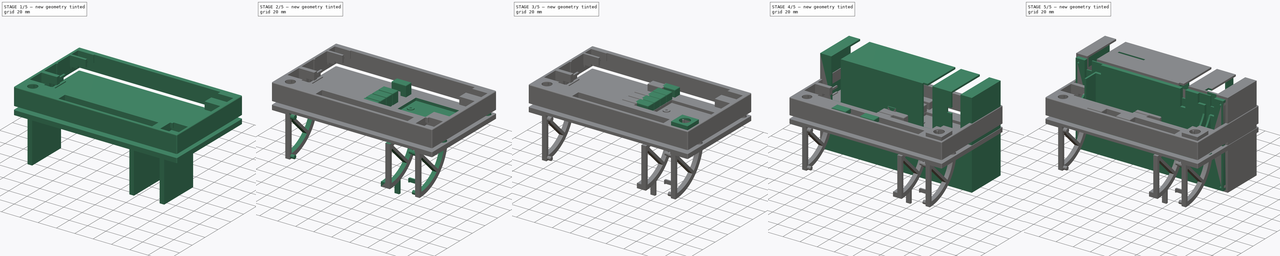
[diagram: build sequence overview — one tinted view per stage of 5, left to right]
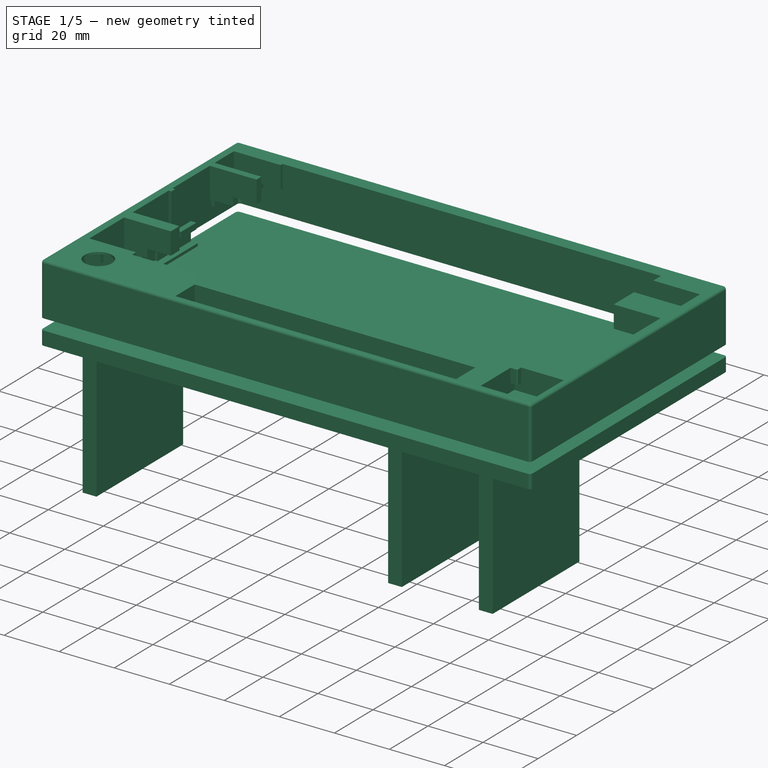
[diagram: stage 1 of 5 — iso view after this stage's code; geometry added in this stage tinted green]
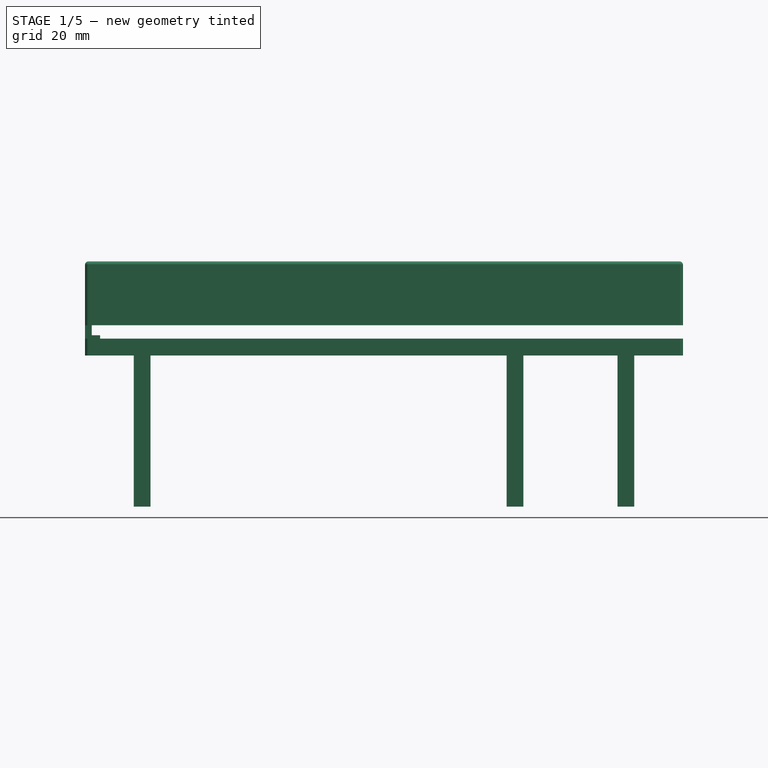
[diagram: stage 1 of 5 — front view after this stage's code; geometry added in this stage tinted green]
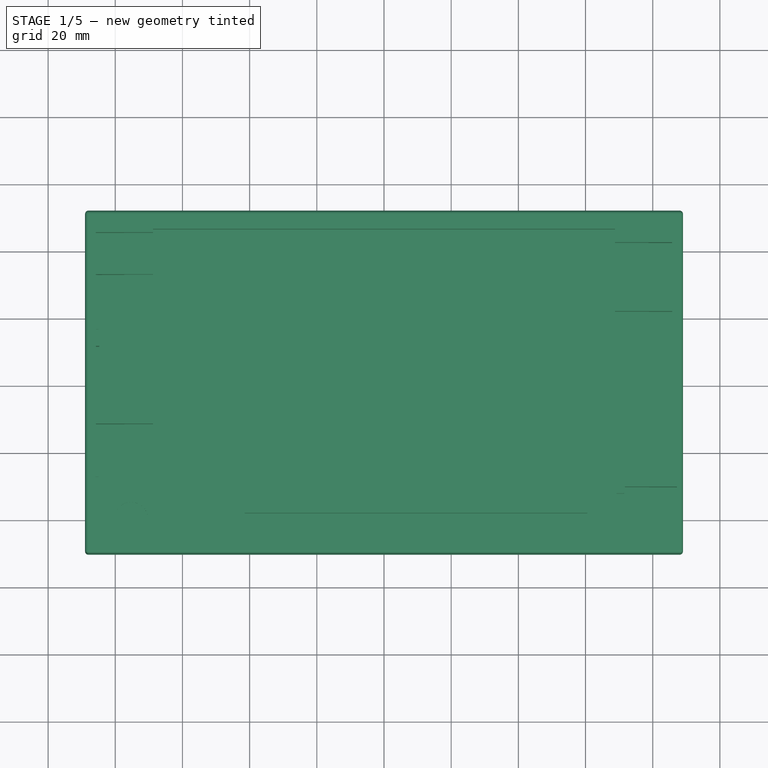
[diagram: stage 1 of 5 — top view after this stage's code; geometry added in this stage tinted green]
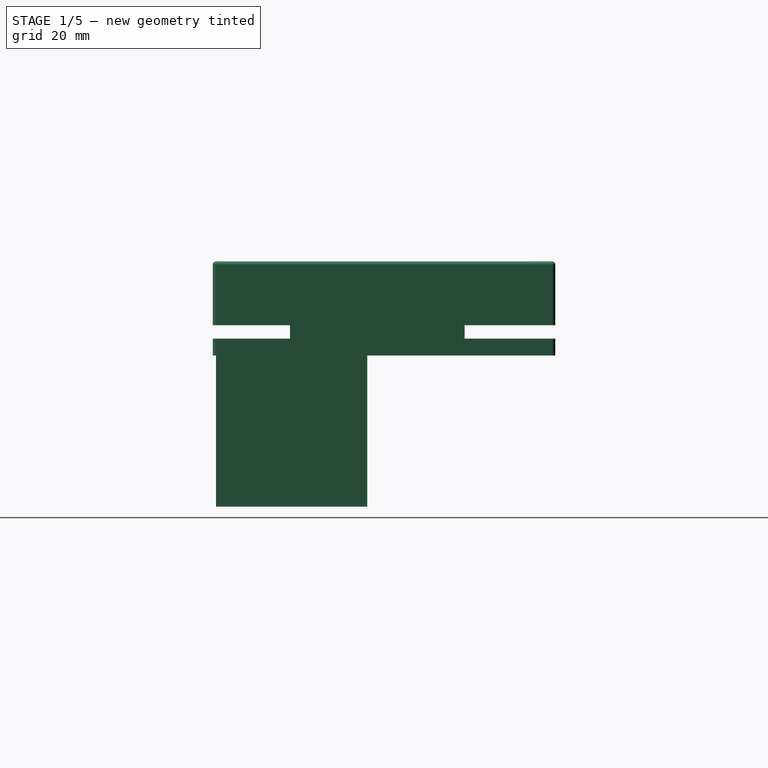
[diagram: stage 1 of 5 — right view after this stage's code; geometry added in this stage tinted green]
FCSTD DOCUMENT  (FreeCAD 1.0R39109 (Git))
Label: Double DIN Screen Motorized 6 Inch
License: All rights reserved
LicenseURL: https://en.wikipedia.org/wiki/All_rights_reserved
objects: Sketcher::SketchObject×127, PartDesign::Pad×68, PartDesign::Pocket×58, PartDesign::Body×20, PartDesign::Fillet×11, Part::Feature×5, PartDesign::FeatureBase×5, Part::Part2DObjectPython×3, TechDraw::DrawSVGTemplate×3, TechDraw::DrawProjGroupItem×3, TechDraw::DrawPage×3, PartDesign::Chamfer×1, App::Part×1
note: 706 computed .brp shape members not serialized (recipe doc carries the construction recipe); baked Part::Feature solids carry a one-line shape summary decoded from their .brp

FEATURE [Sketcher::SketchObject] Sketch002  label="Screen Panel Base Sketch"
  ArcFitTolerance = 0
  FullyConstrained = true
  MakeInternals = false
  MapMode = 5
  sketch-geometry (14):
    g0: LineSegment [constr] StartX=-89 StartY=51 StartZ=0 EndX=89 EndY=51 EndZ=0
    g1: LineSegment [constr] StartX=89 StartY=51 StartZ=0 EndX=89 EndY=-51 EndZ=0
    g2: LineSegment [constr] StartX=89 StartY=-51 StartZ=0 EndX=-89 EndY=-51 EndZ=0
    g3: LineSegment [constr] StartX=-89 StartY=-51 StartZ=0 EndX=-89 EndY=51 EndZ=0
    g4: LineSegment StartX=-89 StartY=50 StartZ=0 EndX=-89 EndY=-50 EndZ=0
    g5: LineSegment StartX=89 StartY=50 StartZ=0 EndX=89 EndY=-50 EndZ=0
    g6: LineSegment StartX=-88 StartY=51 StartZ=0 EndX=88 EndY=51 EndZ=0
    g7: LineSegment StartX=-88 StartY=-51 StartZ=0 EndX=88 EndY=-51 EndZ=0
    g8: ArcOfCircle CenterX=-88 CenterY=50 CenterZ=0 NormalX=0 NormalY=0 NormalZ=1 AngleXU=0 Radius=1 StartAngle=1.5708 EndAngle=3.14159
    g9: ArcOfCircle CenterX=88 CenterY=50 CenterZ=0 NormalX=0 NormalY=0 NormalZ=1 AngleXU=0 Radius=1 StartAngle=-2.7e-15 EndAngle=1.5708
    g10: ArcOfCircle CenterX=-88 CenterY=-50 CenterZ=0 NormalX=0 NormalY=0 NormalZ=1 AngleXU=0 Radius=1 StartAngle=3.14159 EndAngle=4.71239
    g11: ArcOfCircle CenterX=88 CenterY=-50 CenterZ=0 NormalX=0 NormalY=0 NormalZ=1 AngleXU=0 Radius=1 StartAngle=4.71239 EndAngle=6.28319
    g12: LineSegment [constr] StartX=88 StartY=-50 StartZ=0 EndX=89 EndY=-50 EndZ=0
    g13: LineSegment [constr] StartX=88 StartY=-50 StartZ=0 EndX=88 EndY=-51 EndZ=0
  constraints (38):
    c: Coincident(g0,g1)
    c: Coincident(g1,g2)
    c: Coincident(g2,g3)
    c: Coincident(g3,g0)
    c: Horizontal(g2)
    c: Vertical(g1)
    c: Symmetric(g0,g0,g-2)
    c: Symmetric(g0,g2,g-1)
    c: DistanceY(g3,g3) = 102
    c: DistanceX(g0,g0) = 178
    c: PointOnObject(g4,g3)
    c: PointOnObject(g5,g1)
    c: PointOnObject(g6,g0)
    c: PointOnObject(g7,g2)
    c: Symmetric(g7,g7,g-2)
    c: Equal(g7,g6)
    c: Symmetric(g6,g6,g-2)
    c: Symmetric(g4,g4,g-1)
    c: Symmetric(g5,g5,g-1)
    c: Equal(g4,g5)
    c: Coincident(g8,g4)
    c: Coincident(g8,g6)
    c: Angle(g8) = 1.5708
    c: Coincident(g9,g6)
    c: Coincident(g9,g5)
    c: Angle(g9) = 1.5708
    c: Coincident(g10,g4)
    c: Coincident(g10,g7)
    c: Equal(g10,g8)
    c: Coincident(g11,g7)
    c: Coincident(g11,g5)
    c: Equal(g11,g8)
    c: Coincident(g12,g11)
    c: Coincident(g12,g5)
    c: Horizontal(g12)
    c: Coincident(g13,g11)
    c: Coincident(g13,g7)
    c: Radius(g9) = 1
FEATURE [PartDesign::Pad] Pad001  label="Screen Panel Base"
  Direction = (0,0,1)
  Length = 23
  Length2 = 10
  Profile = -> Sketch002
  ReferenceAxis = -> Sketch002 [N_Axis]
  Suppressed = false
  Type = 0
FEATURE [PartDesign::Fillet] Fillet  label="Screen Panel Base Fillet"
  Base = -> Pad001 [Edge7]
  BaseFeature = -> Pad001
  Radius = 1
  SupportTransform = false
  Suppressed = false
  UseAllEdges = false
FEATURE [Sketcher::SketchObject] Sketch003  label="Screen Panel Shell Sketch"
  ArcFitTolerance = 0
  ExternalGeometry = -> [Fillet]
  FullyConstrained = true
  MakeInternals = false
  MapMode = 5
  Placement = pos=(0,0,0) rot=(1,0,0;3.14159rad)
  sketch-geometry (18):
    g0: LineSegment StartX=-87 StartY=-48 StartZ=0 EndX=-87 EndY=48 EndZ=0
    g1: LineSegment StartX=-86 StartY=49 StartZ=0 EndX=86 EndY=49 EndZ=0
    g2: LineSegment StartX=87 StartY=48 StartZ=0 EndX=87 EndY=-48 EndZ=0
    g3: LineSegment StartX=86 StartY=-49 StartZ=0 EndX=-86 EndY=-49 EndZ=0
    g4: ArcOfCircle CenterX=-86 CenterY=48 CenterZ=0 NormalX=0 NormalY=0 NormalZ=1 AngleXU=0 Radius=1 StartAngle=1.5708 EndAngle=3.14159
    g5: LineSegment [constr] StartX=-86 StartY=49 StartZ=0 EndX=-86 EndY=48 EndZ=0
    g6: LineSegment [constr] StartX=-86 StartY=48 StartZ=0 EndX=-87 EndY=48 EndZ=0
    g7: ArcOfCircle CenterX=86 CenterY=-48 CenterZ=0 NormalX=0 NormalY=0 NormalZ=1 AngleXU=0 Radius=1 StartAngle=4.71239 EndAngle=6.28319
    g8: LineSegment [constr] StartX=86 StartY=-49 StartZ=0 EndX=86 EndY=-48 EndZ=0
    g9: LineSegment [constr] StartX=86 StartY=-48 StartZ=0 EndX=87 EndY=-48 EndZ=0
    g10: ArcOfCircle CenterX=86 CenterY=48 CenterZ=0 NormalX=0 NormalY=0 NormalZ=1 AngleXU=0 Radius=1 StartAngle=-2.7e-15 EndAngle=1.5708
    g11: LineSegment [constr] StartX=86 StartY=49 StartZ=0 EndX=86 EndY=48 EndZ=0
    g12: LineSegment [constr] StartX=86 StartY=48 StartZ=0 EndX=87 EndY=48 EndZ=0
    g13: ArcOfCircle CenterX=-86 CenterY=-48 CenterZ=0 NormalX=0 NormalY=0 NormalZ=1 AngleXU=0 Radius=1 StartAngle=3.14159 EndAngle=4.71239
    g14: LineSegment [constr] StartX=-87 StartY=-48 StartZ=0 EndX=-86 EndY=-48 EndZ=0
    g15: LineSegment [constr] StartX=-86 StartY=-48 StartZ=0 EndX=-86 EndY=-49 EndZ=0
    g16: LineSegment [constr] StartX=-87 StartY=48 StartZ=0 EndX=-89 EndY=48 EndZ=0
    g17: LineSegment [constr] StartX=-86 StartY=49 StartZ=0 EndX=-86 EndY=51 EndZ=0
  constraints (45):
    c: Equal(g3,g1)
    c: Symmetric(g1,g1,g-2)
    c: Symmetric(g3,g3,g-2)
    c: Symmetric(g0,g0,g-1)
    c: Symmetric(g2,g2,g-1)
    c: Coincident(g4,g0)
    c: Coincident(g4,g1)
    c: Coincident(g5,g1)
    c: Coincident(g5,g4)
    c: Coincident(g6,g4)
    c: Coincident(g6,g0)
    c: Horizontal(g6)
    c: Vertical(g5)
    c: Symmetric(g2,g0,g-2)
    c: Coincident(g7,g3)
    c: Coincident(g7,g2)
    c: Equal(g7,g4)
    c: Coincident(g8,g3)
    c: Coincident(g8,g7)
    c: Coincident(g9,g7)
    c: Coincident(g9,g2)
    c: Horizontal(g9)
    c: Coincident(g10,g1)
    c: Coincident(g10,g2)
    c: Equal(g4,g10)
    c: Coincident(g11,g1)
    c: Coincident(g11,g10)
    c: Coincident(g12,g10)
    c: Coincident(g12,g2)
    c: Coincident(g13,g0)
    c: Coincident(g13,g3)
    c: Coincident(g14,g0)
    c: Coincident(g14,g13)
    c: Horizontal(g14)
    c: Coincident(g15,g13)
    c: Coincident(g15,g3)
    c: Coincident(g16,g0)
    c: PointOnObject(g16,g-3)
    c: Horizontal(g16)
    c: DistanceX(g16,g16) = 2
    c: Coincident(g17,g1)
    c: PointOnObject(g17,g-5)
    c: Vertical(g17)
    c: Equal(g17,g16)
    c: Equal(g4,g-4)
FEATURE [PartDesign::Pocket] Pocket001  label="Screen Panel Shell"
  BaseFeature = -> Fillet
  Direction = (0,1e-16,1)
  Length = 15
  Length2 = 5
  Profile = -> Sketch003
  ReferenceAxis = -> Sketch003 [N_Axis]
  Suppressed = false
  Type = 0
FEATURE [Sketcher::SketchObject] Sketch004  label="Screen Display Cut Sketch"
  ArcFitTolerance = 0
  AttachmentSupport = -> [Pocket001]
  ExternalGeometry = -> [Pocket001]
  FullyConstrained = true
  MakeInternals = false
  MapMode = 5
  Placement = pos=(0,0,23) rot=(0,0,1;0rad)
  sketch-geometry (10):
    g0: LineSegment [constr] StartX=-76.4 StartY=48.5 StartZ=0 EndX=78.8 EndY=48.5 EndZ=0
    g1: LineSegment [constr] StartX=78.8 StartY=48.5 StartZ=0 EndX=78.8 EndY=-39.7 EndZ=0
    g2: LineSegment [constr] StartX=78.8 StartY=-39.7 StartZ=0 EndX=-76.4 EndY=-39.7 EndZ=0
    g3: LineSegment [constr] StartX=-76.4 StartY=-39.7 StartZ=0 EndX=-76.4 EndY=48.5 EndZ=0
    g4: LineSegment [constr] StartX=-76.4 StartY=-39.7 StartZ=0 EndX=-76.4 EndY=-51 EndZ=0
    g5: LineSegment StartX=-68.76 StartY=45.556 StartZ=0 EndX=68.76 EndY=45.556 EndZ=0
    g6: LineSegment StartX=68.76 StartY=45.556 StartZ=0 EndX=68.76 EndY=-31.676 EndZ=0
    g7: LineSegment StartX=68.76 StartY=-31.676 StartZ=0 EndX=-68.76 EndY=-31.676 EndZ=0
    g8: LineSegment StartX=-68.76 StartY=-31.676 StartZ=0 EndX=-68.76 EndY=45.556 EndZ=0
    g9: LineSegment [constr] StartX=-68.76 StartY=45.556 StartZ=0 EndX=-76.4 EndY=45.556 EndZ=0
  constraints (29):
    c: Coincident(g0,g1)
    c: Coincident(g1,g2)
    c: Coincident(g2,g3)
    c: Coincident(g3,g0)
    c: Horizontal(g0)
    c: Vertical(g1)
    c: Vertical(g3)
    c: DistanceY(g3,g3) = 88.2
    c: DistanceX(g0,g0) = 155.2
    c: Coincident(g4,g2)
    c: PointOnObject(g4,g-3)
    c: Vertical(g4)
    c: DistanceY(g4,g4) = 11.3
    c: Coincident(g5,g6)
    c: Coincident(g6,g7)
    c: Coincident(g7,g8)
    c: Coincident(g8,g5)
    c: Horizontal(g5)
    c: Vertical(g6)
    c: Vertical(g8)
    c: DistanceX(g5,g5) = 137.52
    c: DistanceY(g8,g8) = 77.232
    c: Coincident(g9,g5)
    c: PointOnObject(g9,g3)
    c: Horizontal(g9)
    c: DistanceX(g9,g9) = 7.64
    c: DistanceY(g5,g0) = 2.944
    c: Symmetric(g7,g6,g-2)
    c: Horizontal(g2)
FEATURE [PartDesign::Pocket] Pocket002  label="Screen Display Cut"
  BaseFeature = -> Pocket001
  Direction = (0,0,-1)
  Length = 10
  Length2 = 5
  Profile = -> Sketch004
  ReferenceAxis = -> Sketch004 [N_Axis]
  Suppressed = false
  Type = 0
FEATURE [Sketcher::SketchObject] Sketch018  label="TFT Sketch"
  ArcFitTolerance = 1e-06
  AttachmentSupport = -> [Pad009]
  ExternalGeometry = -> [Pad009]
  FullyConstrained = true
  MakeInternals = false
  MapMode = 5
  Placement = pos=(0,0,5) rot=(0,0,1;0rad)
  sketch-geometry (4):
    g0: LineSegment StartX=-68.75 StartY=42.24 StartZ=0 EndX=-68.75 EndY=-35.96 EndZ=0
    g1: LineSegment StartX=-68.75 StartY=-35.96 StartZ=0 EndX=70.75 EndY=-35.96 EndZ=0
    g2: LineSegment StartX=70.75 StartY=-35.96 StartZ=0 EndX=70.75 EndY=42.24 EndZ=0
    g3: LineSegment StartX=70.75 StartY=42.24 StartZ=0 EndX=-68.75 EndY=42.24 EndZ=0
  constraints (12):
    c: Coincident(g0,g1)
    c: Coincident(g1,g2)
    c: Coincident(g2,g3)
    c: Coincident(g3,g0)
    c: Vertical(g0)
    c: Vertical(g2)
    c: Horizontal(g1)
    c: Horizontal(g3)
    c: DistanceX(g3,g3) = 139.5
    c: DistanceY(g0,g0) = 78.2
    c: DistanceY(g2,g-6) = 1.86
    c: DistanceX(g-4,g0) = 8.85
FEATURE [PartDesign::Body] Body004  label="Screen Model"
  AllowCompound = false
  Group = -> [Sketch017,Pad009,Sketch018]
  Origin = -> Origin004
  Placement = pos=(0.5,3.2,6) rot=(0,0,1;0rad)
  Tip = -> Pad009
FEATURE [Sketcher::SketchObject] Sketch019  label="Screen Cradle Sketch"
  ArcFitTolerance = 1e-06
  AttachmentSupport = -> [Pocket002]
  ExternalGeometry = -> [Pocket002]
  FullyConstrained = true
  MakeInternals = false
  MapMode = 5
  Placement = pos=(0,0,15) rot=(1,0,0;3.14159rad)
  sketch-geometry (12):
    g0: LineSegment StartX=-87 StartY=48 StartZ=0 EndX=-87 EndY=-48 EndZ=0
    g1: LineSegment StartX=-86 StartY=-49 StartZ=0 EndX=86 EndY=-49 EndZ=0
    g2: LineSegment StartX=87 StartY=-48 StartZ=0 EndX=87 EndY=48 EndZ=0
    g3: LineSegment StartX=86 StartY=49 StartZ=0 EndX=-86 EndY=49 EndZ=0
    g4: ArcOfCircle CenterX=-86 CenterY=48 CenterZ=0 NormalX=0 NormalY=0 NormalZ=1 AngleXU=0 Radius=1.00001 StartAngle=1.5708 EndAngle=3.14159
    g5: ArcOfCircle CenterX=86 CenterY=48 CenterZ=0 NormalX=0 NormalY=0 NormalZ=1 AngleXU=0 Radius=0.999999 StartAngle=6.28318 EndAngle=7.85398
    g6: ArcOfCircle CenterX=86 CenterY=-48 CenterZ=0 NormalX=0 NormalY=0 NormalZ=1 AngleXU=0 Radius=0.999997 StartAngle=4.71239 EndAngle=6.28319
    g7: ArcOfCircle CenterX=-86 CenterY=-48 CenterZ=0 NormalX=0 NormalY=0 NormalZ=1 AngleXU=0 Radius=1.00001 StartAngle=3.1416 EndAngle=4.71238
    g8: LineSegment StartX=-77.3 StartY=40.3 StartZ=0 EndX=-77.3 EndY=-48.7 EndZ=0
    g9: LineSegment StartX=-77.3 StartY=-48.7 StartZ=0 EndX=78.8 EndY=-48.7 EndZ=0
    g10: LineSegment StartX=78.8 StartY=-48.7 StartZ=0 EndX=78.8 EndY=40.3 EndZ=0
    g11: LineSegment StartX=78.8 StartY=40.3 StartZ=0 EndX=-77.3 EndY=40.3 EndZ=0
  constraints (32):
    c: Coincident(g0,g-5)
    c: Coincident(g0,g-10)
    c: Coincident(g1,g-10)
    c: Coincident(g1,g-9)
    c: Coincident(g2,g-8)
    c: Coincident(g2,g-7)
    c: Coincident(g3,g-6)
    c: Coincident(g3,g-5)
    c: Coincident(g4,g3)
    c: Coincident(g4,g0)
    c: Tangent(g4,g-5)
    c: Coincident(g5,g3)
    c: Coincident(g5,g2)
    c: Tangent(g5,g-6)
    c: Coincident(g6,g2)
    c: Coincident(g6,g1)
    c: Tangent(g6,g-8)
    c: Coincident(g7,g0)
    c: Coincident(g7,g1)
    c: Tangent(g7,g-10)
    c: Coincident(g8,g9)
    c: Coincident(g9,g10)
    c: Coincident(g10,g11)
    c: Coincident(g11,g8)
    c: Vertical(g8)
    c: Vertical(g10)
    c: Horizontal(g9)
    c: Horizontal(g11)
    c: DistanceX(g9,g2) = 8.2
    c: DistanceY(g1,g9) = 0.3
    c: DistanceY(g10,g3) = 8.7
    c: DistanceX(g0,g8) = 9.7
FEATURE [PartDesign::Pad] Pad010  label="Screen Cradle"
  BaseFeature = -> Pocket002
  Direction = (0,0,-1)
  Length = 3
  Length2 = 10
  Offset = 2
  Profile = -> Sketch019
  ReferenceAxis = -> Sketch019 [N_Axis]
  Refine = true
  Suppressed = false
  Type = 0
FEATURE [Sketcher::SketchObject] Sketch020  label="Screen Button Cut Sketch"
  ArcFitTolerance = 1e-06
  AttachmentSupport = -> [Pad010]
  ExternalGeometry = -> [Pad010]
  FullyConstrained = true
  MakeInternals = false
  MapMode = 5
  Placement = pos=(0,0,23) rot=(0,0,1;0rad)
  sketch-geometry (40):
    g0: LineSegment StartX=-68.76 StartY=44.556 StartZ=0 EndX=-85.76 EndY=44.556 EndZ=0
    g1: LineSegment StartX=-85.76 StartY=44.556 StartZ=0 EndX=-85.76 EndY=34.556 EndZ=0
    g2: LineSegment StartX=-85.76 StartY=34.556 StartZ=0 EndX=-68.76 EndY=34.556 EndZ=0
    g3: LineSegment StartX=-68.76 StartY=34.556 StartZ=0 EndX=-68.76 EndY=44.556 EndZ=0
    g4: LineSegment StartX=-85.76 StartY=32.056 StartZ=0 EndX=-85.76 EndY=-7.944 EndZ=0
    g5: LineSegment StartX=-85.76 StartY=-7.944 StartZ=0 EndX=-68.76 EndY=-7.944 EndZ=0
    g6: LineSegment StartX=-68.76 StartY=-7.944 StartZ=0 EndX=-68.76 EndY=32.056 EndZ=0
    g7: LineSegment StartX=-68.76 StartY=32.056 StartZ=0 EndX=-85.76 EndY=32.056 EndZ=0
    g8: LineSegment StartX=68.76 StartY=41.556 StartZ=0 EndX=68.76 EndY=31.556 EndZ=0
    g9: LineSegment StartX=68.76 StartY=31.556 StartZ=0 EndX=85.76 EndY=31.556 EndZ=0
    g10: LineSegment StartX=85.76 StartY=31.556 StartZ=0 EndX=85.76 EndY=41.556 EndZ=0
    g11: LineSegment StartX=85.76 StartY=41.556 StartZ=0 EndX=68.76 EndY=41.556 EndZ=0
    g12: LineSegment StartX=68.76 StartY=21.056 StartZ=0 EndX=68.76 EndY=-18.944 EndZ=0
    g13: LineSegment StartX=68.76 StartY=-18.944 StartZ=0 EndX=85.76 EndY=-18.944 EndZ=0
    g14: LineSegment StartX=85.76 StartY=-18.944 StartZ=0 EndX=85.76 EndY=21.056 EndZ=0
    g15: LineSegment StartX=85.76 StartY=21.056 StartZ=0 EndX=68.76 EndY=21.056 EndZ=0
    g16: LineSegment StartX=-41.5 StartY=-49 StartZ=0 EndX=60.5 EndY=-49 EndZ=0
    g17: LineSegment StartX=60.5 StartY=-49 StartZ=0 EndX=60.5 EndY=-39 EndZ=0
    g18: LineSegment StartX=60.5 StartY=-39 StartZ=0 EndX=-41.5 EndY=-39 EndZ=0
    g19: LineSegment StartX=-41.5 StartY=-39 StartZ=0 EndX=-41.5 EndY=-49 EndZ=0
    g20: LineSegment StartX=-85.76 StartY=-12.44 StartZ=0 EndX=-85.76 EndY=-30.44 EndZ=0
    g21: LineSegment StartX=-85.76 StartY=-30.44 StartZ=0 EndX=-68.76 EndY=-30.44 EndZ=0
    g22: LineSegment StartX=-68.76 StartY=-30.44 StartZ=0 EndX=-68.76 EndY=-12.44 EndZ=0
    g23: LineSegment StartX=-68.76 StartY=-12.44 StartZ=0 EndX=-85.76 EndY=-12.44 EndZ=0
    g24: LineSegment StartX=-85.5 StartY=-32.8 StartZ=0 EndX=-85.5 EndY=-48.8 EndZ=0
    g25: LineSegment StartX=-85.5 StartY=-48.8 StartZ=0 EndX=-65 EndY=-48.8 EndZ=0
    g26: LineSegment StartX=-65 StartY=-48.8 StartZ=0 EndX=-65 EndY=-32.8 EndZ=0
    g27: LineSegment StartX=-65 StartY=-32.8 StartZ=0 EndX=-85.5 EndY=-32.8 EndZ=0
    g28: LineSegment [constr] StartX=-85.5 StartY=-48.8 StartZ=0 EndX=-88 EndY=-48.8 EndZ=0
    g29: LineSegment [constr] StartX=-88 StartY=-48.8 StartZ=0 EndX=-88 EndY=-50 EndZ=0
    g30: LineSegment [constr] StartX=-88 StartY=-50 StartZ=0 EndX=-85.5 EndY=-50 EndZ=0
    g31: LineSegment [constr] StartX=-85.5 StartY=-50 StartZ=0 EndX=-85.5 EndY=-48.8 EndZ=0
    g32: LineSegment StartX=69.2 StartY=-31.2 StartZ=0 EndX=69.2 EndY=-48.7 EndZ=0
    g33: LineSegment StartX=69.2 StartY=-48.7 StartZ=0 EndX=87.2 EndY=-48.7 EndZ=0
    g34: LineSegment StartX=87.2 StartY=-48.7 StartZ=0 EndX=87.2 EndY=-31.2 EndZ=0
    g35: LineSegment StartX=87.2 StartY=-31.2 StartZ=0 EndX=69.2 EndY=-31.2 EndZ=0
    g36: LineSegment [constr] StartX=87.2 StartY=-48.7 StartZ=0 EndX=87.2 EndY=-50 EndZ=0
    g37: LineSegment [constr] StartX=87.2 StartY=-50 StartZ=0 EndX=88 EndY=-50 EndZ=0
    g38: LineSegment [constr] StartX=88 StartY=-50 StartZ=0 EndX=88 EndY=-48.7 EndZ=0
    g39: LineSegment [constr] StartX=88 StartY=-48.7 StartZ=0 EndX=87.2 EndY=-48.7 EndZ=0
  constraints (115):
    c: Coincident(g0,g1)
    c: Coincident(g1,g2)
    c: Coincident(g2,g3)
    c: Coincident(g3,g0)
    c: Horizontal(g0)
    c: Horizontal(g2)
    c: Vertical(g1)
    c: Vertical(g3)
    c: PointOnObject(g0,g-5)
    c: DistanceY(g1,g1) = 10
    c: DistanceX(g0,g0) = 17
    c: Coincident(g4,g5)
    c: Coincident(g5,g6)
    c: Coincident(g6,g7)
    c: Coincident(g7,g4)
    c: Vertical(g4)
    c: Vertical(g6)
    c: Horizontal(g5)
    c: Horizontal(g7)
    c: PointOnObject(g5,g-5)
    c: Equal(g7,g0)
    c: DistanceY(g4,g4) = 40
    c: DistanceY(g4,g1) = 2.5
    c: DistanceY(g0,g-6) = 1
    c: Coincident(g8,g9)
    c: Coincident(g9,g10)
    c: Coincident(g10,g11)
    c: Coincident(g11,g8)
    c: Vertical(g8)
    c: Vertical(g10)
    c: Horizontal(g9)
    c: Horizontal(g11)
    c: PointOnObject(g8,g-7)
    c: Equal(g11,g0)
    c: Equal(g10,g1)
    c: Coincident(g12,g13)
    c: Coincident(g13,g14)
    c: Coincident(g14,g15)
    c: Coincident(g15,g12)
    c: Vertical(g12)
    c: Vertical(g14)
    c: Horizontal(g13)
    c: Horizontal(g15)
    c: PointOnObject(g12,g-7)
    c: Equal(g15,g11)
    c: DistanceY(g14,g9) = 10.5
    c: DistanceY(g14,g14) = 40
    c: Coincident(g16,g17)
    c: Coincident(g17,g18)
    c: Coincident(g18,g19)
    c: Coincident(g19,g16)
    c: Horizontal(g16)
    c: Vertical(g17)
    c: Vertical(g19)
    c: Equal(g17,g1)
    c: DistanceX(g18,g18) = 102
    c: PointOnObject(g16,g-11)
    c: Coincident(g20,g21)
    c: Coincident(g21,g22)
    c: Coincident(g22,g23)
    c: Coincident(g23,g20)
    c: Vertical(g20)
    c: Horizontal(g21)
    c: Horizontal(g23)
    c: DistanceY(g20,g20) = 18
    c: Equal(g23,g0)
    c: Coincident(g24,g25)
    c: Coincident(g25,g26)
    c: Coincident(g26,g27)
    c: Coincident(g27,g24)
    c: Vertical(g24)
    c: Vertical(g26)
    c: Horizontal(g25)
    c: Horizontal(g27)
    c: DistanceX(g27,g27) = 20.5
    c: DistanceY(g24,g24) = 16
    c: Coincident(g28,g29)
    c: Coincident(g29,g30)
    c: Coincident(g30,g31)
    c: Coincident(g31,g28)
    c: Horizontal(g28)
    c: Horizontal(g30)
    c: Vertical(g29)
    c: Vertical(g31)
    c: Coincident(g28,g24)
    c: Coincident(g29,g-10)
    c: DistanceX(g28,g28) = 2.5
    c: DistanceY(g31,g31) = 1.2
    c: Coincident(g32,g33)
    c: Coincident(g33,g34)
    c: Coincident(g34,g35)
    c: Coincident(g35,g32)
    c: Vertical(g32)
    c: Vertical(g34)
    c: Horizontal(g33)
    c: Horizontal(g35)
    c: DistanceX(g35,g35) = 18
    c: DistanceY(g32,g32) = 17.5
    c: Coincident(g36,g37)
    c: Coincident(g37,g38)
    c: Coincident(g38,g39)
    c: Coincident(g39,g36)
    c: Vertical(g36)
    c: Vertical(g38)
    c: Horizontal(g37)
    c: Horizontal(g39)
    c: Coincident(g36,g33)
    c: Coincident(g37,g-10)
    c: DistanceX(g39,g39) = 0.8
    c: DistanceY(g36,g36) = 1.3
    c: Tangent(g22,g-5) = -1.5708
    c: Horizontal(g18)
    c: DistanceY(g8,g-7) = 4
    c: DistanceX(g17,g32) = 8.7
    c: DistanceY(g24,g20) = 2.36
FEATURE [PartDesign::Pocket] Pocket008  label="Screen Button Cut"
  BaseFeature = -> Pad010
  Direction = (0,0,-1)
  Length = 13
  Length2 = 5
  Profile = -> Sketch020
  ReferenceAxis = -> Sketch020 [N_Axis]
  Refine = true
  Suppressed = false
  Type = 0
FEATURE [PartDesign::Body] Body  label="Knob PCB"
  AllowCompound = false
  Group = -> [Sketch,Pad]
  Origin = -> Origin
  Placement = pos=(0,-45,13.5) rot=(0,0,1;0rad)
  Tip = -> Pad
FEATURE [Sketcher::SketchObject] Sketch021  label="PCB Dip Sketch"
  ArcFitTolerance = 1e-06
  AttachmentSupport = -> [Pocket008]
  ExternalGeometry = -> [Pocket008]
  FullyConstrained = true
  MakeInternals = false
  MapMode = 5
  Placement = pos=(0,0,12) rot=(1,0,0;3.14159rad)
  sketch-geometry (10):
    g0: LineSegment StartX=-65 StartY=48.8 StartZ=0 EndX=-65 EndY=42 EndZ=0
    g1: LineSegment StartX=-65 StartY=42 StartZ=0 EndX=-41.5 EndY=42 EndZ=0
    g2: LineSegment StartX=-41.5 StartY=42 StartZ=0 EndX=-41.5 EndY=48.8 EndZ=0
    g3: LineSegment StartX=-41.5 StartY=48.8 StartZ=0 EndX=-65 EndY=48.8 EndZ=0
    g4: LineSegment [constr] StartX=-41.5 StartY=48.8 StartZ=0 EndX=60.5 EndY=48.8 EndZ=0
    g5: LineSegment [constr] StartX=-41.5 StartY=42 StartZ=0 EndX=60.5 EndY=42 EndZ=0
    g6: LineSegment StartX=60.5 StartY=48.8 StartZ=0 EndX=60.5 EndY=42 EndZ=0
    g7: LineSegment StartX=60.5 StartY=42 StartZ=0 EndX=69.5 EndY=42 EndZ=0
    g8: LineSegment StartX=69.5 StartY=42 StartZ=0 EndX=69.5 EndY=48.8 EndZ=0
    g9: LineSegment StartX=69.5 StartY=48.8 StartZ=0 EndX=60.5 EndY=48.8 EndZ=0
  constraints (27):
    c: Coincident(g0,g1)
    c: Coincident(g1,g2)
    c: Coincident(g2,g3)
    c: Coincident(g3,g0)
    c: Vertical(g0)
    c: Vertical(g2)
    c: Horizontal(g1)
    c: Horizontal(g3)
    c: Coincident(g0,g-3)
    c: PointOnObject(g1,g-4)
    c: DistanceY(g2,g2) = 6.8
    c: Coincident(g4,g2)
    c: PointOnObject(g4,g-6)
    c: Horizontal(g4)
    c: Coincident(g5,g1)
    c: PointOnObject(g5,g-6)
    c: Horizontal(g5)
    c: Coincident(g6,g7)
    c: Coincident(g7,g8)
    c: Coincident(g8,g9)
    c: Coincident(g9,g6)
    c: Vertical(g8)
    c: Horizontal(g7)
    c: Horizontal(g9)
    c: Coincident(g6,g4)
    c: PointOnObject(g7,g-7)
    c: Coincident(g6,g5)
FEATURE [PartDesign::Pocket] Pocket  label="PCB Dip"
  BaseFeature = -> Pocket008
  Direction = (0,0,1)
  Length = 6
  Length2 = 5
  Profile = -> Sketch021
  ReferenceAxis = -> Sketch021 [N_Axis]
  Refine = true
  Suppressed = false
  Type = 0
FEATURE [Sketcher::SketchObject] Sketch022  label="PCB and Button Peg Sketch"
  ArcFitTolerance = 1e-06
  AttachmentSupport = -> [Pocket]
  ExternalGeometry = -> [Pocket]
  FullyConstrained = true
  MakeInternals = false
  MapMode = 5
  Placement = pos=(0,0,12) rot=(1,0,0;3.14159rad)
  sketch-geometry (13):
    g0: Circle CenterX=82.9 CenterY=-45.128 CenterZ=0 NormalX=0 NormalY=0 NormalZ=1 AngleXU=0 Radius=2.75
    g1: LineSegment [constr] StartX=78.8 StartY=-45.128 StartZ=0 EndX=87 EndY=-45.128 EndZ=0
    g2: LineSegment [constr] StartX=82.9 StartY=-41.556 StartZ=0 EndX=82.9 EndY=-49 EndZ=0
    g3: Circle CenterX=82.9 CenterY=25.072 CenterZ=0 NormalX=0 NormalY=0 NormalZ=1 AngleXU=0 Radius=2.75
    g4: LineSegment [constr] StartX=82.9 StartY=25.072 StartZ=0 EndX=82.9 EndY=-41.556 EndZ=0
    g5: LineSegment [constr] StartX=82.9 StartY=25.072 StartZ=0 EndX=78.8 EndY=25.072 EndZ=0
    g6: LineSegment StartX=81.4 StartY=-27.306 StartZ=0 EndX=84.4 EndY=-27.306 EndZ=0
    g7: LineSegment StartX=84.4 StartY=-25.306 StartZ=0 EndX=81.4 EndY=-25.306 EndZ=0
    g8: ArcOfCircle CenterX=81.4 CenterY=-26.306 CenterZ=0 NormalX=0 NormalY=0 NormalZ=1 AngleXU=0 Radius=1 StartAngle=1.5708 EndAngle=4.71239
    g9: ArcOfCircle CenterX=84.4 CenterY=-26.306 CenterZ=0 NormalX=0 NormalY=0 NormalZ=1 AngleXU=0 Radius=1 StartAngle=4.71239 EndAngle=7.85398
    g10: LineSegment [constr] StartX=81.4 StartY=-25.306 StartZ=0 EndX=81.4 EndY=-27.306 EndZ=0
    g11: LineSegment [constr] StartX=84.4 StartY=-25.306 StartZ=0 EndX=84.4 EndY=-27.306 EndZ=0
    g12: LineSegment [constr] StartX=78.8 StartY=-26.306 StartZ=0 EndX=87 EndY=-26.306 EndZ=0
  constraints (35):
    c: Diameter(g0) = 5.5
    c: Symmetric(g-7,g-7,g1)
    c: PointOnObject(g1,g-10)
    c: Horizontal(g1)
    c: PointOnObject(g0,g1)
    c: PointOnObject(g2,g-6)
    c: PointOnObject(g2,g-8)
    c: Symmetric(g1,g1,g2)
    c: PointOnObject(g0,g2)
    c: Equal(g3,g0)
    c: Coincident(g4,g3)
    c: Coincident(g4,g2)
    c: Vertical(g4)
    c: Coincident(g5,g3)
    c: PointOnObject(g5,g-12)
    c: Symmetric(g-12,g-13,g5)
    c: Horizontal(g6)
    c: Coincident(g8,g7)
    c: Coincident(g8,g6)
    c: Coincident(g9,g7)
    c: Coincident(g9,g6)
    c: Angle(g8) = 3.14159
    c: Angle(g9) = 3.14159
    c: Coincident(g10,g7)
    c: Coincident(g10,g6)
    c: Vertical(g10)
    c: Coincident(g11,g7)
    c: Coincident(g11,g6)
    c: Vertical(g11)
    c: Symmetric(g7,g7,g4)
    c: Symmetric(g-4,g-4,g12)
    c: PointOnObject(g12,g-10)
    c: Symmetric(g7,g6,g12)
    c: DistanceY(g10,g10) = 2
    c: DistanceX(g7,g7) = 3
FEATURE [PartDesign::Pad] Pad011  label="PCB and Button Peg"
  BaseFeature = -> Pocket
  Direction = (0,0,-1)
  Length = 2
  Length2 = 10
  Profile = -> Sketch022
  ReferenceAxis = -> Sketch022 [N_Axis]
  Suppressed = false
  Type = 0
FEATURE [Sketcher::SketchObject] Sketch028  label="Long Peg Sketch"
  ArcFitTolerance = 1e-06
  AttachmentSupport = -> [Pad011]
  ExternalGeometry = -> [Pad011]
  FullyConstrained = true
  MakeInternals = false
  MapMode = 5
  Placement = pos=(0,0,12) rot=(1,0,0;3.14159rad)
  sketch-geometry (19):
    g0: LineSegment [constr] StartX=-84.5 StartY=-45.7 StartZ=0 EndX=-84.5 EndY=-47.5 EndZ=0
    g1: LineSegment StartX=-84.5 StartY=-47.5 StartZ=0 EndX=-81.2 EndY=-47.5 EndZ=0
    g2: LineSegment [constr] StartX=-81.2 StartY=-47.5 StartZ=0 EndX=-81.2 EndY=-45.7 EndZ=0
    g3: LineSegment StartX=-81.2 StartY=-45.7 StartZ=0 EndX=-84.5 EndY=-45.7 EndZ=0
    g4: ArcOfCircle CenterX=-84.5 CenterY=-46.6 CenterZ=0 NormalX=0 NormalY=0 NormalZ=1 AngleXU=0 Radius=0.9 StartAngle=1.5708 EndAngle=4.71239
    g5: ArcOfCircle CenterX=-81.2 CenterY=-46.6 CenterZ=0 NormalX=0 NormalY=0 NormalZ=1 AngleXU=0 Radius=0.9 StartAngle=4.71239 EndAngle=7.85398
    g6: LineSegment [constr] StartX=-84.5 StartY=-47.5 StartZ=0 EndX=-86 EndY=-47.5 EndZ=0
    g7: LineSegment [constr] StartX=-86 StartY=-47.5 StartZ=0 EndX=-86 EndY=-48 EndZ=0
    g8: LineSegment [constr] StartX=-86 StartY=-48 StartZ=0 EndX=-84.5 EndY=-48 EndZ=0
    g9: LineSegment [constr] StartX=-84.5 StartY=-48 StartZ=0 EndX=-84.5 EndY=-47.5 EndZ=0
    g10: LineSegment [constr] StartX=-84.5 StartY=10.692 StartZ=0 EndX=-84.5 EndY=9.692 EndZ=0
    g11: LineSegment StartX=-84.5 StartY=9.692 StartZ=0 EndX=-81.2 EndY=9.692 EndZ=0
    g12: LineSegment [constr] StartX=-81.2 StartY=9.692 StartZ=0 EndX=-81.2 EndY=10.692 EndZ=0
    g13: LineSegment StartX=-81.2 StartY=10.692 StartZ=0 EndX=-84.5 EndY=10.692 EndZ=0
    g14: LineSegment [constr] StartX=-84.5 StartY=9.692 StartZ=0 EndX=-84.5 EndY=-45.7 EndZ=0
    g15: LineSegment [constr] StartX=-77.3 StartY=10.192 StartZ=0 EndX=-81.2 EndY=10.192 EndZ=0
    g16: LineSegment [constr] StartX=-81.2 StartY=9.692 StartZ=0 EndX=-81.2 EndY=-45.7 EndZ=0
    g17: ArcOfCircle CenterX=-84.5 CenterY=10.192 CenterZ=0 NormalX=0 NormalY=0 NormalZ=1 AngleXU=0 Radius=0.5 StartAngle=1.5708 EndAngle=4.71239
    g18: ArcOfCircle CenterX=-81.2 CenterY=10.192 CenterZ=0 NormalX=0 NormalY=0 NormalZ=1 AngleXU=0 Radius=0.5 StartAngle=4.71239 EndAngle=7.85398
  constraints (52):
    c: Coincident(g0,g1)
    c: Coincident(g1,g2)
    c: Coincident(g2,g3)
    c: Coincident(g3,g0)
    c: Vertical(g0)
    c: Vertical(g2)
    c: Horizontal(g1)
    c: Horizontal(g3)
    c: DistanceY(g0,g0) = 1.8
    c: DistanceX(g3,g3) = 3.3
    c: Coincident(g4,g0)
    c: Coincident(g4,g0)
    c: PointOnObject(g4,g0)
    c: Coincident(g5,g2)
    c: Coincident(g5,g1)
    c: PointOnObject(g5,g2)
    c: Coincident(g6,g7)
    c: Coincident(g7,g8)
    c: Coincident(g8,g9)
    c: Coincident(g9,g6)
    c: Horizontal(g6)
    c: Horizontal(g8)
    c: Vertical(g7)
    c: Vertical(g9)
    c: Coincident(g6,g0)
    c: Coincident(g7,g-15)
    c: DistanceX(g8,g8) = 1.5
    c: DistanceY(g7,g7) = 0.5
    c: Coincident(g10,g11)
    c: Coincident(g11,g12)
    c: Coincident(g12,g13)
    c: Coincident(g13,g10)
    c: Vertical(g10)
    c: Vertical(g12)
    c: Horizontal(g11)
    c: Horizontal(g13)
    c: DistanceY(g10,g10) = 1
    c: Coincident(g14,g10)
    c: Coincident(g14,g0)
    c: Vertical(g14)
    c: Symmetric(g-9,g-9,g15)
    c: PointOnObject(g15,g12)
    c: Symmetric(g11,g12,g15)
    c: Coincident(g16,g11)
    c: Coincident(g16,g2)
    c: Vertical(g16)
    c: Coincident(g17,g10)
    c: Coincident(g17,g10)
    c: PointOnObject(g17,g10)
    c: Coincident(g18,g12)
    c: Coincident(g18,g11)
    c: PointOnObject(g18,g12)
FEATURE [PartDesign::Pad] Pad015  label="Long Peg"
  BaseFeature = -> Pad011
  Direction = (0,0,-1)
  Length = 4
  Length2 = 10
  Profile = -> Sketch028
  ReferenceAxis = -> Sketch028 [N_Axis]
  Suppressed = false
  Type = 0
FEATURE [Sketcher::SketchObject] Sketch044  label="Volume Knob Solid Sketch"
  ArcFitTolerance = 1e-06
  AttachmentSupport = -> [Pocket008]
  ExternalGeometry = -> [Pocket008]
  FullyConstrained = true
  MakeInternals = false
  MapMode = 5
  Placement = pos=(0,0,23) rot=(0,0,1;0rad)
  sketch-geometry (7):
    g0: LineSegment StartX=-85.5 StartY=-32.8 StartZ=0 EndX=-85.5 EndY=-48.8 EndZ=0
    g1: LineSegment StartX=-85.5 StartY=-48.8 StartZ=0 EndX=-65 EndY=-48.8 EndZ=0
    g2: LineSegment StartX=-65 StartY=-48.8 StartZ=0 EndX=-65 EndY=-32.8 EndZ=0
    g3: LineSegment StartX=-65 StartY=-32.8 StartZ=0 EndX=-85.5 EndY=-32.8 EndZ=0
    g4: Circle CenterX=-75.25 CenterY=-40.8 CenterZ=0 NormalX=0 NormalY=0 NormalZ=1 AngleXU=0 Radius=5
    g5: LineSegment [constr] StartX=-85.5 StartY=-40.8 StartZ=0 EndX=-65 EndY=-40.8 EndZ=0
    g6: LineSegment [constr] StartX=-75.25 StartY=-32.8 StartZ=0 EndX=-75.25 EndY=-48.8 EndZ=0
  constraints (17):
    c: Coincident(g0,g1)
    c: Coincident(g1,g2)
    c: Coincident(g2,g3)
    c: Coincident(g3,g0)
    c: Vertical(g0)
    c: Vertical(g2)
    c: Horizontal(g1)
    c: Horizontal(g3)
    c: Coincident(g0,g-4)
    c: Coincident(g1,g-6)
    c: Symmetric(g0,g0,g5)
    c: Symmetric(g2,g2,g5)
    c: Symmetric(g3,g3,g6)
    c: Symmetric(g1,g1,g6)
    c: PointOnObject(g4,g6)
    c: PointOnObject(g4,g5)
    c: Diameter(g4) = 10
FEATURE [PartDesign::Pad] Pad028  label="Volume Knob Solid"
  BaseFeature = -> Pad015
  Direction = (0,0,1)
  Length = 0.8
  Length2 = 10
  Profile = -> Sketch044
  ReferenceAxis = -> Sketch044 [N_Axis]
  Reversed = true
  Suppressed = false
  Type = 0
FEATURE [Sketcher::SketchObject] Sketch052  label="Screwhole Sketch"
  ArcFitTolerance = 1e-06
  AttachmentSupport = -> [Pad028]
  ExternalGeometry = -> [Pad028]
  FullyConstrained = true
  MakeInternals = false
  MapMode = 5
  Placement = pos=(0,0,10) rot=(1,0,0;3.14159rad)
  sketch-geometry (2):
    g0: Circle CenterX=82.9 CenterY=25.072 CenterZ=0 NormalX=0 NormalY=0 NormalZ=1 AngleXU=0 Radius=1.143
    g1: Circle CenterX=82.9 CenterY=-45.128 CenterZ=0 NormalX=0 NormalY=0 NormalZ=1 AngleXU=0 Radius=1.143
  constraints (4):
    c: Coincident(g0,g-3)
    c: Diameter(g0) = 2.286
    c: Coincident(g1,g-4)
    c: Equal(g1,g0)
FEATURE [PartDesign::Pocket] Pocket018  label="Screwholes"
  BaseFeature = -> Pad028
  Direction = (0,0,1)
  Length = 9.53
  Length2 = 5
  Profile = -> Sketch052
  ReferenceAxis = -> Sketch052 [N_Axis]
  Refine = true
  Suppressed = false
  Type = 0
FEATURE [PartDesign::Fillet] Fillet006  label="Peg Fillets"
  Base = -> Pocket018 [Edge111,Edge110,Edge105,Edge112,Edge113,Edge114,Edge107,Edge108,Edge106,Edge109,Edge103,Edge104,Edge102,Edge101]
  BaseFeature = -> Pocket018
  Radius = 0.6
  Refine = true
  SupportTransform = false
  Suppressed = false
  UseAllEdges = false
FEATURE [Sketcher::SketchObject] Sketch053  label="Screen Back Base Sketch"
  ArcFitTolerance = 1e-06
  AttachmentSupport = -> [XY_Plane017]
  FullyConstrained = true
  MakeInternals = false
  MapMode = 5
  sketch-geometry (24):
    g0: LineSegment StartX=88 StartY=51 StartZ=0 EndX=-88 EndY=51 EndZ=0
    g1: LineSegment StartX=-89 StartY=50 StartZ=0 EndX=-89 EndY=-50 EndZ=0
    g2: LineSegment StartX=-88 StartY=-51 StartZ=0 EndX=88 EndY=-51 EndZ=0
    g3: LineSegment StartX=89 StartY=-50 StartZ=0 EndX=89 EndY=50 EndZ=0
    g4: LineSegment [constr] StartX=88 StartY=51 StartZ=0 EndX=88 EndY=50 EndZ=0
    g5: LineSegment [constr] StartX=88 StartY=50 StartZ=0 EndX=89 EndY=50 EndZ=0
    g6: LineSegment [constr] StartX=89 StartY=50 StartZ=0 EndX=89 EndY=51 EndZ=0
    g7: LineSegment [constr] StartX=89 StartY=51 StartZ=0 EndX=88 EndY=51 EndZ=0
    g8: LineSegment [constr] StartX=-88 StartY=51 StartZ=0 EndX=-89 EndY=51 EndZ=0
    g9: LineSegment [constr] StartX=-89 StartY=51 StartZ=0 EndX=-89 EndY=50 EndZ=0
    g10: LineSegment [constr] StartX=-89 StartY=50 StartZ=0 EndX=-88 EndY=50 EndZ=0
    g11: LineSegment [constr] StartX=-88 StartY=50 StartZ=0 EndX=-88 EndY=51 EndZ=0
    g12: LineSegment [constr] StartX=-88 StartY=-51 StartZ=0 EndX=-88 EndY=-50 EndZ=0
    g13: LineSegment [constr] StartX=-88 StartY=-50 StartZ=0 EndX=-89 EndY=-50 EndZ=0
    g14: LineSegment [constr] StartX=-89 StartY=-50 StartZ=0 EndX=-89 EndY=-51 EndZ=0
    g15: LineSegment [constr] StartX=-89 StartY=-51 StartZ=0 EndX=-88 EndY=-51 EndZ=0
    g16: LineSegment [constr] StartX=89 StartY=-50 StartZ=0 EndX=88 EndY=-50 EndZ=0
    g17: LineSegment [constr] StartX=88 StartY=-50 StartZ=0 EndX=88 EndY=-51 EndZ=0
    g18: LineSegment [constr] StartX=88 StartY=-51 StartZ=0 EndX=89 EndY=-51 EndZ=0
    g19: LineSegment [constr] StartX=89 StartY=-51 StartZ=0 EndX=89 EndY=-50 EndZ=0
    g20: ArcOfCircle CenterX=88 CenterY=50 CenterZ=0 NormalX=0 NormalY=0 NormalZ=1 AngleXU=0 Radius=1 StartAngle=3e-15 EndAngle=1.5708
    g21: ArcOfCircle CenterX=88 CenterY=-50 CenterZ=0 NormalX=0 NormalY=0 NormalZ=1 AngleXU=0 Radius=1 StartAngle=4.71239 EndAngle=6.28319
    g22: ArcOfCircle CenterX=-88 CenterY=-50 CenterZ=0 NormalX=0 NormalY=0 NormalZ=1 AngleXU=0 Radius=1 StartAngle=3.14159 EndAngle=4.71239
    g23: ArcOfCircle CenterX=-88 CenterY=50 CenterZ=0 NormalX=0 NormalY=0 NormalZ=1 AngleXU=0 Radius=1 StartAngle=1.5708 EndAngle=3.14159
  constraints (62):
    c: Horizontal(g0)
    c: Horizontal(g2)
    c: Vertical(g1)
    c: Vertical(g3)
    c: Coincident(g4,g5)
    c: Coincident(g5,g6)
    c: Coincident(g6,g7)
    c: Coincident(g7,g4)
    c: Vertical(g4)
    c: Vertical(g6)
    c: Horizontal(g5)
    c: Horizontal(g7)
    c: Coincident(g4,g0)
    c: Coincident(g5,g3)
    c: Coincident(g8,g9)
    c: Coincident(g9,g10)
    c: Coincident(g10,g11)
    c: Coincident(g11,g8)
    c: Horizontal(g10)
    c: Vertical(g9)
    c: Vertical(g11)
    c: Coincident(g8,g0)
    c: Coincident(g9,g1)
    c: Coincident(g12,g13)
    c: Coincident(g13,g14)
    c: Coincident(g14,g15)
    c: Coincident(g15,g12)
    c: Vertical(g12)
    c: Vertical(g14)
    c: Horizontal(g13)
    c: Horizontal(g15)
    c: Coincident(g12,g2)
    c: Coincident(g13,g1)
    c: Coincident(g16,g17)
    c: Coincident(g17,g18)
    c: Coincident(g18,g19)
    c: Coincident(g19,g16)
    c: Horizontal(g16)
    c: Horizontal(g18)
    c: Vertical(g17)
    c: Coincident(g16,g3)
    c: Coincident(g17,g2)
    c: Equal(g18,g6)
    c: Equal(g7,g8)
    c: Equal(g9,g14)
    c: Symmetric(g6,g8,g-2)
    c: Symmetric(g18,g6,g-1)
    c: DistanceX(g14,g18) = 178
    c: DistanceY(g18,g6) = 102
    c: DistanceY(g6,g6) = 1
    c: Coincident(g20,g0)
    c: Coincident(g20,g3)
    c: Coincident(g20,g4)
    c: Coincident(g21,g3)
    c: Coincident(g21,g2)
    c: Coincident(g21,g16)
    c: Coincident(g22,g2)
    c: Coincident(g22,g1)
    c: Coincident(g22,g12)
    c: Coincident(g23,g0)
    c: Coincident(g23,g1)
    c: Coincident(g23,g10)
FEATURE [PartDesign::Pad] Pad032  label="Screen Back Base"
  Direction = (0,0,1)
  Length = 5
  Length2 = 10
  Profile = -> Sketch053
  ReferenceAxis = -> Sketch053 [N_Axis]
  Refine = true
  Reversed = true
  Suppressed = false
  Type = 0
FEATURE [Sketcher::SketchObject] Sketch057  label="Panel Side Latch Sketch"
  ArcFitTolerance = 1e-06
  AttachmentSupport = -> [Fillet006]
  ExternalGeometry = -> [Fillet006]
  FullyConstrained = true
  MakeInternals = false
  MapMode = 5
  Placement = pos=(-87,0,0) rot=(0.57735,0.57735,0.57735;2.0944rad)
  sketch-geometry (28):
    g0: LineSegment [constr] StartX=-48 StartY=0 StartZ=0 EndX=48 EndY=0 EndZ=0
    g1: LineSegment [constr] StartX=48 StartY=0 StartZ=0 EndX=48 EndY=0.4 EndZ=0
    g2: LineSegment [constr] StartX=48 StartY=0.4 StartZ=0 EndX=-48 EndY=0.4 EndZ=0
    g3: LineSegment [constr] StartX=-48 StartY=0.4 StartZ=0 EndX=-48 EndY=0 EndZ=0
    g4: LineSegment [constr] StartX=-28 StartY=0.4 StartZ=0 EndX=-20 EndY=0.4 EndZ=0
    g5: LineSegment [constr] StartX=-20 StartY=0.4 StartZ=0 EndX=-20 EndY=2.4 EndZ=0
    g6: LineSegment [constr] StartX=-20 StartY=2.4 StartZ=0 EndX=-28 EndY=2.4 EndZ=0
    g7: LineSegment [constr] StartX=-28 StartY=2.4 StartZ=0 EndX=-28 EndY=0.4 EndZ=0
    g8: LineSegment [constr] StartX=16 StartY=0.4 StartZ=0 EndX=24 EndY=0.4 EndZ=0
    g9: LineSegment [constr] StartX=24 StartY=0.4 StartZ=0 EndX=24 EndY=2.4 EndZ=0
    g10: LineSegment [constr] StartX=24 StartY=2.4 StartZ=0 EndX=16 EndY=2.4 EndZ=0
    g11: LineSegment [constr] StartX=16 StartY=2.4 StartZ=0 EndX=16 EndY=0.4 EndZ=0
    g12: LineSegment [constr] StartX=-20 StartY=2.4 StartZ=0 EndX=16 EndY=2.4 EndZ=0
    g13: LineSegment [constr] StartX=-28 StartY=2.4 StartZ=0 EndX=-28 EndY=5.4 EndZ=0
    g14: LineSegment [constr] StartX=-20 StartY=2.4 StartZ=0 EndX=-20 EndY=5.4 EndZ=0
    g15: LineSegment StartX=-28 StartY=5.4 StartZ=0 EndX=-20 EndY=5.4 EndZ=0
    g16: LineSegment StartX=-20 StartY=5.4 StartZ=0 EndX=-20 EndY=7.6 EndZ=0
    g17: LineSegment StartX=-20 StartY=7.6 StartZ=0 EndX=-28 EndY=7.6 EndZ=0
    g18: LineSegment StartX=-28 StartY=7.6 StartZ=0 EndX=-28 EndY=5.4 EndZ=0
    g19: LineSegment [constr] StartX=-28 StartY=7.6 StartZ=0 EndX=-28 EndY=12 EndZ=0
    g20: LineSegment StartX=16 StartY=5.4 StartZ=0 EndX=24 EndY=5.4 EndZ=0
    g21: LineSegment StartX=24 StartY=5.4 StartZ=0 EndX=24 EndY=7.6 EndZ=0
    g22: LineSegment StartX=24 StartY=7.6 StartZ=0 EndX=16 EndY=7.6 EndZ=0
    g23: LineSegment StartX=16 StartY=7.6 StartZ=0 EndX=16 EndY=5.4 EndZ=0
    g24: LineSegment [constr] StartX=16 StartY=5.4 StartZ=0 EndX=16 EndY=2.4 EndZ=0
    g25: LineSegment [constr] StartX=24 StartY=5.4 StartZ=0 EndX=24 EndY=2.4 EndZ=0
    g26: LineSegment [constr] StartX=16 StartY=5.4 StartZ=0 EndX=-20 EndY=5.4 EndZ=0
    g27: LineSegment [constr] StartX=16 StartY=7.6 StartZ=0 EndX=-20 EndY=7.6 EndZ=0
  constraints (75):
    c: Coincident(g0,g1)
    c: Coincident(g1,g2)
    c: Coincident(g2,g3)
    c: Coincident(g3,g0)
    c: Horizontal(g2)
    c: Vertical(g1)
    c: Vertical(g3)
    c: Coincident(g0,g-3)
    c: Coincident(g0,g-3)
    c: DistanceY(g1,g1) = 0.4
    c: Coincident(g4,g5)
    c: Coincident(g5,g6)
    c: Coincident(g6,g7)
    c: Coincident(g7,g4)
    c: Horizontal(g4)
    c: Horizontal(g6)
    c: Vertical(g5)
    c: Vertical(g7)
    c: PointOnObject(g4,g2)
    c: DistanceX(g2,g4) = 20
    c: DistanceX(g6,g6) = 8
    c: DistanceY(g5,g5) = 2
    c: Coincident(g8,g9)
    c: Coincident(g9,g10)
    c: Coincident(g10,g11)
    c: Coincident(g11,g8)
    c: Horizontal(g8)
    c: Horizontal(g10)
    c: Vertical(g9)
    c: Vertical(g11)
    c: Equal(g10,g6)
    c: Coincident(g12,g5)
    c: Horizontal(g12)
    c: Coincident(g12,g10)
    c: DistanceX(g12,g12) = 36
    c: PointOnObject(g8,g2)
    c: Coincident(g13,g6)
    c: Vertical(g13)
    c: Coincident(g14,g5)
    c: Vertical(g14)
    c: Coincident(g15,g16)
    c: Coincident(g16,g17)
    c: Coincident(g17,g18)
    c: Coincident(g18,g15)
    c: Horizontal(g15)
    c: Horizontal(g17)
    c: Vertical(g16)
    c: Vertical(g18)
    c: Coincident(g15,g13)
    c: Coincident(g15,g14)
    c: DistanceY(g13,g13) = 3
    c: Coincident(g19,g17)
    c: PointOnObject(g19,g-4)
    c: Vertical(g19)
    c: DistanceY(g19,g19) = 4.4
    c: Coincident(g20,g21)
    c: Coincident(g21,g22)
    c: Coincident(g22,g23)
    c: Coincident(g23,g20)
    c: Horizontal(g20)
    c: Horizontal(g22)
    c: Vertical(g21)
    c: Vertical(g23)
    c: Coincident(g24,g20)
    c: Coincident(g24,g10)
    c: Vertical(g24)
    c: Coincident(g25,g20)
    c: Coincident(g25,g9)
    c: Vertical(g25)
    c: Coincident(g26,g20)
    c: Coincident(g26,g14)
    c: Horizontal(g26)
    c: Coincident(g27,g22)
    c: Coincident(g27,g16)
    c: Horizontal(g27)
FEATURE [PartDesign::Pad] Pad034  label="Panel Side Latch"
  BaseFeature = -> Fillet006
  Direction = (1,0,0)
  Length = 2
  Length2 = 10
  Profile = -> Sketch057
  ReferenceAxis = -> Sketch057 [N_Axis]
  Refine = true
  Suppressed = false
  Type = 0
FEATURE [Part::Part2DObjectPython] ShapeString  label="Volume_Test"  # Draft 2D object (typed FeaturePython)
  FontFile = <userpath>/Local Disc B/FreeCAD/Projects/AidF Double DIN Radio/AidF Font.ttf
  Fuse = false
  Justification = 6
  JustificationReference = 0
  KeepLeftMargin = false
  MakeFace = true
  ObliqueAngle = 0
  Placement = pos=(-63,-35,23.1) rot=(0,0,1;0rad)
  ScaleToSize = true
  Size = 2
  String = Volume
  Tracking = 0
FEATURE [Part::Part2DObjectPython] ShapeString001  label="Power_Test"  # Draft 2D object (typed FeaturePython)
  FontFile = <userpath>/Local Disc B/FreeCAD/Projects/AidF Double DIN Radio/AidF Font.ttf
  Fuse = false
  Justification = 6
  JustificationReference = 0
  KeepLeftMargin = false
  MakeFace = true
  ObliqueAngle = 0
  Placement = pos=(-63,-38,23.1) rot=(0,0,1;0rad)
  ScaleToSize = true
  Size = 2
  String = Power
  Tracking = 0
FEATURE [Part::Part2DObjectPython] ShapeString002  label="AidF_Test"  # Draft 2D object (typed FeaturePython)
  FontFile = <userpath>/Local Disc B/FreeCAD/Projects/AidF Double DIN Radio/AidF Font.ttf
  Fuse = false
  Justification = 6
  JustificationReference = 0
  KeepLeftMargin = false
  MakeFace = true
  ObliqueAngle = 0
  Placement = pos=(-63,-46,23.1) rot=(0,0,1;0rad)
  ScaleToSize = true
  Size = 4
  String = AidF
  Tracking = 0
FEATURE [Sketcher::SketchObject] Sketch060  label="Screen Back Arm Base Sketch"
  ArcFitTolerance = 1e-06
  AttachmentSupport = -> [Pad032]
  ExternalGeometry = -> [Pad032]
  FullyConstrained = true
  MakeInternals = false
  MapMode = 5
  Placement = pos=(0,0,-5) rot=(1,0,0;3.14159rad)
  sketch-geometry (15):
    g0: LineSegment StartX=74.5 StartY=5 StartZ=0 EndX=74.5 EndY=50 EndZ=0
    g1: LineSegment StartX=74.5 StartY=50 StartZ=0 EndX=69.5 EndY=50 EndZ=0
    g2: LineSegment StartX=69.5 StartY=50 StartZ=0 EndX=69.5 EndY=5 EndZ=0
    g3: LineSegment StartX=69.5 StartY=5 StartZ=0 EndX=74.5 EndY=5 EndZ=0
    g4: LineSegment [constr] StartX=74.5 StartY=50 StartZ=0 EndX=74.5 EndY=51 EndZ=0
    g5: LineSegment StartX=-69.5 StartY=5 StartZ=0 EndX=-69.5 EndY=50 EndZ=0
    g6: LineSegment StartX=-69.5 StartY=50 StartZ=0 EndX=-74.5 EndY=50 EndZ=0
    g7: LineSegment StartX=-74.5 StartY=50 StartZ=0 EndX=-74.5 EndY=5 EndZ=0
    g8: LineSegment StartX=-74.5 StartY=5 StartZ=0 EndX=-69.5 EndY=5 EndZ=0
    g9: LineSegment StartX=36.5 StartY=50 StartZ=0 EndX=36.5 EndY=5 EndZ=0
    g10: LineSegment StartX=36.5 StartY=5 StartZ=0 EndX=41.5 EndY=5 EndZ=0
    g11: LineSegment StartX=41.5 StartY=5 StartZ=0 EndX=41.5 EndY=50 EndZ=0
    g12: LineSegment StartX=41.5 StartY=50 StartZ=0 EndX=36.5 EndY=50 EndZ=0
    g13: LineSegment [constr] StartX=41.5 StartY=50 StartZ=0 EndX=69.5 EndY=50 EndZ=0
    g14: LineSegment [constr] StartX=41.5 StartY=5 StartZ=0 EndX=69.5 EndY=5 EndZ=0
  constraints (42):
    c: Coincident(g0,g1)
    c: Coincident(g1,g2)
    c: Coincident(g2,g3)
    c: Coincident(g3,g0)
    c: Vertical(g0)
    c: Vertical(g2)
    c: Horizontal(g1)
    c: Horizontal(g3)
    c: DistanceX(g3,g3) = 5
    c: DistanceY(g0,g0) = 45
    c: Coincident(g4,g0)
    c: Vertical(g4)
    c: Coincident(g5,g6)
    c: Coincident(g6,g7)
    c: Coincident(g7,g8)
    c: Coincident(g8,g5)
    c: Vertical(g5)
    c: Vertical(g7)
    c: Horizontal(g6)
    c: Horizontal(g8)
    c: Equal(g6,g1)
    c: Equal(g5,g0)
    c: Symmetric(g5,g2,g-2)
    c: DistanceY(g4,g4) = 1
    c: DistanceX(g5,g1) = 139
    c: Coincident(g9,g10)
    c: Coincident(g10,g11)
    c: Coincident(g11,g12)
    c: Coincident(g12,g9)
    c: Vertical(g9)
    c: Vertical(g11)
    c: Horizontal(g10)
    c: Horizontal(g12)
    c: Coincident(g13,g11)
    c: Coincident(g13,g1)
    c: Horizontal(g13)
    c: Coincident(g14,g10)
    c: Coincident(g14,g2)
    c: Horizontal(g14)
    c: Equal(g10,g3)
    c: DistanceX(g13,g13) = 28
    c: PointOnObject(g4,g-3)
FEATURE [PartDesign::Pad] Pad036  label="Screen Back Arm Base"
  BaseFeature = -> Pad032
  Direction = (0,0,-1)
  Length = 45
  Length2 = 10
  Profile = -> Sketch060
  ReferenceAxis = -> Sketch060 [N_Axis]
  Suppressed = false
  Type = 0
FEATURE [PartDesign::Body] Body021  label="DIN Top Cover"
  AllowCompound = false
  Group = -> [Sketch097,Pad059,Sketch098,Pocket036,Sketch099,Pocket037,Sketch100,Pad060,Sketch101,Pocket038,Sketch102,Pocket039,Sketch103,Pocket040,Sketch104,Pocket041]
  Origin = -> Origin022
  Placement = pos=(0,-4,-56) rot=(0,0,1;0rad)
  Tip = -> Pocket041
FEATURE [Sketcher::SketchObject] Sketch105  label="AidF Cutout Sketch"
  ArcFitTolerance = 1e-06
  AttachmentSupport = -> [Pad034]
  ExternalGeometry = -> [Pad034]
  FullyConstrained = true
  MakeInternals = false
  MapMode = 5
  Placement = pos=(0,0,18) rot=(1,0,0;3.14159rad)
  sketch-geometry (7):
    g0: LineSegment StartX=-63.4 StartY=42 StartZ=0 EndX=-44.1 EndY=42 EndZ=0
    g1: LineSegment StartX=-44.1 StartY=42 StartZ=0 EndX=-44.1 EndY=46.8 EndZ=0
    g2: LineSegment StartX=-44.1 StartY=46.8 StartZ=0 EndX=-63.4 EndY=46.8 EndZ=0
    g3: LineSegment StartX=-63.4 StartY=46.8 StartZ=0 EndX=-63.4 EndY=42 EndZ=0
    g4: LineSegment [constr] StartX=-63.4 StartY=46.8 StartZ=0 EndX=-65 EndY=46.8 EndZ=0
    g5: LineSegment [constr] StartX=-44.1 StartY=46.8 StartZ=0 EndX=-41.5 EndY=46.8 EndZ=0
    g6: LineSegment [constr] StartX=-44.1 StartY=46.8 StartZ=0 EndX=-44.1 EndY=48.8 EndZ=0
  constraints (21):
    c: Coincident(g0,g1)
    c: Coincident(g1,g2)
    c: Coincident(g2,g3)
    c: Coincident(g3,g0)
    c: Horizontal(g0)
    c: Horizontal(g2)
    c: Vertical(g1)
    c: Vertical(g3)
    c: PointOnObject(g0,g-3)
    c: Coincident(g4,g2)
    c: PointOnObject(g4,g-6)
    c: Horizontal(g4)
    c: Coincident(g5,g1)
    c: PointOnObject(g5,g-5)
    c: Horizontal(g5)
    c: Coincident(g6,g1)
    c: PointOnObject(g6,g-4)
    c: Vertical(g6)
    c: DistanceY(g6,g6) = 2
    c: DistanceX(g5,g5) = 2.6
    c: DistanceX(g4,g4) = 1.6
FEATURE [PartDesign::Pocket] Pocket042  label="AidF Cutout"
  BaseFeature = -> Pad034
  Direction = (0,0,1)
  Length = 3.5
  Length2 = 5
  Profile = -> Sketch105
  ReferenceAxis = -> Sketch105 [N_Axis]
  Suppressed = false
  Type = 0
FEATURE [Sketcher::SketchObject] Sketch121  label="Panel Thinning Sketch"
  ArcFitTolerance = 1e-06
  AttachmentSupport = -> [XY_Plane001]
  ExternalGeometry = -> [Pocket042]
  FullyConstrained = true
  MakeInternals = false
  MapMode = 5
  sketch-geometry (16):
    g0: LineSegment StartX=-89 StartY=-50 StartZ=0 EndX=-89 EndY=50 EndZ=0
    g1: LineSegment StartX=-87 StartY=-48 StartZ=0 EndX=-87 EndY=48 EndZ=0
    g2: LineSegment StartX=86 StartY=-49 StartZ=0 EndX=-86 EndY=-49 EndZ=0
    g3: LineSegment StartX=-88 StartY=-51 StartZ=0 EndX=88 EndY=-51 EndZ=0
    g4: LineSegment StartX=89 StartY=-50 StartZ=0 EndX=89 EndY=50 EndZ=0
    g5: LineSegment StartX=87 StartY=48 StartZ=0 EndX=87 EndY=-48 EndZ=0
    g6: LineSegment StartX=88 StartY=51 StartZ=0 EndX=-88 EndY=51 EndZ=0
    g7: LineSegment StartX=-86 StartY=49 StartZ=0 EndX=86 EndY=49 EndZ=0
    g8: ArcOfCircle CenterX=88 CenterY=50 CenterZ=0 NormalX=0 NormalY=0 NormalZ=1 AngleXU=0 Radius=1.00001 StartAngle=9.63244e-06 EndAngle=1.57079
    g9: ArcOfCircle CenterX=86 CenterY=48 CenterZ=0 NormalX=0 NormalY=0 NormalZ=1 AngleXU=0 Radius=0.999992 StartAngle=6.28318 EndAngle=7.85399
    g10: ArcOfCircle CenterX=-88 CenterY=50 CenterZ=0 NormalX=0 NormalY=0 NormalZ=1 AngleXU=0 Radius=0.999995 StartAngle=1.57079 EndAngle=3.1416
    g11: ArcOfCircle CenterX=-86 CenterY=48 CenterZ=0 NormalX=0 NormalY=0 NormalZ=1 AngleXU=0 Radius=0.999993 StartAngle=1.57079 EndAngle=3.1416
    g12: ArcOfCircle CenterX=-86 CenterY=-48 CenterZ=0 NormalX=0 NormalY=0 NormalZ=1 AngleXU=0 Radius=0.999993 StartAngle=3.14159 EndAngle=4.7124
    g13: ArcOfCircle CenterX=-88 CenterY=-50 CenterZ=0 NormalX=0 NormalY=0 NormalZ=1 AngleXU=0 Radius=0.999991 StartAngle=3.14158 EndAngle=4.7124
    g14: ArcOfCircle CenterX=88 CenterY=-50 CenterZ=0 NormalX=0 NormalY=0 NormalZ=1 AngleXU=0 Radius=0.999992 StartAngle=4.71238 EndAngle=6.28319
    g15: ArcOfCircle CenterX=86 CenterY=-48 CenterZ=0 NormalX=0 NormalY=0 NormalZ=1 AngleXU=0 Radius=0.999995 StartAngle=4.71238 EndAngle=6.28319
  constraints (40):
    c: Coincident(g0,g-15)
    c: Coincident(g0,g-18)
    c: Coincident(g1,g-17)
    c: Coincident(g1,g-16)
    c: Coincident(g2,g-9)
    c: Coincident(g2,g-17)
    c: Coincident(g3,g-18)
    c: Coincident(g3,g-7)
    c: Coincident(g4,g-7)
    c: Coincident(g4,g-5)
    c: Coincident(g5,g-11)
    c: Coincident(g5,g-10)
    c: Coincident(g6,g-4)
    c: Coincident(g6,g-14)
    c: Coincident(g7,g-13)
    c: Coincident(g7,g-12)
    c: Coincident(g8,g6)
    c: Coincident(g8,g4)
    c: Tangent(g8,g-4)
    c: Coincident(g9,g5)
    c: Coincident(g9,g7)
    c: Tangent(g9,g-11)
    c: Coincident(g10,g6)
    c: Coincident(g10,g0)
    c: Tangent(g10,g-14)
    c: Coincident(g11,g7)
    c: Coincident(g11,g1)
    c: Tangent(g11,g-13)
    c: Coincident(g12,g1)
    c: Coincident(g12,g2)
    c: Tangent(g12,g-17)
    c: Coincident(g13,g0)
    c: Coincident(g13,g3)
    c: Tangent(g13,g-18)
    c: Coincident(g14,g4)
    c: Coincident(g14,g3)
    c: Tangent(g14,g-7)
    c: Coincident(g15,g5)
    c: Coincident(g15,g2)
    c: Tangent(g15,g-8)
FEATURE [PartDesign::Pocket] Pocket054  label="Panel Thinning"
  BaseFeature = -> Pocket042
  Direction = (0,0,-1)
  Length = 4
  Length2 = 5
  Profile = -> Sketch121
  ReferenceAxis = -> Sketch121 [N_Axis]
  Refine = true
  Reversed = true
  Suppressed = false
  Type = 0
FEATURE [Sketcher::SketchObject] Sketch108  label="Panel Side Back Latch Sketch"
  ArcFitTolerance = 1e-06
  AttachmentSupport = -> [Pocket054]
  ExternalGeometry = -> [Pocket042]
  FullyConstrained = true
  MakeInternals = false
  MapMode = 5
  Placement = pos=(0,0,4) rot=(1,0,0;3.14159rad)
  sketch-geometry (5):
    g0: LineSegment StartX=-87 StartY=28 StartZ=0 EndX=-89 EndY=28 EndZ=0
    g1: LineSegment StartX=-89 StartY=28 StartZ=0 EndX=-89 EndY=-24 EndZ=0
    g2: LineSegment StartX=-89 StartY=-24 StartZ=0 EndX=-87 EndY=-24 EndZ=0
    g3: LineSegment StartX=-87 StartY=-24 StartZ=0 EndX=-87 EndY=28 EndZ=0
    g4: LineSegment [constr] StartX=-89 StartY=-24 StartZ=0 EndX=-89 EndY=-50 EndZ=0
  constraints (14):
    c: Coincident(g0,g1)
    c: Coincident(g1,g2)
    c: Coincident(g2,g3)
    c: Coincident(g3,g0)
    c: Horizontal(g0)
    c: Horizontal(g2)
    c: Vertical(g1)
    c: Vertical(g3)
    c: PointOnObject(g0,g-4)
    c: PointOnObject(g1,g-3)
    c: DistanceY(g1,g1) = 52
    c: Coincident(g4,g1)
    c: Coincident(g4,g-3)
    c: DistanceY(g4,g4) = 26
FEATURE [PartDesign::Pad] Pad061  label="Panel Side Back Latch"
  BaseFeature = -> Pocket054
  Direction = (0,0,-1)
  Length = 5
  Length2 = 10
  Profile = -> Sketch108
  ReferenceAxis = -> Sketch108 [N_Axis]
  Refine = true
  Suppressed = false
  Type = 0
FEATURE [Sketcher::SketchObject] Sketch109  label="Panel Latch Extrusion Sketch"
  ArcFitTolerance = 1e-06
  AttachmentSupport = -> [Pad061]
  ExternalGeometry = -> [Pad061]
  FullyConstrained = true
  MakeInternals = false
  MapMode = 5
  Placement = pos=(-87,2.42547e-11,1.13124e-10) rot=(0.57735,0.57735,0.57735;2.0944rad)
  sketch-geometry (4):
    g0: LineSegment StartX=-28 StartY=-1 StartZ=0 EndX=24 EndY=-1 EndZ=0
    g1: LineSegment StartX=24 StartY=-1 StartZ=0 EndX=24 EndY=1 EndZ=0
    g2: LineSegment StartX=24 StartY=1 StartZ=0 EndX=-28 EndY=1 EndZ=0
    g3: LineSegment StartX=-28 StartY=1 StartZ=0 EndX=-28 EndY=-1 EndZ=0
  constraints (10):
    c: Coincident(g0,g1)
    c: Coincident(g1,g2)
    c: Coincident(g2,g3)
    c: Coincident(g3,g0)
    c: Vertical(g1)
    c: Vertical(g3)
    c: DistanceY(g1,g1) = 2
    c: Horizontal(g2)
    c: Coincident(g0,g-4)
    c: Coincident(g0,g-4)
FEATURE [PartDesign::Pad] Pad062  label="Panel Latch Extrusion"
  BaseFeature = -> Pad061
  Direction = (1,-2.789e-13,-1.3003e-12)
  Length = 2.5
  Length2 = 10
  Profile = -> Sketch109
  ReferenceAxis = -> Sketch109 [N_Axis]
  Refine = true
  Suppressed = false
  Type = 0
FEATURE [Sketcher::SketchObject] Sketch115  label="Backlight Wire Notch Sketch"
  ArcFitTolerance = 1e-06
  AttachmentSupport = -> [Pad062]
  ExternalGeometry = -> [Pad062]
  FullyConstrained = true
  MakeInternals = false
  MapMode = 5
  Placement = pos=(-87,2.42547e-11,1.13124e-10) rot=(0.57735,0.57735,0.57735;2.0944rad)
  sketch-geometry (4):
    g0: LineSegment StartX=1.7 StartY=12 StartZ=0 EndX=1.7 EndY=1 EndZ=0
    g1: LineSegment StartX=1.7 StartY=1 StartZ=0 EndX=6.7 EndY=1 EndZ=0
    g2: LineSegment StartX=6.7 StartY=1 StartZ=0 EndX=6.7 EndY=12 EndZ=0
    g3: LineSegment StartX=6.7 StartY=12 StartZ=0 EndX=1.7 EndY=12 EndZ=0
  constraints (11):
    c: Coincident(g0,g1)
    c: Coincident(g1,g2)
    c: Coincident(g2,g3)
    c: Coincident(g3,g0)
    c: Vertical(g0)
    c: Vertical(g2)
    c: Horizontal(g3)
    c: PointOnObject(g0,g-4)
    c: DistanceX(g-5,g0) = 42
    c: DistanceX(g3,g3) = 5
    c: Tangent(g1,g-6)
FEATURE [PartDesign::Pocket] Pocket049  label="Backlight Wire Notch"
  BaseFeature = -> Pad062
  Direction = (-1,2.789e-13,1.3003e-12)
  Length = 1
  Length2 = 5
  Profile = -> Sketch115
  ReferenceAxis = -> Sketch115 [N_Axis]
  Refine = true
  Suppressed = false
  Type = 0
FEATURE [Sketcher::SketchObject] Sketch116  label="Secondary Backlight Wire Notch Sketch"
  ArcFitTolerance = 1e-06
  AttachmentSupport = -> [Pocket049]
  ExternalGeometry = -> [Pocket049]
  FullyConstrained = true
  MakeInternals = false
  MapMode = 5
  Placement = pos=(0,0,12) rot=(1,0,0;3.14159rad)
  sketch-geometry (4):
    g0: LineSegment StartX=-88 StartY=-6.7 StartZ=0 EndX=-85.76 EndY=-6.7 EndZ=0
    g1: LineSegment StartX=-85.76 StartY=-6.7 StartZ=0 EndX=-85.76 EndY=-1.7 EndZ=0
    g2: LineSegment StartX=-85.76 StartY=-1.7 StartZ=0 EndX=-88 EndY=-1.7 EndZ=0
    g3: LineSegment StartX=-88 StartY=-1.7 StartZ=0 EndX=-88 EndY=-6.7 EndZ=0
  constraints (10):
    c: Coincident(g0,g1)
    c: Coincident(g1,g2)
    c: Coincident(g2,g3)
    c: Coincident(g3,g0)
    c: Horizontal(g0)
    c: Horizontal(g2)
    c: Vertical(g1)
    c: Coincident(g0,g-5)
    c: PointOnObject(g1,g-6)
    c: Coincident(g2,g-3)
FEATURE [PartDesign::Pocket] Pocket050  label="Secondary Backlight Wire Notch"
  BaseFeature = -> Pocket049
  Direction = (0,0,1)
  Length = 3
  Length2 = 5
  Profile = -> Sketch116
  ReferenceAxis = -> Sketch116 [N_Axis]
  Refine = true
  Suppressed = false
  Type = 0
FEATURE [Sketcher::SketchObject] Sketch117  label="Screen Cradle Redraw Cut Sketch"
  ArcFitTolerance = 1e-06
  AttachmentSupport = -> [Pocket050]
  ExternalGeometry = -> [Pocket050]
  FullyConstrained = true
  MakeInternals = false
  MapMode = 5
  Placement = pos=(0,0,12) rot=(1,0,0;3.14159rad)
  sketch-geometry (9):
    g0: LineSegment StartX=69.2 StartY=41.1 StartZ=0 EndX=60.5 EndY=41.1 EndZ=0
    g1: LineSegment StartX=60.5 StartY=41.1 StartZ=0 EndX=60.5 EndY=40.3 EndZ=0
    g2: LineSegment StartX=60.5 StartY=40.3 StartZ=0 EndX=69.2 EndY=40.3 EndZ=0
    g3: LineSegment StartX=69.2 StartY=40.3 StartZ=0 EndX=69.2 EndY=41.1 EndZ=0
    g4: LineSegment StartX=-65 StartY=40.3 StartZ=0 EndX=-41.5 EndY=40.3 EndZ=0
    g5: LineSegment StartX=-41.5 StartY=40.3 StartZ=0 EndX=-41.5 EndY=41.1 EndZ=0
    g6: LineSegment StartX=-41.5 StartY=41.1 StartZ=0 EndX=-65 EndY=41.1 EndZ=0
    g7: LineSegment StartX=-65 StartY=41.1 StartZ=0 EndX=-65 EndY=40.3 EndZ=0
    g8: LineSegment [constr] StartX=-41.5 StartY=41.1 StartZ=0 EndX=60.5 EndY=41.1 EndZ=0
  constraints (23):
    c: Coincident(g0,g1)
    c: Coincident(g1,g2)
    c: Coincident(g2,g3)
    c: Coincident(g3,g0)
    c: Horizontal(g0)
    c: Vertical(g1)
    c: Vertical(g3)
    c: Coincident(g1,g-5)
    c: DistanceY(g1,g1) = 0.8
    c: Coincident(g2,g-6)
    c: Coincident(g4,g5)
    c: Coincident(g5,g6)
    c: Coincident(g6,g7)
    c: Coincident(g7,g4)
    c: Horizontal(g4)
    c: Horizontal(g6)
    c: Vertical(g5)
    c: Vertical(g7)
    c: Coincident(g4,g-10)
    c: PointOnObject(g5,g-9)
    c: Coincident(g8,g5)
    c: Horizontal(g8)
    c: Coincident(g8,g0)
FEATURE [PartDesign::Pocket] Pocket051  label="Screen Cradle Redraw Cut"
  BaseFeature = -> Pocket050
  Direction = (0,0,1)
  Length = 3
  Length2 = 5
  Profile = -> Sketch117
  ReferenceAxis = -> Sketch117 [N_Axis]
  Refine = true
  Suppressed = false
  Type = 0
FEATURE [Sketcher::SketchObject] Sketch118  label="Screen Cradle Redraw Enhancement Sketch"
  ArcFitTolerance = 1e-06
  AttachmentSupport = -> [Pocket051]
  ExternalGeometry = -> [Pocket051]
  FullyConstrained = true
  MakeInternals = false
  MapMode = 5
  Placement = pos=(0,0,15) rot=(1,0,0;3.14159rad)
  sketch-geometry (4):
    g0: LineSegment StartX=78.8 StartY=-48.7 StartZ=0 EndX=78.8 EndY=-47.7 EndZ=0
    g1: LineSegment StartX=78.8 StartY=-47.7 StartZ=0 EndX=-77.3 EndY=-47.7 EndZ=0
    g2: LineSegment StartX=-77.3 StartY=-47.7 StartZ=0 EndX=-77.3 EndY=-48.7 EndZ=0
    g3: LineSegment StartX=-77.3 StartY=-48.7 StartZ=0 EndX=78.8 EndY=-48.7 EndZ=0
  constraints (11):
    c: Coincident(g0,g1)
    c: Coincident(g1,g2)
    c: Coincident(g2,g3)
    c: Coincident(g3,g0)
    c: Vertical(g0)
    c: Vertical(g2)
    c: Horizontal(g1)
    c: Horizontal(g3)
    c: Coincident(g0,g-5)
    c: PointOnObject(g1,g-3)
    c: DistanceY(g2,g2) = 1
FEATURE [PartDesign::Pad] Pad065  label="Screen Cradle Redraw Enhancement"
  BaseFeature = -> Pocket051
  Direction = (0,0,-1)
  Length = 3
  Length2 = 10
  Profile = -> Sketch118
  ReferenceAxis = -> Sketch118 [N_Axis]
  Refine = true
  Suppressed = false
  Type = 0
FEATURE [Sketcher::SketchObject] Sketch119  label="Screen Cut Redraw Cut Sketch"
  ArcFitTolerance = 1e-06
  AttachmentSupport = -> [Pad065]
  ExternalGeometry = -> [Pad065]
  FullyConstrained = true
  MakeInternals = false
  MapMode = 5
  Placement = pos=(0,0,15) rot=(1,0,0;3.14159rad)
  sketch-geometry (4):
    g0: LineSegment StartX=68.76 StartY=31.676 StartZ=0 EndX=68.76 EndY=32.476 EndZ=0
    g1: LineSegment StartX=68.76 StartY=32.476 StartZ=0 EndX=-68.76 EndY=32.476 EndZ=0
    g2: LineSegment StartX=-68.76 StartY=32.476 StartZ=0 EndX=-68.76 EndY=31.676 EndZ=0
    g3: LineSegment StartX=-68.76 StartY=31.676 StartZ=0 EndX=68.76 EndY=31.676 EndZ=0
  constraints (10):
    c: Coincident(g0,g1)
    c: Coincident(g1,g2)
    c: Coincident(g2,g3)
    c: Coincident(g3,g0)
    c: Vertical(g0)
    c: Vertical(g2)
    c: Horizontal(g1)
    c: Coincident(g0,g-5)
    c: Coincident(g2,g-4)
    c: DistanceY(g2,g2) = 0.8
FEATURE [PartDesign::Pocket] Pocket052  label="Screen Cut Redraw Cut"
  BaseFeature = -> Pad065
  Direction = (0,0,1)
  Length = 8
  Length2 = 5
  Profile = -> Sketch119
  ReferenceAxis = -> Sketch119 [N_Axis]
  Refine = true
  Suppressed = false
  Type = 0
FEATURE [Sketcher::SketchObject] Sketch120  label="Knob Board Cut Sketch"
  ArcFitTolerance = 1e-06
  AttachmentSupport = -> [Pocket052]
  ExternalGeometry = -> [Pocket052]
  FullyConstrained = true
  MakeInternals = false
  MapMode = 5
  Placement = pos=(0,0,12) rot=(1,0,0;3.14159rad)
  sketch-geometry (3):
    g0: LineSegment StartX=69.2 StartY=41.1 StartZ=0 EndX=69.2 EndY=42 EndZ=0
    g1: LineSegment StartX=69.2 StartY=42 StartZ=0 EndX=68.3 EndY=42 EndZ=0
    g2: LineSegment StartX=68.3 StartY=42 StartZ=0 EndX=69.2 EndY=41.1 EndZ=0
  constraints (7):
    c: Coincident(g0,g-5)
    c: Coincident(g0,g-4)
    c: Coincident(g1,g0)
    c: PointOnObject(g1,g-3)
    c: Coincident(g2,g1)
    c: Coincident(g2,g0)
    c: Angle(g0,g2) = 0.785398
FEATURE [PartDesign::Pocket] Pocket053  label="Knob Board Cut"
  BaseFeature = -> Pocket052
  Direction = (0,0,1)
  Length = 6
  Length2 = 5
  Profile = -> Sketch120
  ReferenceAxis = -> Sketch120 [N_Axis]
  Refine = true
  Suppressed = false
  Type = 0
FEATURE [Sketcher::SketchObject] Sketch129  label="Knob Board Latch Sketch"
  ArcFitTolerance = 1e-06
  AttachmentSupport = -> [Pocket053]
  ExternalGeometry = -> [Pocket053]
  FullyConstrained = true
  MakeInternals = false
  MapMode = 5
  Placement = pos=(0,-48.7,0) rot=(0,0.707107,0.707107;3.14159rad)
  sketch-geometry (5):
    g0: LineSegment StartX=-86.2641 StartY=15.3 StartZ=0 EndX=-86.2641 EndY=13.3 EndZ=0
    g1: LineSegment StartX=-86.2641 StartY=13.3 StartZ=0 EndX=-82.2641 EndY=13.3 EndZ=0
    g2: LineSegment StartX=-82.2641 StartY=13.3 StartZ=0 EndX=-82.2641 EndY=15.3 EndZ=0
    g3: LineSegment StartX=-82.2641 StartY=15.3 StartZ=0 EndX=-86.2641 EndY=15.3 EndZ=0
    g4: LineSegment [constr] StartX=-86.2641 StartY=13.3 StartZ=0 EndX=-86.2641 EndY=12 EndZ=0
  constraints (15):
    c: Coincident(g0,g1)
    c: Coincident(g1,g2)
    c: Coincident(g2,g3)
    c: Coincident(g3,g0)
    c: Vertical(g0)
    c: Vertical(g2)
    c: Horizontal(g1)
    c: Horizontal(g3)
    c: DistanceY(g0,g0) = 2
    c: Coincident(g4,g0)
    c: PointOnObject(g4,g-3)
    c: Vertical(g4)
    c: DistanceY(g4,g4) = 1.3
    c: DistanceX(g1,g1) = 4
    c: Distance(g4,g-3) = 0.45
FEATURE [PartDesign::Pad] Pad069  label="Knob Back Latch"
  BaseFeature = -> Pocket053
  Direction = (0,1,-2e-16)
  Length = 2
  Length2 = 10
  Profile = -> Sketch129
  ReferenceAxis = -> Sketch129 [N_Axis]
  Refine = true
  Suppressed = false
  Type = 0
FEATURE [Sketcher::SketchObject] Sketch130  label="Knob Back Peg Sketch"
  ArcFitTolerance = 1e-06
  AttachmentSupport = -> [Pad069]
  ExternalGeometry = -> [Pad069]
  FullyConstrained = true
  MakeInternals = false
  MapMode = 5
  Placement = pos=(0,0,18) rot=(1,0,0;3.14159rad)
  sketch-geometry (25):
    g0: LineSegment StartX=71.7 StartY=31.2 StartZ=0 EndX=71.7 EndY=32.8 EndZ=0
    g1: LineSegment StartX=71.3 StartY=33.2 StartZ=0 EndX=69.2 EndY=33.2 EndZ=0
    g2: LineSegment StartX=69.2 StartY=33.2 StartZ=0 EndX=69.2 EndY=31.2 EndZ=0
    g3: LineSegment StartX=69.2 StartY=31.2 StartZ=0 EndX=71.7 EndY=31.2 EndZ=0
    g4: ArcOfCircle CenterX=71.3 CenterY=32.8 CenterZ=0 NormalX=0 NormalY=0 NormalZ=1 AngleXU=0 Radius=0.4 StartAngle=-7.1e-15 EndAngle=1.5708
    g5: LineSegment [constr] StartX=71.3 StartY=33.2 StartZ=0 EndX=71.3 EndY=32.8 EndZ=0
    g6: LineSegment [constr] StartX=71.3 StartY=32.8 StartZ=0 EndX=71.7 EndY=32.8 EndZ=0
    g7: LineSegment StartX=-65 StartY=32.8 StartZ=0 EndX=-65 EndY=34.2 EndZ=0
    g8: LineSegment StartX=-65 StartY=34.2 StartZ=0 EndX=-71.5 EndY=34.2 EndZ=0
    g9: LineSegment StartX=-71.5 StartY=34.2 StartZ=0 EndX=-71.5 EndY=32.8 EndZ=0
    g10: LineSegment StartX=-71.5 StartY=32.8 StartZ=0 EndX=-65 EndY=32.8 EndZ=0
    g11: LineSegment StartX=-85.5 StartY=32.8 StartZ=0 EndX=-79 EndY=32.8 EndZ=0
    g12: LineSegment StartX=-79 StartY=32.8 StartZ=0 EndX=-79 EndY=34.2 EndZ=0
    g13: LineSegment StartX=-79 StartY=34.2 StartZ=0 EndX=-85.5 EndY=34.2 EndZ=0
    g14: LineSegment StartX=-85.5 StartY=34.2 StartZ=0 EndX=-85.5 EndY=32.8 EndZ=0
    g15: LineSegment [constr] StartX=-79 StartY=34.2 StartZ=0 EndX=-71.5 EndY=34.2 EndZ=0
    g16: LineSegment StartX=-85.5 StartY=48.8 StartZ=0 EndX=-85.5 EndY=47.4 EndZ=0
    g17: LineSegment StartX=-85.5 StartY=47.4 StartZ=0 EndX=-79 EndY=47.4 EndZ=0
    g18: LineSegment StartX=-79 StartY=47.4 StartZ=0 EndX=-79 EndY=48.8 EndZ=0
    g19: LineSegment StartX=-79 StartY=48.8 StartZ=0 EndX=-85.5 EndY=48.8 EndZ=0
    g20: LineSegment StartX=-65 StartY=48.8 StartZ=0 EndX=-71.5 EndY=48.8 EndZ=0
    g21: LineSegment StartX=-71.5 StartY=48.8 StartZ=0 EndX=-71.5 EndY=47.4 EndZ=0
    g22: LineSegment StartX=-71.5 StartY=47.4 StartZ=0 EndX=-65 EndY=47.4 EndZ=0
    g23: LineSegment StartX=-65 StartY=47.4 StartZ=0 EndX=-65 EndY=48.8 EndZ=0
    g24: LineSegment [constr] StartX=-79 StartY=47.4 StartZ=0 EndX=-71.5 EndY=47.4 EndZ=0
  constraints (67):
    c: Coincident(g1,g2)
    c: Coincident(g2,g3)
    c: Coincident(g3,g0)
    c: Vertical(g0)
    c: Vertical(g2)
    c: Horizontal(g1)
    c: Horizontal(g3)
    c: DistanceY(g2,g2) = 2
    c: Coincident(g2,g-3)
    c: DistanceX(g3,g3) = 2.5
    c: Coincident(g4,g1)
    c: Coincident(g4,g0)
    c: Coincident(g5,g1)
    c: Coincident(g5,g4)
    c: Coincident(g6,g4)
    c: Coincident(g6,g0)
    c: Horizontal(g6)
    c: Vertical(g5)
    c: Distance(g6,g6) = 0.4
    c: Coincident(g7,g8)
    c: Coincident(g8,g9)
    c: Coincident(g9,g10)
    c: Coincident(g10,g7)
    c: Vertical(g7)
    c: Vertical(g9)
    c: Horizontal(g8)
    c: Horizontal(g10)
    c: Coincident(g7,g-5)
    c: DistanceY(g9,g9) = 1.4
    c: DistanceX(g8,g8) = 6.5
    c: Coincident(g11,g12)
    c: Coincident(g12,g13)
    c: Coincident(g13,g14)
    c: Coincident(g14,g11)
    c: Horizontal(g11)
    c: Horizontal(g13)
    c: Vertical(g12)
    c: Vertical(g14)
    c: Coincident(g11,g-7)
    c: Coincident(g15,g12)
    c: Coincident(g15,g8)
    c: Horizontal(g15)
    c: Equal(g13,g8)
    c: Coincident(g16,g17)
    c: Coincident(g17,g18)
    c: Coincident(g18,g19)
    c: Coincident(g19,g16)
    c: Vertical(g16)
    c: Vertical(g18)
    c: Horizontal(g17)
    c: Horizontal(g19)
    c: Coincident(g16,g-8)
    c: Coincident(g20,g21)
    c: Coincident(g21,g22)
    c: Coincident(g22,g23)
    c: Coincident(g23,g20)
    c: Horizontal(g20)
    c: Horizontal(g22)
    c: Vertical(g21)
    c: Vertical(g23)
    c: Coincident(g20,g-8)
    c: Coincident(g24,g17)
    c: Coincident(g24,g21)
    c: Horizontal(g24)
    c: Equal(g17,g22)
    c: Equal(g22,g8)
    c: Equal(g18,g9)
FEATURE [PartDesign::Pad] Pad070  label="Knob Back Peg"
  BaseFeature = -> Pad069
  Direction = (0,0,-1)
  Length = 5
  Length2 = 10
  Profile = -> Sketch130
  ReferenceAxis = -> Sketch130 [N_Axis]
  Refine = true
  Reversed = true
  Suppressed = false
  Type = 0
FEATURE [PartDesign::Body] Body016  label="Screen Back"
  AllowCompound = false
  Group = -> [Sketch053,Pad032,Sketch055,Sketch060,Pad036,Sketch061,Pocket022,Sketch062,Pad037,Sketch063,Pad038,Sketch064,Pad039,Sketch065,Pocket023,Sketch069,Pocket025,Sketch082,Pad048,Sketch087,Pad053,Pocket043,Sketch106,Pocket044,Sketch107,Pocket045,Sketch110,Pocket046,Sketch126,Pad067,Sketch140,Pocket064,Sketch141,Pad075,Sketch142,Pocket065,Sketch143,Pad076]
  Origin = -> Origin017
  Tip = -> Pad076
FEATURE [Sketcher::SketchObject] Sketch144  label="Left Button Locking Tab 1 Sketch"
  ArcFitTolerance = 1e-06
  AttachmentSupport = -> [Pad070]
  ExternalGeometry = -> [Pad070]
  FullyConstrained = true
  MakeInternals = false
  MapMode = 5
  Placement = pos=(0,0,12) rot=(1,0,0;3.14159rad)
  sketch-geometry (4):
    g0: LineSegment StartX=-85.3 StartY=-34.556 StartZ=0 EndX=-83.9 EndY=-34.556 EndZ=0
    g1: LineSegment StartX=-83.9 StartY=-34.556 StartZ=0 EndX=-83.9 EndY=-32.056 EndZ=0
    g2: LineSegment StartX=-83.9 StartY=-32.056 StartZ=0 EndX=-85.3 EndY=-32.056 EndZ=0
    g3: LineSegment StartX=-85.3 StartY=-32.056 StartZ=0 EndX=-85.3 EndY=-34.556 EndZ=0
  constraints (12):
    c: Coincident(g0,g1)
    c: Coincident(g1,g2)
    c: Coincident(g2,g3)
    c: Coincident(g3,g0)
    c: Horizontal(g0)
    c: Horizontal(g2)
    c: Vertical(g1)
    c: Vertical(g3)
    c: PointOnObject(g0,g-3)
    c: PointOnObject(g1,g-4)
    c: DistanceX(g2,g2) = 1.4
    c: Distance(g2,g-5) = 1.7
FEATURE [PartDesign::Pad] Pad077  label="Left Button Locking Tab 1"
  BaseFeature = -> Pad070
  Direction = (0,0,-1)
  Length = 2
  Length2 = 10
  Profile = -> Sketch144
  ReferenceAxis = -> Sketch144 [N_Axis]
  Refine = true
  Suppressed = false
  Type = 0
FEATURE [Sketcher::SketchObject] Sketch145  label="Left Button Locking Tab 2 Sketch"
  ArcFitTolerance = 1e-06
  AttachmentSupport = -> [Pad077]
  ExternalGeometry = -> [Pad077]
  FullyConstrained = true
  MakeInternals = false
  MapMode = 5
  Placement = pos=(0,0,12) rot=(1,0,0;3.14159rad)
  sketch-geometry (4):
    g0: LineSegment StartX=-85.76 StartY=-10.7 StartZ=0 EndX=-85.76 EndY=-12.7 EndZ=0
    g1: LineSegment StartX=-85.76 StartY=-12.7 StartZ=0 EndX=-84.76 EndY=-12.7 EndZ=0
    g2: LineSegment StartX=-84.76 StartY=-12.7 StartZ=0 EndX=-84.76 EndY=-10.7 EndZ=0
    g3: LineSegment StartX=-84.76 StartY=-10.7 StartZ=0 EndX=-85.76 EndY=-10.7 EndZ=0
  constraints (12):
    c: Coincident(g0,g1)
    c: Coincident(g1,g2)
    c: Coincident(g2,g3)
    c: Coincident(g3,g0)
    c: Vertical(g0)
    c: Vertical(g2)
    c: Horizontal(g1)
    c: Horizontal(g3)
    c: PointOnObject(g0,g-4)
    c: DistanceY(g2,g2) = 2
    c: DistanceX(g3,g3) = 1
    c: DistanceY(g0,g-4) = 4
FEATURE [PartDesign::Pad] Pad078
  BaseFeature = -> Pad077
  Direction = (0,0,-1)
  Length = 2
  Length2 = 11
  Profile = -> Sketch145
  ReferenceAxis = -> Sketch145 [N_Axis]
  Refine = true
  Suppressed = false
  Type = 4
FEATURE [PartDesign::Body] Body001  label="Screen Panel"
  AllowCompound = false
  Group = -> [Sketch002,Pad001,Fillet,Sketch003,Pocket001,Sketch004,Pocket002,Sketch019,Pad010,Sketch020,Pocket008,Sketch021,Pocket,Sketch022,Pad011,Sketch028,Pad015,Sketch044,Pad028,Sketch052,Pocket018,Fillet006,Sketch057,Pad034,Sketch105,Pocket042,Pocket054,Sketch108,Sketch121,Pad061,Sketch109,Pad062,Sketch115,Pocket049,Sketch116,Pocket050,Sketch117,Pocket051,Sketch118,Pad065,Sketch119,Pocket052,Sketch120,+9 more]
  Origin = -> Origin001
  Placement = pos=(0,0,-4) rot=(0,0,1;0rad)
  Tip = -> Pad078
FEATURE [TechDraw::DrawProjGroupItem] View
  CoarseView = false
  Direction = (2e-16,0,-1)
  Focus = 100
  HardHidden = false
  IsoCount = 0
  IsoHidden = false
  IsoVisible = false
  LockPosition = false
  Perspective = false
  Rotation = 0
  RotationVector = (1,0,0)
  ScaleType = 0
  ScrubCount = 1
  SeamHidden = false
  SeamVisible = false
  SmoothHidden = false
  SmoothVisible = true
  Source = -> [Body001,Body004,Body005,Body006]
  Type = 0
  X = 139.7
  XDirection = (-1,0,-2e-16)
  Y = 107.95
FEATURE [TechDraw::DrawPage] Page  label="Front Page"
  KeepUpdated = true
  NextBalloonIndex = 1
  ProjectionType = 0
  Template = -> Template
  Views = -> [View]
FEATURE [TechDraw::DrawProjGroupItem] View002
  CoarseView = false
  Direction = (2e-16,0,-1)
  Focus = 100
  HardHidden = false
  IsoCount = 0
  IsoHidden = false
  IsoVisible = false
  LockPosition = false
  Perspective = false
  Rotation = 0
  RotationVector = (1,0,0)
  ScaleType = 0
  ScrubCount = 1
  SeamHidden = false
  SeamVisible = false
  SmoothHidden = false
  SmoothVisible = true
  Source = -> [Body008,Body009,Body010,Body011,Body012,Body013,Body001,Body015]
  Type = 0
  X = 139.7
  XDirection = (-1,0,-2e-16)
  Y = 107.95
FEATURE [TechDraw::DrawPage] Page002  label="Knob Page"
  KeepUpdated = true
  NextBalloonIndex = 1
  ProjectionType = 0
  Template = -> Template002
  Views = -> [View002]
note: 4 file-system paths scrubbed to <path> (originals preserved in the JSON sidecar)
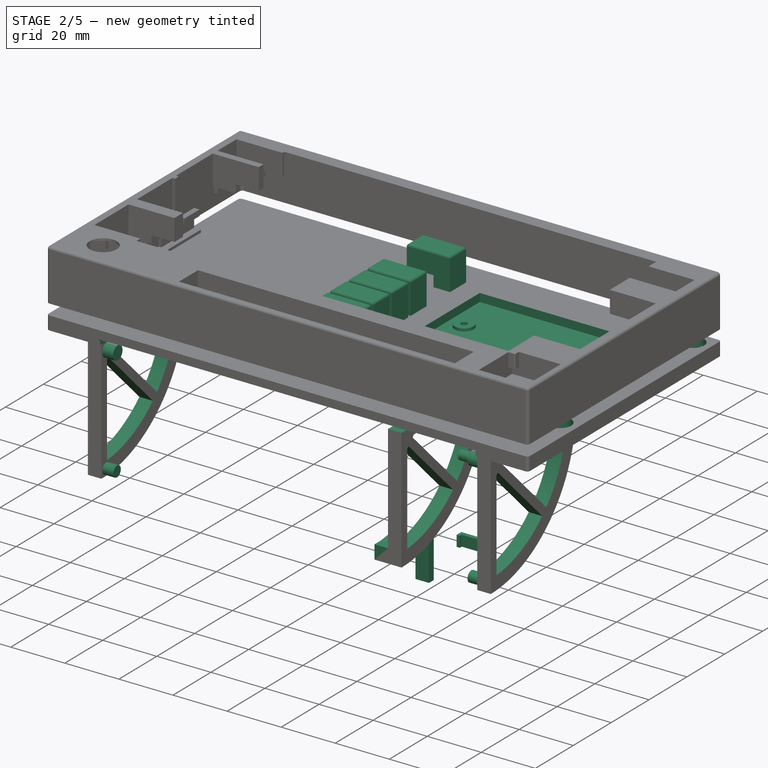
[diagram: stage 2 of 5 — iso view after this stage's code; geometry added in this stage tinted green]
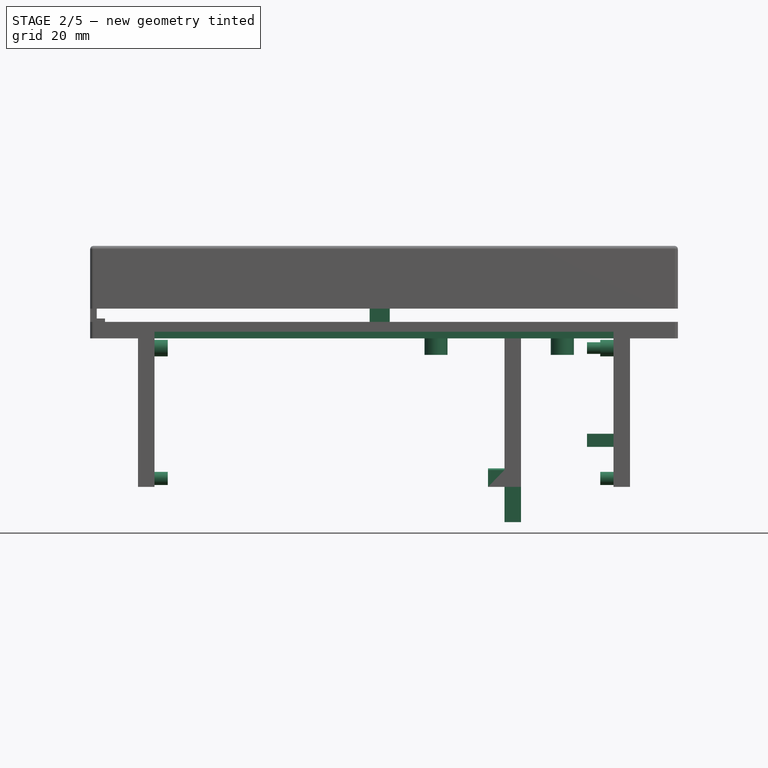
[diagram: stage 2 of 5 — front view after this stage's code; geometry added in this stage tinted green]
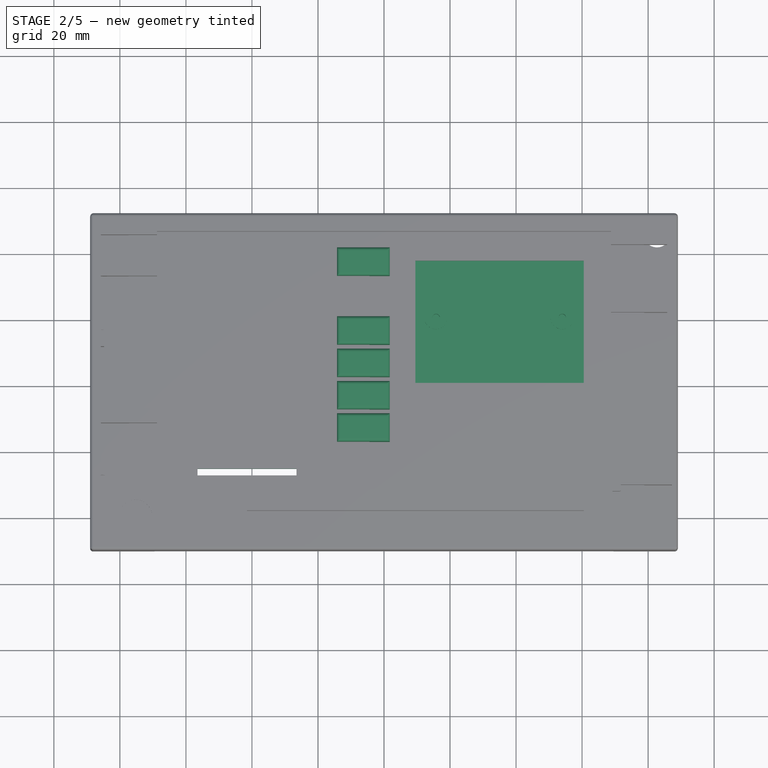
[diagram: stage 2 of 5 — top view after this stage's code; geometry added in this stage tinted green]
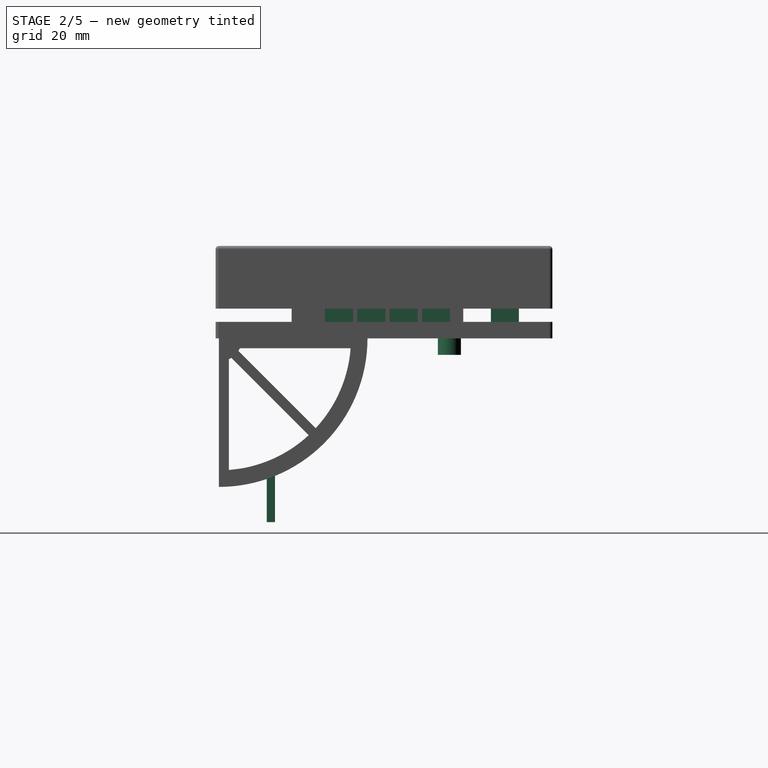
[diagram: stage 2 of 5 — right view after this stage's code; geometry added in this stage tinted green]
FEATURE [Sketcher::SketchObject] Sketch023  label="Right Button Base Sketch"
  ArcFitTolerance = 1e-06
  AttachmentSupport = -> [XY_Plane006]
  FullyConstrained = true
  MakeInternals = false
  MapMode = 5
  sketch-geometry (26):
    g0: LineSegment StartX=-4.34 StartY=41.56 StartZ=0 EndX=2.76 EndY=41.56 EndZ=0
    g1: LineSegment StartX=-4.34 StartY=48.7 StartZ=0 EndX=-4.34 EndY=41.56 EndZ=0
    g2: LineSegment StartX=-4.34 StartY=48.7 StartZ=0 EndX=3.21 EndY=48.7 EndZ=0
    g3: LineSegment StartX=3.96 StartY=47.95 StartZ=0 EndX=3.96 EndY=-31.05 EndZ=0
    g4: LineSegment [constr] StartX=2.76 StartY=41.56 StartZ=0 EndX=3.96 EndY=41.56 EndZ=0
    g5: ArcOfCircle CenterX=3.21 CenterY=47.95 CenterZ=0 NormalX=0 NormalY=0 NormalZ=1 AngleXU=0 Radius=0.75 StartAngle=3.4e-15 EndAngle=1.5708
    g6: LineSegment [constr] StartX=3.21 StartY=47.95 StartZ=0 EndX=3.21 EndY=48.7 EndZ=0
    g7: LineSegment StartX=3.96 StartY=-31.05 StartZ=0 EndX=-4.04 EndY=-31.05 EndZ=0
    g8: LineSegment StartX=-4.04 StartY=-31.05 StartZ=0 EndX=-4.04 EndY=-19.05 EndZ=0
    g9: LineSegment StartX=-4.04 StartY=-19.05 StartZ=0 EndX=2.76 EndY=-19.05 EndZ=0
    g10: LineSegment StartX=2.76 StartY=-19.05 StartZ=0 EndX=2.76 EndY=21.86 EndZ=0
    g11: LineSegment [constr] StartX=2.76 StartY=21.86 StartZ=0 EndX=2.76 EndY=31.36 EndZ=0
    g12: LineSegment StartX=2.76 StartY=31.36 StartZ=0 EndX=2.76 EndY=41.56 EndZ=0
    g13: LineSegment StartX=2.76 StartY=21.86 StartZ=0 EndX=-4.24 EndY=21.86 EndZ=0
    g14: LineSegment StartX=-4.24 StartY=21.86 StartZ=0 EndX=-4.24 EndY=31.36 EndZ=0
    g15: LineSegment StartX=-4.24 StartY=31.36 StartZ=0 EndX=2.76 EndY=31.36 EndZ=0
    g16: Circle CenterX=-0.09 CenterY=45.16 CenterZ=0 NormalX=0 NormalY=0 NormalZ=1 AngleXU=0 Radius=3
    g17: LineSegment [constr] StartX=-0.09 StartY=45.16 StartZ=0 EndX=-0.09 EndY=-25.14 EndZ=0
    g18: Circle CenterX=-0.09 CenterY=-25.14 CenterZ=0 NormalX=0 NormalY=0 NormalZ=1 AngleXU=0 Radius=3
    g19: LineSegment StartX=1.41 StartY=27.51 StartZ=0 EndX=-1.59 EndY=27.51 EndZ=0
    g20: LineSegment [constr] StartX=-1.59 StartY=27.51 StartZ=0 EndX=-1.59 EndY=25.11 EndZ=0
    g21: LineSegment StartX=-1.59 StartY=25.11 StartZ=0 EndX=1.41 EndY=25.11 EndZ=0
    g22: LineSegment [constr] StartX=1.41 StartY=25.11 StartZ=0 EndX=1.41 EndY=27.51 EndZ=0
    g23: LineSegment [constr] StartX=-4.24 StartY=26.31 StartZ=0 EndX=2.76 EndY=26.31 EndZ=0
    g24: ArcOfCircle CenterX=-1.59 CenterY=26.31 CenterZ=0 NormalX=0 NormalY=0 NormalZ=1 AngleXU=0 Radius=1.2 StartAngle=1.5708 EndAngle=4.71239
    g25: ArcOfCircle CenterX=1.41 CenterY=26.31 CenterZ=0 NormalX=0 NormalY=0 NormalZ=1 AngleXU=0 Radius=1.2 StartAngle=4.71239 EndAngle=7.85398
  constraints (75):
    c: Coincident(g1,g0)
    c: Horizontal(g0)
    c: Vertical(g1)
    c: DistanceY(g1,g1) = 7.14
    c: DistanceX(g0,g0) = 7.1
    c: DistanceX(g-1,g0) = 2.76
    c: DistanceY(g-1,g0) = 41.56
    c: Coincident(g2,g1)
    c: Horizontal(g2)
    c: Vertical(g3)
    c: Coincident(g4,g0)
    c: PointOnObject(g4,g3)
    c: Horizontal(g4)
    c: DistanceX(g4,g4) = 1.2
    c: Coincident(g5,g3)
    c: Coincident(g5,g2)
    c: Angle(g5) = 1.5708
    c: Coincident(g6,g5)
    c: Coincident(g6,g2)
    c: Vertical(g6)
    c: Radius(g5) = 0.75
    c: DistanceY(g3,g3) = 79
    c: Coincident(g7,g3)
    c: Horizontal(g7)
    c: DistanceX(g7,g7) = 8
    c: Coincident(g8,g7)
    c: Vertical(g8)
    c: DistanceY(g8,g8) = 12
    c: Coincident(g9,g8)
    c: Horizontal(g9)
    c: Coincident(g10,g9)
    c: Vertical(g10)
    c: Coincident(g11,g10)
    c: Vertical(g11)
    c: Coincident(g12,g11)
    c: Coincident(g12,g0)
    c: Vertical(g12)
    c: Coincident(g13,g10)
    c: Horizontal(g13)
    c: Coincident(g14,g13)
    c: Vertical(g14)
    c: Coincident(g15,g14)
    c: Coincident(g15,g11)
    c: Horizontal(g15)
    c: DistanceY(g14,g14) = 9.5
    c: DistanceX(g15,g15) = 7
    c: DistanceY(g12,g12) = 10.2
    c: Diameter(g16) = 6
    c: DistanceX(g0,g16) = 4.25
    c: DistanceY(g0,g16) = 3.6
    c: Coincident(g17,g16)
    c: Vertical(g17)
    c: Coincident(g18,g17)
    c: Equal(g18,g16)
    c: DistanceY(g17,g17) = 70.3
    c: Coincident(g19,g20)
    c: Coincident(g20,g21)
    c: Coincident(g21,g22)
    c: Coincident(g22,g19)
    c: Horizontal(g21)
    c: Vertical(g22)
    c: Symmetric(g19,g19,g17)
    c: Symmetric(g19,g20,g23)
    c: DistanceY(g20,g20) = 2.4
    c: Horizontal(g23)
    c: PointOnObject(g23,g11)
    c: PointOnObject(g23,g14)
    c: DistanceY(g23,g14) = 5.05
    c: Coincident(g24,g19)
    c: Coincident(g24,g20)
    c: PointOnObject(g24,g20)
    c: Coincident(g25,g19)
    c: Coincident(g25,g21)
    c: PointOnObject(g25,g22)
    c: DistanceX(g19,g19) = 3
FEATURE [PartDesign::Pad] Pad012  label="Right Button Base"
  Direction = (0,0,1)
  Length = 2
  Length2 = 10
  Profile = -> Sketch023
  ReferenceAxis = -> Sketch023 [N_Axis]
  Refine = true
  Reversed = true
  Suppressed = false
  Type = 0
FEATURE [Sketcher::SketchObject] Sketch024  label="Right Button Arm Sketch"
  ArcFitTolerance = 1e-06
  AttachmentSupport = -> [Pad012]
  ExternalGeometry = -> [Pad012]
  FullyConstrained = true
  MakeInternals = false
  MapMode = 5
  Placement = pos=(0,0,-2) rot=(1,0,0;3.14159rad)
  sketch-geometry (28):
    g0: LineSegment StartX=-3.24 StartY=-31.36 StartZ=0 EndX=-3.24 EndY=-32.36 EndZ=0
    g1: LineSegment StartX=-3.24 StartY=-32.36 StartZ=0 EndX=1.76 EndY=-32.36 EndZ=0
    g2: LineSegment StartX=1.76 StartY=-32.36 StartZ=0 EndX=1.76 EndY=-31.36 EndZ=0
    g3: LineSegment StartX=1.76 StartY=-31.36 StartZ=0 EndX=-3.24 EndY=-31.36 EndZ=0
    g4: LineSegment [constr] StartX=-3.24 StartY=-31.36 StartZ=0 EndX=-4.24 EndY=-31.36 EndZ=0
    g5: LineSegment [constr] StartX=1.76 StartY=-31.36 StartZ=0 EndX=2.76 EndY=-31.36 EndZ=0
    g6: LineSegment [constr] StartX=1.76 StartY=20.95 StartZ=0 EndX=2.76 EndY=20.95 EndZ=0
    g7: LineSegment StartX=2.76 StartY=16.15 StartZ=0 EndX=1.76 EndY=16.15 EndZ=0
    g8: LineSegment StartX=1.76 StartY=16.15 StartZ=0 EndX=1.76 EndY=11.15 EndZ=0
    g9: LineSegment StartX=1.76 StartY=11.15 StartZ=0 EndX=2.76 EndY=11.15 EndZ=0
    g10: LineSegment StartX=2.76 StartY=11.15 StartZ=0 EndX=2.76 EndY=16.15 EndZ=0
    g11: LineSegment [constr] StartX=1.76 StartY=20.95 StartZ=0 EndX=1.76 EndY=16.15 EndZ=0
    g12: LineSegment StartX=2.76 StartY=6.35 StartZ=0 EndX=1.76 EndY=6.35 EndZ=0
    g13: LineSegment StartX=1.76 StartY=6.35 StartZ=0 EndX=1.76 EndY=1.35 EndZ=0
    g14: LineSegment StartX=1.76 StartY=1.35 StartZ=0 EndX=2.76 EndY=1.35 EndZ=0
    g15: LineSegment StartX=2.76 StartY=1.35 StartZ=0 EndX=2.76 EndY=6.35 EndZ=0
    g16: LineSegment [constr] StartX=1.76 StartY=11.15 StartZ=0 EndX=1.76 EndY=6.35 EndZ=0
    g17: LineSegment StartX=2.76 StartY=-3.45 StartZ=0 EndX=1.76 EndY=-3.45 EndZ=0
    g18: LineSegment StartX=1.76 StartY=-3.45 StartZ=0 EndX=1.76 EndY=-8.45 EndZ=0
    g19: LineSegment StartX=1.76 StartY=-8.45 StartZ=0 EndX=2.76 EndY=-8.45 EndZ=0
    g20: LineSegment StartX=2.76 StartY=-8.45 StartZ=0 EndX=2.76 EndY=-3.45 EndZ=0
    g21: LineSegment StartX=2.76 StartY=-13.25 StartZ=0 EndX=1.76 EndY=-13.25 EndZ=0
    g22: LineSegment StartX=1.76 StartY=-13.25 StartZ=0 EndX=1.76 EndY=-18.25 EndZ=0
    g23: LineSegment StartX=1.76 StartY=-18.25 StartZ=0 EndX=2.76 EndY=-18.25 EndZ=0
    g24: LineSegment StartX=2.76 StartY=-18.25 StartZ=0 EndX=2.76 EndY=-13.25 EndZ=0
    g25: LineSegment [constr] StartX=1.76 StartY=1.35 StartZ=0 EndX=1.76 EndY=-3.45 EndZ=0
    g26: LineSegment [constr] StartX=1.76 StartY=-8.45 StartZ=0 EndX=1.76 EndY=-13.25 EndZ=0
    g27: LineSegment [constr] StartX=2.76 StartY=-18.25 StartZ=0 EndX=2.76 EndY=-21.86 EndZ=0
  constraints (78):
    c: Coincident(g0,g1)
    c: Coincident(g1,g2)
    c: Coincident(g2,g3)
    c: Coincident(g3,g0)
    c: Vertical(g0)
    c: Vertical(g2)
    c: Horizontal(g1)
    c: Horizontal(g3)
    c: PointOnObject(g0,g-3)
    c: DistanceY(g0,g0) = 1
    c: Coincident(g4,g0)
    c: Coincident(g4,g-6)
    c: Coincident(g5,g2)
    c: Coincident(g5,g-4)
    c: Equal(g5,g4)
    c: DistanceX(g5,g5) = 1
    c: Horizontal(g6)
    c: Coincident(g7,g8)
    c: Coincident(g8,g9)
    c: Coincident(g9,g10)
    c: Coincident(g10,g7)
    c: Horizontal(g7)
    c: Horizontal(g9)
    c: Vertical(g8)
    c: Vertical(g10)
    c: PointOnObject(g7,g-8)
    c: Coincident(g11,g7)
    c: Vertical(g11)
    c: Coincident(g12,g13)
    c: Coincident(g13,g14)
    c: Coincident(g14,g15)
    c: Coincident(g15,g12)
    c: Horizontal(g12)
    c: Horizontal(g14)
    c: Vertical(g13)
    c: Vertical(g15)
    c: PointOnObject(g12,g-8)
    c: Coincident(g16,g8)
    c: Coincident(g16,g12)
    c: Vertical(g16)
    c: Coincident(g17,g18)
    c: Coincident(g18,g19)
    c: Coincident(g19,g20)
    c: Coincident(g20,g17)
    c: Horizontal(g17)
    c: Horizontal(g19)
    c: Vertical(g18)
    c: Vertical(g20)
    c: PointOnObject(g17,g-8)
    c: Coincident(g21,g22)
    c: Coincident(g22,g23)
    c: Coincident(g23,g24)
    c: Coincident(g24,g21)
    c: Horizontal(g21)
    c: Horizontal(g23)
    c: Vertical(g22)
    c: Vertical(g24)
    c: PointOnObject(g21,g-8)
    c: Coincident(g25,g13)
    c: Coincident(g25,g17)
    c: Vertical(g25)
    c: Coincident(g26,g18)
    c: Coincident(g26,g21)
    c: Vertical(g26)
    c: Equal(g26,g25)
    c: Equal(g25,g16)
    c: Equal(g16,g11)
    c: Equal(g8,g13)
    c: Equal(g13,g18)
    c: Equal(g18,g22)
    c: Coincident(g27,g23)
    c: Coincident(g27,g-8)
    c: DistanceY(g18,g18) = 5
    c: DistanceY(g26,g26) = 4.8
    c: DistanceX(g6,g6) = 1
    c: Coincident(g6,g11)
    c: DistanceY(g7,g-9) = 2.9
    c: PointOnObject(g6,g-8)
FEATURE [PartDesign::Pad] Pad013  label="Right Button Arm"
  BaseFeature = -> Pad012
  Direction = (0,0,-1)
  Length = 1
  Length2 = 10
  Profile = -> Sketch024
  ReferenceAxis = -> Sketch024 [N_Axis]
  Refine = true
  Reversed = true
  Suppressed = false
  Type = 0
FEATURE [Sketcher::SketchObject] Sketch025  label="Right Button Extrusions Sketch"
  ArcFitTolerance = 1e-06
  AttachmentSupport = -> [Pad013]
  ExternalGeometry = -> [Pad013]
  FullyConstrained = true
  MakeInternals = false
  MapMode = 5
  Placement = pos=(0,0,-2) rot=(1,0,0;3.14159rad)
  sketch-geometry (32):
    g0: LineSegment StartX=1.76 StartY=17.9 StartZ=0 EndX=-14.24 EndY=17.9 EndZ=0
    g1: LineSegment StartX=-14.24 StartY=17.9 StartZ=0 EndX=-14.24 EndY=9.4 EndZ=0
    g2: LineSegment StartX=-14.24 StartY=9.4 StartZ=0 EndX=1.76 EndY=9.4 EndZ=0
    g3: LineSegment StartX=1.76 StartY=9.4 StartZ=0 EndX=1.76 EndY=17.9 EndZ=0
    g4: LineSegment [constr] StartX=1.76 StartY=17.9 StartZ=0 EndX=1.76 EndY=16.15 EndZ=0
    g5: LineSegment [constr] StartX=1.76 StartY=11.15 StartZ=0 EndX=1.76 EndY=9.4 EndZ=0
    g6: LineSegment StartX=-14.24 StartY=8.1 StartZ=0 EndX=-14.24 EndY=-0.4 EndZ=0
    g7: LineSegment StartX=-14.24 StartY=-0.4 StartZ=0 EndX=1.76 EndY=-0.4 EndZ=0
    g8: LineSegment StartX=1.76 StartY=-0.4 StartZ=0 EndX=1.76 EndY=8.1 EndZ=0
    g9: LineSegment StartX=1.76 StartY=8.1 StartZ=0 EndX=-14.24 EndY=8.1 EndZ=0
    g10: LineSegment [constr] StartX=-14.24 StartY=8.1 StartZ=0 EndX=-14.24 EndY=9.4 EndZ=0
    g11: LineSegment [constr] StartX=1.76 StartY=8.1 StartZ=0 EndX=1.76 EndY=6.35 EndZ=0
    g12: LineSegment [constr] StartX=1.76 StartY=1.35 StartZ=0 EndX=1.76 EndY=-0.4 EndZ=0
    g13: LineSegment StartX=1.76 StartY=-1.7 StartZ=0 EndX=-14.24 EndY=-1.7 EndZ=0
    g14: LineSegment StartX=-14.24 StartY=-1.7 StartZ=0 EndX=-14.24 EndY=-10.2 EndZ=0
    g15: LineSegment StartX=-14.24 StartY=-10.2 StartZ=0 EndX=1.76 EndY=-10.2 EndZ=0
    g16: LineSegment StartX=1.76 StartY=-10.2 StartZ=0 EndX=1.76 EndY=-1.7 EndZ=0
    g17: LineSegment [constr] StartX=-14.24 StartY=-1.7 StartZ=0 EndX=-14.24 EndY=-0.4 EndZ=0
    g18: LineSegment [constr] StartX=1.76 StartY=-1.7 StartZ=0 EndX=1.76 EndY=-3.45 EndZ=0
    g19: LineSegment [constr] StartX=1.76 StartY=-8.45 StartZ=0 EndX=1.76 EndY=-10.2 EndZ=0
    g20: LineSegment StartX=-14.24 StartY=-11.5 StartZ=0 EndX=-14.24 EndY=-20 EndZ=0
    g21: LineSegment StartX=-14.24 StartY=-20 StartZ=0 EndX=1.76 EndY=-20 EndZ=0
    g22: LineSegment StartX=1.76 StartY=-20 StartZ=0 EndX=1.76 EndY=-11.5 EndZ=0
    g23: LineSegment StartX=1.76 StartY=-11.5 StartZ=0 EndX=-14.24 EndY=-11.5 EndZ=0
    g24: LineSegment [constr] StartX=-14.24 StartY=-11.5 StartZ=0 EndX=-14.24 EndY=-10.2 EndZ=0
    g25: LineSegment [constr] StartX=1.76 StartY=-11.5 StartZ=0 EndX=1.76 EndY=-13.25 EndZ=0
    g26: LineSegment [constr] StartX=1.76 StartY=-18.25 StartZ=0 EndX=1.76 EndY=-20 EndZ=0
    g27: LineSegment StartX=-14.24 StartY=-32.36 StartZ=0 EndX=-14.24 EndY=-40.86 EndZ=0
    g28: LineSegment StartX=-14.24 StartY=-40.86 StartZ=0 EndX=1.76 EndY=-40.86 EndZ=0
    g29: LineSegment StartX=1.76 StartY=-40.86 StartZ=0 EndX=1.76 EndY=-32.36 EndZ=0
    g30: LineSegment StartX=1.76 StartY=-32.36 StartZ=0 EndX=-14.24 EndY=-32.36 EndZ=0
    g31: LineSegment [constr] StartX=-14.24 StartY=-32.36 StartZ=0 EndX=-14.24 EndY=-20 EndZ=0
  constraints (79):
    c: Coincident(g0,g1)
    c: Coincident(g1,g2)
    c: Coincident(g2,g3)
    c: Coincident(g3,g0)
    c: Horizontal(g0)
    c: Horizontal(g2)
    c: Vertical(g1)
    c: Coincident(g4,g0)
    c: Coincident(g4,g-17)
    c: Coincident(g5,g-17)
    c: Coincident(g5,g2)
    c: Equal(g5,g4)
    c: Tangent(g3,g-17)
    c: Coincident(g6,g7)
    c: Coincident(g7,g8)
    c: Coincident(g8,g9)
    c: Coincident(g9,g6)
    c: Vertical(g6)
    c: Horizontal(g7)
    c: Horizontal(g9)
    c: Coincident(g10,g6)
    c: Coincident(g10,g1)
    c: Vertical(g10)
    c: Coincident(g11,g8)
    c: Coincident(g11,g-16)
    c: Coincident(g12,g-16)
    c: Coincident(g12,g7)
    c: Equal(g6,g1)
    c: Equal(g11,g12)
    c: Tangent(g8,g-16)
    c: Coincident(g13,g14)
    c: Coincident(g14,g15)
    c: Coincident(g15,g16)
    c: Coincident(g16,g13)
    c: Horizontal(g13)
    c: Horizontal(g15)
    c: Vertical(g14)
    c: Coincident(g17,g13)
    c: Coincident(g17,g6)
    c: Vertical(g17)
    c: Coincident(g18,g13)
    c: Coincident(g18,g-8)
    c: Coincident(g19,g-9)
    c: Coincident(g19,g15)
    c: Equal(g19,g18)
    c: Equal(g14,g6)
    c: Tangent(g16,g-8)
    c: Coincident(g20,g21)
    c: Coincident(g21,g22)
    c: Coincident(g22,g23)
    c: Coincident(g23,g20)
    c: Vertical(g20)
    c: Horizontal(g21)
    c: Horizontal(g23)
    c: Coincident(g24,g20)
    c: Coincident(g24,g14)
    c: Vertical(g24)
    c: Equal(g14,g20)
    c: Coincident(g25,g22)
    c: Coincident(g25,g-7)
    c: Coincident(g26,g-6)
    c: Coincident(g26,g21)
    c: Equal(g26,g25)
    c: Tangent(g22,g-6)
    c: Coincident(g27,g28)
    c: Coincident(g28,g29)
    c: Coincident(g29,g30)
    c: Coincident(g30,g27)
    c: Vertical(g27)
    c: Vertical(g29)
    c: Horizontal(g28)
    c: Equal(g27,g20)
    c: Coincident(g31,g27)
    c: Coincident(g31,g20)
    c: Vertical(g31)
    c: Equal(g28,g21)
    c: Tangent(g30,g-13)
    c: DistanceX(g0,g0) = 16
    c: DistanceY(g1,g1) = 8.5
FEATURE [PartDesign::Pad] Pad014  label="Right Button Extrusions"
  BaseFeature = -> Pad013
  Direction = (0,0,-1)
  Length = 14
  Length2 = 10
  Profile = -> Sketch025
  ReferenceAxis = -> Sketch025 [N_Axis]
  Refine = true
  Reversed = true
  Suppressed = false
  Type = 0
FEATURE [Sketcher::SketchObject] Sketch026  label="Right Button Shell Sketch"
  ArcFitTolerance = 1e-06
  AttachmentSupport = -> [Pad014]
  ExternalGeometry = -> [Pad014]
  FullyConstrained = true
  MakeInternals = false
  MapMode = 5
  Placement = pos=(0,0,-2) rot=(1,0,0;3.14159rad)
  sketch-geometry (56):
    g0: LineSegment StartX=-13.24 StartY=16.9 StartZ=0 EndX=-13.24 EndY=10.4 EndZ=0
    g1: LineSegment StartX=-13.24 StartY=10.4 StartZ=0 EndX=0.76 EndY=10.4 EndZ=0
    g2: LineSegment StartX=0.76 StartY=10.4 StartZ=0 EndX=0.76 EndY=16.9 EndZ=0
    g3: LineSegment StartX=0.76 StartY=16.9 StartZ=0 EndX=-13.24 EndY=16.9 EndZ=0
    g4: LineSegment [constr] StartX=-13.24 StartY=16.9 StartZ=0 EndX=-13.24 EndY=17.9 EndZ=0
    g5: LineSegment [constr] StartX=-13.24 StartY=16.9 StartZ=0 EndX=-14.24 EndY=16.9 EndZ=0
    g6: LineSegment [constr] StartX=-13.24 StartY=10.4 StartZ=0 EndX=-13.24 EndY=9.4 EndZ=0
    g7: LineSegment [constr] StartX=0.76 StartY=10.4 StartZ=0 EndX=1.76 EndY=10.4 EndZ=0
    g8: LineSegment StartX=-13.24 StartY=7.1 StartZ=0 EndX=-13.24 EndY=0.6 EndZ=0
    g9: LineSegment StartX=-13.24 StartY=0.6 StartZ=0 EndX=0.76 EndY=0.6 EndZ=0
    g10: LineSegment StartX=0.76 StartY=0.6 StartZ=0 EndX=0.76 EndY=7.1 EndZ=0
    g11: LineSegment StartX=0.76 StartY=7.1 StartZ=0 EndX=-13.24 EndY=7.1 EndZ=0
    g12: LineSegment [constr] StartX=-14.24 StartY=8.1 StartZ=0 EndX=-14.24 EndY=7.1 EndZ=0
    g13: LineSegment [constr] StartX=-14.24 StartY=7.1 StartZ=0 EndX=-13.24 EndY=7.1 EndZ=0
    g14: LineSegment [constr] StartX=-13.24 StartY=7.1 StartZ=0 EndX=-13.24 EndY=8.1 EndZ=0
    g15: LineSegment [constr] StartX=-13.24 StartY=8.1 StartZ=0 EndX=-14.24 EndY=8.1 EndZ=0
    g16: LineSegment [constr] StartX=0.76 StartY=0.6 StartZ=0 EndX=0.76 EndY=-0.4 EndZ=0
    g17: LineSegment [constr] StartX=0.76 StartY=-0.4 StartZ=0 EndX=1.76 EndY=-0.4 EndZ=0
    g18: LineSegment [constr] StartX=1.76 StartY=-0.4 StartZ=0 EndX=1.76 EndY=0.6 EndZ=0
    g19: LineSegment [constr] StartX=1.76 StartY=0.6 StartZ=0 EndX=0.76 EndY=0.6 EndZ=0
    g20: LineSegment StartX=-13.24 StartY=-2.7 StartZ=0 EndX=-13.24 EndY=-9.2 EndZ=0
    g21: LineSegment StartX=-13.24 StartY=-9.2 StartZ=0 EndX=0.76 EndY=-9.2 EndZ=0
    g22: LineSegment StartX=0.76 StartY=-9.2 StartZ=0 EndX=0.76 EndY=-2.7 EndZ=0
    g23: LineSegment StartX=0.76 StartY=-2.7 StartZ=0 EndX=-13.24 EndY=-2.7 EndZ=0
    g24: LineSegment [constr] StartX=-14.24 StartY=-1.7 StartZ=0 EndX=-14.24 EndY=-2.7 EndZ=0
    g25: LineSegment [constr] StartX=-14.24 StartY=-2.7 StartZ=0 EndX=-13.24 EndY=-2.7 EndZ=0
    g26: LineSegment [constr] StartX=-13.24 StartY=-2.7 StartZ=0 EndX=-13.24 EndY=-1.7 EndZ=0
    g27: LineSegment [constr] StartX=-13.24 StartY=-1.7 StartZ=0 EndX=-14.24 EndY=-1.7 EndZ=0
    g28: LineSegment [constr] StartX=0.76 StartY=-9.2 StartZ=0 EndX=0.76 EndY=-10.2 EndZ=0
    g29: LineSegment [constr] StartX=0.76 StartY=-10.2 StartZ=0 EndX=1.76 EndY=-10.2 EndZ=0
    g30: LineSegment [constr] StartX=1.76 StartY=-10.2 StartZ=0 EndX=1.76 EndY=-9.2 EndZ=0
    g31: LineSegment [constr] StartX=1.76 StartY=-9.2 StartZ=0 EndX=0.76 EndY=-9.2 EndZ=0
    g32: LineSegment StartX=-13.24 StartY=-12.5 StartZ=0 EndX=-13.24 EndY=-19 EndZ=0
    g33: LineSegment StartX=-13.24 StartY=-19 StartZ=0 EndX=0.76 EndY=-19 EndZ=0
    g34: LineSegment StartX=0.76 StartY=-19 StartZ=0 EndX=0.76 EndY=-12.5 EndZ=0
    g35: LineSegment StartX=0.76 StartY=-12.5 StartZ=0 EndX=-13.24 EndY=-12.5 EndZ=0
    g36: LineSegment [constr] StartX=-14.24 StartY=-11.5 StartZ=0 EndX=-14.24 EndY=-12.5 EndZ=0
    g37: LineSegment [constr] StartX=-14.24 StartY=-12.5 StartZ=0 EndX=-13.24 EndY=-12.5 EndZ=0
    g38: LineSegment [constr] StartX=-13.24 StartY=-12.5 StartZ=0 EndX=-13.24 EndY=-11.5 EndZ=0
    g39: LineSegment [constr] StartX=-13.24 StartY=-11.5 StartZ=0 EndX=-14.24 EndY=-11.5 EndZ=0
    g40: LineSegment [constr] StartX=1.76 StartY=-20 StartZ=0 EndX=1.76 EndY=-19 EndZ=0
    g41: LineSegment [constr] StartX=1.76 StartY=-19 StartZ=0 EndX=0.76 EndY=-19 EndZ=0
    g42: LineSegment [constr] StartX=0.76 StartY=-19 StartZ=0 EndX=0.76 EndY=-20 EndZ=0
    g43: LineSegment [constr] StartX=0.76 StartY=-20 StartZ=0 EndX=1.76 EndY=-20 EndZ=0
    g44: LineSegment StartX=-13.24 StartY=-33.36 StartZ=0 EndX=-13.24 EndY=-39.86 EndZ=0
    g45: LineSegment StartX=-13.24 StartY=-39.86 StartZ=0 EndX=0.76 EndY=-39.86 EndZ=0
    g46: LineSegment StartX=0.76 StartY=-39.86 StartZ=0 EndX=0.76 EndY=-33.36 EndZ=0
    g47: LineSegment StartX=0.76 StartY=-33.36 StartZ=0 EndX=-13.24 EndY=-33.36 EndZ=0
    g48: LineSegment [constr] StartX=-13.24 StartY=-33.36 StartZ=0 EndX=-13.24 EndY=-32.36 EndZ=0
    g49: LineSegment [constr] StartX=-13.24 StartY=-32.36 StartZ=0 EndX=-14.24 EndY=-32.36 EndZ=0
    g50: LineSegment [constr] StartX=-14.24 StartY=-32.36 StartZ=0 EndX=-14.24 EndY=-33.36 EndZ=0
    g51: LineSegment [constr] StartX=-14.24 StartY=-33.36 StartZ=0 EndX=-13.24 EndY=-33.36 EndZ=0
    g52: LineSegment [constr] StartX=0.76 StartY=-39.86 StartZ=0 EndX=0.76 EndY=-40.86 EndZ=0
    g53: LineSegment [constr] StartX=0.76 StartY=-40.86 StartZ=0 EndX=1.76 EndY=-40.86 EndZ=0
    g54: LineSegment [constr] StartX=1.76 StartY=-40.86 StartZ=0 EndX=1.76 EndY=-39.86 EndZ=0
    g55: LineSegment [constr] StartX=1.76 StartY=-39.86 StartZ=0 EndX=0.76 EndY=-39.86 EndZ=0
  constraints (152):
    c: Coincident(g0,g1)
    c: Coincident(g1,g2)
    c: Coincident(g2,g3)
    c: Coincident(g3,g0)
    c: Vertical(g0)
    c: Vertical(g2)
    c: Horizontal(g1)
    c: Horizontal(g3)
    c: Coincident(g4,g0)
    c: PointOnObject(g4,g-3)
    c: Vertical(g4)
    c: Coincident(g5,g0)
    c: PointOnObject(g5,g-4)
    c: Horizontal(g5)
    c: Coincident(g6,g0)
    c: PointOnObject(g6,g-5)
    c: Vertical(g6)
    c: Coincident(g7,g1)
    c: PointOnObject(g7,g-7)
    c: Horizontal(g7)
    c: Equal(g7,g6)
    c: Equal(g6,g5)
    c: Equal(g5,g4)
    c: Coincident(g8,g9)
    c: Coincident(g9,g10)
    c: Coincident(g10,g11)
    c: Coincident(g11,g8)
    c: Vertical(g8)
    c: Vertical(g10)
    c: Horizontal(g9)
    c: Horizontal(g11)
    c: Coincident(g12,g13)
    c: Coincident(g13,g14)
    c: Coincident(g14,g15)
    c: Coincident(g15,g12)
    c: Vertical(g12)
    c: Vertical(g14)
    c: Horizontal(g13)
    c: Horizontal(g15)
    c: Coincident(g12,g-10)
    c: Coincident(g13,g8)
    c: Coincident(g16,g17)
    c: Coincident(g17,g18)
    c: Coincident(g18,g19)
    c: Coincident(g19,g16)
    c: Vertical(g16)
    c: Vertical(g18)
    c: Horizontal(g17)
    c: Horizontal(g19)
    c: Coincident(g16,g9)
    c: Coincident(g17,g-12)
    c: Equal(g14,g13)
    c: Equal(g13,g19)
    c: Equal(g19,g16)
    c: Equal(g16,g6)
    c: Coincident(g20,g21)
    c: Coincident(g21,g22)
    c: Coincident(g22,g23)
    c: Coincident(g23,g20)
    c: Vertical(g20)
    c: Vertical(g22)
    c: Horizontal(g21)
    c: Horizontal(g23)
    c: Coincident(g24,g25)
    c: Coincident(g25,g26)
    c: Coincident(g26,g27)
    c: Coincident(g27,g24)
    c: Vertical(g24)
    c: Vertical(g26)
    c: Horizontal(g25)
    c: Horizontal(g27)
    c: Coincident(g24,g-14)
    c: Coincident(g25,g20)
    c: Coincident(g28,g29)
    c: Coincident(g29,g30)
    c: Coincident(g30,g31)
    c: Coincident(g31,g28)
    c: Vertical(g28)
    c: Vertical(g30)
    c: Horizontal(g29)
    c: Horizontal(g31)
    c: Coincident(g28,g21)
    c: Coincident(g29,g-16)
    c: Equal(g31,g28)
    c: Equal(g28,g26)
    c: Equal(g26,g25)
    c: Equal(g25,g16)
    c: Coincident(g32,g33)
    c: Coincident(g33,g34)
    c: Coincident(g34,g35)
    c: Coincident(g35,g32)
    c: Vertical(g32)
    c: Vertical(g34)
    c: Horizontal(g33)
    c: Horizontal(g35)
    c: Coincident(g36,g37)
    c: Coincident(g37,g38)
    c: Coincident(g38,g39)
    c: Coincident(g39,g36)
    c: Vertical(g36)
    c: Vertical(g38)
    c: Horizontal(g37)
    c: Horizontal(g39)
    c: Coincident(g36,g-19)
    c: Coincident(g37,g32)
    c: Coincident(g40,g41)
    c: Coincident(g41,g42)
    c: Coincident(g42,g43)
    c: Coincident(g43,g40)
    c: Vertical(g40)
    c: Vertical(g42)
    c: Horizontal(g41)
    c: Horizontal(g43)
    c: Coincident(g40,g-21)
    c: Coincident(g41,g33)
    c: Equal(g37,g38)
    c: Equal(g38,g41)
    c: Equal(g41,g42)
    c: Equal(g42,g28)
    c: Coincident(g44,g45)
    c: Coincident(g45,g46)
    c: Coincident(g46,g47)
    c: Coincident(g47,g44)
    c: Vertical(g44)
    c: Vertical(g46)
    c: Horizontal(g45)
    c: Horizontal(g47)
    c: Coincident(g48,g49)
    c: Coincident(g49,g50)
    c: Coincident(g50,g51)
    c: Coincident(g51,g48)
    c: Vertical(g48)
    c: Vertical(g50)
    c: Horizontal(g49)
    c: Horizontal(g51)
    c: Coincident(g48,g44)
    c: Coincident(g49,g-24)
    c: Coincident(g52,g53)
    c: Coincident(g53,g54)
    c: Coincident(g54,g55)
    c: Coincident(g55,g52)
    c: Vertical(g52)
    c: Vertical(g54)
    c: Horizontal(g53)
    c: Horizontal(g55)
    c: Coincident(g52,g45)
    c: Coincident(g53,g-26)
    c: Equal(g55,g52)
    c: Equal(g52,g51)
    c: Equal(g51,g48)
    c: Equal(g48,g42)
    c: DistanceX(g5,g5) = 1
FEATURE [PartDesign::Pocket] Pocket009  label="Right Button Shell"
  BaseFeature = -> Pad014
  Direction = (0,0,1)
  Length = 13
  Length2 = 5
  Profile = -> Sketch026
  ReferenceAxis = -> Sketch026 [N_Axis]
  Refine = true
  Suppressed = false
  Type = 0
FEATURE [Sketcher::SketchObject] Sketch027  label="Right Button Screen Cut Sketch"
  ArcFitTolerance = 1e-06
  AttachmentSupport = -> [Pocket009]
  ExternalGeometry = -> [Pocket009]
  FullyConstrained = true
  MakeInternals = false
  MapMode = 5
  Placement = pos=(0,0,-2) rot=(1,0,0;3.14159rad)
  sketch-geometry (4):
    g0: LineSegment StartX=-14.24 StartY=17.9 StartZ=0 EndX=-14.24 EndY=-40.86 EndZ=0
    g1: LineSegment StartX=-14.24 StartY=-40.86 StartZ=0 EndX=-4.34 EndY=-40.86 EndZ=0
    g2: LineSegment StartX=-4.34 StartY=-40.86 StartZ=0 EndX=-4.34 EndY=17.9 EndZ=0
    g3: LineSegment StartX=-4.34 StartY=17.9 StartZ=0 EndX=-14.24 EndY=17.9 EndZ=0
  constraints (11):
    c: Coincident(g0,g1)
    c: Coincident(g1,g2)
    c: Coincident(g2,g3)
    c: Coincident(g3,g0)
    c: Vertical(g0)
    c: Vertical(g2)
    c: Horizontal(g1)
    c: Horizontal(g3)
    c: PointOnObject(g1,g-3)
    c: DistanceX(g1,g1) = 9.9
    c: Coincident(g0,g-6)
FEATURE [PartDesign::Pocket] Pocket010  label="Right Button Screen Cut"
  BaseFeature = -> Pocket009
  Direction = (0,0,1)
  Length = 6
  Length2 = 5
  Profile = -> Sketch027
  ReferenceAxis = -> Sketch027 [N_Axis]
  Refine = true
  Suppressed = false
  Type = 0
FEATURE [Sketcher::SketchObject] Sketch043  label="Right Button Toggle Sketch"
  ArcFitTolerance = 1e-06
  AttachmentSupport = -> [Pocket010]
  ExternalGeometry = -> [Pocket010]
  FullyConstrained = true
  MakeInternals = false
  MapMode = 5
  Placement = pos=(0,0,11) rot=(1,0,0;3.14159rad)
  sketch-geometry (25):
    g0: LineSegment [constr] StartX=0.76 StartY=10.4 StartZ=0 EndX=0.76 EndY=12.5 EndZ=0
    g1: LineSegment [constr] StartX=0.76 StartY=12.5 StartZ=0 EndX=-2 EndY=12.5 EndZ=0
    g2: LineSegment [constr] StartX=-2 StartY=12.5 StartZ=0 EndX=-2 EndY=10.4 EndZ=0
    g3: LineSegment [constr] StartX=-2 StartY=10.4 StartZ=0 EndX=0.76 EndY=10.4 EndZ=0
    g4: LineSegment [constr] StartX=0.76 StartY=0.6 StartZ=0 EndX=0.76 EndY=2.7 EndZ=0
    g5: LineSegment [constr] StartX=0.76 StartY=2.7 StartZ=0 EndX=-2 EndY=2.7 EndZ=0
    g6: LineSegment [constr] StartX=-2 StartY=2.7 StartZ=0 EndX=-2 EndY=0.6 EndZ=0
    g7: LineSegment [constr] StartX=-2 StartY=0.6 StartZ=0 EndX=0.76 EndY=0.6 EndZ=0
    g8: LineSegment [constr] StartX=0.76 StartY=-9.2 StartZ=0 EndX=0.76 EndY=-7.1 EndZ=0
    g9: LineSegment [constr] StartX=0.76 StartY=-7.1 StartZ=0 EndX=-2 EndY=-7.1 EndZ=0
    g10: LineSegment [constr] StartX=-2 StartY=-7.1 StartZ=0 EndX=-2 EndY=-9.2 EndZ=0
    g11: LineSegment [constr] StartX=-2 StartY=-9.2 StartZ=0 EndX=0.76 EndY=-9.2 EndZ=0
    g12: LineSegment [constr] StartX=0.76 StartY=-19 StartZ=0 EndX=0.76 EndY=-16.9 EndZ=0
    g13: LineSegment [constr] StartX=0.76 StartY=-16.9 StartZ=0 EndX=-2 EndY=-16.9 EndZ=0
    g14: LineSegment [constr] StartX=-2 StartY=-16.9 StartZ=0 EndX=-2 EndY=-19 EndZ=0
    g15: LineSegment [constr] StartX=-2 StartY=-19 StartZ=0 EndX=0.76 EndY=-19 EndZ=0
    g16: LineSegment [constr] StartX=0.76 StartY=-39.86 StartZ=0 EndX=0.76 EndY=-37.76 EndZ=0
    g17: LineSegment [constr] StartX=0.76 StartY=-37.76 StartZ=0 EndX=-2 EndY=-37.76 EndZ=0
    g18: LineSegment [constr] StartX=-2 StartY=-37.76 StartZ=0 EndX=-2 EndY=-39.86 EndZ=0
    g19: LineSegment [constr] StartX=-2 StartY=-39.86 StartZ=0 EndX=0.76 EndY=-39.86 EndZ=0
    g20: Circle CenterX=-2 CenterY=12.5 CenterZ=0 NormalX=0 NormalY=0 NormalZ=1 AngleXU=0 Radius=1.25
    g21: Circle CenterX=-2 CenterY=2.7 CenterZ=0 NormalX=0 NormalY=0 NormalZ=1 AngleXU=0 Radius=1.25
    g22: Circle CenterX=-2 CenterY=-7.1 CenterZ=0 NormalX=0 NormalY=0 NormalZ=1 AngleXU=0 Radius=1.25
    g23: Circle CenterX=-2 CenterY=-16.9 CenterZ=0 NormalX=0 NormalY=0 NormalZ=1 AngleXU=0 Radius=1.25
    g24: Circle CenterX=-2 CenterY=-37.76 CenterZ=0 NormalX=0 NormalY=0 NormalZ=1 AngleXU=0 Radius=1.25
  constraints (65):
    c: Coincident(g0,g1)
    c: Coincident(g1,g2)
    c: Coincident(g2,g3)
    c: Coincident(g3,g0)
    c: Vertical(g0)
    c: Vertical(g2)
    c: Horizontal(g1)
    c: Horizontal(g3)
    c: Coincident(g0,g-6)
    c: Coincident(g4,g5)
    c: Coincident(g5,g6)
    c: Coincident(g6,g7)
    c: Coincident(g7,g4)
    c: Vertical(g4)
    c: Vertical(g6)
    c: Horizontal(g5)
    c: Horizontal(g7)
    c: Coincident(g4,g-10)
    c: Coincident(g8,g9)
    c: Coincident(g9,g10)
    c: Coincident(g10,g11)
    c: Coincident(g11,g8)
    c: Vertical(g8)
    c: Vertical(g10)
    c: Horizontal(g9)
    c: Horizontal(g11)
    c: Coincident(g8,g-12)
    c: Coincident(g12,g13)
    c: Coincident(g13,g14)
    c: Coincident(g14,g15)
    c: Coincident(g15,g12)
    c: Vertical(g12)
    c: Vertical(g14)
    c: Horizontal(g13)
    c: Horizontal(g15)
    c: Coincident(g12,g-18)
    c: Coincident(g16,g17)
    c: Coincident(g17,g18)
    c: Coincident(g18,g19)
    c: Coincident(g19,g16)
    c: Vertical(g16)
    c: Vertical(g18)
    c: Horizontal(g17)
    c: Horizontal(g19)
    c: Coincident(g16,g-20)
    c: Equal(g18,g14)
    c: Equal(g14,g10)
    c: Equal(g10,g6)
    c: Equal(g6,g2)
    c: Equal(g5,g1)
    c: Equal(g1,g9)
    c: Equal(g9,g13)
    c: Equal(g13,g17)
    c: Coincident(g20,g1)
    c: Coincident(g21,g5)
    c: Coincident(g22,g9)
    c: Coincident(g23,g13)
    c: Coincident(g24,g17)
    c: Equal(g24,g23)
    c: Equal(g23,g22)
    c: Equal(g22,g21)
    c: Equal(g21,g20)
    c: Diameter(g20) = 2.5
    c: DistanceY(g2,g2) = 2.1
    c: DistanceX(g1,g1) = 2.76
FEATURE [PartDesign::Pad] Pad027  label="Right Button Toggle"
  BaseFeature = -> Pocket010
  Direction = (0,0,-1)
  Length = 10.9
  Length2 = 10
  Profile = -> Sketch043
  ReferenceAxis = -> Sketch043 [N_Axis]
  Refine = true
  Suppressed = false
  Type = 0
FEATURE [PartDesign::Fillet] Fillet004  label="Right Button Toggle Fillet"
  Base = -> Pad027 [Edge286,Edge109,Edge291,Edge296,Edge301]
  BaseFeature = -> Pad027
  Radius = 0.8
  Refine = true
  SupportTransform = false
  Suppressed = false
  UseAllEdges = false
FEATURE [PartDesign::Fillet] Fillet005  label="Right Button Fillet"
  Base = -> Fillet004 [Edge284,Edge151,Edge132,Edge127,Edge104,Edge107,Edge176,Edge108,Edge187,Edge289,Edge205,Edge183,Edge294,Edge216,Edge234,Edge212,Edge245,Edge241,Edge263,Edge299]
  BaseFeature = -> Fillet004
  Radius = 1
  Refine = true
  SupportTransform = false
  Suppressed = false
  UseAllEdges = false
FEATURE [Sketcher::SketchObject] Sketch061  label="Screen Back Right Arm Cut Sketch"
  ArcFitTolerance = 1e-06
  AttachmentSupport = -> [Pad036]
  ExternalGeometry = -> [Pad036]
  FullyConstrained = true
  MakeInternals = false
  MapMode = 5
  Placement = pos=(74.5,0,0) rot=(0.57735,0.57735,0.57735;2.0944rad)
  sketch-geometry (22):
    g0: ArcOfCircle CenterX=-50 CenterY=-5 CenterZ=0 NormalX=0 NormalY=0 NormalZ=1 AngleXU=0 Radius=45 StartAngle=4.71239 EndAngle=6.28319
    g1: LineSegment StartX=-5 StartY=-5 StartZ=0 EndX=-5 EndY=-50 EndZ=0
    g2: LineSegment StartX=-5 StartY=-50 StartZ=0 EndX=-50 EndY=-50 EndZ=0
    g3: LineSegment [constr] StartX=-50 StartY=-45 StartZ=0 EndX=-50 EndY=-50 EndZ=0
    g4: Circle [constr] CenterX=-50 CenterY=-5 CenterZ=0 NormalX=0 NormalY=0 NormalZ=1 AngleXU=0 Radius=7
    g5: LineSegment [constr] StartX=-5 StartY=-5 StartZ=0 EndX=-50 EndY=-5 EndZ=0
    g6: LineSegment StartX=-47 StartY=-11.3246 StartZ=0 EndX=-47 EndY=-44.8873 EndZ=0
    g7: ArcOfCircle [constr] CenterX=-50 CenterY=-5 CenterZ=0 NormalX=0 NormalY=0 NormalZ=1 AngleXU=0 Radius=40 StartAngle=4.71239 EndAngle=6.28319
    g8: LineSegment [constr] StartX=-47 StartY=-11.3246 StartZ=0 EndX=-50 EndY=-11.3246 EndZ=0
    g9: LineSegment StartX=-43.6754 StartY=-8 StartZ=0 EndX=-10.1127 EndY=-8 EndZ=0
    g10: LineSegment [constr] StartX=-43.6754 StartY=-8 StartZ=0 EndX=-43.6754 EndY=-5 EndZ=0
    g11: LineSegment StartX=-46.2259 StartY=-10.8954 StartZ=0 EndX=-22.7963 EndY=-34.325 EndZ=0
    g12: LineSegment StartX=-44.1046 StartY=-8.77411 StartZ=0 EndX=-20.675 EndY=-32.2037 EndZ=0
    g13: LineSegment [constr] StartX=-46.2259 StartY=-10.8954 StartZ=0 EndX=-44.1046 EndY=-8.77411 EndZ=0
    g14: ArcOfCircle CenterX=-50 CenterY=-5 CenterZ=0 NormalX=0 NormalY=0 NormalZ=1 AngleXU=0 Radius=40 StartAngle=5.5353 EndAngle=6.20811
    g15: ArcOfCircle CenterX=-50 CenterY=-5 CenterZ=0 NormalX=0 NormalY=0 NormalZ=1 AngleXU=0 Radius=40 StartAngle=4.78746 EndAngle=5.46028
    g16: ArcOfCircle CenterX=-50 CenterY=-5 CenterZ=0 NormalX=0 NormalY=0 NormalZ=1 AngleXU=0 Radius=7 StartAngle=5.71375 EndAngle=5.84027
    g17: ArcOfCircle CenterX=-50 CenterY=-5 CenterZ=0 NormalX=0 NormalY=0 NormalZ=1 AngleXU=0 Radius=7 StartAngle=5.1553 EndAngle=5.28183
    g18: LineSegment [constr] StartX=-46.2259 StartY=-10.8954 StartZ=0 EndX=-47 EndY=-11.3246 EndZ=0
    g19: LineSegment [constr] StartX=-44.1046 StartY=-8.77411 StartZ=0 EndX=-43.6754 EndY=-8 EndZ=0
    g20: LineSegment [constr] StartX=-47 StartY=-44.8873 StartZ=0 EndX=-22.7963 EndY=-34.325 EndZ=0
    g21: LineSegment [constr] StartX=-20.675 StartY=-32.2037 StartZ=0 EndX=-10.1127 EndY=-8 EndZ=0
  constraints (58):
    c: Coincident(g0,g-3)
    c: Coincident(g0,g-5)
    c: PointOnObject(g0,g-5)
    c: Coincident(g1,g0)
    c: Coincident(g1,g-4)
    c: Coincident(g2,g0)
    c: Coincident(g3,g0)
    c: Vertical(g3)
    c: DistanceY(g3,g3) = 5
    c: Coincident(g4,g0)
    c: Diameter(g4) = 14
    c: Coincident(g5,g0)
    c: Coincident(g5,g0)
    c: Coincident(g7,g3)
    c: Coincident(g7,g0)
    c: PointOnObject(g6,g4)
    c: Vertical(g6)
    c: PointOnObject(g8,g-5)
    c: Horizontal(g8)
    c: DistanceX(g8,g8) = 3
    c: PointOnObject(g9,g7)
    c: Horizontal(g9)
    c: Coincident(g2,g1)
    c: PointOnObject(g7,g5)
    c: PointOnObject(g10,g5)
    c: Vertical(g10)
    c: Equal(g8,g10)
    c: Coincident(g9,g10)
    c: PointOnObject(g9,g4)
    c: Coincident(g6,g8)
    c: PointOnObject(g6,g7)
    c: PointOnObject(g11,g4)
    c: Parallel(g12,g11)
    c: Coincident(g13,g11)
    c: Coincident(g13,g12)
    c: Equal(g13,g10)
    c: Coincident(g14,g9)
    c: Coincident(g14,g12)
    c: Coincident(g14,g0)
    c: Coincident(g15,g11)
    c: Coincident(g15,g6)
    c: Coincident(g15,g0)
    c: Coincident(g16,g9)
    c: Coincident(g16,g12)
    c: Coincident(g16,g0)
    c: Coincident(g17,g11)
    c: Coincident(g17,g0)
    c: Coincident(g18,g11)
    c: Coincident(g19,g12)
    c: Coincident(g19,g9)
    c: PointOnObject(g17,g8)
    c: Equal(g18,g19)
    c: Coincident(g20,g6)
    c: Coincident(g20,g11)
    c: Coincident(g21,g12)
    c: Coincident(g21,g9)
    c: Equal(g21,g20)
    c: Coincident(g18,g17)
FEATURE [PartDesign::Pocket] Pocket022  label="Screen Back Right Arm Cut"
  BaseFeature = -> Pad036
  Direction = (-1,0,0)
  Length = 149
  Length2 = 5
  Profile = -> Sketch061
  ReferenceAxis = -> Sketch061 [N_Axis]
  Suppressed = false
  Type = 0
FEATURE [Sketcher::SketchObject] Sketch062  label="Screen Back Right Arm Peg Sketch"
  ArcFitTolerance = 1e-06
  AttachmentSupport = -> [Pocket022]
  ExternalGeometry = -> [Pocket022]
  FullyConstrained = true
  MakeInternals = false
  MapMode = 5
  Placement = pos=(69.5,0,0) rot=(0.57735,-0.57735,-0.57735;2.0944rad)
  sketch-geometry (19):
    g0: LineSegment [constr] StartX=50 StartY=-50 StartZ=0 EndX=50 EndY=-44.8873 EndZ=0
    g1: LineSegment [constr] StartX=50 StartY=-44.8873 StartZ=0 EndX=44.8873 EndY=-44.8873 EndZ=0
    g2: LineSegment [constr] StartX=44.8873 StartY=-44.8873 StartZ=0 EndX=44.8873 EndY=-50 EndZ=0
    g3: LineSegment [constr] StartX=44.8873 StartY=-50 StartZ=0 EndX=50 EndY=-50 EndZ=0
    g4: LineSegment [constr] StartX=44.8873 StartY=-47.4437 StartZ=0 EndX=50 EndY=-47.4437 EndZ=0
    g5: LineSegment [constr] StartX=47.4437 StartY=-50 StartZ=0 EndX=47.4437 EndY=-44.8873 EndZ=0
    g6: Circle CenterX=47.4437 CenterY=-47.4437 CenterZ=0 NormalX=0 NormalY=0 NormalZ=1 AngleXU=0 Radius=2
    g7: LineSegment [constr] StartX=50 StartY=-5 StartZ=0 EndX=44.1046 EndY=-5 EndZ=0
    g8: LineSegment [constr] StartX=44.1046 StartY=-5 StartZ=0 EndX=44.1046 EndY=-10.8954 EndZ=0
    g9: LineSegment [constr] StartX=44.1046 StartY=-10.8954 StartZ=0 EndX=50 EndY=-10.8954 EndZ=0
    g10: LineSegment [constr] StartX=50 StartY=-10.8954 StartZ=0 EndX=50 EndY=-5 EndZ=0
    g11: LineSegment [constr] StartX=44.1046 StartY=-7.94772 StartZ=0 EndX=50 EndY=-7.94772 EndZ=0
    g12: LineSegment [constr] StartX=47.0523 StartY=-10.8954 StartZ=0 EndX=47.0523 EndY=-5 EndZ=0
    g13: Circle CenterX=47.0523 CenterY=-7.94772 CenterZ=0 NormalX=0 NormalY=0 NormalZ=1 AngleXU=0 Radius=2.5
    g14: LineSegment StartX=47 StartY=-37.8954 StartZ=0 EndX=48.5 EndY=-37.8954 EndZ=0
    g15: LineSegment StartX=48.5 StartY=-37.8954 StartZ=0 EndX=48.5 EndY=-33.8954 EndZ=0
    g16: LineSegment StartX=48.5 StartY=-33.8954 StartZ=0 EndX=47 EndY=-33.8954 EndZ=0
    g17: LineSegment StartX=47 StartY=-33.8954 StartZ=0 EndX=47 EndY=-37.8954 EndZ=0
    g18: LineSegment [constr] StartX=48.5 StartY=-33.8954 StartZ=0 EndX=48.5 EndY=-10.8954 EndZ=0
  constraints (49):
    c: Coincident(g0,g1)
    c: Coincident(g1,g2)
    c: Coincident(g2,g3)
    c: Coincident(g3,g0)
    c: Vertical(g0)
    c: Vertical(g2)
    c: Horizontal(g1)
    c: Horizontal(g3)
    c: Coincident(g0,g-9)
    c: PointOnObject(g-10,g1)
    c: Equal(g2,g3)
    c: Symmetric(g2,g2,g4)
    c: Symmetric(g0,g0,g4)
    c: Symmetric(g3,g3,g5)
    c: Symmetric(g1,g1,g5)
    c: Symmetric(g4,g4,g6)
    c: Diameter(g6) = 4
    c: Coincident(g7,g8)
    c: Coincident(g8,g9)
    c: Coincident(g9,g10)
    c: Coincident(g10,g7)
    c: Horizontal(g7)
    c: Horizontal(g9)
    c: Vertical(g8)
    c: Vertical(g10)
    c: Coincident(g7,g-10)
    c: Equal(g8,g9)
    c: PointOnObject(g-6,g9)
    c: Symmetric(g8,g8,g11)
    c: Symmetric(g10,g10,g11)
    c: Symmetric(g9,g9,g12)
    c: Symmetric(g7,g7,g12)
    c: Symmetric(g11,g11,g13)
    c: Diameter(g13) = 5
    c: Coincident(g14,g15)
    c: Coincident(g15,g16)
    c: Coincident(g16,g17)
    c: Coincident(g17,g14)
    c: Horizontal(g14)
    c: Horizontal(g16)
    c: Vertical(g15)
    c: Vertical(g17)
    c: DistanceX(g16,g16) = 1.5
    c: DistanceY(g15,g15) = 4
    c: Coincident(g18,g15)
    c: PointOnObject(g18,g9)
    c: Vertical(g18)
    c: DistanceY(g18,g18) = 23
    c: PointOnObject(g16,g-7)
FEATURE [PartDesign::Pad] Pad037  label="Screen Back Right Arm Peg"
  BaseFeature = -> Pocket022
  Direction = (-1,0,0)
  Length = 4
  Length2 = 10
  Profile = -> Sketch062
  ReferenceAxis = -> Sketch062 [N_Axis]
  Refine = true
  Suppressed = false
  Type = 0
FEATURE [Sketcher::SketchObject] Sketch063  label="Screen Back Right Arm Spring Peg Sketch"
  ArcFitTolerance = 1e-06
  AttachmentSupport = -> [Pad037]
  ExternalGeometry = -> [Pad037]
  FullyConstrained = true
  MakeInternals = false
  MapMode = 5
  Placement = pos=(65.5,0,0) rot=(0.57735,-0.57735,-0.57735;2.0944rad)
  sketch-geometry (5):
    g0: LineSegment StartX=47 StartY=-33.8954 StartZ=0 EndX=47 EndY=-37.8954 EndZ=0
    g1: LineSegment StartX=47 StartY=-37.8954 StartZ=0 EndX=48.5 EndY=-37.8954 EndZ=0
    g2: LineSegment StartX=48.5 StartY=-37.8954 StartZ=0 EndX=48.5 EndY=-33.8954 EndZ=0
    g3: LineSegment StartX=48.5 StartY=-33.8954 StartZ=0 EndX=47 EndY=-33.8954 EndZ=0
    g4: Circle CenterX=47.0523 CenterY=-7.94772 CenterZ=0 NormalX=0 NormalY=0 NormalZ=1 AngleXU=0 Radius=1.75
  constraints (12):
    c: Coincident(g0,g1)
    c: Coincident(g1,g2)
    c: Coincident(g2,g3)
    c: Coincident(g3,g0)
    c: Vertical(g0)
    c: Vertical(g2)
    c: Horizontal(g1)
    c: Horizontal(g3)
    c: Coincident(g0,g-7)
    c: Coincident(g1,g-6)
    c: Coincident(g4,g-3)
    c: Diameter(g4) = 3.5
FEATURE [PartDesign::Pad] Pad038  label="Screen Back Right Arm Spring Peg"
  BaseFeature = -> Pad037
  Direction = (-1,0,0)
  Length = 4
  Length2 = 10
  Profile = -> Sketch063
  ReferenceAxis = -> Sketch063 [N_Axis]
  Refine = true
  Suppressed = false
  Type = 0
FEATURE [Sketcher::SketchObject] Sketch064  label="Screen Back Left Arm Sketch"
  ArcFitTolerance = 1e-06
  AttachmentSupport = -> [Pad038]
  ExternalGeometry = -> [Pad038]
  FullyConstrained = true
  MakeInternals = false
  MapMode = 5
  Placement = pos=(-69.5,0,0) rot=(0.57735,0.57735,0.57735;2.0944rad)
  sketch-geometry (2):
    g0: Circle CenterX=-47.4437 CenterY=-47.4437 CenterZ=0 NormalX=0 NormalY=0 NormalZ=1 AngleXU=0 Radius=1.99999
    g1: Circle CenterX=-47.0523 CenterY=-7.94772 CenterZ=0 NormalX=0 NormalY=0 NormalZ=1 AngleXU=0 Radius=2.49999
  constraints (4):
    c: Coincident(g0,g-7)
    c: Tangent(g0,g-7)
    c: Coincident(g1,g-8)
    c: Tangent(g1,g-8)
FEATURE [PartDesign::Pad] Pad039  label="Screen Back Left Arm Peg"
  BaseFeature = -> Pad038
  Direction = (1,0,0)
  Length = 4
  Length2 = 10
  Profile = -> Sketch064
  ReferenceAxis = -> Sketch064 [N_Axis]
  Refine = true
  Suppressed = false
  Type = 0
FEATURE [Sketcher::SketchObject] Sketch065  label="Screen Back Hollow Sketch"
  ArcFitTolerance = 1e-06
  AttachmentSupport = -> [Pad039]
  ExternalGeometry = -> [Pad039]
  FullyConstrained = true
  MakeInternals = false
  MapMode = 5
  Placement = pos=(0,0,-5) rot=(1,0,0;3.14159rad)
  sketch-geometry (4):
    g0: LineSegment StartX=-69.5 StartY=41 StartZ=0 EndX=69.5 EndY=41 EndZ=0
    g1: LineSegment StartX=69.5 StartY=41 StartZ=0 EndX=69.5 EndY=51 EndZ=0
    g2: LineSegment StartX=69.5 StartY=51 StartZ=0 EndX=-69.5 EndY=51 EndZ=0
    g3: LineSegment StartX=-69.5 StartY=51 StartZ=0 EndX=-69.5 EndY=41 EndZ=0
  constraints (12):
    c: Coincident(g0,g1)
    c: Coincident(g1,g2)
    c: Coincident(g2,g3)
    c: Coincident(g3,g0)
    c: Horizontal(g0)
    c: Horizontal(g2)
    c: Vertical(g1)
    c: Vertical(g3)
    c: PointOnObject(g0,g-4)
    c: PointOnObject(g1,g-3)
    c: PointOnObject(g0,g-5)
    c: DistanceY(g0,g1) = 10
FEATURE [PartDesign::Pocket] Pocket023  label="Screen Back Hollow"
  BaseFeature = -> Pad039
  Direction = (0,0,1)
  Length = 2
  Length2 = 5
  Profile = -> Sketch065
  ReferenceAxis = -> Sketch065 [N_Axis]
  Refine = true
  Suppressed = false
  Type = 0
FEATURE [Sketcher::SketchObject] Sketch069  label="Screen Back Cable Cut Sketch"
  ArcFitTolerance = 1e-06
  AttachmentSupport = -> [Pocket023]
  ExternalGeometry = -> [Pocket023]
  FullyConstrained = true
  MakeInternals = false
  MapMode = 5
  Placement = pos=(0,0,-5) rot=(1,0,0;3.14159rad)
  sketch-geometry (8):
    g0: LineSegment StartX=-26.5 StartY=26 StartZ=0 EndX=-26.5 EndY=28 EndZ=0
    g1: LineSegment StartX=-26.5 StartY=28 StartZ=0 EndX=-56.5 EndY=28 EndZ=0
    g2: LineSegment StartX=-56.5 StartY=28 StartZ=0 EndX=-56.5 EndY=26 EndZ=0
    g3: LineSegment StartX=-56.5 StartY=26 StartZ=0 EndX=-26.5 EndY=26 EndZ=0
    g4: LineSegment [constr] StartX=-56.5 StartY=28 StartZ=0 EndX=-56.5 EndY=41 EndZ=0
    g5: LineSegment [constr] StartX=-56.5 StartY=41 StartZ=0 EndX=-69.5 EndY=41 EndZ=0
    g6: LineSegment [constr] StartX=-69.5 StartY=41 StartZ=0 EndX=-69.5 EndY=28 EndZ=0
    g7: LineSegment [constr] StartX=-69.5 StartY=28 StartZ=0 EndX=-56.5 EndY=28 EndZ=0
  constraints (22):
    c: Coincident(g0,g1)
    c: Coincident(g1,g2)
    c: Coincident(g2,g3)
    c: Coincident(g3,g0)
    c: Vertical(g0)
    c: Vertical(g2)
    c: Horizontal(g1)
    c: Horizontal(g3)
    c: DistanceX(g3,g3) = 30
    c: DistanceY(g0,g0) = 2
    c: Coincident(g4,g5)
    c: Coincident(g5,g6)
    c: Coincident(g6,g7)
    c: Coincident(g7,g4)
    c: Vertical(g4)
    c: Vertical(g6)
    c: Horizontal(g5)
    c: Horizontal(g7)
    c: Coincident(g4,g1)
    c: Coincident(g5,g-3)
    c: Equal(g7,g4)
    c: DistanceX(g7,g7) = 13
FEATURE [PartDesign::Pocket] Pocket025  label="Screen Back Cable Cut"
  BaseFeature = -> Pocket023
  Direction = (0,0,1)
  Length = 5
  Length2 = 5
  Profile = -> Sketch069
  ReferenceAxis = -> Sketch069 [N_Axis]
  Refine = true
  Suppressed = false
  Type = 0
FEATURE [Sketcher::SketchObject] Sketch082  label="Screen Back Latch Peg Sketch"
  ArcFitTolerance = 1e-06
  AttachmentSupport = -> [Pocket025]
  ExternalGeometry = -> [Pocket025]
  FullyConstrained = true
  MakeInternals = false
  MapMode = 5
  Placement = pos=(36.5,0,0) rot=(0.57735,-0.57735,-0.57735;2.0944rad)
  sketch-geometry (5):
    g0: LineSegment StartX=43 StartY=-44.3827 StartZ=0 EndX=43 EndY=-49.4522 EndZ=0
    g1: LineSegment StartX=50 StartY=-50 StartZ=0 EndX=50 EndY=-44.8873 EndZ=0
    g2: ArcOfCircle CenterX=50 CenterY=-5 CenterZ=0 NormalX=0 NormalY=0 NormalZ=1 AngleXU=0 Radius=45 StartAngle=4.5562 EndAngle=4.71239
    g3: LineSegment StartX=50 StartY=-44.8873 StartZ=0 EndX=47 EndY=-44.8873 EndZ=0
    g4: ArcOfCircle CenterX=50 CenterY=-5 CenterZ=0 NormalX=0 NormalY=0 NormalZ=1 AngleXU=0 Radius=40 StartAngle=4.53648 EndAngle=4.63732
  constraints (13):
    c: Vertical(g0)
    c: Vertical(g1)
    c: Coincident(g1,g-5)
    c: Coincident(g2,g0)
    c: Coincident(g2,g1)
    c: Coincident(g2,g-5)
    c: Coincident(g4,g3)
    c: Coincident(g4,g2)
    c: Coincident(g0,g4)
    c: DistanceX(g0,g1) = 7
    c: Coincident(g3,g1)
    c: Horizontal(g3)
    c: Coincident(g3,g-6)
FEATURE [PartDesign::Pad] Pad048  label="Screen Back Latch Peg"
  BaseFeature = -> Pocket025
  Direction = (-1,0,0)
  Length = 5
  Length2 = 10
  Profile = -> Sketch082
  ReferenceAxis = -> Sketch082 [N_Axis]
  Refine = true
  Suppressed = false
  Type = 0
FEATURE [Part::Feature] Part__Feature005  label="<path>"
  Placement = pos=(39,-41,-56) rot=(1,1,1;-2.0944rad)
  shape: bbox 2.701 x 12.18 x 8.311 mm, 138 faces (baked)
FEATURE [Sketcher::SketchObject] Sketch087  label="Screen Back Limit Switch Peg Sketch"
  ArcFitTolerance = 1e-06
  AttachmentSupport = -> [Pad048]
  ExternalGeometry = -> [Pad048]
  FullyConstrained = true
  MakeInternals = false
  MapMode = 5
  Placement = pos=(41.5,0,0) rot=(0.57735,0.57735,0.57735;2.0944rad)
  sketch-geometry (4):
    g0: LineSegment StartX=-35.5 StartY=-47.5999 StartZ=0 EndX=-35.5 EndY=-60.6653 EndZ=0
    g1: LineSegment StartX=-35.5 StartY=-60.6653 StartZ=0 EndX=-33 EndY=-60.6653 EndZ=0
    g2: LineSegment StartX=-33 StartY=-60.6653 StartZ=0 EndX=-33 EndY=-46.6653 EndZ=0
    g3: ArcOfCircle CenterX=-50 CenterY=-5 CenterZ=0 NormalX=0 NormalY=0 NormalZ=1 AngleXU=0 Radius=45 StartAngle=5.04046 EndAngle=5.09978
  constraints (12):
    c: Coincident(g0,g1)
    c: Coincident(g1,g2)
    c: Vertical(g0)
    c: Vertical(g2)
    c: Horizontal(g1)
    c: PointOnObject(g0,g-4)
    c: DistanceX(g1,g1) = 2.5
    c: DistanceX(g-5,g0) = 14.5
    c: Coincident(g3,g0)
    c: Coincident(g3,g2)
    c: Coincident(g3,g-5)
    c: DistanceY(g2,g2) = 14
FEATURE [PartDesign::Pad] Pad053  label="Screen Back Limit Switch Peg"
  BaseFeature = -> Pad048
  Direction = (1,0,0)
  Length = 5
  Length2 = 10
  Profile = -> Sketch087
  ReferenceAxis = -> Sketch087 [N_Axis]
  Refine = true
  Reversed = true
  Suppressed = false
  Type = 0
FEATURE [Part::Feature] Part__Feature001  label="JS5208"
  Placement = pos=(4e-16,2.48209,2e-16) rot=(-1,0,0;1.5708rad)
  shape: bbox 16.4 x 14.5 x 12.8 mm, 454 faces (baked)
FEATURE [App::Part] JS5208  label="JS5209"
  Group = -> [Part__Feature001]
  Origin = -> Origin005
  Placement = pos=(76,-42,17.5) rot=(1,0,0;1.5708rad)
FEATURE [TechDraw::DrawSVGTemplate] Template
  Height = 215.9
  Orientation = 1
  Template = <path>
  Width = 279.4
FEATURE [TechDraw::DrawSVGTemplate] Template001
  Height = 215.9
  Orientation = 1
  Template = <path>
  Width = 279.4
FEATURE [TechDraw::DrawProjGroupItem] View001
  CoarseView = false
  Direction = (0,1,0)
  Focus = 100
  HardHidden = false
  IsoCount = 0
  IsoHidden = false
  IsoVisible = false
  LockPosition = false
  Perspective = false
  Rotation = 0
  RotationVector = (1,0,0)
  ScaleType = 0
  ScrubCount = 1
  SeamHidden = false
  SeamVisible = false
  SmoothHidden = false
  SmoothVisible = true
  Source = -> [Part__Feature005,Body018]
  Type = 0
  X = 139.7
  XDirection = (1,0,0)
  Y = 107.95
FEATURE [TechDraw::DrawPage] Page001  label="Top Page"
  KeepUpdated = true
  NextBalloonIndex = 1
  ProjectionType = 0
  Template = -> Template001
  Views = -> [View001]
FEATURE [PartDesign::Pocket] Pocket043  label="Screen Back Screwholes"
  BaseFeature = -> Pad053
  Direction = (0,0,1)
  Length = 5
  Length2 = 5
  Profile = -> Sketch055
  ReferenceAxis = -> Sketch055 [N_Axis]
  Refine = true
  Suppressed = false
  Type = 0
FEATURE [Sketcher::SketchObject] Sketch106  label="Screen Back Latch Initial Cut Sketch"
  ArcFitTolerance = 1e-06
  AttachmentSupport = -> [Pocket043]
  ExternalGeometry = -> [Pocket043]
  FullyConstrained = true
  MakeInternals = false
  MapMode = 5
  Placement = pos=(-89,0,0) rot=(0.57735,-0.57735,-0.57735;2.0944rad)
  sketch-geometry (5):
    g0: LineSegment StartX=-24.5 StartY=0 StartZ=0 EndX=-24.5 EndY=-5 EndZ=0
    g1: LineSegment StartX=-24.5 StartY=-5 StartZ=0 EndX=28.5 EndY=-5 EndZ=0
    g2: LineSegment StartX=28.5 StartY=-5 StartZ=0 EndX=28.5 EndY=0 EndZ=0
    g3: LineSegment StartX=28.5 StartY=0 StartZ=0 EndX=-24.5 EndY=0 EndZ=0
    g4: LineSegment [constr] StartX=28.5 StartY=-5 StartZ=0 EndX=50 EndY=-5 EndZ=0
  constraints (15):
    c: Coincident(g0,g1)
    c: Coincident(g1,g2)
    c: Coincident(g2,g3)
    c: Coincident(g3,g0)
    c: Vertical(g0)
    c: Vertical(g2)
    c: Horizontal(g3)
    c: PointOnObject(g0,g-1)
    c: Horizontal(g1)
    c: Coincident(g4,g1)
    c: PointOnObject(g4,g-5)
    c: Horizontal(g4)
    c: DistanceX(g4,g4) = 21.5
    c: DistanceX(g1,g1) = 53
    c: PointOnObject(g0,g-3)
FEATURE [PartDesign::Pocket] Pocket044  label="Screen Back Latch Initial Cut"
  BaseFeature = -> Pocket043
  Direction = (1,0,0)
  Length = 2.5
  Length2 = 5
  Profile = -> Sketch106
  ReferenceAxis = -> Sketch106 [N_Axis]
  Refine = true
  Suppressed = false
  Type = 0
FEATURE [Sketcher::SketchObject] Sketch107  label="Screen Back Latch Second Cut Sketch"
  ArcFitTolerance = 1e-06
  AttachmentSupport = -> [Pocket044]
  ExternalGeometry = -> [Pocket044]
  FullyConstrained = true
  MakeInternals = false
  MapMode = 5
  Placement = pos=(-86.5,0,0) rot=(0.57735,-0.57735,-0.57735;2.0944rad)
  sketch-geometry (4):
    g0: LineSegment StartX=-24.5 StartY=-5 StartZ=0 EndX=28.5 EndY=-5 EndZ=0
    g1: LineSegment StartX=28.5 StartY=-5 StartZ=0 EndX=28.5 EndY=-2.5 EndZ=0
    g2: LineSegment StartX=28.5 StartY=-2.5 StartZ=0 EndX=-24.5 EndY=-2.5 EndZ=0
    g3: LineSegment StartX=-24.5 StartY=-2.5 StartZ=0 EndX=-24.5 EndY=-5 EndZ=0
  constraints (11):
    c: Coincident(g0,g1)
    c: Coincident(g1,g2)
    c: Coincident(g2,g3)
    c: Coincident(g3,g0)
    c: Horizontal(g0)
    c: Horizontal(g2)
    c: Vertical(g1)
    c: Vertical(g3)
    c: Coincident(g0,g-6)
    c: PointOnObject(g1,g-5)
    c: Distance(g1,g1) = 2.5
FEATURE [PartDesign::Pocket] Pocket045  label="Screen Back Latch Second Cut"
  BaseFeature = -> Pocket044
  Direction = (1,0,0)
  Length = 2.5
  Length2 = 5
  Profile = -> Sketch107
  ReferenceAxis = -> Sketch107 [N_Axis]
  Refine = true
  Suppressed = false
  Type = 0
FEATURE [Sketcher::SketchObject] Sketch110  label="Screen Back Guidepost Depression Sketch"
  ArcFitTolerance = 1e-06
  AttachmentSupport = -> [Pocket045]
  ExternalGeometry = -> [Pocket045]
  FullyConstrained = true
  MakeInternals = false
  MapMode = 5
  Placement = pos=(0,0,-5) rot=(1,0,0;3.14159rad)
  sketch-geometry (2):
    g0: Circle CenterX=82.7 CenterY=25.08 CenterZ=0 NormalX=0 NormalY=0 NormalZ=1 AngleXU=0 Radius=5.5
    g1: Circle CenterX=82.7 CenterY=-45.12 CenterZ=0 NormalX=0 NormalY=0 NormalZ=1 AngleXU=0 Radius=5.5
  constraints (4):
    c: Coincident(g0,g-4)
    c: Diameter(g0) = 11
    c: Coincident(g1,g-3)
    c: Equal(g1,g0)
FEATURE [PartDesign::Pocket] Pocket046  label="Screen Back Guidepost Depression"
  BaseFeature = -> Pocket045
  Direction = (0,0,1)
  Length = 2.5
  Length2 = 5
  Profile = -> Sketch110
  ReferenceAxis = -> Sketch110 [N_Axis]
  Refine = true
  Suppressed = false
  Type = 0
FEATURE [PartDesign::Body] Body017  label="Right Screen Guide"
  AllowCompound = false
  Group = -> [Sketch066,Pad040,Sketch067,Pocket024,Sketch068,Pad041,Sketch073,Pad043,Sketch074,Pad044,Sketch076,Pocket028,Sketch095,Pad057,Sketch125,Pocket057]
  Origin = -> Origin018
  Placement = pos=(69,-51,-39) rot=(0,0,1;0rad)
  Tip = -> Pocket057
FEATURE [Sketcher::SketchObject] Sketch126  label="Screen Back Spring Notch Sketch"
  ArcFitTolerance = 1e-06
  AttachmentSupport = -> [Pocket046]
  ExternalGeometry = -> [Pocket046]
  FullyConstrained = true
  MakeInternals = false
  MapMode = 5
  Placement = pos=(0,-48.5,0) rot=(1,0,0;1.5708rad)
  sketch-geometry (4):
    g0: LineSegment StartX=61.5 StartY=-33.8954 StartZ=0 EndX=61.5 EndY=-37.8954 EndZ=0
    g1: LineSegment StartX=61.5 StartY=-37.8954 StartZ=0 EndX=62.7 EndY=-37.8954 EndZ=0
    g2: LineSegment StartX=62.7 StartY=-37.8954 StartZ=0 EndX=62.7 EndY=-33.8954 EndZ=0
    g3: LineSegment StartX=62.7 StartY=-33.8954 StartZ=0 EndX=61.5 EndY=-33.8954 EndZ=0
  constraints (11):
    c: Coincident(g0,g1)
    c: Coincident(g1,g2)
    c: Coincident(g2,g3)
    c: Coincident(g3,g0)
    c: Vertical(g0)
    c: Vertical(g2)
    c: Horizontal(g1)
    c: Horizontal(g3)
    c: Coincident(g0,g-4)
    c: PointOnObject(g1,g-5)
    c: DistanceX(g1,g1) = 1.2
FEATURE [PartDesign::Pad] Pad067  label="Screen Back Spring Notch"
  BaseFeature = -> Pocket046
  Direction = (0,-1,2e-16)
  Length = 1
  Length2 = 10
  Profile = -> Sketch126
  ReferenceAxis = -> Sketch126 [N_Axis]
  Refine = true
  Suppressed = false
  Type = 0
FEATURE [Sketcher::SketchObject] Sketch127  label="Right Button Redraw Thickening Sketch"
  ArcFitTolerance = 1e-06
  AttachmentSupport = -> [Fillet005]
  ExternalGeometry = -> [Fillet005]
  FullyConstrained = true
  MakeInternals = false
  MapMode = 5
  Placement = pos=(0,0,-1) rot=(0,0,1;0rad)
  sketch-geometry (20):
    g0: LineSegment StartX=-3.24 StartY=32.36 StartZ=0 EndX=-3.24 EndY=31.36 EndZ=0
    g1: LineSegment StartX=-3.24 StartY=31.36 StartZ=0 EndX=1.76 EndY=31.36 EndZ=0
    g2: LineSegment StartX=1.76 StartY=31.36 StartZ=0 EndX=1.76 EndY=32.36 EndZ=0
    g3: LineSegment StartX=1.76 StartY=32.36 StartZ=0 EndX=-3.24 EndY=32.36 EndZ=0
    g4: LineSegment StartX=1.76 StartY=18.25 StartZ=0 EndX=1.76 EndY=13.25 EndZ=0
    g5: LineSegment StartX=1.76 StartY=13.25 StartZ=0 EndX=2.76 EndY=13.25 EndZ=0
    g6: LineSegment StartX=2.76 StartY=13.25 StartZ=0 EndX=2.76 EndY=18.25 EndZ=0
    g7: LineSegment StartX=2.76 StartY=18.25 StartZ=0 EndX=1.76 EndY=18.25 EndZ=0
    g8: LineSegment StartX=1.76 StartY=8.45 StartZ=0 EndX=1.76 EndY=3.45 EndZ=0
    g9: LineSegment StartX=1.76 StartY=3.45 StartZ=0 EndX=2.76 EndY=3.45 EndZ=0
    g10: LineSegment StartX=2.76 StartY=3.45 StartZ=0 EndX=2.76 EndY=8.45 EndZ=0
    g11: LineSegment StartX=2.76 StartY=8.45 StartZ=0 EndX=1.76 EndY=8.45 EndZ=0
    g12: LineSegment StartX=1.76 StartY=-1.35 StartZ=0 EndX=1.76 EndY=-6.35 EndZ=0
    g13: LineSegment StartX=1.76 StartY=-6.35 StartZ=0 EndX=2.76 EndY=-6.35 EndZ=0
    g14: LineSegment StartX=2.76 StartY=-6.35 StartZ=0 EndX=2.76 EndY=-1.35 EndZ=0
    g15: LineSegment StartX=2.76 StartY=-1.35 StartZ=0 EndX=1.76 EndY=-1.35 EndZ=0
    g16: LineSegment StartX=1.76 StartY=-11.15 StartZ=0 EndX=1.76 EndY=-16.15 EndZ=0
    g17: LineSegment StartX=1.76 StartY=-16.15 StartZ=0 EndX=2.76 EndY=-16.15 EndZ=0
    g18: LineSegment StartX=2.76 StartY=-16.15 StartZ=0 EndX=2.76 EndY=-11.15 EndZ=0
    g19: LineSegment StartX=2.76 StartY=-11.15 StartZ=0 EndX=1.76 EndY=-11.15 EndZ=0
  constraints (50):
    c: Coincident(g0,g1)
    c: Coincident(g1,g2)
    c: Coincident(g2,g3)
    c: Coincident(g3,g0)
    c: Vertical(g0)
    c: Vertical(g2)
    c: Horizontal(g1)
    c: Horizontal(g3)
    c: Coincident(g0,g-3)
    c: Coincident(g1,g-4)
    c: Coincident(g4,g5)
    c: Coincident(g5,g6)
    c: Coincident(g6,g7)
    c: Coincident(g7,g4)
    c: Vertical(g4)
    c: Vertical(g6)
    c: Horizontal(g5)
    c: Horizontal(g7)
    c: Coincident(g4,g-5)
    c: Coincident(g5,g-6)
    c: Coincident(g8,g9)
    c: Coincident(g9,g10)
    c: Coincident(g10,g11)
    c: Coincident(g11,g8)
    c: Vertical(g8)
    c: Vertical(g10)
    c: Horizontal(g9)
    c: Horizontal(g11)
    c: Coincident(g8,g-7)
    c: Coincident(g9,g-8)
    c: Coincident(g12,g13)
    c: Coincident(g13,g14)
    c: Coincident(g14,g15)
    c: Coincident(g15,g12)
    c: Vertical(g12)
    c: Vertical(g14)
    c: Horizontal(g13)
    c: Horizontal(g15)
    c: Coincident(g12,g-9)
    c: Coincident(g13,g-10)
    c: Coincident(g16,g17)
    c: Coincident(g17,g18)
    c: Coincident(g18,g19)
    c: Coincident(g19,g16)
    c: Vertical(g16)
    c: Vertical(g18)
    c: Horizontal(g17)
    c: Horizontal(g19)
    c: Coincident(g16,g-11)
    c: Coincident(g17,g-12)
FEATURE [PartDesign::Pad] Pad068  label="Right Button Redraw Thickening"
  BaseFeature = -> Fillet005
  Direction = (0,0,1)
  Length = 1
  Length2 = 10
  Profile = -> Sketch127
  ReferenceAxis = -> Sketch127 [N_Axis]
  Refine = true
  Suppressed = false
  Type = 0
FEATURE [Sketcher::SketchObject] Sketch128  label="Right Button Redraw Thinning Sketch"
  ArcFitTolerance = 1e-06
  AttachmentSupport = -> [Pad068]
  ExternalGeometry = -> [Pad068]
  FullyConstrained = true
  MakeInternals = false
  MapMode = 5
  Placement = pos=(0,0,-2) rot=(1,0,0;3.14159rad)
  sketch-geometry (58):
    g0: LineSegment StartX=-4.34 StartY=17.9 StartZ=0 EndX=1.76 EndY=17.9 EndZ=0
    g1: LineSegment StartX=1.76 StartY=17.9 StartZ=0 EndX=1.76 EndY=16.15 EndZ=0
    g2: LineSegment StartX=1.76 StartY=16.15 StartZ=0 EndX=2.76 EndY=16.15 EndZ=0
    g3: LineSegment StartX=2.76 StartY=16.15 StartZ=0 EndX=2.76 EndY=11.15 EndZ=0
    g4: LineSegment StartX=2.76 StartY=11.15 StartZ=0 EndX=1.76 EndY=11.15 EndZ=0
    g5: LineSegment StartX=1.76 StartY=11.15 StartZ=0 EndX=1.76 EndY=9.4 EndZ=0
    g6: LineSegment StartX=1.76 StartY=9.4 StartZ=0 EndX=-4.34 EndY=9.4 EndZ=0
    g7: LineSegment StartX=-4.34 StartY=9.4 StartZ=0 EndX=-4.34 EndY=10.4 EndZ=0
    g8: LineSegment StartX=-4.34 StartY=10.4 StartZ=0 EndX=0.76 EndY=10.4 EndZ=0
    g9: LineSegment StartX=0.76 StartY=10.4 StartZ=0 EndX=0.76 EndY=16.9 EndZ=0
    g10: LineSegment StartX=0.76 StartY=16.9 StartZ=0 EndX=-4.34 EndY=16.9 EndZ=0
    g11: LineSegment StartX=-4.34 StartY=16.9 StartZ=0 EndX=-4.34 EndY=17.9 EndZ=0
    g12: LineSegment StartX=2.76 StartY=6.35 StartZ=0 EndX=1.76 EndY=6.35 EndZ=0
    g13: LineSegment StartX=1.76 StartY=6.35 StartZ=0 EndX=1.76 EndY=8.1 EndZ=0
    g14: LineSegment StartX=1.76 StartY=8.1 StartZ=0 EndX=-4.34 EndY=8.1 EndZ=0
    g15: LineSegment StartX=-4.34 StartY=8.1 StartZ=0 EndX=-4.34 EndY=7.1 EndZ=0
    g16: LineSegment StartX=-4.34 StartY=7.1 StartZ=0 EndX=0.76 EndY=7.1 EndZ=0
    g17: LineSegment StartX=0.76 StartY=7.1 StartZ=0 EndX=0.76 EndY=0.6 EndZ=0
    g18: LineSegment StartX=0.76 StartY=0.6 StartZ=0 EndX=-4.34 EndY=0.6 EndZ=0
    g19: LineSegment StartX=-4.34 StartY=0.6 StartZ=0 EndX=-4.34 EndY=-0.4 EndZ=0
    g20: LineSegment StartX=-4.34 StartY=-0.4 StartZ=0 EndX=1.76 EndY=-0.4 EndZ=0
    g21: LineSegment StartX=1.76 StartY=-0.4 StartZ=0 EndX=1.76 EndY=1.35 EndZ=0
    g22: LineSegment StartX=1.76 StartY=1.35 StartZ=0 EndX=2.76 EndY=1.35 EndZ=0
    g23: LineSegment StartX=2.76 StartY=1.35 StartZ=0 EndX=2.76 EndY=6.35 EndZ=0
    g24: LineSegment StartX=-4.34 StartY=-1.7 StartZ=0 EndX=1.76 EndY=-1.7 EndZ=0
    g25: LineSegment StartX=1.76 StartY=-1.7 StartZ=0 EndX=1.76 EndY=-3.45 EndZ=0
    g26: LineSegment StartX=1.76 StartY=-3.45 StartZ=0 EndX=2.76 EndY=-3.45 EndZ=0
    g27: LineSegment StartX=2.76 StartY=-3.45 StartZ=0 EndX=2.76 EndY=-8.45 EndZ=0
    g28: LineSegment StartX=2.76 StartY=-8.45 StartZ=0 EndX=1.76 EndY=-8.45 EndZ=0
    g29: LineSegment StartX=1.76 StartY=-8.45 StartZ=0 EndX=1.76 EndY=-10.2 EndZ=0
    g30: LineSegment StartX=1.76 StartY=-10.2 StartZ=0 EndX=-4.34 EndY=-10.2 EndZ=0
    g31: LineSegment StartX=-4.34 StartY=-10.2 StartZ=0 EndX=-4.34 EndY=-9.2 EndZ=0
    g32: LineSegment StartX=-4.34 StartY=-9.2 StartZ=0 EndX=0.76 EndY=-9.2 EndZ=0
    g33: LineSegment StartX=0.76 StartY=-9.2 StartZ=0 EndX=0.76 EndY=-2.7 EndZ=0
    g34: LineSegment StartX=0.76 StartY=-2.7 StartZ=0 EndX=-4.34 EndY=-2.7 EndZ=0
    g35: LineSegment StartX=-4.34 StartY=-2.7 StartZ=0 EndX=-4.34 EndY=-1.7 EndZ=0
    g36: LineSegment StartX=-4.34 StartY=-11.5 StartZ=0 EndX=1.76 EndY=-11.5 EndZ=0
    g37: LineSegment StartX=1.76 StartY=-11.5 StartZ=0 EndX=1.76 EndY=-13.25 EndZ=0
    g38: LineSegment StartX=1.76 StartY=-13.25 StartZ=0 EndX=2.76 EndY=-13.25 EndZ=0
    g39: LineSegment StartX=2.76 StartY=-13.25 StartZ=0 EndX=2.76 EndY=-18.25 EndZ=0
    g40: LineSegment StartX=2.76 StartY=-18.25 StartZ=0 EndX=1.76 EndY=-18.25 EndZ=0
    g41: LineSegment StartX=1.76 StartY=-18.25 StartZ=0 EndX=1.76 EndY=-20 EndZ=0
    g42: LineSegment StartX=1.76 StartY=-20 StartZ=0 EndX=-4.34 EndY=-20 EndZ=0
    g43: LineSegment StartX=-4.34 StartY=-20 StartZ=0 EndX=-4.34 EndY=-19 EndZ=0
    g44: LineSegment StartX=-4.34 StartY=-19 StartZ=0 EndX=0.76 EndY=-19 EndZ=0
    g45: LineSegment StartX=0.76 StartY=-19 StartZ=0 EndX=0.76 EndY=-12.5 EndZ=0
    g46: LineSegment StartX=0.76 StartY=-12.5 StartZ=0 EndX=-4.34 EndY=-12.5 EndZ=0
    g47: LineSegment StartX=-4.34 StartY=-12.5 StartZ=0 EndX=-4.34 EndY=-11.5 EndZ=0
    g48: LineSegment StartX=1.76 StartY=-31.36 StartZ=0 EndX=1.76 EndY=-40.86 EndZ=0
    g49: LineSegment StartX=1.76 StartY=-40.86 StartZ=0 EndX=-4.34 EndY=-40.86 EndZ=0
    g50: LineSegment StartX=-4.34 StartY=-40.86 StartZ=0 EndX=-4.34 EndY=-39.86 EndZ=0
    g51: LineSegment StartX=-4.34 StartY=-39.86 StartZ=0 EndX=0.76 EndY=-39.86 EndZ=0
    g52: LineSegment StartX=0.76 StartY=-39.86 StartZ=0 EndX=0.76 EndY=-33.36 EndZ=0
    g53: LineSegment StartX=0.76 StartY=-33.36 StartZ=0 EndX=-4.34 EndY=-33.36 EndZ=0
    g54: LineSegment StartX=-4.34 StartY=-33.36 StartZ=0 EndX=-4.34 EndY=-32.36 EndZ=0
    g55: LineSegment StartX=-4.34 StartY=-32.36 StartZ=0 EndX=-3.24 EndY=-32.36 EndZ=0
    g56: LineSegment StartX=-3.24 StartY=-32.36 StartZ=0 EndX=-3.24 EndY=-31.36 EndZ=0
    g57: LineSegment StartX=-3.24 StartY=-31.36 StartZ=0 EndX=1.76 EndY=-31.36 EndZ=0
  constraints (116):
    c: Coincident(g0,g-8)
    c: Coincident(g0,g-5)
    c: Coincident(g1,g0)
    c: Coincident(g1,g-11)
    c: Coincident(g2,g1)
    c: Coincident(g2,g-11)
    c: Coincident(g3,g2)
    c: Coincident(g3,g-12)
    c: Coincident(g4,g3)
    c: Coincident(g4,g-12)
    c: Coincident(g5,g4)
    c: Coincident(g5,g-10)
    c: Coincident(g6,g5)
    c: Coincident(g6,g-14)
    c: Coincident(g7,g6)
    c: Coincident(g7,g-14)
    c: Coincident(g8,g7)
    c: Coincident(g8,g-7)
    c: Coincident(g9,g8)
    c: Coincident(g9,g-6)
    c: Coincident(g10,g9)
    c: Coincident(g10,g-8)
    c: Coincident(g11,g10)
    c: Coincident(g11,g0)
    c: Coincident(g12,g-22)
    c: Coincident(g12,g-22)
    c: Coincident(g13,g12)
    c: Coincident(g13,g-21)
    c: Coincident(g14,g13)
    c: Coincident(g14,g-18)
    c: Coincident(g15,g14)
    c: Coincident(g15,g-18)
    c: Coincident(g16,g15)
    c: Coincident(g16,g-16)
    c: Coincident(g17,g16)
    c: Coincident(g17,g-17)
    c: Coincident(g18,g17)
    c: Coincident(g18,g-25)
    c: Coincident(g19,g18)
    c: Coincident(g19,g-25)
    c: Coincident(g20,g19)
    c: Coincident(g20,g-20)
    c: Coincident(g21,g20)
    c: Coincident(g21,g-23)
    c: Coincident(g22,g21)
    c: Coincident(g22,g-23)
    c: Coincident(g23,g22)
    c: Coincident(g23,g12)
    c: Coincident(g24,g-34)
    c: Coincident(g24,g-28)
    c: Coincident(g25,g24)
    c: Coincident(g25,g-29)
    c: Coincident(g26,g25)
    c: Coincident(g26,g-29)
    c: Coincident(g27,g26)
    c: Coincident(g27,g-30)
    c: Coincident(g28,g27)
    c: Coincident(g28,g-31)
    c: Coincident(g29,g28)
    c: Coincident(g29,g-32)
    c: Coincident(g30,g29)
    c: Coincident(g30,g-36)
    c: Coincident(g31,g30)
    c: Coincident(g31,g-36)
    c: Coincident(g32,g31)
    c: Coincident(g32,g-33)
    c: Coincident(g33,g32)
    c: Coincident(g33,g-27)
    c: Coincident(g34,g33)
    c: Coincident(g34,g-34)
    c: Coincident(g35,g34)
    c: Coincident(g35,g24)
    c: Coincident(g36,g-45)
    c: Coincident(g36,g-39)
    c: Coincident(g37,g36)
    c: Coincident(g37,g-40)
    c: Coincident(g38,g37)
    c: Coincident(g38,g-40)
    c: Coincident(g39,g38)
    c: Coincident(g39,g-41)
    c: Coincident(g40,g39)
    c: Coincident(g40,g-42)
    c: Coincident(g41,g40)
    c: Coincident(g41,g-43)
    c: Coincident(g42,g41)
    c: Coincident(g42,g-43)
    c: Coincident(g43,g42)
    c: Coincident(g43,g-44)
    c: Coincident(g44,g43)
    c: Coincident(g44,g-44)
    c: Coincident(g45,g44)
    c: Coincident(g45,g-38)
    c: Coincident(g46,g45)
    c: Coincident(g46,g-45)
    c: Coincident(g47,g46)
    c: Coincident(g47,g36)
    c: Coincident(g48,g-49)
    c: Coincident(g48,g-54)
    c: Coincident(g49,g48)
    c: Coincident(g49,g-54)
    c: Coincident(g50,g49)
    c: Coincident(g50,g-53)
    c: Coincident(g51,g50)
    c: Coincident(g51,g-52)
    c: Coincident(g52,g51)
    c: Coincident(g52,g-51)
    c: Coincident(g53,g52)
    c: Coincident(g53,g-50)
    c: Coincident(g54,g53)
    c: Coincident(g54,g-47)
    c: Coincident(g55,g54)
    c: Coincident(g55,g-48)
    c: Coincident(g56,g55)
    c: Coincident(g56,g-48)
    c: Coincident(g57,g56)
    c: Coincident(g57,g48)
FEATURE [PartDesign::Pocket] Pocket058  label="Right Button Redraw Thinning"
  BaseFeature = -> Pad068
  Direction = (0,0,1)
  Length = 1.2
  Length2 = 5
  Profile = -> Sketch128
  ReferenceAxis = -> Sketch128 [N_Axis]
  Refine = true
  Suppressed = false
  Type = 0
FEATURE [PartDesign::Body] Body013  label="Preset Button 6"
  AllowCompound = false
  Group = -> [Clone004]
  Origin = -> Origin014
  Placement = pos=(85,0,-4) rot=(0,0,1;0rad)
  Tip = -> Clone004
FEATURE [PartDesign::Fillet] Fillet012  label="Right Button Support Fillet"
  Base = -> Pocket058 [Edge141,Edge143,Edge161,Edge127]
  BaseFeature = -> Pocket058
  Radius = 1
  Refine = true
  SupportTransform = false
  Suppressed = false
  UseAllEdges = false
FEATURE [PartDesign::Body] Body005  label="Right Buttons"
  AllowCompound = false
  Group = -> [Sketch023,Pad012,Sketch024,Pad013,Sketch025,Pad014,Sketch026,Pocket009,Sketch027,Pocket010,Sketch043,Pad027,Fillet004,Fillet005,Sketch127,Pad068,Sketch128,Pocket058,Fillet012,Sketch137,Pad074,Sketch138,Pocket062,Sketch139,Pocket063]
  Origin = -> Origin006
  Placement = pos=(83,0,8) rot=(0,0,1;0rad)
  Tip = -> Pocket063
FEATURE [Sketcher::SketchObject] Sketch140  label="Screen Back Gamma Circuit Opening Sketch"
  ArcFitTolerance = 1e-06
  AttachmentSupport = -> [Pad067]
  ExternalGeometry = -> [Pad067]
  FullyConstrained = true
  MakeInternals = false
  MapMode = 5
  sketch-geometry (12):
    g0: LineSegment StartX=9.5 StartY=37 StartZ=0 EndX=9.5 EndY=0 EndZ=0
    g1: LineSegment StartX=9.5 StartY=0 StartZ=0 EndX=60.5 EndY=0 EndZ=0
    g2: LineSegment StartX=60.5 StartY=0 StartZ=0 EndX=60.5 EndY=37 EndZ=0
    g3: LineSegment StartX=60.5 StartY=37 StartZ=0 EndX=9.5 EndY=37 EndZ=0
    g4: LineSegment [constr] StartX=89 StartY=-50 StartZ=0 EndX=88 EndY=-50 EndZ=0
    g5: LineSegment [constr] StartX=88 StartY=-50 StartZ=0 EndX=88 EndY=-51 EndZ=0
    g6: LineSegment [constr] StartX=88 StartY=-51 StartZ=0 EndX=89 EndY=-51 EndZ=0
    g7: LineSegment [constr] StartX=89 StartY=-51 StartZ=0 EndX=89 EndY=-50 EndZ=0
    g8: LineSegment [constr] StartX=88 StartY=-50 StartZ=0 EndX=88 EndY=0 EndZ=0
    g9: LineSegment [constr] StartX=88 StartY=0 StartZ=0 EndX=60.5 EndY=0 EndZ=0
    g10: LineSegment [constr] StartX=60.5 StartY=0 StartZ=0 EndX=60.5 EndY=-50 EndZ=0
    g11: LineSegment [constr] StartX=60.5 StartY=-50 StartZ=0 EndX=88 EndY=-50 EndZ=0
  constraints (32):
    c: Coincident(g0,g1)
    c: Coincident(g1,g2)
    c: Coincident(g2,g3)
    c: Coincident(g3,g0)
    c: Vertical(g0)
    c: Vertical(g2)
    c: Horizontal(g1)
    c: Horizontal(g3)
    c: DistanceX(g3,g3) = 51
    c: DistanceY(g0,g0) = 37
    c: Coincident(g4,g5)
    c: Coincident(g5,g6)
    c: Coincident(g6,g7)
    c: Coincident(g7,g4)
    c: Horizontal(g4)
    c: Horizontal(g6)
    c: Vertical(g5)
    c: Vertical(g7)
    c: Coincident(g4,g-3)
    c: Coincident(g5,g-4)
    c: Coincident(g8,g9)
    c: Coincident(g9,g10)
    c: Coincident(g10,g11)
    c: Coincident(g11,g8)
    c: Vertical(g8)
    c: Vertical(g10)
    c: Horizontal(g9)
    c: Horizontal(g11)
    c: Coincident(g8,g4)
    c: Coincident(g9,g1)
    c: DistanceX(g9,g9) = 27.5
    c: DistanceY(g10,g10) = 50
FEATURE [PartDesign::Pocket] Pocket064  label="Screen Back Gamma Circuit Opening"
  BaseFeature = -> Pad067
  Direction = (0,0,-1)
  Length = 3
  Length2 = 5
  Profile = -> Sketch140
  ReferenceAxis = -> Sketch140 [N_Axis]
  Refine = true
  Suppressed = false
  Type = 0
FEATURE [Sketcher::SketchObject] Sketch141  label="Screen Back Gamma Circuit Guidepost Sketch"
  ArcFitTolerance = 1e-06
  AttachmentSupport = -> [Pocket064]
  ExternalGeometry = -> [Pocket064]
  FullyConstrained = true
  MakeInternals = false
  MapMode = 5
  Placement = pos=(0,0,-5) rot=(1,0,0;3.14159rad)
  sketch-geometry (8):
    g0: Circle CenterX=54 CenterY=-19.825 CenterZ=0 NormalX=0 NormalY=0 NormalZ=1 AngleXU=0 Radius=3.5
    g1: LineSegment [constr] StartX=60.5 StartY=-37 StartZ=0 EndX=60.5 EndY=-19.825 EndZ=0
    g2: LineSegment [constr] StartX=60.5 StartY=-19.825 StartZ=0 EndX=54 EndY=-19.825 EndZ=0
    g3: LineSegment [constr] StartX=54 StartY=-19.825 StartZ=0 EndX=54 EndY=-37 EndZ=0
    g4: LineSegment [constr] StartX=54 StartY=-37 StartZ=0 EndX=60.5 EndY=-37 EndZ=0
    g5: Circle CenterX=15.75 CenterY=-19.825 CenterZ=0 NormalX=0 NormalY=0 NormalZ=1 AngleXU=0 Radius=3.5
    g6: LineSegment [constr] StartX=15.75 StartY=-19.825 StartZ=0 EndX=54 EndY=-19.825 EndZ=0
    g7: LineSegment [constr] StartX=15.75 StartY=-19.825 StartZ=0 EndX=9.5 EndY=-19.825 EndZ=0
  constraints (21):
    c: Coincident(g1,g2)
    c: Coincident(g2,g3)
    c: Coincident(g3,g4)
    c: Coincident(g4,g1)
    c: Vertical(g1)
    c: Vertical(g3)
    c: Horizontal(g2)
    c: Horizontal(g4)
    c: Coincident(g1,g-6)
    c: Coincident(g2,g0)
    c: DistanceX(g2,g2) = 6.5
    c: DistanceY(g3,g3) = 17.175
    c: Diameter(g0) = 7
    c: Equal(g5,g0)
    c: Coincident(g6,g5)
    c: Coincident(g6,g0)
    c: Horizontal(g6)
    c: Coincident(g7,g5)
    c: PointOnObject(g7,g-3)
    c: Horizontal(g7)
    c: DistanceX(g7,g7) = 6.25
FEATURE [PartDesign::Pad] Pad075  label="Screen Back Gamma Circuit Guideposts"
  BaseFeature = -> Pocket064
  Direction = (0,0,-1)
  Length = 5
  Length2 = 10
  Profile = -> Sketch141
  ReferenceAxis = -> Sketch141 [N_Axis]
  Refine = true
  Suppressed = false
  Type = 0
FEATURE [Sketcher::SketchObject] Sketch142  label="Screen Back Gamma Circuit Screwhole Sketch"
  ArcFitTolerance = 1e-06
  AttachmentSupport = -> [Pad075]
  ExternalGeometry = -> [Pad075]
  FullyConstrained = true
  MakeInternals = false
  MapMode = 5
  Placement = pos=(0,0,-3) rot=(0,0,1;0rad)
  sketch-geometry (2):
    g0: Circle CenterX=15.75 CenterY=19.825 CenterZ=0 NormalX=0 NormalY=0 NormalZ=1 AngleXU=0 Radius=1.14
    g1: Circle CenterX=54 CenterY=19.825 CenterZ=0 NormalX=0 NormalY=0 NormalZ=1 AngleXU=0 Radius=1.14
  constraints (4):
    c: Coincident(g0,g-3)
    c: Coincident(g1,g-4)
    c: Equal(g1,g0)
    c: Diameter(g1) = 2.28
FEATURE [PartDesign::Pocket] Pocket065  label="Screen Back Gamma Circuit Screwholes"
  BaseFeature = -> Pad075
  Direction = (0,0,-1)
  Length = 5
  Length2 = 5
  Profile = -> Sketch142
  ReferenceAxis = -> Sketch142 [N_Axis]
  Refine = true
  Suppressed = false
  Type = 0
FEATURE [Sketcher::SketchObject] Sketch143  label="Screen Back Gamma Circuit Front Guidepost Sketch"
  ArcFitTolerance = 1e-06
  AttachmentSupport = -> [Pocket065]
  ExternalGeometry = -> [Pocket065]
  FullyConstrained = true
  MakeInternals = false
  MapMode = 5
  Placement = pos=(0,0,-3) rot=(0,0,1;0rad)
  sketch-geometry (4):
    g0: Circle CenterX=15.75 CenterY=19.825 CenterZ=0 NormalX=0 NormalY=0 NormalZ=1 AngleXU=0 Radius=3.5
    g1: Circle CenterX=54 CenterY=19.825 CenterZ=0 NormalX=0 NormalY=0 NormalZ=1 AngleXU=0 Radius=3.5
    g2: Circle CenterX=15.75 CenterY=19.825 CenterZ=0 NormalX=0 NormalY=0 NormalZ=1 AngleXU=0 Radius=1.14
    g3: Circle CenterX=54 CenterY=19.825 CenterZ=0 NormalX=0 NormalY=0 NormalZ=1 AngleXU=0 Radius=1.14
  constraints (8):
    c: Coincident(g0,g-3)
    c: Coincident(g1,g-4)
    c: Equal(g0,g1)
    c: Diameter(g0) = 7
    c: Coincident(g2,g0)
    c: Equal(g2,g-3)
    c: Coincident(g3,g1)
    c: Equal(g3,g-4)
FEATURE [PartDesign::Pad] Pad076  label="Screen Back Gamma Front Guideposts"
  BaseFeature = -> Pocket065
  Direction = (0,0,1)
  Length = 1
  Length2 = 10
  Profile = -> Sketch143
  ReferenceAxis = -> Sketch143 [N_Axis]
  Refine = true
  Suppressed = false
  Type = 0
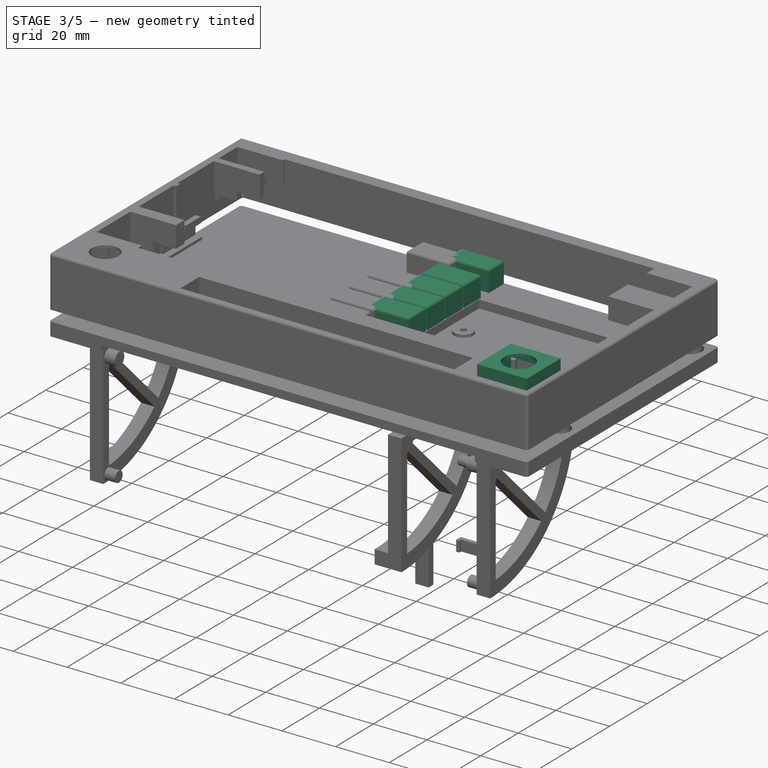
[diagram: stage 3 of 5 — iso view after this stage's code; geometry added in this stage tinted green]
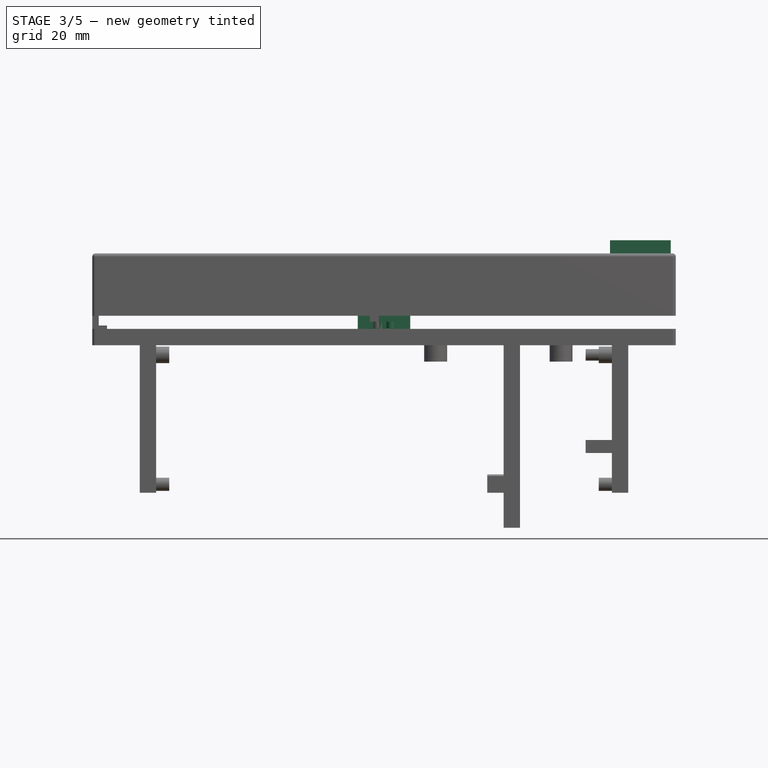
[diagram: stage 3 of 5 — front view after this stage's code; geometry added in this stage tinted green]
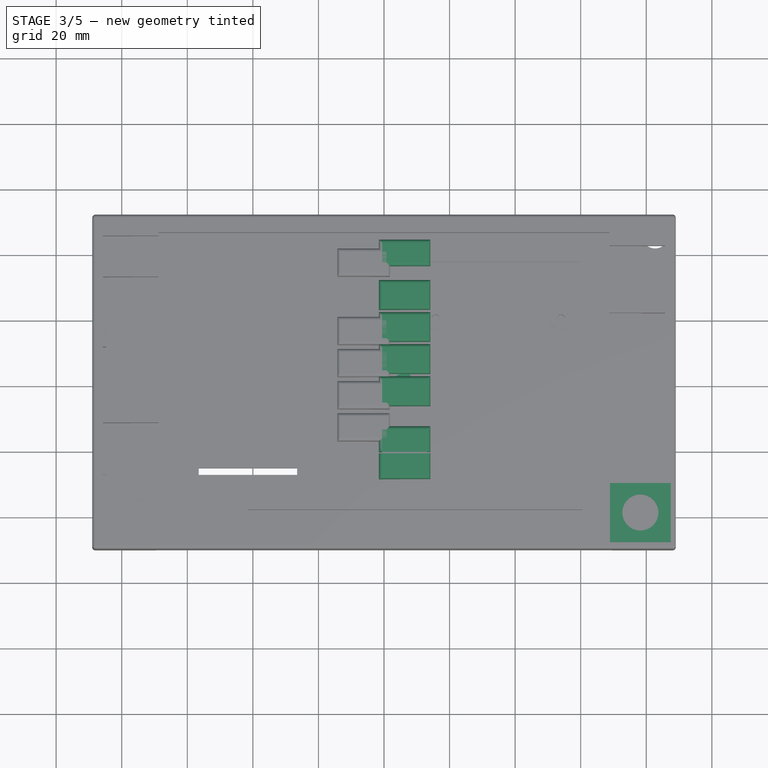
[diagram: stage 3 of 5 — top view after this stage's code; geometry added in this stage tinted green]
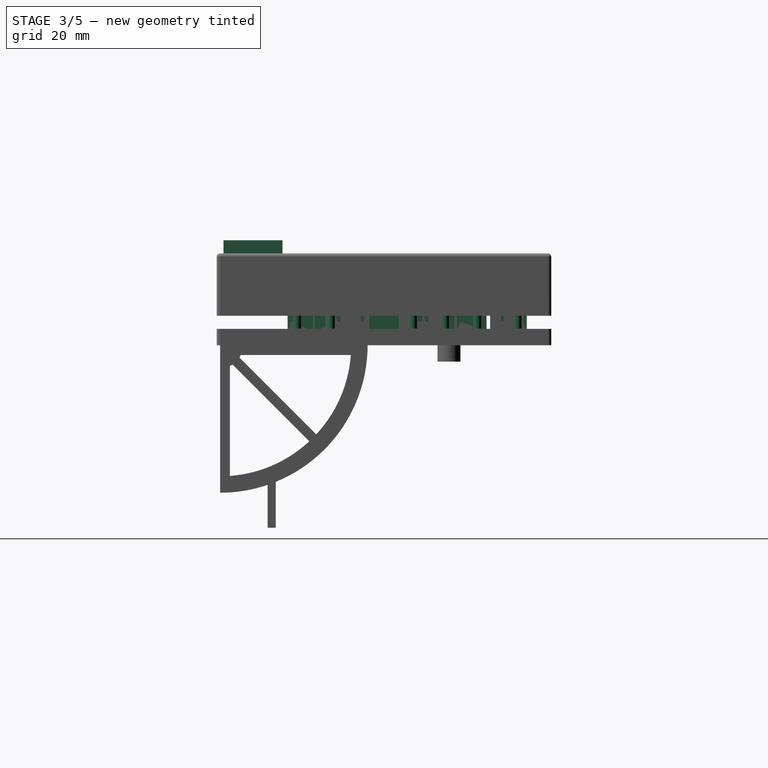
[diagram: stage 3 of 5 — right view after this stage's code; geometry added in this stage tinted green]
FEATURE [Sketcher::SketchObject] Sketch029  label="Left Button Base Sketch"
  ArcFitTolerance = 1e-06
  AttachmentSupport = -> [XY_Plane007]
  FullyConstrained = true
  MakeInternals = false
  MapMode = 5
  sketch-geometry (34):
    g0: LineSegment [constr] StartX=3.9 StartY=48.76 StartZ=0 EndX=-3.7 EndY=48.76 EndZ=0
    g1: LineSegment [constr] StartX=-3.7 StartY=48.76 StartZ=0 EndX=-3.7 EndY=44.56 EndZ=0
    g2: LineSegment [constr] StartX=-3.7 StartY=44.56 StartZ=0 EndX=3.9 EndY=44.56 EndZ=0
    g3: LineSegment StartX=3.9 StartY=44.56 StartZ=0 EndX=3.9 EndY=48.76 EndZ=0
    g4: LineSegment StartX=3.9 StartY=48.76 StartZ=0 EndX=-2.9 EndY=48.76 EndZ=0
    g5: ArcOfCircle CenterX=-2.9 CenterY=47.96 CenterZ=0 NormalX=0 NormalY=0 NormalZ=1 AngleXU=0 Radius=0.8 StartAngle=1.5708 EndAngle=3.14159
    g6: LineSegment [constr] StartX=-2.9 StartY=48.76 StartZ=0 EndX=-2.9 EndY=47.96 EndZ=0
    g7: LineSegment [constr] StartX=-2.9 StartY=47.96 StartZ=0 EndX=-3.7 EndY=47.96 EndZ=0
    g8: LineSegment StartX=-3.7 StartY=47.96 StartZ=0 EndX=-3.7 EndY=-32.64 EndZ=0
    g9: LineSegment StartX=-3.7 StartY=-32.64 StartZ=0 EndX=4.8 EndY=-32.64 EndZ=0
    g10: LineSegment StartX=4.8 StartY=-32.64 StartZ=0 EndX=4.8 EndY=-30.34 EndZ=0
    g11: LineSegment StartX=4.8 StartY=-30.34 StartZ=0 EndX=-2.56 EndY=-30.34 EndZ=0
    g12: LineSegment [constr] StartX=-2.56 StartY=-30.34 StartZ=0 EndX=-3.7 EndY=-30.34 EndZ=0
    g13: LineSegment StartX=-2.56 StartY=-30.34 StartZ=0 EndX=-2.56 EndY=-12.44 EndZ=0
    g14: LineSegment StartX=-2.56 StartY=-12.44 StartZ=0 EndX=3.89 EndY=-12.44 EndZ=0
    g15: LineSegment StartX=3.89 StartY=-12.44 StartZ=0 EndX=3.89 EndY=-7.94 EndZ=0
    g16: LineSegment StartX=3.89 StartY=-7.94 StartZ=0 EndX=-2.56 EndY=-7.94 EndZ=0
    g17: LineSegment [constr] StartX=-2.56 StartY=-7.94 StartZ=0 EndX=-2.56 EndY=-12.44 EndZ=0
    g18: LineSegment StartX=-2.56 StartY=-7.94 StartZ=0 EndX=-2.56 EndY=44.56 EndZ=0
    g19: LineSegment StartX=-2.56 StartY=44.56 StartZ=0 EndX=3.9 EndY=44.56 EndZ=0
    g20: LineSegment StartX=1.84 StartY=-9.49 StartZ=0 EndX=-1.56 EndY=-9.49 EndZ=0
    g21: LineSegment [constr] StartX=-1.56 StartY=-9.49 StartZ=0 EndX=-1.56 EndY=-10.89 EndZ=0
    g22: LineSegment StartX=-1.56 StartY=-10.89 StartZ=0 EndX=1.84 EndY=-10.89 EndZ=0
    g23: LineSegment [constr] StartX=1.84 StartY=-10.89 StartZ=0 EndX=1.84 EndY=-9.49 EndZ=0
    g24: LineSegment [constr] StartX=-2.56 StartY=-10.19 StartZ=0 EndX=-1.56 EndY=-10.19 EndZ=0
    g25: ArcOfCircle CenterX=1.84 CenterY=-10.19 CenterZ=0 NormalX=0 NormalY=0 NormalZ=1 AngleXU=0 Radius=0.7 StartAngle=4.71239 EndAngle=7.85398
    g26: ArcOfCircle CenterX=-1.56 CenterY=-10.19 CenterZ=0 NormalX=0 NormalY=0 NormalZ=1 AngleXU=0 Radius=0.7 StartAngle=1.5708 EndAngle=4.71239
    g27: LineSegment StartX=1.9 StartY=47.71 StartZ=0 EndX=-1.6 EndY=47.71 EndZ=0
    g28: LineSegment [constr] StartX=-1.6 StartY=47.71 StartZ=0 EndX=-1.6 EndY=45.51 EndZ=0
    g29: LineSegment StartX=-1.6 StartY=45.51 StartZ=0 EndX=1.9 EndY=45.51 EndZ=0
    g30: LineSegment [constr] StartX=1.9 StartY=45.51 StartZ=0 EndX=1.9 EndY=47.71 EndZ=0
    g31: ArcOfCircle CenterX=1.9 CenterY=46.61 CenterZ=0 NormalX=0 NormalY=0 NormalZ=1 AngleXU=0 Radius=1.1 StartAngle=4.71239 EndAngle=7.85398
    g32: ArcOfCircle CenterX=-1.6 CenterY=46.61 CenterZ=0 NormalX=0 NormalY=0 NormalZ=1 AngleXU=0 Radius=1.1 StartAngle=1.5708 EndAngle=4.71239
    g33: LineSegment [constr] StartX=3.9 StartY=46.61 StartZ=0 EndX=1.9 EndY=46.61 EndZ=0
  constraints (98):
    c: Coincident(g0,g1)
    c: Coincident(g1,g2)
    c: Coincident(g2,g3)
    c: Coincident(g3,g0)
    c: Horizontal(g0)
    c: Horizontal(g2)
    c: Vertical(g1)
    c: Vertical(g3)
    c: DistanceY(g-1,g2) = 44.56
    c: DistanceX(g-1,g2) = 3.9
    c: DistanceY(g3,g3) = 4.2
    c: DistanceX(g2,g2) = 7.6
    c: Coincident(g4,g0)
    c: Horizontal(g4)
    c: Coincident(g5,g4)
    c: PointOnObject(g5,g1)
    c: Coincident(g6,g5)
    c: Vertical(g6)
    c: Coincident(g7,g6)
    c: Coincident(g7,g5)
    c: Horizontal(g7)
    c: Coincident(g5,g6)
    c: DistanceY(g6,g6) = 0.8
    c: Coincident(g8,g5)
    c: Vertical(g8)
    c: DistanceY(g8,g8) = 80.6
    c: Coincident(g9,g8)
    c: Horizontal(g9)
    c: DistanceX(g9,g9) = 8.5
    c: Coincident(g10,g9)
    c: Vertical(g10)
    c: DistanceY(g10,g10) = 2.3
    c: Coincident(g11,g10)
    c: Horizontal(g11)
    c: Coincident(g12,g11)
    c: PointOnObject(g12,g8)
    c: Horizontal(g12)
    c: DistanceX(g12,g12) = 1.14
    c: Coincident(g13,g11)
    c: Vertical(g13)
    c: DistanceY(g13,g13) = 17.9
    c: Coincident(g14,g13)
    c: Horizontal(g14)
    c: DistanceX(g14,g14) = 6.45
    c: Coincident(g15,g14)
    c: Vertical(g15)
    c: Coincident(g16,g15)
    c: Horizontal(g16)
    c: Coincident(g17,g16)
    c: Coincident(g17,g13)
    c: Vertical(g17)
    c: DistanceY(g15,g15) = 4.5
    c: Coincident(g18,g16)
    c: Vertical(g18)
    c: Coincident(g19,g18)
    c: Coincident(g19,g2)
    c: Horizontal(g19)
    c: Coincident(g20,g21)
    c: Coincident(g21,g22)
    c: Coincident(g22,g23)
    c: Coincident(g23,g20)
    c: Horizontal(g20)
    c: Horizontal(g22)
    c: Vertical(g21)
    c: Vertical(g23)
    c: Symmetric(g17,g17,g24)
    c: Symmetric(g21,g21,g24)
    c: Horizontal(g24)
    c: DistanceX(g20,g20) = 3.4
    c: DistanceX(g24,g24) = 1
    c: Coincident(g25,g20)
    c: Coincident(g25,g22)
    c: PointOnObject(g25,g23)
    c: Coincident(g26,g20)
    c: Coincident(g26,g21)
    c: PointOnObject(g26,g21)
    c: DistanceY(g21,g21) = 1.4
    c: Coincident(g27,g28)
    c: Coincident(g28,g29)
    c: Coincident(g29,g30)
    c: Coincident(g30,g27)
    c: Horizontal(g27)
    c: Horizontal(g29)
    c: Vertical(g28)
    c: Vertical(g30)
    c: Coincident(g31,g27)
    c: Coincident(g31,g29)
    c: Coincident(g32,g27)
    c: Coincident(g32,g28)
    c: PointOnObject(g32,g28)
    c: PointOnObject(g31,g30)
    c: Symmetric(g30,g30,g33)
    c: Horizontal(g33)
    c: PointOnObject(g33,g3)
    c: DistanceY(g33,g0) = 2.15
    c: DistanceY(g28,g28) = 2.2
    c: DistanceX(g33,g33) = 2
    c: DistanceX(g27,g27) = 3.5
FEATURE [PartDesign::Pad] Pad016  label="Left Button Base"
  Direction = (0,0,1)
  Length = 2
  Length2 = 10
  Profile = -> Sketch029
  ReferenceAxis = -> Sketch029 [N_Axis]
  Refine = true
  Reversed = true
  Suppressed = false
  Type = 0
FEATURE [Sketcher::SketchObject] Sketch030  label="Left Button Arm Sketch"
  ArcFitTolerance = 1e-06
  AttachmentSupport = -> [Pad016]
  ExternalGeometry = -> [Pad016]
  FullyConstrained = true
  MakeInternals = false
  MapMode = 5
  Placement = pos=(0,0,-2) rot=(1,0,0;3.14159rad)
  sketch-geometry (41):
    g0: LineSegment StartX=3.9 StartY=-44.56 StartZ=0 EndX=3.9 EndY=-43.56 EndZ=0
    g1: LineSegment StartX=3.9 StartY=-43.56 StartZ=0 EndX=-0.6 EndY=-43.56 EndZ=0
    g2: LineSegment StartX=-0.6 StartY=-43.56 StartZ=0 EndX=-0.6 EndY=-44.56 EndZ=0
    g3: LineSegment StartX=-0.6 StartY=-44.56 StartZ=0 EndX=3.9 EndY=-44.56 EndZ=0
    g4: LineSegment StartX=-2.56 StartY=5.14 StartZ=0 EndX=-2.56 EndY=0.14 EndZ=0
    g5: LineSegment StartX=-2.56 StartY=0.14 StartZ=0 EndX=-1.56 EndY=0.14 EndZ=0
    g6: LineSegment StartX=-1.56 StartY=0.14 StartZ=0 EndX=-1.56 EndY=5.14 EndZ=0
    g7: LineSegment StartX=-1.56 StartY=5.14 StartZ=0 EndX=-2.56 EndY=5.14 EndZ=0
    g8: LineSegment StartX=-2.56 StartY=-4.66 StartZ=0 EndX=-2.56 EndY=-9.66 EndZ=0
    g9: LineSegment StartX=-2.56 StartY=-9.66 StartZ=0 EndX=-1.56 EndY=-9.66 EndZ=0
    g10: LineSegment StartX=-1.56 StartY=-9.66 StartZ=0 EndX=-1.56 EndY=-4.66 EndZ=0
    g11: LineSegment StartX=-1.56 StartY=-4.66 StartZ=0 EndX=-2.56 EndY=-4.66 EndZ=0
    g12: LineSegment StartX=-2.56 StartY=-14.46 StartZ=0 EndX=-2.56 EndY=-19.46 EndZ=0
    g13: LineSegment StartX=-2.56 StartY=-19.46 StartZ=0 EndX=-1.56 EndY=-19.46 EndZ=0
    g14: LineSegment StartX=-1.56 StartY=-19.46 StartZ=0 EndX=-1.56 EndY=-14.46 EndZ=0
    g15: LineSegment StartX=-1.56 StartY=-14.46 StartZ=0 EndX=-2.56 EndY=-14.46 EndZ=0
    g16: LineSegment StartX=-2.56 StartY=-24.26 StartZ=0 EndX=-2.56 EndY=-29.26 EndZ=0
    g17: LineSegment StartX=-2.56 StartY=-29.26 StartZ=0 EndX=-1.56 EndY=-29.26 EndZ=0
    g18: LineSegment StartX=-1.56 StartY=-29.26 StartZ=0 EndX=-1.56 EndY=-24.26 EndZ=0
    g19: LineSegment StartX=-1.56 StartY=-24.26 StartZ=0 EndX=-2.56 EndY=-24.26 EndZ=0
    g20: LineSegment [constr] StartX=-2.56 StartY=-32.06 StartZ=0 EndX=-2.56 EndY=-34.56 EndZ=0
    g21: LineSegment [constr] StartX=-2.56 StartY=-34.56 StartZ=0 EndX=3.44 EndY=-34.56 EndZ=0
    g22: LineSegment [constr] StartX=3.44 StartY=-34.56 StartZ=0 EndX=3.44 EndY=-32.06 EndZ=0
    g23: LineSegment [constr] StartX=3.44 StartY=-32.06 StartZ=0 EndX=-2.56 EndY=-32.06 EndZ=0
    g24: LineSegment [constr] StartX=-1.56 StartY=-29.26 StartZ=0 EndX=-1.56 EndY=-32.06 EndZ=0
    g25: LineSegment [constr] StartX=-1.56 StartY=-24.26 StartZ=0 EndX=-1.56 EndY=-19.46 EndZ=0
    g26: LineSegment [constr] StartX=-1.56 StartY=-14.46 StartZ=0 EndX=-1.56 EndY=-9.66 EndZ=0
    g27: LineSegment [constr] StartX=-1.56 StartY=-4.66 StartZ=0 EndX=-1.56 EndY=0.14 EndZ=0
    g28: LineSegment [constr] StartX=-1.56 StartY=5.14 StartZ=0 EndX=-1.56 EndY=7.94 EndZ=0
    g29: LineSegment StartX=-2.56 StartY=27.89 StartZ=0 EndX=-2.56 EndY=22.89 EndZ=0
    g30: LineSegment StartX=-2.56 StartY=22.89 StartZ=0 EndX=-1.56 EndY=22.89 EndZ=0
    g31: LineSegment StartX=-1.56 StartY=22.89 StartZ=0 EndX=-1.56 EndY=27.89 EndZ=0
    g32: LineSegment StartX=-1.56 StartY=27.89 StartZ=0 EndX=-2.56 EndY=27.89 EndZ=0
    g33: LineSegment StartX=-2.56 StartY=19.89 StartZ=0 EndX=-2.56 EndY=14.89 EndZ=0
    g34: LineSegment StartX=-2.56 StartY=14.89 StartZ=0 EndX=-1.56 EndY=14.89 EndZ=0
    g35: LineSegment StartX=-1.56 StartY=14.89 StartZ=0 EndX=-1.56 EndY=19.89 EndZ=0
    g36: LineSegment StartX=-1.56 StartY=19.89 StartZ=0 EndX=-2.56 EndY=19.89 EndZ=0
    g37: LineSegment [constr] StartX=-1.56 StartY=7.94 StartZ=0 EndX=-1.56 EndY=12.44 EndZ=0
    g38: LineSegment [constr] StartX=-1.56 StartY=12.44 StartZ=0 EndX=-1.56 EndY=14.89 EndZ=0
    g39: LineSegment [constr] StartX=-1.56 StartY=19.89 StartZ=0 EndX=-1.56 EndY=22.89 EndZ=0
    g40: LineSegment [constr] StartX=-1.56 StartY=27.89 StartZ=0 EndX=-1.56 EndY=30.34 EndZ=0
  constraints (117):
    c: Coincident(g0,g1)
    c: Coincident(g1,g2)
    c: Coincident(g2,g3)
    c: Coincident(g3,g0)
    c: Vertical(g0)
    c: Vertical(g2)
    c: Horizontal(g1)
    c: Horizontal(g3)
    c: Coincident(g0,g-3)
    c: DistanceX(g1,g1) = 4.5
    c: DistanceY(g0,g0) = 1
    c: Coincident(g4,g5)
    c: Coincident(g5,g6)
    c: Coincident(g6,g7)
    c: Coincident(g7,g4)
    c: Vertical(g4)
    c: Vertical(g6)
    c: Horizontal(g5)
    c: Horizontal(g7)
    c: PointOnObject(g4,g-4)
    c: Coincident(g8,g9)
    c: Coincident(g9,g10)
    c: Coincident(g10,g11)
    c: Coincident(g11,g8)
    c: Vertical(g8)
    c: Vertical(g10)
    c: Horizontal(g9)
    c: Horizontal(g11)
    c: PointOnObject(g8,g-4)
    c: Coincident(g12,g13)
    c: Coincident(g13,g14)
    c: Coincident(g14,g15)
    c: Coincident(g15,g12)
    c: Vertical(g12)
    c: Vertical(g14)
    c: Horizontal(g13)
    c: Horizontal(g15)
    c: PointOnObject(g12,g-4)
    c: Coincident(g16,g17)
    c: Coincident(g17,g18)
    c: Coincident(g18,g19)
    c: Coincident(g19,g16)
    c: Vertical(g16)
    c: Vertical(g18)
    c: Horizontal(g17)
    c: Horizontal(g19)
    c: PointOnObject(g16,g-4)
    c: Coincident(g20,g21)
    c: Coincident(g21,g22)
    c: Coincident(g22,g23)
    c: Coincident(g23,g20)
    c: Vertical(g20)
    c: Vertical(g22)
    c: Horizontal(g21)
    c: Horizontal(g23)
    c: PointOnObject(g20,g-4)
    c: DistanceY(g-4,g20) = 12.5
    c: DistanceY(g22,g22) = 2.5
    c: DistanceX(g21,g21) = 6
    c: Coincident(g24,g17)
    c: PointOnObject(g24,g23)
    c: Vertical(g24)
    c: Coincident(g25,g18)
    c: Coincident(g25,g13)
    c: Vertical(g25)
    c: Coincident(g26,g14)
    c: Coincident(g26,g9)
    c: Vertical(g26)
    c: Coincident(g27,g10)
    c: Coincident(g27,g5)
    c: Vertical(g27)
    c: Coincident(g28,g6)
    c: PointOnObject(g28,g-5)
    c: Vertical(g28)
    c: DistanceX(g7,g7) = 1
    c: Equal(g6,g10)
    c: Equal(g10,g14)
    c: Equal(g14,g18)
    c: Equal(g26,g25)
    c: Equal(g25,g27)
    c: DistanceY(g6,g6) = 5
    c: Equal(g24,g28)
    c: DistanceY(g27,g27) = 4.8
    c: Coincident(g29,g30)
    c: Coincident(g30,g31)
    c: Coincident(g31,g32)
    c: Coincident(g32,g29)
    c: Vertical(g29)
    c: Vertical(g31)
    c: Horizontal(g30)
    c: Horizontal(g32)
    c: PointOnObject(g29,g-8)
    c: Coincident(g33,g34)
    c: Coincident(g34,g35)
    c: Coincident(g35,g36)
    c: Vertical(g33)
    c: Vertical(g35)
    c: Horizontal(g34)
    c: Horizontal(g36)
    c: Coincident(g37,g28)
    c: PointOnObject(g37,g-6)
    c: Vertical(g37)
    c: Coincident(g38,g37)
    c: Coincident(g38,g34)
    c: Vertical(g38)
    c: Coincident(g39,g35)
    c: Coincident(g39,g30)
    c: Vertical(g39)
    c: Coincident(g40,g31)
    c: PointOnObject(g40,g-7)
    c: Vertical(g40)
    c: Equal(g31,g35)
    c: Coincident(g36,g33)
    c: PointOnObject(g33,g-8)
    c: DistanceY(g31,g31) = 5
    c: DistanceY(g39,g39) = 3
    c: Equal(g40,g38)
FEATURE [PartDesign::Pad] Pad017  label="Left Button Arm"
  BaseFeature = -> Pad016
  Direction = (0,0,-1)
  Length = 1
  Length2 = 10
  Profile = -> Sketch030
  ReferenceAxis = -> Sketch030 [N_Axis]
  Refine = true
  Reversed = true
  Suppressed = false
  Type = 0
FEATURE [Sketcher::SketchObject] Sketch031  label="Left Button Extrusions Sketch"
  ArcFitTolerance = 1e-06
  AttachmentSupport = -> [Pad017]
  ExternalGeometry = -> [Pad017]
  FullyConstrained = true
  MakeInternals = false
  MapMode = 5
  Placement = pos=(0,0,-2) rot=(1,0,0;3.14159rad)
  sketch-geometry (37):
    g0: LineSegment StartX=-1.56 StartY=7.14 StartZ=0 EndX=-1.56 EndY=-1.86 EndZ=0
    g1: LineSegment StartX=-1.56 StartY=-1.86 StartZ=0 EndX=14.14 EndY=-1.86 EndZ=0
    g2: LineSegment StartX=14.14 StartY=-1.86 StartZ=0 EndX=14.14 EndY=7.14 EndZ=0
    g3: LineSegment StartX=14.14 StartY=7.14 StartZ=0 EndX=-1.56 EndY=7.14 EndZ=0
    g4: LineSegment [constr] StartX=-1.56 StartY=7.14 StartZ=0 EndX=-1.56 EndY=5.14 EndZ=0
    g5: LineSegment [constr] StartX=-1.56 StartY=0.14 StartZ=0 EndX=-1.56 EndY=-1.86 EndZ=0
    g6: LineSegment StartX=-1.56 StartY=-2.66 StartZ=0 EndX=-1.56 EndY=-11.66 EndZ=0
    g7: LineSegment StartX=-1.56 StartY=-11.66 StartZ=0 EndX=14.14 EndY=-11.66 EndZ=0
    g8: LineSegment StartX=14.14 StartY=-11.66 StartZ=0 EndX=14.14 EndY=-2.66 EndZ=0
    g9: LineSegment StartX=14.14 StartY=-2.66 StartZ=0 EndX=-1.56 EndY=-2.66 EndZ=0
    g10: LineSegment [constr] StartX=-1.56 StartY=-2.66 StartZ=0 EndX=-1.56 EndY=-4.66 EndZ=0
    g11: LineSegment [constr] StartX=-1.56 StartY=-9.66 StartZ=0 EndX=-1.56 EndY=-11.66 EndZ=0
    g12: LineSegment StartX=-1.56 StartY=-12.46 StartZ=0 EndX=-1.56 EndY=-21.46 EndZ=0
    g13: LineSegment StartX=-1.56 StartY=-21.46 StartZ=0 EndX=14.14 EndY=-21.46 EndZ=0
    g14: LineSegment StartX=14.14 StartY=-21.46 StartZ=0 EndX=14.14 EndY=-12.46 EndZ=0
    g15: LineSegment StartX=14.14 StartY=-12.46 StartZ=0 EndX=-1.56 EndY=-12.46 EndZ=0
    g16: LineSegment [constr] StartX=-1.56 StartY=-12.46 StartZ=0 EndX=-1.56 EndY=-14.46 EndZ=0
    g17: LineSegment [constr] StartX=-1.56 StartY=-19.46 StartZ=0 EndX=-1.56 EndY=-21.46 EndZ=0
    g18: LineSegment StartX=-1.56 StartY=-22.26 StartZ=0 EndX=-1.56 EndY=-31.26 EndZ=0
    g19: LineSegment StartX=-1.56 StartY=-31.26 StartZ=0 EndX=14.14 EndY=-31.26 EndZ=0
    g20: LineSegment StartX=14.14 StartY=-31.26 StartZ=0 EndX=14.14 EndY=-22.26 EndZ=0
    g21: LineSegment StartX=14.14 StartY=-22.26 StartZ=0 EndX=-1.56 EndY=-22.26 EndZ=0
    g22: LineSegment [constr] StartX=-1.56 StartY=-24.26 StartZ=0 EndX=-1.56 EndY=-22.26 EndZ=0
    g23: LineSegment [constr] StartX=-1.56 StartY=-29.26 StartZ=0 EndX=-1.56 EndY=-31.26 EndZ=0
    g24: LineSegment StartX=-1.56 StartY=-35.56 StartZ=0 EndX=-1.56 EndY=-43.56 EndZ=0
    g25: LineSegment StartX=-1.56 StartY=-43.56 StartZ=0 EndX=14.14 EndY=-43.56 EndZ=0
    g26: LineSegment StartX=14.14 StartY=-43.56 StartZ=0 EndX=14.14 EndY=-35.56 EndZ=0
    g27: LineSegment StartX=14.14 StartY=-35.56 StartZ=0 EndX=-1.56 EndY=-35.56 EndZ=0
    g28: LineSegment [constr] StartX=-1.56 StartY=-35.56 StartZ=0 EndX=-1.56 EndY=-31.26 EndZ=0
    g29: LineSegment [constr] StartX=14.14 StartY=-31.26 StartZ=0 EndX=14.14 EndY=-35.56 EndZ=0
    g30: LineSegment StartX=-1.56 StartY=29.39 StartZ=0 EndX=-1.56 EndY=13.39 EndZ=0
    g31: LineSegment StartX=-1.56 StartY=13.39 StartZ=0 EndX=14.14 EndY=13.39 EndZ=0
    g32: LineSegment StartX=14.14 StartY=13.39 StartZ=0 EndX=14.14 EndY=29.39 EndZ=0
    g33: LineSegment StartX=14.14 StartY=29.39 StartZ=0 EndX=-1.56 EndY=29.39 EndZ=0
    g34: LineSegment [constr] StartX=14.14 StartY=13.39 StartZ=0 EndX=14.14 EndY=7.14 EndZ=0
    g35: LineSegment [constr] StartX=-1.56 StartY=13.39 StartZ=0 EndX=-1.56 EndY=14.89 EndZ=0
    g36: LineSegment [constr] StartX=-1.56 StartY=29.39 StartZ=0 EndX=-1.56 EndY=27.89 EndZ=0
  constraints (96):
    c: Coincident(g0,g1)
    c: Coincident(g1,g2)
    c: Coincident(g2,g3)
    c: Coincident(g3,g0)
    c: Vertical(g0)
    c: Vertical(g2)
    c: Horizontal(g1)
    c: Horizontal(g3)
    c: PointOnObject(g-3,g0)
    c: Coincident(g4,g0)
    c: Coincident(g4,g-3)
    c: Coincident(g5,g-3)
    c: Coincident(g5,g0)
    c: Equal(g4,g5)
    c: DistanceY(g2,g2) = 9
    c: DistanceX(g1,g1) = 15.7
    c: Coincident(g6,g7)
    c: Coincident(g7,g8)
    c: Coincident(g8,g9)
    c: Coincident(g9,g6)
    c: Vertical(g6)
    c: Vertical(g8)
    c: Horizontal(g7)
    c: Horizontal(g9)
    c: Equal(g8,g2)
    c: Equal(g1,g7)
    c: Coincident(g10,g6)
    c: Coincident(g10,g-6)
    c: Coincident(g11,g-6)
    c: Coincident(g11,g6)
    c: Equal(g11,g10)
    c: PointOnObject(g10,g6)
    c: Coincident(g12,g13)
    c: Coincident(g13,g14)
    c: Coincident(g14,g15)
    c: Coincident(g15,g12)
    c: Vertical(g12)
    c: Vertical(g14)
    c: Horizontal(g13)
    c: Horizontal(g15)
    c: Equal(g13,g7)
    c: Equal(g14,g8)
    c: Coincident(g16,g12)
    c: Coincident(g16,g-7)
    c: Coincident(g17,g-7)
    c: Coincident(g17,g12)
    c: Equal(g17,g16)
    c: PointOnObject(g16,g12)
    c: Coincident(g18,g19)
    c: Coincident(g19,g20)
    c: Coincident(g20,g21)
    c: Coincident(g21,g18)
    c: Vertical(g18)
    c: Vertical(g20)
    c: Horizontal(g19)
    c: Horizontal(g21)
    c: Equal(g20,g14)
    c: Equal(g19,g13)
    c: Coincident(g22,g-8)
    c: Coincident(g22,g18)
    c: Coincident(g23,g-8)
    c: Coincident(g23,g18)
    c: Equal(g23,g22)
    c: PointOnObject(g22,g18)
    c: Coincident(g24,g25)
    c: Coincident(g25,g26)
    c: Coincident(g26,g27)
    c: Coincident(g27,g24)
    c: Vertical(g24)
    c: Vertical(g26)
    c: Horizontal(g27)
    c: Equal(g25,g19)
    c: Tangent(g25,g-9)
    c: Coincident(g28,g24)
    c: Coincident(g28,g18)
    c: Vertical(g28)
    c: Coincident(g29,g19)
    c: Coincident(g29,g26)
    c: DistanceY(g26,g26) = 8
    c: Coincident(g30,g31)
    c: Coincident(g31,g32)
    c: Coincident(g32,g33)
    c: Coincident(g33,g30)
    c: Vertical(g32)
    c: Horizontal(g31)
    c: Horizontal(g33)
    c: Coincident(g34,g31)
    c: Coincident(g34,g2)
    c: Vertical(g34)
    c: Coincident(g35,g30)
    c: Coincident(g35,g-4)
    c: Coincident(g36,g30)
    c: Coincident(g36,g-5)
    c: Equal(g36,g35)
    c: Tangent(g30,g-5)
    c: DistanceY(g32,g32) = 16
FEATURE [PartDesign::Pad] Pad018  label="Left Button Extrusions"
  BaseFeature = -> Pad017
  Direction = (0,0,-1)
  Length = 14
  Length2 = 10
  Profile = -> Sketch031
  ReferenceAxis = -> Sketch031 [N_Axis]
  Refine = true
  Reversed = true
  Suppressed = false
  Type = 0
FEATURE [Sketcher::SketchObject] Sketch032  label="Left Button Shell Sketch"
  ArcFitTolerance = 1e-06
  AttachmentSupport = -> [Pad018]
  ExternalGeometry = -> [Pad018]
  FullyConstrained = true
  MakeInternals = false
  MapMode = 5
  Placement = pos=(0,0,-2) rot=(1,0,0;3.14159rad)
  sketch-geometry (72):
    g0: LineSegment StartX=-0.56 StartY=-36.56 StartZ=0 EndX=-0.56 EndY=-42.56 EndZ=0
    g1: LineSegment StartX=-0.56 StartY=-42.56 StartZ=0 EndX=13.14 EndY=-42.56 EndZ=0
    g2: LineSegment StartX=13.14 StartY=-42.56 StartZ=0 EndX=13.14 EndY=-36.56 EndZ=0
    g3: LineSegment StartX=13.14 StartY=-36.56 StartZ=0 EndX=-0.56 EndY=-36.56 EndZ=0
    g4: LineSegment [constr] StartX=-1.56 StartY=-35.56 StartZ=0 EndX=-1.56 EndY=-36.56 EndZ=0
    g5: LineSegment [constr] StartX=-1.56 StartY=-36.56 StartZ=0 EndX=-0.56 EndY=-36.56 EndZ=0
    g6: LineSegment [constr] StartX=-0.56 StartY=-36.56 StartZ=0 EndX=-0.56 EndY=-35.56 EndZ=0
    g7: LineSegment [constr] StartX=-0.56 StartY=-35.56 StartZ=0 EndX=-1.56 EndY=-35.56 EndZ=0
    g8: LineSegment [constr] StartX=13.14 StartY=-42.56 StartZ=0 EndX=13.14 EndY=-43.56 EndZ=0
    g9: LineSegment [constr] StartX=13.14 StartY=-43.56 StartZ=0 EndX=14.14 EndY=-43.56 EndZ=0
    g10: LineSegment [constr] StartX=14.14 StartY=-43.56 StartZ=0 EndX=14.14 EndY=-42.56 EndZ=0
    g11: LineSegment [constr] StartX=14.14 StartY=-42.56 StartZ=0 EndX=13.14 EndY=-42.56 EndZ=0
    g12: LineSegment StartX=-0.56 StartY=-23.26 StartZ=0 EndX=-0.56 EndY=-30.26 EndZ=0
    g13: LineSegment StartX=-0.56 StartY=-30.26 StartZ=0 EndX=13.14 EndY=-30.26 EndZ=0
    g14: LineSegment StartX=13.14 StartY=-30.26 StartZ=0 EndX=13.14 EndY=-23.26 EndZ=0
    g15: LineSegment StartX=13.14 StartY=-23.26 StartZ=0 EndX=-0.56 EndY=-23.26 EndZ=0
    g16: LineSegment StartX=-0.56 StartY=-13.46 StartZ=0 EndX=-0.56 EndY=-20.46 EndZ=0
    g17: LineSegment StartX=-0.56 StartY=-20.46 StartZ=0 EndX=13.14 EndY=-20.46 EndZ=0
    g18: LineSegment StartX=13.14 StartY=-20.46 StartZ=0 EndX=13.14 EndY=-13.46 EndZ=0
    g19: LineSegment StartX=13.14 StartY=-13.46 StartZ=0 EndX=-0.56 EndY=-13.46 EndZ=0
    g20: LineSegment StartX=-0.56 StartY=-3.66 StartZ=0 EndX=-0.56 EndY=-10.66 EndZ=0
    g21: LineSegment StartX=-0.56 StartY=-10.66 StartZ=0 EndX=13.14 EndY=-10.66 EndZ=0
    g22: LineSegment StartX=13.14 StartY=-10.66 StartZ=0 EndX=13.14 EndY=-3.66 EndZ=0
    g23: LineSegment StartX=13.14 StartY=-3.66 StartZ=0 EndX=-0.56 EndY=-3.66 EndZ=0
    g24: LineSegment StartX=-0.56 StartY=6.14 StartZ=0 EndX=-0.56 EndY=-0.86 EndZ=0
    g25: LineSegment StartX=-0.56 StartY=-0.86 StartZ=0 EndX=13.14 EndY=-0.86 EndZ=0
    g26: LineSegment StartX=13.14 StartY=-0.86 StartZ=0 EndX=13.14 EndY=6.14 EndZ=0
    g27: LineSegment StartX=13.14 StartY=6.14 StartZ=0 EndX=-0.56 EndY=6.14 EndZ=0
    g28: LineSegment [constr] StartX=-1.56 StartY=-22.26 StartZ=0 EndX=-1.56 EndY=-23.26 EndZ=0
    g29: LineSegment [constr] StartX=-1.56 StartY=-23.26 StartZ=0 EndX=-0.56 EndY=-23.26 EndZ=0
    g30: LineSegment [constr] StartX=-0.56 StartY=-23.26 StartZ=0 EndX=-0.56 EndY=-22.26 EndZ=0
    g31: LineSegment [constr] StartX=-0.56 StartY=-22.26 StartZ=0 EndX=-1.56 EndY=-22.26 EndZ=0
    g32: LineSegment [constr] StartX=13.14 StartY=-30.26 StartZ=0 EndX=13.14 EndY=-31.26 EndZ=0
    g33: LineSegment [constr] StartX=13.14 StartY=-31.26 StartZ=0 EndX=14.14 EndY=-31.26 EndZ=0
    g34: LineSegment [constr] StartX=14.14 StartY=-31.26 StartZ=0 EndX=14.14 EndY=-30.26 EndZ=0
    g35: LineSegment [constr] StartX=14.14 StartY=-30.26 StartZ=0 EndX=13.14 EndY=-30.26 EndZ=0
    g36: LineSegment [constr] StartX=-1.56 StartY=-12.46 StartZ=0 EndX=-1.56 EndY=-13.46 EndZ=0
    g37: LineSegment [constr] StartX=-1.56 StartY=-13.46 StartZ=0 EndX=-0.56 EndY=-13.46 EndZ=0
    g38: LineSegment [constr] StartX=-0.56 StartY=-13.46 StartZ=0 EndX=-0.56 EndY=-12.46 EndZ=0
    g39: LineSegment [constr] StartX=-0.56 StartY=-12.46 StartZ=0 EndX=-1.56 EndY=-12.46 EndZ=0
    g40: LineSegment [constr] StartX=13.14 StartY=-20.46 StartZ=0 EndX=13.14 EndY=-21.46 EndZ=0
    g41: LineSegment [constr] StartX=13.14 StartY=-21.46 StartZ=0 EndX=14.14 EndY=-21.46 EndZ=0
    g42: LineSegment [constr] StartX=14.14 StartY=-21.46 StartZ=0 EndX=14.14 EndY=-20.46 EndZ=0
    g43: LineSegment [constr] StartX=14.14 StartY=-20.46 StartZ=0 EndX=13.14 EndY=-20.46 EndZ=0
    g44: LineSegment [constr] StartX=-1.56 StartY=-2.66 StartZ=0 EndX=-1.56 EndY=-3.66 EndZ=0
    g45: LineSegment [constr] StartX=-1.56 StartY=-3.66 StartZ=0 EndX=-0.56 EndY=-3.66 EndZ=0
    g46: LineSegment [constr] StartX=-0.56 StartY=-3.66 StartZ=0 EndX=-0.56 EndY=-2.66 EndZ=0
    g47: LineSegment [constr] StartX=-0.56 StartY=-2.66 StartZ=0 EndX=-1.56 EndY=-2.66 EndZ=0
    g48: LineSegment [constr] StartX=14.14 StartY=-11.66 StartZ=0 EndX=14.14 EndY=-10.66 EndZ=0
    g49: LineSegment [constr] StartX=14.14 StartY=-10.66 StartZ=0 EndX=13.14 EndY=-10.66 EndZ=0
    g50: LineSegment [constr] StartX=13.14 StartY=-10.66 StartZ=0 EndX=13.14 EndY=-11.66 EndZ=0
    g51: LineSegment [constr] StartX=13.14 StartY=-11.66 StartZ=0 EndX=14.14 EndY=-11.66 EndZ=0
    g52: LineSegment [constr] StartX=-1.56 StartY=7.14 StartZ=0 EndX=-1.56 EndY=6.14 EndZ=0
    g53: LineSegment [constr] StartX=-1.56 StartY=6.14 StartZ=0 EndX=-0.56 EndY=6.14 EndZ=0
    g54: LineSegment [constr] StartX=-0.56 StartY=6.14 StartZ=0 EndX=-0.56 EndY=7.14 EndZ=0
    g55: LineSegment [constr] StartX=-0.56 StartY=7.14 StartZ=0 EndX=-1.56 EndY=7.14 EndZ=0
    g56: LineSegment [constr] StartX=13.14 StartY=-0.86 StartZ=0 EndX=13.14 EndY=-1.86 EndZ=0
    g57: LineSegment [constr] StartX=13.14 StartY=-1.86 StartZ=0 EndX=14.14 EndY=-1.86 EndZ=0
    g58: LineSegment [constr] StartX=14.14 StartY=-1.86 StartZ=0 EndX=14.14 EndY=-0.86 EndZ=0
    g59: LineSegment [constr] StartX=14.14 StartY=-0.86 StartZ=0 EndX=13.14 EndY=-0.86 EndZ=0
    g60: LineSegment StartX=-0.56 StartY=28.39 StartZ=0 EndX=-0.56 EndY=14.39 EndZ=0
    g61: LineSegment StartX=-0.56 StartY=14.39 StartZ=0 EndX=13.14 EndY=14.39 EndZ=0
    g62: LineSegment StartX=13.14 StartY=14.39 StartZ=0 EndX=13.14 EndY=28.39 EndZ=0
    g63: LineSegment StartX=13.14 StartY=28.39 StartZ=0 EndX=-0.56 EndY=28.39 EndZ=0
    g64: LineSegment [constr] StartX=-1.56 StartY=29.39 StartZ=0 EndX=-1.56 EndY=28.39 EndZ=0
    g65: LineSegment [constr] StartX=-1.56 StartY=28.39 StartZ=0 EndX=-0.56 EndY=28.39 EndZ=0
    g66: LineSegment [constr] StartX=-0.56 StartY=28.39 StartZ=0 EndX=-0.56 EndY=29.39 EndZ=0
    g67: LineSegment [constr] StartX=-0.56 StartY=29.39 StartZ=0 EndX=-1.56 EndY=29.39 EndZ=0
    g68: LineSegment [constr] StartX=13.14 StartY=14.39 StartZ=0 EndX=13.14 EndY=13.39 EndZ=0
    g69: LineSegment [constr] StartX=13.14 StartY=13.39 StartZ=0 EndX=14.14 EndY=13.39 EndZ=0
    g70: LineSegment [constr] StartX=14.14 StartY=13.39 StartZ=0 EndX=14.14 EndY=14.39 EndZ=0
    g71: LineSegment [constr] StartX=14.14 StartY=14.39 StartZ=0 EndX=13.14 EndY=14.39 EndZ=0
  constraints (192):
    c: Coincident(g0,g1)
    c: Coincident(g1,g2)
    c: Coincident(g2,g3)
    c: Coincident(g3,g0)
    c: Vertical(g0)
    c: Vertical(g2)
    c: Horizontal(g1)
    c: Horizontal(g3)
    c: Coincident(g4,g5)
    c: Coincident(g5,g6)
    c: Coincident(g6,g7)
    c: Coincident(g7,g4)
    c: Vertical(g4)
    c: Vertical(g6)
    c: Horizontal(g5)
    c: Horizontal(g7)
    c: Coincident(g4,g-4)
    c: Coincident(g5,g0)
    c: Coincident(g8,g9)
    c: Coincident(g9,g10)
    c: Coincident(g10,g11)
    c: Coincident(g11,g8)
    c: Vertical(g8)
    c: Vertical(g10)
    c: Horizontal(g9)
    c: Horizontal(g11)
    c: Coincident(g8,g1)
    c: Coincident(g9,g-6)
    c: Equal(g11,g8)
    c: Equal(g8,g5)
    c: Equal(g5,g6)
    c: DistanceX(g5,g5) = 1
    c: Coincident(g12,g13)
    c: Coincident(g13,g14)
    c: Coincident(g14,g15)
    c: Coincident(g15,g12)
    c: Vertical(g12)
    c: Vertical(g14)
    c: Horizontal(g13)
    c: Horizontal(g15)
    c: Coincident(g16,g17)
    c: Coincident(g17,g18)
    c: Coincident(g18,g19)
    c: Coincident(g19,g16)
    c: Vertical(g16)
    c: Vertical(g18)
    c: Horizontal(g17)
    c: Horizontal(g19)
    c: Coincident(g20,g21)
    c: Coincident(g21,g22)
    c: Coincident(g22,g23)
    c: Coincident(g23,g20)
    c: Vertical(g20)
    c: Vertical(g22)
    c: Horizontal(g21)
    c: Horizontal(g23)
    c: Coincident(g24,g25)
    c: Coincident(g25,g26)
    c: Coincident(g26,g27)
    c: Coincident(g27,g24)
    c: Vertical(g24)
    c: Vertical(g26)
    c: Horizontal(g25)
    c: Horizontal(g27)
    c: Coincident(g28,g29)
    c: Coincident(g29,g30)
    c: Coincident(g30,g31)
    c: Coincident(g31,g28)
    c: Vertical(g28)
    c: Vertical(g30)
    c: Horizontal(g29)
    c: Horizontal(g31)
    c: Coincident(g28,g-10)
    c: Coincident(g29,g12)
    c: Coincident(g32,g33)
    c: Coincident(g33,g34)
    c: Coincident(g34,g35)
    c: Coincident(g35,g32)
    c: Vertical(g32)
    c: Vertical(g34)
    c: Horizontal(g33)
    c: Horizontal(g35)
    c: Coincident(g32,g13)
    c: Coincident(g33,g-12)
    c: Equal(g29,g30)
    c: Equal(g30,g32)
    c: Equal(g32,g35)
    c: Equal(g35,g6)
    c: Coincident(g36,g37)
    c: Coincident(g37,g38)
    c: Coincident(g38,g39)
    c: Coincident(g39,g36)
    c: Vertical(g36)
    c: Vertical(g38)
    c: Horizontal(g37)
    c: Horizontal(g39)
    c: Coincident(g36,g-15)
    c: Coincident(g37,g16)
    c: Coincident(g40,g41)
    c: Coincident(g41,g42)
    c: Coincident(g42,g43)
    c: Coincident(g43,g40)
    c: Vertical(g40)
    c: Vertical(g42)
    c: Horizontal(g41)
    c: Horizontal(g43)
    c: Coincident(g40,g17)
    c: Coincident(g41,g-17)
    c: Equal(g43,g40)
    c: Equal(g40,g37)
    c: Equal(g37,g38)
    c: Equal(g30,g37)
    c: Coincident(g44,g45)
    c: Coincident(g45,g46)
    c: Coincident(g46,g47)
    c: Coincident(g47,g44)
    c: Vertical(g44)
    c: Vertical(g46)
    c: Horizontal(g45)
    c: Horizontal(g47)
    c: Coincident(g44,g-22)
    c: Coincident(g45,g20)
    c: Coincident(g48,g49)
    c: Coincident(g49,g50)
    c: Coincident(g50,g51)
    c: Coincident(g51,g48)
    c: Vertical(g48)
    c: Vertical(g50)
    c: Horizontal(g49)
    c: Horizontal(g51)
    c: Coincident(g48,g-20)
    c: Coincident(g49,g21)
    c: Equal(g50,g49)
    c: Equal(g49,g45)
    c: Equal(g45,g46)
    c: Equal(g46,g38)
    c: Coincident(g52,g53)
    c: Coincident(g53,g54)
    c: Coincident(g54,g55)
    c: Coincident(g55,g52)
    c: Vertical(g52)
    c: Vertical(g54)
    c: Horizontal(g53)
    c: Horizontal(g55)
    c: Coincident(g52,g-25)
    c: Coincident(g53,g24)
    c: Coincident(g56,g57)
    c: Coincident(g57,g58)
    c: Coincident(g58,g59)
    c: Coincident(g59,g56)
    c: Vertical(g56)
    c: Vertical(g58)
    c: Horizontal(g57)
    c: Horizontal(g59)
    c: Coincident(g56,g25)
    c: Coincident(g57,g-27)
    c: Equal(g56,g59)
    c: Equal(g59,g53)
    c: Equal(g53,g54)
    c: Equal(g54,g46)
    c: Coincident(g60,g61)
    c: Coincident(g61,g62)
    c: Coincident(g62,g63)
    c: Coincident(g63,g60)
    c: Vertical(g60)
    c: Vertical(g62)
    c: Horizontal(g61)
    c: Horizontal(g63)
    c: Coincident(g64,g65)
    c: Coincident(g65,g66)
    c: Coincident(g66,g67)
    c: Coincident(g67,g64)
    c: Vertical(g64)
    c: Vertical(g66)
    c: Horizontal(g65)
    c: Horizontal(g67)
    c: Coincident(g64,g-37)
    c: Coincident(g65,g60)
    c: Coincident(g68,g69)
    c: Coincident(g69,g70)
    c: Coincident(g70,g71)
    c: Coincident(g71,g68)
    c: Vertical(g68)
    c: Vertical(g70)
    c: Horizontal(g69)
    c: Horizontal(g71)
    c: Coincident(g68,g61)
    c: Coincident(g69,g-30)
    c: Equal(g66,g65)
    c: Equal(g65,g68)
    c: Equal(g68,g71)
    c: Equal(g71,g54)
FEATURE [PartDesign::Pocket] Pocket011  label="Left Button Shell"
  BaseFeature = -> Pad018
  Direction = (0,0,1)
  Length = 13
  Length2 = 5
  Profile = -> Sketch032
  ReferenceAxis = -> Sketch032 [N_Axis]
  Refine = true
  Suppressed = false
  Type = 0
FEATURE [Sketcher::SketchObject] Sketch033  label="Left Button Screen Cut Sketch"
  ArcFitTolerance = 1e-06
  AttachmentSupport = -> [Pocket011]
  ExternalGeometry = -> [Pocket011]
  FullyConstrained = true
  MakeInternals = false
  MapMode = 5
  Placement = pos=(0,0,-2) rot=(1,0,0;3.14159rad)
  sketch-geometry (4):
    g0: LineSegment StartX=14.14 StartY=-43.56 StartZ=0 EndX=14.14 EndY=29.39 EndZ=0
    g1: LineSegment StartX=14.14 StartY=29.39 StartZ=0 EndX=5.14 EndY=29.39 EndZ=0
    g2: LineSegment StartX=5.14 StartY=29.39 StartZ=0 EndX=5.14 EndY=-43.56 EndZ=0
    g3: LineSegment StartX=5.14 StartY=-43.56 StartZ=0 EndX=14.14 EndY=-43.56 EndZ=0
  constraints (11):
    c: Coincident(g0,g1)
    c: Coincident(g1,g2)
    c: Coincident(g2,g3)
    c: Coincident(g3,g0)
    c: Vertical(g0)
    c: Vertical(g2)
    c: Horizontal(g1)
    c: Horizontal(g3)
    c: Coincident(g0,g-4)
    c: PointOnObject(g1,g-3)
    c: DistanceX(g1,g1) = 9
FEATURE [PartDesign::Pocket] Pocket012  label="Left Button Screen Cut"
  BaseFeature = -> Pocket011
  Direction = (0,0,1)
  Length = 6
  Length2 = 5
  Profile = -> Sketch033
  ReferenceAxis = -> Sketch033 [N_Axis]
  Refine = true
  Suppressed = false
  Type = 0
FEATURE [Part::Feature] Part__Feature003  label="RKJXT1F42001"
  Placement = pos=(78,-40,13) rot=(0,0,1;0rad)
  shape: bbox 17.2 x 17.2 x 20.62 mm, 464 faces (baked)
FEATURE [Sketcher::SketchObject] Sketch036  label="Preset Button Base Sketch"
  ArcFitTolerance = 1e-06
  AttachmentSupport = -> [XY_Plane009]
  FullyConstrained = true
  MakeInternals = false
  MapMode = 5
  sketch-geometry (4):
    g0: LineSegment StartX=-8 StartY=4.5 StartZ=0 EndX=-8 EndY=-4.5 EndZ=0
    g1: LineSegment StartX=-8 StartY=-4.5 StartZ=0 EndX=8 EndY=-4.5 EndZ=0
    g2: LineSegment StartX=8 StartY=-4.5 StartZ=0 EndX=8 EndY=4.5 EndZ=0
    g3: LineSegment StartX=8 StartY=4.5 StartZ=0 EndX=-8 EndY=4.5 EndZ=0
  constraints (10):
    c: Coincident(g0,g1)
    c: Coincident(g1,g2)
    c: Coincident(g2,g3)
    c: Coincident(g3,g0)
    c: Vertical(g2)
    c: Horizontal(g1)
    c: Symmetric(g0,g2,g-2)
    c: Symmetric(g0,g0,g-1)
    c: DistanceY(g0,g0) = 9
    c: DistanceX(g3,g3) = 16
FEATURE [PartDesign::Pad] Pad021  label="Preset Button Base"
  Direction = (0,0,1)
  Length = 5
  Length2 = 10
  Profile = -> Sketch036
  ReferenceAxis = -> Sketch036 [N_Axis]
  Refine = true
  Suppressed = false
  Type = 0
FEATURE [Part::Feature] Part__Feature004  label="P420000_Shrinkwrap_1"
  Placement = pos=(-81,-1,6) rot=(0,0,1;0rad)
  shape: bbox 4.511 x 2.916 x 2.016 mm, 241 faces, 5 solids (baked)
FEATURE [Sketcher::SketchObject] Sketch042  label="Left Button Toggle Sketch"
  ArcFitTolerance = 1e-06
  AttachmentSupport = -> [Pocket012]
  ExternalGeometry = -> [Pocket012]
  FullyConstrained = true
  MakeInternals = false
  MapMode = 5
  Placement = pos=(0,0,11) rot=(1,0,0;3.14159rad)
  sketch-geometry (35):
    g0: Circle CenterX=1.99 CenterY=0.99 CenterZ=0 NormalX=0 NormalY=0 NormalZ=1 AngleXU=0 Radius=1.25
    g1: LineSegment [constr] StartX=1.99 StartY=0.99 StartZ=0 EndX=-0.56 EndY=0.99 EndZ=0
    g2: LineSegment [constr] StartX=-0.56 StartY=0.99 StartZ=0 EndX=-0.56 EndY=-0.86 EndZ=0
    g3: LineSegment [constr] StartX=-0.56 StartY=-0.86 StartZ=0 EndX=1.99 EndY=-0.86 EndZ=0
    g4: LineSegment [constr] StartX=1.99 StartY=-0.86 StartZ=0 EndX=1.99 EndY=0.99 EndZ=0
    g5: LineSegment [constr] StartX=-0.56 StartY=-10.66 StartZ=0 EndX=1.99 EndY=-10.66 EndZ=0
    g6: LineSegment [constr] StartX=1.99 StartY=-10.66 StartZ=0 EndX=1.99 EndY=-8.81 EndZ=0
    g7: LineSegment [constr] StartX=1.99 StartY=-8.81 StartZ=0 EndX=-0.56 EndY=-8.81 EndZ=0
    g8: LineSegment [constr] StartX=-0.56 StartY=-8.81 StartZ=0 EndX=-0.56 EndY=-10.66 EndZ=0
    g9: LineSegment [constr] StartX=-0.56 StartY=-20.46 StartZ=0 EndX=1.99 EndY=-20.46 EndZ=0
    g10: LineSegment [constr] StartX=1.99 StartY=-20.46 StartZ=0 EndX=1.99 EndY=-18.61 EndZ=0
    g11: LineSegment [constr] StartX=1.99 StartY=-18.61 StartZ=0 EndX=-0.56 EndY=-18.61 EndZ=0
    g12: LineSegment [constr] StartX=-0.56 StartY=-18.61 StartZ=0 EndX=-0.56 EndY=-20.46 EndZ=0
    g13: LineSegment [constr] StartX=-0.56 StartY=-30.26 StartZ=0 EndX=1.99 EndY=-30.26 EndZ=0
    g14: LineSegment [constr] StartX=1.99 StartY=-30.26 StartZ=0 EndX=1.99 EndY=-28.41 EndZ=0
    g15: LineSegment [constr] StartX=1.99 StartY=-28.41 StartZ=0 EndX=-0.56 EndY=-28.41 EndZ=0
    g16: LineSegment [constr] StartX=-0.56 StartY=-28.41 StartZ=0 EndX=-0.56 EndY=-30.26 EndZ=0
    g17: LineSegment [constr] StartX=-0.56 StartY=-42.56 StartZ=0 EndX=1.99 EndY=-42.56 EndZ=0
    g18: LineSegment [constr] StartX=1.99 StartY=-42.56 StartZ=0 EndX=1.99 EndY=-40.71 EndZ=0
    g19: LineSegment [constr] StartX=1.99 StartY=-40.71 StartZ=0 EndX=-0.56 EndY=-40.71 EndZ=0
    g20: LineSegment [constr] StartX=-0.56 StartY=-40.71 StartZ=0 EndX=-0.56 EndY=-42.56 EndZ=0
    g21: Circle CenterX=1.99 CenterY=-8.81 CenterZ=0 NormalX=0 NormalY=0 NormalZ=1 AngleXU=0 Radius=1.25
    g22: Circle CenterX=1.99 CenterY=-18.61 CenterZ=0 NormalX=0 NormalY=0 NormalZ=1 AngleXU=0 Radius=1.25
    g23: Circle CenterX=1.99 CenterY=-28.41 CenterZ=0 NormalX=0 NormalY=0 NormalZ=1 AngleXU=0 Radius=1.25
    g24: Circle CenterX=1.99 CenterY=-40.71 CenterZ=0 NormalX=0 NormalY=0 NormalZ=1 AngleXU=0 Radius=1.25
    g25: LineSegment [constr] StartX=-0.56 StartY=14.39 StartZ=0 EndX=1.99 EndY=14.39 EndZ=0
    g26: LineSegment [constr] StartX=1.99 StartY=14.39 StartZ=0 EndX=1.99 EndY=16.24 EndZ=0
    g27: LineSegment [constr] StartX=1.99 StartY=16.24 StartZ=0 EndX=-0.56 EndY=16.24 EndZ=0
    g28: LineSegment [constr] StartX=-0.56 StartY=16.24 StartZ=0 EndX=-0.56 EndY=14.39 EndZ=0
    g29: LineSegment [constr] StartX=-0.56 StartY=28.39 StartZ=0 EndX=-0.56 EndY=26.54 EndZ=0
    g30: LineSegment [constr] StartX=-0.56 StartY=26.54 StartZ=0 EndX=1.99 EndY=26.54 EndZ=0
    g31: LineSegment [constr] StartX=1.99 StartY=26.54 StartZ=0 EndX=1.99 EndY=28.39 EndZ=0
    g32: LineSegment [constr] StartX=1.99 StartY=28.39 StartZ=0 EndX=-0.56 EndY=28.39 EndZ=0
    g33: Circle CenterX=1.99 CenterY=16.24 CenterZ=0 NormalX=0 NormalY=0 NormalZ=1 AngleXU=0 Radius=1.25
    g34: Circle CenterX=1.99 CenterY=26.54 CenterZ=0 NormalX=0 NormalY=0 NormalZ=1 AngleXU=0 Radius=1.25
  constraints (91):
    c: Coincident(g1,g2)
    c: Coincident(g2,g3)
    c: Coincident(g3,g4)
    c: Coincident(g4,g1)
    c: Horizontal(g1)
    c: Horizontal(g3)
    c: Vertical(g2)
    c: Vertical(g4)
    c: Coincident(g1,g0)
    c: Coincident(g2,g-5)
    c: Diameter(g0) = 2.5
    c: DistanceX(g1,g1) = 2.55
    c: DistanceY(g4,g4) = 1.85
    c: Coincident(g5,g6)
    c: Coincident(g6,g7)
    c: Coincident(g7,g8)
    c: Coincident(g8,g5)
    c: Horizontal(g5)
    c: Horizontal(g7)
    c: Vertical(g6)
    c: Vertical(g8)
    c: Coincident(g5,g-10)
    c: Coincident(g9,g10)
    c: Coincident(g10,g11)
    c: Coincident(g11,g12)
    c: Coincident(g12,g9)
    c: Horizontal(g9)
    c: Horizontal(g11)
    c: Vertical(g10)
    c: Vertical(g12)
    c: Coincident(g9,g-13)
    c: Coincident(g13,g14)
    c: Coincident(g14,g15)
    c: Coincident(g15,g16)
    c: Coincident(g16,g13)
    c: Horizontal(g13)
    c: Horizontal(g15)
    c: Vertical(g14)
    c: Vertical(g16)
    c: Coincident(g13,g-18)
    c: Coincident(g17,g18)
    c: Coincident(g18,g19)
    c: Coincident(g19,g20)
    c: Coincident(g20,g17)
    c: Horizontal(g17)
    c: Horizontal(g19)
    c: Vertical(g18)
    c: Vertical(g20)
    c: Coincident(g17,g-21)
    c: Equal(g18,g14)
    c: Equal(g14,g10)
    c: Equal(g10,g6)
    c: Equal(g6,g4)
    c: Equal(g1,g7)
    c: Equal(g7,g11)
    c: Equal(g11,g15)
    c: Equal(g15,g19)
    c: Coincident(g21,g6)
    c: Coincident(g22,g10)
    c: Coincident(g23,g14)
    c: Coincident(g24,g18)
    c: Coincident(g25,g26)
    c: Coincident(g26,g27)
    c: Coincident(g27,g28)
    c: Coincident(g28,g25)
    c: Horizontal(g25)
    c: Horizontal(g27)
    c: Vertical(g26)
    c: Vertical(g28)
    c: Coincident(g25,g-26)
    c: Coincident(g29,g30)
    c: Coincident(g30,g31)
    c: Coincident(g31,g32)
    c: Coincident(g32,g29)
    c: Vertical(g29)
    c: Vertical(g31)
    c: Horizontal(g30)
    c: Horizontal(g32)
    c: Coincident(g29,g-24)
    c: Equal(g31,g26)
    c: Equal(g26,g4)
    c: Equal(g27,g30)
    c: Equal(g30,g1)
    c: Coincident(g33,g26)
    c: Coincident(g34,g30)
    c: Equal(g34,g33)
    c: Equal(g33,g0)
    c: Equal(g0,g21)
    c: Equal(g21,g22)
    c: Equal(g22,g23)
    c: Equal(g23,g24)
FEATURE [PartDesign::Pad] Pad026  label="Left Button Toggle"
  BaseFeature = -> Pocket012
  Direction = (0,0,-1)
  Length = 10.9
  Length2 = 10
  Profile = -> Sketch042
  ReferenceAxis = -> Sketch042 [N_Axis]
  Refine = true
  Suppressed = false
  Type = 0
FEATURE [PartDesign::Fillet] Fillet001  label="Left Button Toggle Fillet"
  Base = -> Pad026 [Edge345,Edge344,Edge350,Edge355,Edge360,Edge365,Edge367]
  BaseFeature = -> Pad026
  Radius = 0.8
  Refine = true
  SupportTransform = false
  Suppressed = false
  UseAllEdges = false
FEATURE [Sketcher::SketchObject] Sketch045  label="Nav Toggle Cover Base Sketch"
  ArcFitTolerance = 1e-06
  AttachmentOffset = pos=(78.2,-39.95,23) rot=(0,0,1;0rad)
  AttachmentSupport = -> [XY_Plane016]
  FullyConstrained = true
  MakeInternals = false
  MapMode = 5
  Placement = pos=(78.2,-39.95,23) rot=(0,0,1;0rad)
  sketch-geometry (4):
    g0: LineSegment StartX=-9.25 StartY=9 StartZ=0 EndX=-9.25 EndY=-9 EndZ=0
    g1: LineSegment StartX=-9.25 StartY=-9 StartZ=0 EndX=9.25 EndY=-9 EndZ=0
    g2: LineSegment StartX=9.25 StartY=-9 StartZ=0 EndX=9.25 EndY=9 EndZ=0
    g3: LineSegment StartX=9.25 StartY=9 StartZ=0 EndX=-9.25 EndY=9 EndZ=0
  constraints (10):
    c: Coincident(g0,g1)
    c: Coincident(g1,g2)
    c: Coincident(g2,g3)
    c: Coincident(g3,g0)
    c: Vertical(g2)
    c: Horizontal(g1)
    c: Symmetric(g0,g2,g-2)
    c: Symmetric(g0,g0,g-1)
    c: DistanceX(g3,g3) = 18.5
    c: DistanceY(g2,g2) = 18
FEATURE [PartDesign::Pad] Pad029  label="Nav Toggle Cover Base"
  Direction = (0,0,1)
  Length = 4
  Length2 = 10
  Profile = -> Sketch045
  ReferenceAxis = -> Sketch045 [N_Axis]
  Refine = true
  Suppressed = false
  Type = 0
FEATURE [Sketcher::SketchObject] Sketch046  label="Nav Toggle Shell Sketch"
  ArcFitTolerance = 1e-06
  AttachmentSupport = -> [Pad029]
  ExternalGeometry = -> [Pad029]
  FullyConstrained = true
  MakeInternals = false
  MapMode = 5
  Placement = pos=(0,0,23) rot=(1,0,0;3.14159rad)
  sketch-geometry (12):
    g0: LineSegment StartX=69.75 StartY=31.75 StartZ=0 EndX=86.65 EndY=31.75 EndZ=0
    g1: LineSegment StartX=86.65 StartY=31.75 StartZ=0 EndX=86.65 EndY=48.15 EndZ=0
    g2: LineSegment StartX=86.65 StartY=48.15 StartZ=0 EndX=69.75 EndY=48.15 EndZ=0
    g3: LineSegment StartX=69.75 StartY=48.15 StartZ=0 EndX=69.75 EndY=31.75 EndZ=0
    g4: LineSegment [constr] StartX=86.65 StartY=48.15 StartZ=0 EndX=87.45 EndY=48.15 EndZ=0
    g5: LineSegment [constr] StartX=87.45 StartY=48.15 StartZ=0 EndX=87.45 EndY=48.95 EndZ=0
    g6: LineSegment [constr] StartX=87.45 StartY=48.95 StartZ=0 EndX=86.65 EndY=48.95 EndZ=0
    g7: LineSegment [constr] StartX=86.65 StartY=48.95 StartZ=0 EndX=86.65 EndY=48.15 EndZ=0
    g8: LineSegment [constr] StartX=69.75 StartY=31.75 StartZ=0 EndX=68.95 EndY=31.75 EndZ=0
    g9: LineSegment [constr] StartX=68.95 StartY=31.75 StartZ=0 EndX=68.95 EndY=30.95 EndZ=0
    g10: LineSegment [constr] StartX=68.95 StartY=30.95 StartZ=0 EndX=69.75 EndY=30.95 EndZ=0
    g11: LineSegment [constr] StartX=69.75 StartY=30.95 StartZ=0 EndX=69.75 EndY=31.75 EndZ=0
  constraints (32):
    c: Coincident(g0,g1)
    c: Coincident(g1,g2)
    c: Coincident(g2,g3)
    c: Coincident(g3,g0)
    c: Horizontal(g0)
    c: Horizontal(g2)
    c: Vertical(g1)
    c: Vertical(g3)
    c: Coincident(g4,g5)
    c: Coincident(g5,g6)
    c: Coincident(g6,g7)
    c: Coincident(g7,g4)
    c: Horizontal(g4)
    c: Horizontal(g6)
    c: Vertical(g5)
    c: Vertical(g7)
    c: Coincident(g4,g1)
    c: Coincident(g5,g-6)
    c: Coincident(g8,g9)
    c: Coincident(g9,g10)
    c: Coincident(g10,g11)
    c: Coincident(g11,g8)
    c: Horizontal(g8)
    c: Horizontal(g10)
    c: Vertical(g9)
    c: Vertical(g11)
    c: Coincident(g8,g0)
    c: Coincident(g9,g-4)
    c: Equal(g8,g11)
    c: Equal(g11,g4)
    c: Equal(g4,g7)
    c: DistanceY(g7,g7) = 0.8
FEATURE [PartDesign::Pocket] Pocket014  label="Nav Toggle Shell"
  BaseFeature = -> Pad029
  Direction = (0,0,1)
  Length = 3
  Length2 = 5
  Profile = -> Sketch046
  ReferenceAxis = -> Sketch046 [N_Axis]
  Refine = true
  Suppressed = false
  Type = 0
FEATURE [Sketcher::SketchObject] Sketch047  label="Nav Toggle Cover Hole Sketch"
  ArcFitTolerance = 1e-06
  AttachmentSupport = -> [Pocket014]
  ExternalGeometry = -> [Pocket014]
  FullyConstrained = true
  MakeInternals = false
  MapMode = 5
  Placement = pos=(0,0,27) rot=(0,0,1;0rad)
  sketch-geometry (3):
    g0: LineSegment [constr] StartX=78.2 StartY=-30.95 StartZ=0 EndX=78.2 EndY=-39.95 EndZ=0
    g1: LineSegment [constr] StartX=68.95 StartY=-39.95 StartZ=0 EndX=78.2 EndY=-39.95 EndZ=0
    g2: Circle CenterX=78.2 CenterY=-39.95 CenterZ=0 NormalX=0 NormalY=0 NormalZ=1 AngleXU=0 Radius=5.5
  constraints (7):
    c: Symmetric(g-3,g-3,g0)
    c: Vertical(g0)
    c: Symmetric(g-4,g-4,g1)
    c: Coincident(g1,g0)
    c: Horizontal(g1)
    c: Coincident(g2,g0)
    c: Diameter(g2) = 11
FEATURE [PartDesign::Pocket] Pocket015  label="Nav Toggle Cover Hole"
  BaseFeature = -> Pocket014
  Direction = (0,0,-1)
  Length = 5
  Length2 = 5
  Profile = -> Sketch047
  ReferenceAxis = -> Sketch047 [N_Axis]
  Refine = true
  Suppressed = false
  Type = 0
FEATURE [Sketcher::SketchObject] Sketch048  label="Nav Toggle Peg Sketch"
  ArcFitTolerance = 1e-06
  AttachmentSupport = -> [Pocket015]
  ExternalGeometry = -> [Pocket015]
  FullyConstrained = true
  MakeInternals = false
  MapMode = 5
  Placement = pos=(0,0,26) rot=(1,0,0;3.14159rad)
  sketch-geometry (16):
    g0: LineSegment StartX=86.05 StartY=34.65 StartZ=0 EndX=85.05 EndY=34.65 EndZ=0
    g1: LineSegment StartX=85.05 StartY=34.65 StartZ=0 EndX=85.05 EndY=32.35 EndZ=0
    g2: LineSegment StartX=85.05 StartY=32.35 StartZ=0 EndX=86.05 EndY=32.35 EndZ=0
    g3: LineSegment StartX=86.05 StartY=32.35 StartZ=0 EndX=86.05 EndY=34.65 EndZ=0
    g4: LineSegment [constr] StartX=86.05 StartY=32.35 StartZ=0 EndX=86.05 EndY=31.75 EndZ=0
    g5: LineSegment [constr] StartX=86.05 StartY=31.75 StartZ=0 EndX=86.65 EndY=31.75 EndZ=0
    g6: LineSegment [constr] StartX=86.65 StartY=31.75 StartZ=0 EndX=86.65 EndY=32.35 EndZ=0
    g7: LineSegment [constr] StartX=86.65 StartY=32.35 StartZ=0 EndX=86.05 EndY=32.35 EndZ=0
    g8: LineSegment StartX=70.15 StartY=47.75 StartZ=0 EndX=70.15 EndY=45.45 EndZ=0
    g9: LineSegment StartX=70.15 StartY=45.45 StartZ=0 EndX=71.15 EndY=45.45 EndZ=0
    g10: LineSegment StartX=71.15 StartY=45.45 StartZ=0 EndX=71.15 EndY=47.75 EndZ=0
    g11: LineSegment StartX=71.15 StartY=47.75 StartZ=0 EndX=70.15 EndY=47.75 EndZ=0
    g12: LineSegment [constr] StartX=69.75 StartY=48.15 StartZ=0 EndX=69.75 EndY=47.75 EndZ=0
    g13: LineSegment [constr] StartX=69.75 StartY=47.75 StartZ=0 EndX=70.15 EndY=47.75 EndZ=0
    g14: LineSegment [constr] StartX=70.15 StartY=47.75 StartZ=0 EndX=70.15 EndY=48.15 EndZ=0
    g15: LineSegment [constr] StartX=70.15 StartY=48.15 StartZ=0 EndX=69.75 EndY=48.15 EndZ=0
  constraints (44):
    c: Coincident(g0,g1)
    c: Coincident(g1,g2)
    c: Coincident(g2,g3)
    c: Coincident(g3,g0)
    c: Horizontal(g0)
    c: Horizontal(g2)
    c: Vertical(g1)
    c: Vertical(g3)
    c: DistanceX(g0,g0) = 1
    c: DistanceY(g1,g1) = 2.3
    c: Coincident(g4,g5)
    c: Coincident(g5,g6)
    c: Coincident(g6,g7)
    c: Coincident(g7,g4)
    c: Vertical(g4)
    c: Vertical(g6)
    c: Horizontal(g5)
    c: Horizontal(g7)
    c: Coincident(g4,g2)
    c: Coincident(g5,g-4)
    c: Equal(g7,g4)
    c: DistanceX(g7,g7) = 0.6
    c: Coincident(g8,g9)
    c: Coincident(g9,g10)
    c: Coincident(g10,g11)
    c: Coincident(g11,g8)
    c: Vertical(g8)
    c: Vertical(g10)
    c: Horizontal(g9)
    c: Horizontal(g11)
    c: Equal(g11,g0)
    c: Coincident(g12,g13)
    c: Coincident(g13,g14)
    c: Coincident(g14,g15)
    c: Coincident(g15,g12)
    c: Vertical(g12)
    c: Vertical(g14)
    c: Horizontal(g13)
    c: Horizontal(g15)
    c: Coincident(g12,g-6)
    c: Coincident(g13,g8)
    c: Equal(g14,g13)
    c: DistanceX(g13,g13) = 0.4
    c: Equal(g10,g1)
FEATURE [PartDesign::Pad] Pad030  label="Nav Toggle Pegs"
  BaseFeature = -> Pocket015
  Direction = (0,0,-1)
  Length = 12
  Length2 = 10
  Profile = -> Sketch048
  ReferenceAxis = -> Sketch048 [N_Axis]
  Refine = true
  Suppressed = false
  Type = 0
FEATURE [Sketcher::SketchObject] Sketch049  label="Nav Toggle Latch Sketch"
  ArcFitTolerance = 1e-06
  AttachmentSupport = -> [Pad030]
  ExternalGeometry = -> [Pad030]
  FullyConstrained = true
  MakeInternals = false
  MapMode = 5
  Placement = pos=(0,0,14) rot=(1,0,0;3.14159rad)
  sketch-geometry (8):
    g0: LineSegment StartX=71.15 StartY=47.75 StartZ=0 EndX=71.15 EndY=45.45 EndZ=0
    g1: LineSegment StartX=71.15 StartY=45.45 StartZ=0 EndX=72.15 EndY=45.45 EndZ=0
    g2: LineSegment StartX=72.15 StartY=45.45 StartZ=0 EndX=72.15 EndY=47.75 EndZ=0
    g3: LineSegment StartX=72.15 StartY=47.75 StartZ=0 EndX=71.15 EndY=47.75 EndZ=0
    g4: LineSegment StartX=85.05 StartY=34.65 StartZ=0 EndX=84.05 EndY=34.65 EndZ=0
    g5: LineSegment StartX=84.05 StartY=34.65 StartZ=0 EndX=84.05 EndY=32.35 EndZ=0
    g6: LineSegment StartX=84.05 StartY=32.35 StartZ=0 EndX=85.05 EndY=32.35 EndZ=0
    g7: LineSegment StartX=85.05 StartY=32.35 StartZ=0 EndX=85.05 EndY=34.65 EndZ=0
  constraints (20):
    c: Coincident(g0,g1)
    c: Coincident(g1,g2)
    c: Coincident(g2,g3)
    c: Coincident(g3,g0)
    c: Vertical(g2)
    c: Horizontal(g1)
    c: Horizontal(g3)
    c: Coincident(g0,g-5)
    c: Coincident(g0,g-6)
    c: Coincident(g4,g5)
    c: Coincident(g5,g6)
    c: Coincident(g6,g7)
    c: Coincident(g7,g4)
    c: Horizontal(g4)
    c: Horizontal(g6)
    c: Vertical(g5)
    c: Coincident(g4,g-8)
    c: Coincident(g6,g-9)
    c: Equal(g4,g-7)
    c: Equal(g-7,g3)
FEATURE [PartDesign::Pad] Pad031  label="Nav Toggle Latch"
  BaseFeature = -> Pad030
  Direction = (0,0,-1)
  Length = 1.4
  Length2 = 10
  Profile = -> Sketch049
  ReferenceAxis = -> Sketch049 [N_Axis]
  Reversed = true
  Suppressed = false
  Type = 0
FEATURE [Sketcher::SketchObject] Sketch050  label="Nav Toggle Latch Inner Cut Sketch"
  ArcFitTolerance = 1e-06
  AttachmentSupport = -> [Pad031]
  ExternalGeometry = -> [Pad031]
  FullyConstrained = true
  MakeInternals = false
  MapMode = 5
  Placement = pos=(0,-45.45,0) rot=(0,0.707107,0.707107;3.14159rad)
  sketch-geometry (3):
    g0: LineSegment StartX=-72.15 StartY=15.4 StartZ=0 EndX=-71.15 EndY=14 EndZ=0
    g1: LineSegment StartX=-71.15 StartY=14 StartZ=0 EndX=-72.15 EndY=14 EndZ=0
    g2: LineSegment StartX=-72.15 StartY=14 StartZ=0 EndX=-72.15 EndY=15.4 EndZ=0
  constraints (6):
    c: Coincident(g0,g-5)
    c: Coincident(g0,g-4)
    c: Coincident(g1,g0)
    c: Coincident(g1,g-4)
    c: Coincident(g2,g1)
    c: Coincident(g2,g0)
FEATURE [PartDesign::Pocket] Pocket016  label="Nav Toggle Latch Inner Cut"
  BaseFeature = -> Pad031
  Direction = (0,-1,2e-16)
  Length = 2.3
  Length2 = 5
  Profile = -> Sketch050
  ReferenceAxis = -> Sketch050 [N_Axis]
  Suppressed = false
  Type = 0
FEATURE [Sketcher::SketchObject] Sketch051  label="Nav Toggle Latch Outer Cut Sketch"
  ArcFitTolerance = 1e-06
  AttachmentSupport = -> [Pocket016]
  ExternalGeometry = -> [Pocket016]
  FullyConstrained = true
  MakeInternals = false
  MapMode = 5
  Placement = pos=(0,-34.65,0) rot=(1,0,0;1.5708rad)
  sketch-geometry (3):
    g0: LineSegment StartX=85.05 StartY=14 StartZ=0 EndX=84.05 EndY=15.4 EndZ=0
    g1: LineSegment StartX=84.05 StartY=15.4 StartZ=0 EndX=84.05 EndY=14 EndZ=0
    g2: LineSegment StartX=84.05 StartY=14 StartZ=0 EndX=85.05 EndY=14 EndZ=0
  constraints (6):
    c: Coincident(g0,g-3)
    c: Coincident(g0,g-5)
    c: Coincident(g1,g0)
    c: Coincident(g1,g-4)
    c: Coincident(g2,g1)
    c: Coincident(g2,g0)
FEATURE [PartDesign::Pocket] Pocket017  label="Nav Toggle Latch Outer Cut"
  BaseFeature = -> Pocket016
  Direction = (0,1,-2e-16)
  Length = 2.3
  Length2 = 5
  Profile = -> Sketch051
  ReferenceAxis = -> Sketch051 [N_Axis]
  Suppressed = false
  Type = 0
FEATURE [PartDesign::Fillet] Fillet003  label="Left Button Fillet"
  Base = -> Fillet001 [Edge172,Edge142,Edge137,Edge140,Edge203,Edge375,Edge223,Edge199,Edge234,Edge254,Edge230,Edge384,Edge393,Edge265,Edge285,Edge261,Edge296,Edge292,Edge316,Edge402,Edge413,Edge329,Edge335,Edge332]
  BaseFeature = -> Fillet001
  Radius = 1
  Refine = true
  SupportTransform = false
  Suppressed = false
  UseAllEdges = false
FEATURE [Sketcher::SketchObject] Sketch122  label="Left Button Skip Split Sketch"
  ArcFitTolerance = 1e-06
  AttachmentSupport = -> [Fillet003]
  ExternalGeometry = -> [Fillet003]
  FullyConstrained = true
  MakeInternals = false
  MapMode = 5
  Placement = pos=(0,0,12) rot=(0,0,1;0rad)
  sketch-geometry (5):
    g0: LineSegment StartX=-1.56 StartY=-21.14 StartZ=0 EndX=-1.56 EndY=-21.64 EndZ=0
    g1: LineSegment StartX=-1.56 StartY=-21.64 StartZ=0 EndX=14.14 EndY=-21.64 EndZ=0
    g2: LineSegment StartX=14.14 StartY=-21.64 StartZ=0 EndX=14.14 EndY=-21.14 EndZ=0
    g3: LineSegment StartX=14.14 StartY=-21.14 StartZ=0 EndX=-1.56 EndY=-21.14 EndZ=0
    g4: LineSegment [constr] StartX=-1.56 StartY=-21.39 StartZ=0 EndX=14.14 EndY=-21.39 EndZ=0
  constraints (13):
    c: Coincident(g0,g1)
    c: Coincident(g1,g2)
    c: Coincident(g2,g3)
    c: Coincident(g3,g0)
    c: Vertical(g0)
    c: Vertical(g2)
    c: Horizontal(g1)
    c: PointOnObject(g0,g-3)
    c: PointOnObject(g1,g-5)
    c: Symmetric(g0,g0,g4)
    c: Symmetric(g2,g2,g4)
    c: Symmetric(g-6,g-4,g4)
    c: DistanceY(g0,g0) = 0.5
FEATURE [PartDesign::Pocket] Pocket055  label="Left Button Skip Split"
  BaseFeature = -> Fillet003
  Direction = (0,0,-1)
  Length = 15
  Length2 = 5
  Profile = -> Sketch122
  ReferenceAxis = -> Sketch122 [N_Axis]
  Refine = true
  Suppressed = false
  Type = 0
FEATURE [Sketcher::SketchObject] Sketch123  label="Left Button Redraw Thickening Sketch"
  ArcFitTolerance = 1e-06
  AttachmentSupport = -> [Pocket055]
  ExternalGeometry = -> [Pocket055]
  FullyConstrained = true
  MakeInternals = false
  MapMode = 5
  Placement = pos=(0,0,-1) rot=(0,0,1;0rad)
  sketch-geometry (28):
    g0: LineSegment StartX=3.9 StartY=44.56 StartZ=0 EndX=-0.6 EndY=44.56 EndZ=0
    g1: LineSegment StartX=-0.6 StartY=44.56 StartZ=0 EndX=-0.6 EndY=43.56 EndZ=0
    g2: LineSegment StartX=-0.6 StartY=43.56 StartZ=0 EndX=3.9 EndY=43.56 EndZ=0
    g3: LineSegment StartX=3.9 StartY=43.56 StartZ=0 EndX=3.9 EndY=44.56 EndZ=0
    g4: LineSegment StartX=-1.56 StartY=29.26 StartZ=0 EndX=-2.56 EndY=29.26 EndZ=0
    g5: LineSegment StartX=-2.56 StartY=29.26 StartZ=0 EndX=-2.56 EndY=24.26 EndZ=0
    g6: LineSegment StartX=-2.56 StartY=24.26 StartZ=0 EndX=-1.56 EndY=24.26 EndZ=0
    g7: LineSegment StartX=-1.56 StartY=24.26 StartZ=0 EndX=-1.56 EndY=29.26 EndZ=0
    g8: LineSegment StartX=-1.56 StartY=19.46 StartZ=0 EndX=-2.56 EndY=19.46 EndZ=0
    g9: LineSegment StartX=-2.56 StartY=19.46 StartZ=0 EndX=-2.56 EndY=14.46 EndZ=0
    g10: LineSegment StartX=-2.56 StartY=14.46 StartZ=0 EndX=-1.56 EndY=14.46 EndZ=0
    g11: LineSegment StartX=-1.56 StartY=14.46 StartZ=0 EndX=-1.56 EndY=19.46 EndZ=0
    g12: LineSegment StartX=-1.56 StartY=9.66 StartZ=0 EndX=-2.56 EndY=9.66 EndZ=0
    g13: LineSegment StartX=-2.56 StartY=9.66 StartZ=0 EndX=-2.56 EndY=4.66 EndZ=0
    g14: LineSegment StartX=-2.56 StartY=4.66 StartZ=0 EndX=-1.56 EndY=4.66 EndZ=0
    g15: LineSegment StartX=-1.56 StartY=4.66 StartZ=0 EndX=-1.56 EndY=9.66 EndZ=0
    g16: LineSegment StartX=-1.56 StartY=-0.14 StartZ=0 EndX=-2.56 EndY=-0.14 EndZ=0
    g17: LineSegment StartX=-2.56 StartY=-0.14 StartZ=0 EndX=-2.56 EndY=-5.14 EndZ=0
    g18: LineSegment StartX=-2.56 StartY=-5.14 StartZ=0 EndX=-1.56 EndY=-5.14 EndZ=0
    g19: LineSegment StartX=-1.56 StartY=-5.14 StartZ=0 EndX=-1.56 EndY=-0.14 EndZ=0
    g20: LineSegment StartX=-1.56 StartY=-14.89 StartZ=0 EndX=-2.56 EndY=-14.89 EndZ=0
    g21: LineSegment StartX=-2.56 StartY=-14.89 StartZ=0 EndX=-2.56 EndY=-19.89 EndZ=0
    g22: LineSegment StartX=-2.56 StartY=-19.89 StartZ=0 EndX=-1.56 EndY=-19.89 EndZ=0
    g23: LineSegment StartX=-1.56 StartY=-19.89 StartZ=0 EndX=-1.56 EndY=-14.89 EndZ=0
    g24: LineSegment StartX=-1.56 StartY=-22.89 StartZ=0 EndX=-2.56 EndY=-22.89 EndZ=0
    g25: LineSegment StartX=-2.56 StartY=-22.89 StartZ=0 EndX=-2.56 EndY=-27.89 EndZ=0
    g26: LineSegment StartX=-2.56 StartY=-27.89 StartZ=0 EndX=-1.56 EndY=-27.89 EndZ=0
    g27: LineSegment StartX=-1.56 StartY=-27.89 StartZ=0 EndX=-1.56 EndY=-22.89 EndZ=0
  constraints (70):
    c: Coincident(g0,g1)
    c: Coincident(g1,g2)
    c: Coincident(g2,g3)
    c: Coincident(g3,g0)
    c: Horizontal(g0)
    c: Horizontal(g2)
    c: Vertical(g1)
    c: Vertical(g3)
    c: Coincident(g0,g-6)
    c: Coincident(g1,g-5)
    c: Coincident(g4,g5)
    c: Coincident(g5,g6)
    c: Coincident(g6,g7)
    c: Coincident(g7,g4)
    c: Horizontal(g4)
    c: Horizontal(g6)
    c: Vertical(g5)
    c: Vertical(g7)
    c: Coincident(g4,g-8)
    c: Coincident(g5,g-9)
    c: Coincident(g8,g9)
    c: Coincident(g9,g10)
    c: Coincident(g10,g11)
    c: Coincident(g11,g8)
    c: Horizontal(g8)
    c: Horizontal(g10)
    c: Vertical(g9)
    c: Vertical(g11)
    c: Coincident(g8,g-12)
    c: Coincident(g9,g-13)
    c: Coincident(g12,g13)
    c: Coincident(g13,g14)
    c: Coincident(g14,g15)
    c: Coincident(g15,g12)
    c: Horizontal(g12)
    c: Horizontal(g14)
    c: Vertical(g13)
    c: Vertical(g15)
    c: Coincident(g12,g-15)
    c: Coincident(g13,g-16)
    c: Coincident(g16,g17)
    c: Coincident(g17,g18)
    c: Coincident(g18,g19)
    c: Coincident(g19,g16)
    c: Horizontal(g16)
    c: Horizontal(g18)
    c: Vertical(g17)
    c: Vertical(g19)
    c: Coincident(g16,g-18)
    c: Coincident(g17,g-19)
    c: Coincident(g20,g21)
    c: Coincident(g21,g22)
    c: Coincident(g22,g23)
    c: Coincident(g23,g20)
    c: Horizontal(g20)
    c: Horizontal(g22)
    c: Vertical(g21)
    c: Vertical(g23)
    c: Coincident(g20,g-22)
    c: Coincident(g21,g-23)
    c: Coincident(g24,g25)
    c: Coincident(g25,g26)
    c: Coincident(g26,g27)
    c: Coincident(g27,g24)
    c: Horizontal(g24)
    c: Horizontal(g26)
    c: Vertical(g25)
    c: Vertical(g27)
    c: Coincident(g24,g-25)
    c: Coincident(g25,g-26)
FEATURE [PartDesign::Pad] Pad066  label="Left Button Redraw Thickening"
  BaseFeature = -> Pocket055
  Direction = (0,0,1)
  Length = 1
  Length2 = 10
  Profile = -> Sketch123
  ReferenceAxis = -> Sketch123 [N_Axis]
  Refine = true
  Suppressed = false
  Type = 0
FEATURE [Sketcher::SketchObject] Sketch124  label="Left Button Redraw Thinning Sketch"
  ArcFitTolerance = 1e-06
  AttachmentSupport = -> [Pad066]
  ExternalGeometry = -> [Pad066]
  FullyConstrained = true
  MakeInternals = false
  MapMode = 5
  Placement = pos=(0,0,-2) rot=(1,0,0;3.14159rad)
  sketch-geometry (84):
    g0: LineSegment StartX=-0.6 StartY=-43.56 StartZ=0 EndX=-0.6 EndY=-44.56 EndZ=0
    g1: LineSegment StartX=-0.6 StartY=-44.56 StartZ=0 EndX=3.9 EndY=-44.56 EndZ=0
    g2: LineSegment StartX=3.9 StartY=-44.56 StartZ=0 EndX=3.9 EndY=-43.56 EndZ=0
    g3: LineSegment StartX=3.9 StartY=-43.56 StartZ=0 EndX=5.14 EndY=-43.56 EndZ=0
    g4: LineSegment StartX=5.14 StartY=-43.56 StartZ=0 EndX=5.14 EndY=-42.56 EndZ=0
    g5: LineSegment StartX=5.14 StartY=-42.56 StartZ=0 EndX=-0.56 EndY=-42.56 EndZ=0
    g6: LineSegment StartX=-0.56 StartY=-42.56 StartZ=0 EndX=-0.56 EndY=-36.56 EndZ=0
    g7: LineSegment StartX=-0.56 StartY=-36.56 StartZ=0 EndX=5.14 EndY=-36.56 EndZ=0
    g8: LineSegment StartX=5.14 StartY=-36.56 StartZ=0 EndX=5.14 EndY=-35.56 EndZ=0
    g9: LineSegment StartX=5.14 StartY=-35.56 StartZ=0 EndX=-1.56 EndY=-35.56 EndZ=0
    g10: LineSegment StartX=-1.56 StartY=-35.56 StartZ=0 EndX=-1.56 EndY=-43.56 EndZ=0
    g11: LineSegment StartX=-1.56 StartY=-43.56 StartZ=0 EndX=-0.6 EndY=-43.56 EndZ=0
    g12: LineSegment StartX=-2.56 StartY=-24.26 StartZ=0 EndX=-1.56 EndY=-24.26 EndZ=0
    g13: LineSegment StartX=-2.56 StartY=-24.26 StartZ=0 EndX=-2.56 EndY=-29.26 EndZ=0
    g14: LineSegment StartX=-1.56 StartY=-29.26 StartZ=0 EndX=-2.56 EndY=-29.26 EndZ=0
    g15: LineSegment StartX=-1.56 StartY=-29.26 StartZ=0 EndX=-1.56 EndY=-31.26 EndZ=0
    g16: LineSegment StartX=-1.56 StartY=-31.26 StartZ=0 EndX=5.14 EndY=-31.26 EndZ=0
    g17: LineSegment StartX=5.14 StartY=-31.26 StartZ=0 EndX=5.14 EndY=-30.26 EndZ=0
    g18: LineSegment StartX=5.14 StartY=-30.26 StartZ=0 EndX=-0.56 EndY=-30.26 EndZ=0
    g19: LineSegment StartX=-0.56 StartY=-30.26 StartZ=0 EndX=-0.56 EndY=-23.26 EndZ=0
    g20: LineSegment StartX=-0.56 StartY=-23.26 StartZ=0 EndX=5.14 EndY=-23.26 EndZ=0
    g21: LineSegment StartX=5.14 StartY=-23.26 StartZ=0 EndX=5.14 EndY=-22.26 EndZ=0
    g22: LineSegment StartX=5.14 StartY=-22.26 StartZ=0 EndX=-1.56 EndY=-22.26 EndZ=0
    g23: LineSegment StartX=-1.56 StartY=-22.26 StartZ=0 EndX=-1.56 EndY=-24.26 EndZ=0
    g24: LineSegment StartX=-2.56 StartY=-19.46 StartZ=0 EndX=-1.56 EndY=-19.46 EndZ=0
    g25: LineSegment StartX=-1.56 StartY=-19.46 StartZ=0 EndX=-1.56 EndY=-21.46 EndZ=0
    g26: LineSegment StartX=-1.56 StartY=-21.46 StartZ=0 EndX=5.14 EndY=-21.46 EndZ=0
    g27: LineSegment StartX=5.14 StartY=-21.46 StartZ=0 EndX=5.14 EndY=-20.46 EndZ=0
    g28: LineSegment StartX=5.14 StartY=-20.46 StartZ=0 EndX=-0.56 EndY=-20.46 EndZ=0
    g29: LineSegment StartX=-0.56 StartY=-20.46 StartZ=0 EndX=-0.56 EndY=-13.46 EndZ=0
    g30: LineSegment StartX=-0.56 StartY=-13.46 StartZ=0 EndX=5.14 EndY=-13.46 EndZ=0
    g31: LineSegment StartX=5.14 StartY=-13.46 StartZ=0 EndX=5.14 EndY=-12.46 EndZ=0
    g32: LineSegment StartX=5.14 StartY=-12.46 StartZ=0 EndX=-1.56 EndY=-12.46 EndZ=0
    g33: LineSegment StartX=-1.56 StartY=-12.46 StartZ=0 EndX=-1.56 EndY=-14.46 EndZ=0
    g34: LineSegment StartX=-2.56 StartY=-14.46 StartZ=0 EndX=-1.56 EndY=-14.46 EndZ=0
    g35: LineSegment StartX=-2.56 StartY=-14.46 StartZ=0 EndX=-2.56 EndY=-19.46 EndZ=0
    g36: LineSegment StartX=-2.56 StartY=-9.66 StartZ=0 EndX=-1.56 EndY=-9.66 EndZ=0
    g37: LineSegment StartX=-1.56 StartY=-9.66 StartZ=0 EndX=-1.56 EndY=-11.66 EndZ=0
    g38: LineSegment StartX=-1.56 StartY=-11.66 StartZ=0 EndX=5.14 EndY=-11.66 EndZ=0
    g39: LineSegment StartX=5.14 StartY=-11.66 StartZ=0 EndX=5.14 EndY=-10.66 EndZ=0
    g40: LineSegment StartX=5.14 StartY=-10.66 StartZ=0 EndX=-0.56 EndY=-10.66 EndZ=0
    g41: LineSegment StartX=-0.56 StartY=-10.66 StartZ=0 EndX=-0.56 EndY=-3.66 EndZ=0
    g42: LineSegment StartX=-0.56 StartY=-3.66 StartZ=0 EndX=5.14 EndY=-3.66 EndZ=0
    g43: LineSegment StartX=5.14 StartY=-3.66 StartZ=0 EndX=5.14 EndY=-2.66 EndZ=0
    g44: LineSegment StartX=5.14 StartY=-2.66 StartZ=0 EndX=-1.56 EndY=-2.66 EndZ=0
    g45: LineSegment StartX=-1.56 StartY=-2.66 StartZ=0 EndX=-1.56 EndY=-4.66 EndZ=0
    g46: LineSegment StartX=-1.56 StartY=-4.66 StartZ=0 EndX=-2.56 EndY=-4.66 EndZ=0
    g47: LineSegment StartX=-2.56 StartY=5.14 StartZ=0 EndX=-1.56 EndY=5.14 EndZ=0
    g48: LineSegment StartX=-1.56 StartY=5.14 StartZ=0 EndX=-1.56 EndY=7.14 EndZ=0
    g49: LineSegment StartX=-1.56 StartY=7.14 StartZ=0 EndX=5.14 EndY=7.14 EndZ=0
    g50: LineSegment StartX=5.14 StartY=7.14 StartZ=0 EndX=5.14 EndY=6.14 EndZ=0
    g51: LineSegment StartX=5.14 StartY=6.14 StartZ=0 EndX=-0.56 EndY=6.14 EndZ=0
    g52: LineSegment StartX=-0.56 StartY=6.14 StartZ=0 EndX=-0.56 EndY=-0.86 EndZ=0
    g53: LineSegment StartX=-0.56 StartY=-0.86 StartZ=0 EndX=5.14 EndY=-0.86 EndZ=0
    g54: LineSegment StartX=5.14 StartY=-0.86 StartZ=0 EndX=5.14 EndY=-1.86 EndZ=0
    g55: LineSegment StartX=5.14 StartY=-1.86 StartZ=0 EndX=-1.56 EndY=-1.86 EndZ=0
    g56: LineSegment StartX=-1.56 StartY=-1.86 StartZ=0 EndX=-1.56 EndY=0.14 EndZ=0
    g57: LineSegment StartX=-1.56 StartY=0.14 StartZ=0 EndX=-2.56 EndY=0.14 EndZ=0
    g58: LineSegment StartX=-2.56 StartY=0.14 StartZ=0 EndX=-2.56 EndY=5.14 EndZ=0
    g59: LineSegment StartX=-2.56 StartY=27.89 StartZ=0 EndX=-2.56 EndY=22.89 EndZ=0
    g60: LineSegment StartX=-2.56 StartY=22.89 StartZ=0 EndX=-1.56 EndY=22.89 EndZ=0
    g61: LineSegment StartX=-1.56 StartY=22.89 StartZ=0 EndX=-1.56 EndY=21.64 EndZ=0
    g62: LineSegment StartX=-1.56 StartY=21.64 StartZ=0 EndX=-0.56 EndY=21.64 EndZ=0
    g63: LineSegment StartX=-0.56 StartY=21.64 StartZ=0 EndX=-0.56 EndY=28.39 EndZ=0
    g64: LineSegment StartX=-0.56 StartY=28.39 StartZ=0 EndX=5.14 EndY=28.39 EndZ=0
    g65: LineSegment StartX=5.14 StartY=28.39 StartZ=0 EndX=5.14 EndY=29.39 EndZ=0
    g66: LineSegment StartX=5.14 StartY=29.39 StartZ=0 EndX=-1.56 EndY=29.39 EndZ=0
    g67: LineSegment StartX=-1.56 StartY=29.39 StartZ=0 EndX=-1.56 EndY=27.89 EndZ=0
    g68: LineSegment StartX=-1.56 StartY=27.89 StartZ=0 EndX=-2.56 EndY=27.89 EndZ=0
    g69: LineSegment StartX=-1.56 StartY=21.14 StartZ=0 EndX=-1.56 EndY=19.89 EndZ=0
    g70: LineSegment StartX=-1.56 StartY=19.89 StartZ=0 EndX=-2.56 EndY=19.89 EndZ=0
    g71: LineSegment StartX=-2.56 StartY=19.89 StartZ=0 EndX=-2.56 EndY=14.89 EndZ=0
    g72: LineSegment StartX=-2.56 StartY=14.89 StartZ=0 EndX=-1.56 EndY=14.89 EndZ=0
    g73: LineSegment StartX=-1.56 StartY=14.89 StartZ=0 EndX=-1.56 EndY=13.39 EndZ=0
    g74: LineSegment StartX=-1.56 StartY=13.39 StartZ=0 EndX=5.14 EndY=13.39 EndZ=0
    g75: LineSegment StartX=5.14 StartY=13.39 StartZ=0 EndX=5.14 EndY=14.39 EndZ=0
    g76: LineSegment StartX=5.14 StartY=14.39 StartZ=0 EndX=-0.56 EndY=14.39 EndZ=0
    g77: LineSegment StartX=-0.56 StartY=14.39 StartZ=0 EndX=-0.56 EndY=21.14 EndZ=0
    g78: LineSegment StartX=-0.56 StartY=21.14 StartZ=0 EndX=-1.56 EndY=21.14 EndZ=0
    g79: LineSegment StartX=-3.7 StartY=-1.66 StartZ=0 EndX=-3.7 EndY=-6.66 EndZ=0
    g80: LineSegment StartX=-3.7 StartY=-6.66 StartZ=0 EndX=-2.56 EndY=-6.66 EndZ=0
    g81: LineSegment StartX=-2.56 StartY=-1.66 StartZ=0 EndX=-3.7 EndY=-1.66 EndZ=0
    g82: LineSegment StartX=-2.56 StartY=-6.66 StartZ=0 EndX=-2.56 EndY=-9.66 EndZ=0
    g83: LineSegment StartX=-2.56 StartY=-1.66 StartZ=0 EndX=-2.56 EndY=-4.66 EndZ=0
  constraints (173):
    c: Coincident(g0,g-5)
    c: Coincident(g0,g-3)
    c: Coincident(g1,g0)
    c: PointOnObject(g1,g-4)
    c: Horizontal(g1)
    c: Coincident(g2,g1)
    c: Coincident(g2,g-13)
    c: Coincident(g3,g2)
    c: Coincident(g3,g-13)
    c: Coincident(g4,g3)
    c: Coincident(g4,g-12)
    c: Coincident(g5,g4)
    c: Coincident(g5,g-11)
    c: Coincident(g6,g5)
    c: Coincident(g6,g-10)
    c: Coincident(g7,g6)
    c: Coincident(g7,g-9)
    c: Coincident(g8,g7)
    c: Coincident(g8,g-8)
    c: Coincident(g9,g8)
    c: Coincident(g9,g-7)
    c: Coincident(g10,g9)
    c: Coincident(g10,g-6)
    c: Coincident(g11,g10)
    c: Coincident(g11,g0)
    c: Coincident(g12,g-14)
    c: Coincident(g12,g-16)
    c: Coincident(g13,g12)
    c: Coincident(g13,g-15)
    c: Coincident(g14,g-24)
    c: Coincident(g14,g13)
    c: Coincident(g15,g14)
    c: Coincident(g15,g-24)
    c: Coincident(g16,g15)
    c: Coincident(g16,g-23)
    c: Coincident(g17,g16)
    c: Coincident(g17,g-22)
    c: Coincident(g18,g17)
    c: Coincident(g18,g-21)
    c: Coincident(g19,g18)
    c: Coincident(g19,g-20)
    c: Coincident(g20,g19)
    c: Coincident(g20,g-19)
    c: Coincident(g21,g20)
    c: Coincident(g21,g-18)
    c: Coincident(g22,g21)
    c: Coincident(g22,g-17)
    c: Coincident(g23,g22)
    c: Coincident(g23,g12)
    c: Coincident(g24,g-26)
    c: Coincident(g24,g-35)
    c: Coincident(g25,g24)
    c: Coincident(g25,g-35)
    c: Coincident(g26,g25)
    c: Coincident(g26,g-34)
    c: Coincident(g27,g26)
    c: Coincident(g27,g-33)
    c: Coincident(g28,g27)
    c: Coincident(g28,g-32)
    c: Coincident(g29,g28)
    c: Coincident(g29,g-31)
    c: Coincident(g30,g29)
    c: Coincident(g30,g-30)
    c: Coincident(g31,g30)
    c: Coincident(g31,g-29)
    c: Coincident(g32,g31)
    c: Coincident(g32,g-28)
    c: Coincident(g33,g32)
    c: Coincident(g33,g-27)
    c: Coincident(g34,g-25)
    c: Coincident(g34,g33)
    c: Coincident(g35,g34)
    c: Coincident(g35,g24)
    c: Coincident(g36,g-37)
    c: Coincident(g36,g-46)
    c: Coincident(g37,g36)
    c: Coincident(g37,g-46)
    c: Coincident(g38,g37)
    c: Coincident(g38,g-45)
    c: Coincident(g39,g38)
    c: Coincident(g39,g-44)
    c: Coincident(g40,g39)
    c: Coincident(g40,g-43)
    c: Coincident(g41,g40)
    c: Coincident(g41,g-42)
    c: Coincident(g42,g41)
    c: Coincident(g42,g-41)
    c: Coincident(g43,g42)
    c: Coincident(g43,g-40)
    c: Coincident(g44,g43)
    c: Coincident(g44,g-39)
    c: Coincident(g45,g44)
    c: Coincident(g45,g-38)
    c: Coincident(g46,g45)
    c: Coincident(g46,g-36)
    c: Coincident(g47,g-47)
    c: Coincident(g47,g-48)
    c: Coincident(g48,g47)
    c: Coincident(g48,g-49)
    c: Coincident(g49,g48)
    c: Coincident(g49,g-50)
    c: Coincident(g50,g49)
    c: Coincident(g50,g-51)
    c: Coincident(g51,g50)
    c: Coincident(g51,g-52)
    c: Coincident(g52,g51)
    c: Coincident(g52,g-53)
    c: Coincident(g53,g52)
    c: Coincident(g53,g-54)
    c: Coincident(g54,g53)
    c: Coincident(g54,g-55)
    c: Coincident(g55,g54)
    c: Coincident(g55,g-57)
    c: Coincident(g56,g55)
    c: Coincident(g56,g-57)
    c: Coincident(g57,g56)
    c: Coincident(g57,g-56)
    c: Coincident(g58,g57)
    c: Coincident(g58,g47)
    c: Coincident(g59,g-71)
    c: Coincident(g59,g-67)
    c: Coincident(g60,g-68)
    c: Coincident(g60,g59)
    c: Coincident(g61,g60)
    c: Coincident(g61,g-69)
    c: Coincident(g62,g61)
    c: Coincident(g62,g-70)
    c: Coincident(g63,g62)
    c: Coincident(g63,g-75)
    c: Coincident(g64,g63)
    c: Coincident(g64,g-75)
    c: Coincident(g65,g64)
    c: Coincident(g65,g-74)
    c: Coincident(g66,g65)
    c: Coincident(g66,g-73)
    c: Coincident(g67,g66)
    c: Coincident(g67,g-72)
    c: Coincident(g68,g67)
    c: Coincident(g68,g59)
    c: Coincident(g69,g-60)
    c: Coincident(g69,g-59)
    c: Coincident(g70,g69)
    c: Coincident(g70,g-58)
    c: Coincident(g71,g70)
    c: Coincident(g71,g-64)
    c: Coincident(g72,g71)
    c: Coincident(g72,g-65)
    c: Coincident(g73,g72)
    c: Coincident(g73,g-66)
    c: Coincident(g74,g73)
    c: Coincident(g74,g-66)
    c: Coincident(g75,g74)
    c: Coincident(g75,g-63)
    c: Coincident(g76,g75)
    c: Coincident(g76,g-62)
    c: Coincident(g77,g76)
    c: Coincident(g77,g-61)
    c: Coincident(g78,g77)
    c: Coincident(g78,g69)
    c: Coincident(g79,g80)
    c: Coincident(g81,g79)
    c: Vertical(g79)
    c: Horizontal(g80)
    c: Horizontal(g81)
    c: PointOnObject(g79,g-76)
    c: PointOnObject(g81,g-77)
    c: Coincident(g82,g80)
    c: Coincident(g82,g36)
    c: Vertical(g82)
    c: Coincident(g83,g81)
    c: Coincident(g83,g46)
    c: DistanceY(g79,g79) = 5
    c: DistanceY(g80,g46) = 2
FEATURE [PartDesign::Pocket] Pocket056  label="Left Button Redraw Thinning"
  BaseFeature = -> Pad066
  Direction = (0,0,1)
  Length = 1.2
  Length2 = 5
  Profile = -> Sketch124
  ReferenceAxis = -> Sketch124 [N_Axis]
  Refine = true
  Suppressed = false
  Type = 0
FEATURE [PartDesign::Fillet] Fillet009  label="Left Button Support Fillet"
  Base = -> Pocket056 [Edge116,Edge133,Edge204,Edge534]
  BaseFeature = -> Pocket056
  Radius = 1
  Refine = true
  SupportTransform = false
  Suppressed = false
  UseAllEdges = false
FEATURE [Sketcher::SketchObject] Sketch131  label="Left Button Wire Notch Sketch"
  ArcFitTolerance = 1e-06
  AttachmentSupport = -> [Fillet009]
  ExternalGeometry = -> [Fillet009]
  FullyConstrained = true
  MakeInternals = false
  MapMode = 5
  Placement = pos=(0,0,-0.8) rot=(1,0,0;3.14159rad)
  sketch-geometry (12):
    g0: LineSegment StartX=-1.56 StartY=-2.66 StartZ=0 EndX=5.14 EndY=-2.66 EndZ=0
    g1: LineSegment StartX=5.14 StartY=-2.66 StartZ=0 EndX=5.14 EndY=-3.66 EndZ=0
    g2: LineSegment StartX=5.14 StartY=-3.66 StartZ=0 EndX=-0.56 EndY=-3.66 EndZ=0
    g3: LineSegment StartX=-1.56 StartY=-2.66 StartZ=0 EndX=-1.56 EndY=-4.66 EndZ=0
    g4: LineSegment StartX=-1.56 StartY=-4.66 StartZ=0 EndX=-0.56 EndY=-4.66 EndZ=0
    g5: LineSegment StartX=-0.56 StartY=-4.66 StartZ=0 EndX=-0.56 EndY=-3.66 EndZ=0
    g6: LineSegment StartX=-1.56 StartY=0.14 StartZ=0 EndX=-0.56 EndY=0.14 EndZ=0
    g7: LineSegment StartX=-1.56 StartY=0.14 StartZ=0 EndX=-1.56 EndY=-1.86 EndZ=0
    g8: LineSegment StartX=-1.56 StartY=-1.86 StartZ=0 EndX=5.14 EndY=-1.86 EndZ=0
    g9: LineSegment StartX=5.14 StartY=-1.86 StartZ=0 EndX=5.14 EndY=-0.86 EndZ=0
    g10: LineSegment StartX=5.14 StartY=-0.86 StartZ=0 EndX=-0.56 EndY=-0.86 EndZ=0
    g11: LineSegment StartX=-0.56 StartY=-0.86 StartZ=0 EndX=-0.56 EndY=0.14 EndZ=0
  constraints (26):
    c: Coincident(g0,g-12)
    c: Coincident(g0,g-8)
    c: Coincident(g1,g0)
    c: Coincident(g1,g-10)
    c: Coincident(g2,g1)
    c: Coincident(g2,g-11)
    c: Coincident(g3,g0)
    c: Coincident(g3,g-12)
    c: Coincident(g4,g3)
    c: PointOnObject(g4,g-11)
    c: Horizontal(g4)
    c: Coincident(g5,g4)
    c: Coincident(g5,g2)
    c: Coincident(g6,g-3)
    c: PointOnObject(g6,g-4)
    c: Horizontal(g6)
    c: Coincident(g7,g6)
    c: Coincident(g7,g-6)
    c: Coincident(g8,g7)
    c: Coincident(g8,g-9)
    c: Coincident(g9,g8)
    c: Coincident(g9,g-9)
    c: Coincident(g10,g9)
    c: Coincident(g10,g-5)
    c: Coincident(g11,g10)
    c: Coincident(g11,g6)
FEATURE [PartDesign::Pocket] Pocket059  label="Left Button Wire Notch"
  BaseFeature = -> Fillet009
  Direction = (0,0,1)
  Length = 3
  Length2 = 5
  Profile = -> Sketch131
  ReferenceAxis = -> Sketch131 [N_Axis]
  Refine = true
  Suppressed = false
  Type = 0
FEATURE [Sketcher::SketchObject] Sketch132  label="Nav Toggle Anchor Sketch"
  ArcFitTolerance = 1e-06
  AttachmentSupport = -> [Pocket017]
  ExternalGeometry = -> [Pocket017]
  FullyConstrained = true
  MakeInternals = false
  MapMode = 5
  Placement = pos=(0,0,26) rot=(1,0,0;3.14159rad)
  sketch-geometry (6):
    g0: LineSegment StartX=71.15 StartY=48.15 StartZ=0 EndX=69.75 EndY=48.15 EndZ=0
    g1: LineSegment StartX=69.75 StartY=48.15 StartZ=0 EndX=69.75 EndY=33.55 EndZ=0
    g2: LineSegment StartX=69.75 StartY=33.55 StartZ=0 EndX=70.75 EndY=33.55 EndZ=0
    g3: LineSegment StartX=70.75 StartY=33.55 StartZ=0 EndX=70.75 EndY=44.45 EndZ=0
    g4: LineSegment StartX=70.75 StartY=44.45 StartZ=0 EndX=71.15 EndY=44.45 EndZ=0
    g5: LineSegment StartX=71.15 StartY=44.45 StartZ=0 EndX=71.15 EndY=48.15 EndZ=0
  constraints (17):
    c: Coincident(g0,g1)
    c: Coincident(g1,g2)
    c: Horizontal(g0)
    c: Horizontal(g2)
    c: Vertical(g1)
    c: PointOnObject(g0,g-3)
    c: PointOnObject(g1,g-4)
    c: DistanceX(g2,g2) = 1
    c: DistanceY(g2,g0) = 14.6
    c: Coincident(g3,g2)
    c: Vertical(g3)
    c: Coincident(g4,g3)
    c: Horizontal(g4)
    c: Coincident(g5,g4)
    c: Coincident(g0,g5)
    c: Tangent(g5,g-6)
    c: DistanceY(g4,g-7) = 1
FEATURE [PartDesign::Pad] Pad071  label="Nav Toggle Anchor"
  BaseFeature = -> Pocket017
  Direction = (0,0,-1)
  Length = 8
  Length2 = 10
  Profile = -> Sketch132
  ReferenceAxis = -> Sketch132 [N_Axis]
  Refine = true
  Suppressed = false
  Type = 0
FEATURE [Sketcher::SketchObject] Sketch133  label="Nav Toggle Peg Base Sketch"
  ArcFitTolerance = 1e-06
  AttachmentSupport = -> [Pad071]
  ExternalGeometry = -> [Pad071]
  FullyConstrained = true
  MakeInternals = false
  MapMode = 5
  Placement = pos=(0,0,26) rot=(1,0,0;3.14159rad)
  sketch-geometry (4):
    g0: LineSegment StartX=85.05 StartY=34.65 StartZ=0 EndX=85.05 EndY=31.75 EndZ=0
    g1: LineSegment StartX=85.05 StartY=31.75 StartZ=0 EndX=86.65 EndY=31.75 EndZ=0
    g2: LineSegment StartX=86.65 StartY=31.75 StartZ=0 EndX=86.65 EndY=34.65 EndZ=0
    g3: LineSegment StartX=86.65 StartY=34.65 StartZ=0 EndX=85.05 EndY=34.65 EndZ=0
  constraints (10):
    c: Coincident(g0,g1)
    c: Coincident(g1,g2)
    c: Coincident(g2,g3)
    c: Coincident(g3,g0)
    c: Vertical(g0)
    c: Vertical(g2)
    c: Horizontal(g1)
    c: Horizontal(g3)
    c: Coincident(g0,g-4)
    c: Coincident(g1,g-6)
FEATURE [PartDesign::Pad] Pad072  label="Nav Toggle Peg Base"
  BaseFeature = -> Pad071
  Direction = (0,0,-1)
  Length = 6
  Length2 = 10
  Profile = -> Sketch133
  ReferenceAxis = -> Sketch133 [N_Axis]
  Refine = true
  Suppressed = false
  Type = 0
FEATURE [PartDesign::Body] Body015  label="Nav Toggle Cover"
  AllowCompound = false
  Group = -> [Sketch045,Pad029,Sketch046,Pocket014,Sketch047,Pocket015,Sketch048,Pad030,Sketch049,Pad031,Sketch050,Pocket016,Sketch051,Pocket017,Sketch132,Pad071,Sketch133,Pad072]
  Origin = -> Origin016
  Placement = pos=(0,0,-4) rot=(0,0,1;0rad)
  Tip = -> Pad072
FEATURE [Sketcher::SketchObject] Sketch134  label="Left Button Arm Redraw Thickening Sketch"
  ArcFitTolerance = 1e-06
  AttachmentSupport = -> [Pocket059]
  ExternalGeometry = -> [Pocket059]
  FullyConstrained = true
  MakeInternals = false
  MapMode = 5
  Placement = pos=(0,0,-0.8) rot=(1,0,0;3.14159rad)
  sketch-geometry (7):
    g0: LineSegment [constr] StartX=-1.56 StartY=-24.26 StartZ=0 EndX=-1.56 EndY=-29.26 EndZ=0
    g1: LineSegment StartX=-1.56 StartY=-37.06 StartZ=0 EndX=-2.56 EndY=-37.06 EndZ=0
    g2: LineSegment StartX=-2.56 StartY=-37.06 StartZ=0 EndX=-2.56 EndY=-42.06 EndZ=0
    g3: LineSegment StartX=-2.56 StartY=-42.06 StartZ=0 EndX=-1.56 EndY=-42.06 EndZ=0
    g4: LineSegment StartX=-1.56 StartY=-42.06 StartZ=0 EndX=-1.56 EndY=-37.06 EndZ=0
    g5: LineSegment [constr] StartX=-1.56 StartY=-37.06 StartZ=0 EndX=-1.56 EndY=-35.56 EndZ=0
    g6: LineSegment [constr] StartX=-1.56 StartY=-42.06 StartZ=0 EndX=-1.56 EndY=-43.56 EndZ=0
  constraints (18):
    c: Coincident(g0,g-3)
    c: Coincident(g0,g-4)
    c: Coincident(g1,g2)
    c: Coincident(g2,g3)
    c: Coincident(g3,g4)
    c: Coincident(g4,g1)
    c: Horizontal(g1)
    c: Horizontal(g3)
    c: Vertical(g2)
    c: Vertical(g4)
    c: PointOnObject(g1,g-5)
    c: PointOnObject(g2,g-6)
    c: Equal(g4,g0)
    c: Coincident(g5,g1)
    c: Coincident(g5,g-5)
    c: Coincident(g6,g3)
    c: Coincident(g6,g-5)
    c: Equal(g6,g5)
FEATURE [PartDesign::Pad] Pad073  label="Left Button Arm Redraw Thickening"
  BaseFeature = -> Pocket059
  Direction = (0,0,-1)
  Length = 0.8
  Length2 = 10
  Profile = -> Sketch134
  ReferenceAxis = -> Sketch134 [N_Axis]
  Refine = true
  Reversed = true
  Suppressed = false
  Type = 0
FEATURE [Sketcher::SketchObject] Sketch135  label="Left Button Arm Redraw Thinning Sketch"
  ArcFitTolerance = 1e-06
  AttachmentSupport = -> [Pad073]
  ExternalGeometry = -> [Pad073]
  FullyConstrained = true
  MakeInternals = false
  MapMode = 5
  Placement = pos=(0,0,-0.8) rot=(1,0,0;3.14159rad)
  sketch-geometry (4):
    g0: LineSegment StartX=-0.6 StartY=-43.56 StartZ=0 EndX=-0.6 EndY=-44.56 EndZ=0
    g1: LineSegment StartX=-0.6 StartY=-44.56 StartZ=0 EndX=3.9 EndY=-44.56 EndZ=0
    g2: LineSegment StartX=3.9 StartY=-44.56 StartZ=0 EndX=3.9 EndY=-43.56 EndZ=0
    g3: LineSegment StartX=3.9 StartY=-43.56 StartZ=0 EndX=-0.6 EndY=-43.56 EndZ=0
  constraints (10):
    c: Coincident(g0,g1)
    c: Coincident(g1,g2)
    c: Coincident(g2,g3)
    c: Coincident(g3,g0)
    c: Vertical(g0)
    c: Vertical(g2)
    c: Horizontal(g1)
    c: Horizontal(g3)
    c: Coincident(g0,g-3)
    c: Coincident(g1,g-4)
FEATURE [PartDesign::Pocket] Pocket060  label="Left Button Arm Redraw Thinning"
  BaseFeature = -> Pad073
  Direction = (0,0,1)
  Length = 5
  Length2 = 5
  Profile = -> Sketch135
  ReferenceAxis = -> Sketch135 [N_Axis]
  Refine = true
  Suppressed = false
  Type = 0
FEATURE [Sketcher::SketchObject] Sketch136  label="Left Button Board Thinning Sketch"
  ArcFitTolerance = 1e-06
  AttachmentSupport = -> [Pocket060]
  ExternalGeometry = -> [Pocket060]
  FullyConstrained = true
  MakeInternals = false
  MapMode = 5
  Placement = pos=(0,0,-0.8) rot=(1,0,0;3.14159rad)
  sketch-geometry (40):
    g0: LineSegment StartX=-0.56 StartY=-42.56 StartZ=0 EndX=-0.56 EndY=-43.56 EndZ=0
    g1: LineSegment StartX=-0.56 StartY=-43.56 StartZ=0 EndX=5.14 EndY=-43.56 EndZ=0
    g2: LineSegment StartX=5.14 StartY=-43.56 StartZ=0 EndX=5.14 EndY=-42.56 EndZ=0
    g3: LineSegment StartX=5.14 StartY=-42.56 StartZ=0 EndX=-0.56 EndY=-42.56 EndZ=0
    g4: LineSegment StartX=-0.56 StartY=-36.56 StartZ=0 EndX=5.14 EndY=-36.56 EndZ=0
    g5: LineSegment StartX=5.14 StartY=-36.56 StartZ=0 EndX=5.14 EndY=-35.56 EndZ=0
    g6: LineSegment StartX=5.14 StartY=-35.56 StartZ=0 EndX=-0.56 EndY=-35.56 EndZ=0
    g7: LineSegment StartX=-0.56 StartY=-35.56 StartZ=0 EndX=-0.56 EndY=-36.56 EndZ=0
    g8: LineSegment StartX=-0.56 StartY=-30.26 StartZ=0 EndX=-0.56 EndY=-31.26 EndZ=0
    g9: LineSegment StartX=-0.56 StartY=-31.26 StartZ=0 EndX=5.14 EndY=-31.26 EndZ=0
    g10: LineSegment StartX=5.14 StartY=-31.26 StartZ=0 EndX=5.14 EndY=-30.26 EndZ=0
    g11: LineSegment StartX=5.14 StartY=-30.26 StartZ=0 EndX=-0.56 EndY=-30.26 EndZ=0
    g12: LineSegment StartX=-0.56 StartY=-23.26 StartZ=0 EndX=5.14 EndY=-23.26 EndZ=0
    g13: LineSegment StartX=5.14 StartY=-23.26 StartZ=0 EndX=5.14 EndY=-22.26 EndZ=0
    g14: LineSegment StartX=5.14 StartY=-22.26 StartZ=0 EndX=-0.56 EndY=-22.26 EndZ=0
    g15: LineSegment StartX=-0.56 StartY=-22.26 StartZ=0 EndX=-0.56 EndY=-23.26 EndZ=0
    g16: LineSegment StartX=-0.56 StartY=-20.46 StartZ=0 EndX=-0.56 EndY=-21.46 EndZ=0
    g17: LineSegment StartX=-0.56 StartY=-21.46 StartZ=0 EndX=5.14 EndY=-21.46 EndZ=0
    g18: LineSegment StartX=5.14 StartY=-21.46 StartZ=0 EndX=5.14 EndY=-20.46 EndZ=0
    g19: LineSegment StartX=5.14 StartY=-20.46 StartZ=0 EndX=-0.56 EndY=-20.46 EndZ=0
    g20: LineSegment StartX=-0.56 StartY=-13.46 StartZ=0 EndX=5.14 EndY=-13.46 EndZ=0
    g21: LineSegment StartX=5.14 StartY=-13.46 StartZ=0 EndX=5.14 EndY=-12.46 EndZ=0
    g22: LineSegment StartX=5.14 StartY=-12.46 StartZ=0 EndX=-0.56 EndY=-12.46 EndZ=0
    g23: LineSegment StartX=-0.56 StartY=-12.46 StartZ=0 EndX=-0.56 EndY=-13.46 EndZ=0
    g24: LineSegment StartX=-0.56 StartY=-10.66 StartZ=0 EndX=-0.56 EndY=-11.66 EndZ=0
    g25: LineSegment StartX=-0.56 StartY=-11.66 StartZ=0 EndX=5.14 EndY=-11.66 EndZ=0
    g26: LineSegment StartX=5.14 StartY=-11.66 StartZ=0 EndX=5.14 EndY=-10.66 EndZ=0
    g27: LineSegment StartX=5.14 StartY=-10.66 StartZ=0 EndX=-0.56 EndY=-10.66 EndZ=0
    g28: LineSegment StartX=-0.56 StartY=6.14 StartZ=0 EndX=5.14 EndY=6.14 EndZ=0
    g29: LineSegment StartX=5.14 StartY=6.14 StartZ=0 EndX=5.14 EndY=7.14 EndZ=0
    g30: LineSegment StartX=5.14 StartY=7.14 StartZ=0 EndX=-0.56 EndY=7.14 EndZ=0
    g31: LineSegment StartX=-0.56 StartY=7.14 StartZ=0 EndX=-0.56 EndY=6.14 EndZ=0
    g32: LineSegment StartX=-0.56 StartY=28.39 StartZ=0 EndX=5.14 EndY=28.39 EndZ=0
    g33: LineSegment StartX=5.14 StartY=28.39 StartZ=0 EndX=5.14 EndY=29.39 EndZ=0
    g34: LineSegment StartX=5.14 StartY=29.39 StartZ=0 EndX=-0.56 EndY=29.39 EndZ=0
    g35: LineSegment StartX=-0.56 StartY=29.39 StartZ=0 EndX=-0.56 EndY=28.39 EndZ=0
    g36: LineSegment StartX=-0.56 StartY=14.39 StartZ=0 EndX=-0.56 EndY=13.39 EndZ=0
    g37: LineSegment StartX=-0.56 StartY=13.39 StartZ=0 EndX=5.14 EndY=13.39 EndZ=0
    g38: LineSegment StartX=5.14 StartY=13.39 StartZ=0 EndX=5.14 EndY=14.39 EndZ=0
    g39: LineSegment StartX=5.14 StartY=14.39 StartZ=0 EndX=-0.56 EndY=14.39 EndZ=0
  constraints (100):
    c: Coincident(g0,g1)
    c: Coincident(g1,g2)
    c: Coincident(g2,g3)
    c: Coincident(g3,g0)
    c: Vertical(g0)
    c: Vertical(g2)
    c: Horizontal(g1)
    c: Horizontal(g3)
    c: Coincident(g0,g-8)
    c: Coincident(g1,g-7)
    c: Coincident(g4,g5)
    c: Coincident(g5,g6)
    c: Coincident(g6,g7)
    c: Coincident(g7,g4)
    c: Horizontal(g4)
    c: Horizontal(g6)
    c: Vertical(g5)
    c: Vertical(g7)
    c: Coincident(g4,g-3)
    c: Coincident(g5,g-5)
    c: Coincident(g8,g9)
    c: Coincident(g9,g10)
    c: Coincident(g10,g11)
    c: Coincident(g11,g8)
    c: Vertical(g8)
    c: Vertical(g10)
    c: Horizontal(g9)
    c: Horizontal(g11)
    c: Coincident(g8,g-10)
    c: Coincident(g9,g-11)
    c: Coincident(g12,g13)
    c: Coincident(g13,g14)
    c: Coincident(g14,g15)
    c: Coincident(g15,g12)
    c: Horizontal(g12)
    c: Horizontal(g14)
    c: Vertical(g13)
    c: Vertical(g15)
    c: Coincident(g12,g-12)
    c: Coincident(g13,g-14)
    c: Coincident(g16,g17)
    c: Coincident(g17,g18)
    c: Coincident(g18,g19)
    c: Coincident(g19,g16)
    c: Vertical(g16)
    c: Vertical(g18)
    c: Horizontal(g17)
    c: Horizontal(g19)
    c: Coincident(g16,g-17)
    c: Coincident(g17,g-16)
    c: Coincident(g20,g21)
    c: Coincident(g21,g22)
    c: Coincident(g22,g23)
    c: Coincident(g23,g20)
    c: Horizontal(g20)
    c: Horizontal(g22)
    c: Vertical(g21)
    c: Vertical(g23)
    c: Coincident(g20,g-18)
    c: Coincident(g21,g-20)
    c: Coincident(g24,g25)
    c: Coincident(g25,g26)
    c: Coincident(g26,g27)
    c: Coincident(g27,g24)
    c: Vertical(g24)
    c: Vertical(g26)
    c: Horizontal(g25)
    c: Horizontal(g27)
    c: Coincident(g24,g-23)
    c: Coincident(g25,g-22)
    c: Coincident(g28,g29)
    c: Coincident(g29,g30)
    c: Coincident(g30,g31)
    c: Coincident(g31,g28)
    c: Horizontal(g28)
    c: Horizontal(g30)
    c: Vertical(g29)
    c: Vertical(g31)
    c: Coincident(g28,g-24)
    c: Coincident(g29,g-26)
    c: Coincident(g32,g33)
    c: Coincident(g33,g34)
    c: Coincident(g34,g35)
    c: Coincident(g35,g32)
    c: Horizontal(g32)
    c: Horizontal(g34)
    c: Vertical(g33)
    c: Vertical(g35)
    c: Coincident(g32,g-30)
    c: Coincident(g33,g-32)
    c: Coincident(g36,g37)
    c: Coincident(g37,g38)
    c: Coincident(g38,g39)
    c: Coincident(g39,g36)
    c: Vertical(g36)
    c: Vertical(g38)
    c: Horizontal(g37)
    c: Horizontal(g39)
    c: Coincident(g36,g-28)
    c: Coincident(g37,g-29)
FEATURE [PartDesign::Pocket] Pocket061  label="Left Button Board Thinning"
  BaseFeature = -> Pocket060
  Direction = (0,0,1)
  Length = 3
  Length2 = 5
  Profile = -> Sketch136
  ReferenceAxis = -> Sketch136 [N_Axis]
  Refine = true
  Suppressed = false
  Type = 0
FEATURE [PartDesign::Body] Body006  label="Left Buttons"
  AllowCompound = false
  Group = -> [Sketch029,Pad016,Sketch030,Pad017,Sketch031,Pad018,Sketch032,Pocket011,Sketch033,Pocket012,Sketch042,Pad026,Fillet001,Fillet003,Sketch122,Pocket055,Sketch123,Pad066,Sketch124,Pocket056,Fillet009,Sketch131,Pocket059,Sketch134,Pad073,Sketch135,Pocket060,Sketch136,Pocket061]
  Origin = -> Origin007
  Placement = pos=(-83,0,8) rot=(0,0,1;0rad)
  Tip = -> Pocket061
FEATURE [Sketcher::SketchObject] Sketch137  label="Right Button Arm Redraw Thickening Sketch"
  ArcFitTolerance = 1e-06
  AttachmentSupport = -> [Fillet012]
  ExternalGeometry = -> [Fillet012]
  FullyConstrained = true
  MakeInternals = false
  MapMode = 5
  Placement = pos=(0,0,-0.8) rot=(1,0,0;3.14159rad)
  sketch-geometry (9):
    g0: LineSegment [constr] StartX=1.76 StartY=-13.25 StartZ=0 EndX=1.76 EndY=-18.25 EndZ=0
    g1: LineSegment StartX=1.76 StartY=-34.11 StartZ=0 EndX=1.76 EndY=-39.11 EndZ=0
    g2: LineSegment StartX=1.76 StartY=-39.11 StartZ=0 EndX=2.76 EndY=-39.11 EndZ=0
    g3: LineSegment StartX=2.76 StartY=-39.11 StartZ=0 EndX=2.76 EndY=-34.11 EndZ=0
    g4: LineSegment StartX=2.76 StartY=-34.11 StartZ=0 EndX=1.76 EndY=-34.11 EndZ=0
    g5: LineSegment [constr] StartX=1.76 StartY=-34.11 StartZ=0 EndX=0.76 EndY=-34.11 EndZ=0
    g6: LineSegment [constr] StartX=0.76 StartY=-34.11 StartZ=0 EndX=0.76 EndY=-33.36 EndZ=0
    g7: LineSegment [constr] StartX=1.76 StartY=-39.11 StartZ=0 EndX=0.76 EndY=-39.11 EndZ=0
    g8: LineSegment [constr] StartX=0.76 StartY=-39.86 StartZ=0 EndX=0.76 EndY=-39.11 EndZ=0
  constraints (24):
    c: Coincident(g0,g-3)
    c: Coincident(g0,g-4)
    c: Coincident(g1,g2)
    c: Coincident(g2,g3)
    c: Coincident(g3,g4)
    c: Coincident(g4,g1)
    c: Vertical(g1)
    c: Vertical(g3)
    c: Horizontal(g2)
    c: Horizontal(g4)
    c: PointOnObject(g1,g-5)
    c: PointOnObject(g2,g-8)
    c: Equal(g1,g0)
    c: Coincident(g5,g1)
    c: PointOnObject(g5,g-9)
    c: Horizontal(g5)
    c: Coincident(g6,g5)
    c: Coincident(g6,g-9)
    c: Coincident(g7,g1)
    c: PointOnObject(g7,g-9)
    c: Horizontal(g7)
    c: Coincident(g8,g-9)
    c: Coincident(g8,g7)
    c: Equal(g6,g8)
FEATURE [PartDesign::Pad] Pad074  label="Right Button Arm Redraw Thickening"
  BaseFeature = -> Fillet012
  Direction = (0,0,-1)
  Length = 0.8
  Length2 = 10
  Profile = -> Sketch137
  ReferenceAxis = -> Sketch137 [N_Axis]
  Refine = true
  Reversed = true
  Suppressed = false
  Type = 0
FEATURE [Sketcher::SketchObject] Sketch138  label="Right Button Arm Redraw Thinning Sketch"
  ArcFitTolerance = 1e-06
  AttachmentSupport = -> [Pad074]
  ExternalGeometry = -> [Pad074]
  FullyConstrained = true
  MakeInternals = false
  MapMode = 5
  Placement = pos=(0,0,-0.8) rot=(1,0,0;3.14159rad)
  sketch-geometry (4):
    g0: LineSegment StartX=-3.24 StartY=-31.36 StartZ=0 EndX=-3.24 EndY=-32.36 EndZ=0
    g1: LineSegment StartX=-3.24 StartY=-32.36 StartZ=0 EndX=1.76 EndY=-32.36 EndZ=0
    g2: LineSegment StartX=1.76 StartY=-32.36 StartZ=0 EndX=1.76 EndY=-31.36 EndZ=0
    g3: LineSegment StartX=1.76 StartY=-31.36 StartZ=0 EndX=-3.24 EndY=-31.36 EndZ=0
  constraints (10):
    c: Coincident(g0,g1)
    c: Coincident(g1,g2)
    c: Coincident(g2,g3)
    c: Coincident(g3,g0)
    c: Vertical(g2)
    c: Horizontal(g1)
    c: Horizontal(g3)
    c: Coincident(g0,g-3)
    c: PointOnObject(g1,g-4)
    c: Coincident(g-3,g0)
FEATURE [PartDesign::Pocket] Pocket062  label="Right Button Arm Redraw Thinning"
  BaseFeature = -> Pad074
  Direction = (0,0,1)
  Length = 5
  Length2 = 5
  Profile = -> Sketch138
  ReferenceAxis = -> Sketch138 [N_Axis]
  Refine = true
  Suppressed = false
  Type = 0
FEATURE [Sketcher::SketchObject] Sketch139  label="Right Button Board Thinning Sketch"
  ArcFitTolerance = 1e-06
  AttachmentSupport = -> [Pocket062]
  ExternalGeometry = -> [Pocket062]
  FullyConstrained = true
  MakeInternals = false
  MapMode = 5
  Placement = pos=(0,0,-0.8) rot=(1,0,0;3.14159rad)
  sketch-geometry (40):
    g0: LineSegment StartX=-4.34 StartY=17.9 StartZ=0 EndX=-4.34 EndY=16.9 EndZ=0
    g1: LineSegment StartX=-4.34 StartY=16.9 StartZ=0 EndX=0.76 EndY=16.9 EndZ=0
    g2: LineSegment StartX=0.76 StartY=16.9 StartZ=0 EndX=0.76 EndY=17.9 EndZ=0
    g3: LineSegment StartX=0.76 StartY=17.9 StartZ=0 EndX=-4.34 EndY=17.9 EndZ=0
    g4: LineSegment StartX=-4.34 StartY=9.4 StartZ=0 EndX=0.76 EndY=9.4 EndZ=0
    g5: LineSegment StartX=0.76 StartY=9.4 StartZ=0 EndX=0.76 EndY=10.4 EndZ=0
    g6: LineSegment StartX=0.76 StartY=10.4 StartZ=0 EndX=-4.34 EndY=10.4 EndZ=0
    g7: LineSegment StartX=-4.34 StartY=10.4 StartZ=0 EndX=-4.34 EndY=9.4 EndZ=0
    g8: LineSegment StartX=-4.34 StartY=8.1 StartZ=0 EndX=-4.34 EndY=7.1 EndZ=0
    g9: LineSegment StartX=-4.34 StartY=7.1 StartZ=0 EndX=0.76 EndY=7.1 EndZ=0
    g10: LineSegment StartX=0.76 StartY=7.1 StartZ=0 EndX=0.76 EndY=8.1 EndZ=0
    g11: LineSegment StartX=0.76 StartY=8.1 StartZ=0 EndX=-4.34 EndY=8.1 EndZ=0
    g12: LineSegment StartX=-4.34 StartY=-0.4 StartZ=0 EndX=0.76 EndY=-0.4 EndZ=0
    g13: LineSegment StartX=0.76 StartY=-0.4 StartZ=0 EndX=0.76 EndY=0.6 EndZ=0
    g14: LineSegment StartX=0.76 StartY=0.6 StartZ=0 EndX=-4.34 EndY=0.6 EndZ=0
    g15: LineSegment StartX=-4.34 StartY=0.6 StartZ=0 EndX=-4.34 EndY=-0.4 EndZ=0
    g16: LineSegment StartX=-4.34 StartY=-1.7 StartZ=0 EndX=-4.34 EndY=-2.7 EndZ=0
    g17: LineSegment StartX=-4.34 StartY=-2.7 StartZ=0 EndX=0.76 EndY=-2.7 EndZ=0
    g18: LineSegment StartX=0.76 StartY=-2.7 StartZ=0 EndX=0.76 EndY=-1.7 EndZ=0
    g19: LineSegment StartX=0.76 StartY=-1.7 StartZ=0 EndX=-4.34 EndY=-1.7 EndZ=0
    g20: LineSegment StartX=-4.34 StartY=-10.2 StartZ=0 EndX=0.76 EndY=-10.2 EndZ=0
    g21: LineSegment StartX=0.76 StartY=-10.2 StartZ=0 EndX=0.76 EndY=-9.2 EndZ=0
    g22: LineSegment StartX=0.76 StartY=-9.2 StartZ=0 EndX=-4.34 EndY=-9.2 EndZ=0
    g23: LineSegment StartX=-4.34 StartY=-9.2 StartZ=0 EndX=-4.34 EndY=-10.2 EndZ=0
    g24: LineSegment StartX=-4.34 StartY=-11.5 StartZ=0 EndX=-4.34 EndY=-12.5 EndZ=0
    g25: LineSegment StartX=-4.34 StartY=-12.5 StartZ=0 EndX=0.76 EndY=-12.5 EndZ=0
    g26: LineSegment StartX=0.76 StartY=-12.5 StartZ=0 EndX=0.76 EndY=-11.5 EndZ=0
    g27: LineSegment StartX=0.76 StartY=-11.5 StartZ=0 EndX=-4.34 EndY=-11.5 EndZ=0
    g28: LineSegment StartX=-4.34 StartY=-20 StartZ=0 EndX=0.76 EndY=-20 EndZ=0
    g29: LineSegment StartX=0.76 StartY=-20 StartZ=0 EndX=0.76 EndY=-19 EndZ=0
    g30: LineSegment StartX=0.76 StartY=-19 StartZ=0 EndX=-4.34 EndY=-19 EndZ=0
    g31: LineSegment StartX=-4.34 StartY=-19 StartZ=0 EndX=-4.34 EndY=-20 EndZ=0
    g32: LineSegment StartX=-4.34 StartY=-32.36 StartZ=0 EndX=-4.34 EndY=-33.36 EndZ=0
    g33: LineSegment StartX=-4.34 StartY=-33.36 StartZ=0 EndX=0.76 EndY=-33.36 EndZ=0
    g34: LineSegment StartX=0.76 StartY=-33.36 StartZ=0 EndX=0.76 EndY=-32.36 EndZ=0
    g35: LineSegment StartX=0.76 StartY=-32.36 StartZ=0 EndX=-4.34 EndY=-32.36 EndZ=0
    g36: LineSegment StartX=-4.34 StartY=-40.86 StartZ=0 EndX=0.76 EndY=-40.86 EndZ=0
    g37: LineSegment StartX=0.76 StartY=-40.86 StartZ=0 EndX=0.76 EndY=-39.86 EndZ=0
    g38: LineSegment StartX=0.76 StartY=-39.86 StartZ=0 EndX=-4.34 EndY=-39.86 EndZ=0
    g39: LineSegment StartX=-4.34 StartY=-39.86 StartZ=0 EndX=-4.34 EndY=-40.86 EndZ=0
  constraints (100):
    c: Coincident(g0,g1)
    c: Coincident(g1,g2)
    c: Coincident(g2,g3)
    c: Coincident(g3,g0)
    c: Vertical(g0)
    c: Vertical(g2)
    c: Horizontal(g1)
    c: Horizontal(g3)
    c: Coincident(g0,g-32)
    c: Coincident(g1,g-30)
    c: Coincident(g4,g5)
    c: Coincident(g5,g6)
    c: Coincident(g6,g7)
    c: Coincident(g7,g4)
    c: Horizontal(g4)
    c: Horizontal(g6)
    c: Vertical(g5)
    c: Vertical(g7)
    c: Coincident(g4,g-28)
    c: Coincident(g5,g-29)
    c: Coincident(g8,g9)
    c: Coincident(g9,g10)
    c: Coincident(g10,g11)
    c: Coincident(g11,g8)
    c: Vertical(g8)
    c: Vertical(g10)
    c: Horizontal(g9)
    c: Horizontal(g11)
    c: Coincident(g8,g-26)
    c: Coincident(g9,g-24)
    c: Coincident(g12,g13)
    c: Coincident(g13,g14)
    c: Coincident(g14,g15)
    c: Coincident(g15,g12)
    c: Horizontal(g12)
    c: Horizontal(g14)
    c: Vertical(g13)
    c: Vertical(g15)
    c: Coincident(g12,g-22)
    c: Coincident(g13,g-23)
    c: Coincident(g16,g17)
    c: Coincident(g17,g18)
    c: Coincident(g18,g19)
    c: Coincident(g19,g16)
    c: Vertical(g16)
    c: Vertical(g18)
    c: Horizontal(g17)
    c: Horizontal(g19)
    c: Coincident(g16,g-16)
    c: Coincident(g17,g-17)
    c: Coincident(g20,g21)
    c: Coincident(g21,g22)
    c: Coincident(g22,g23)
    c: Coincident(g23,g20)
    c: Horizontal(g20)
    c: Horizontal(g22)
    c: Vertical(g21)
    c: Vertical(g23)
    c: Coincident(g20,g-20)
    c: Coincident(g21,g-19)
    c: Coincident(g24,g25)
    c: Coincident(g25,g26)
    c: Coincident(g26,g27)
    c: Coincident(g27,g24)
    c: Vertical(g24)
    c: Vertical(g26)
    c: Horizontal(g25)
    c: Horizontal(g27)
    c: Coincident(g24,g-10)
    c: Coincident(g25,g-11)
    c: Coincident(g28,g29)
    c: Coincident(g29,g30)
    c: Coincident(g30,g31)
    c: Coincident(g31,g28)
    c: Horizontal(g28)
    c: Horizontal(g30)
    c: Vertical(g29)
    c: Vertical(g31)
    c: Coincident(g28,g-14)
    c: Coincident(g29,g-12)
    c: Coincident(g32,g33)
    c: Coincident(g33,g34)
    c: Coincident(g34,g35)
    c: Coincident(g35,g32)
    c: Vertical(g32)
    c: Vertical(g34)
    c: Horizontal(g33)
    c: Horizontal(g35)
    c: Coincident(g32,g-5)
    c: Coincident(g33,g-4)
    c: Coincident(g36,g37)
    c: Coincident(g37,g38)
    c: Coincident(g38,g39)
    c: Coincident(g39,g36)
    c: Horizontal(g36)
    c: Horizontal(g38)
    c: Vertical(g37)
    c: Vertical(g39)
    c: Coincident(g36,g-7)
    c: Coincident(g37,g-8)
FEATURE [PartDesign::Pocket] Pocket063  label="Right Button Board Thinning"
  BaseFeature = -> Pocket062
  Direction = (0,0,1)
  Length = 3
  Length2 = 5
  Profile = -> Sketch139
  ReferenceAxis = -> Sketch139 [N_Axis]
  Refine = true
  Suppressed = false
  Type = 0
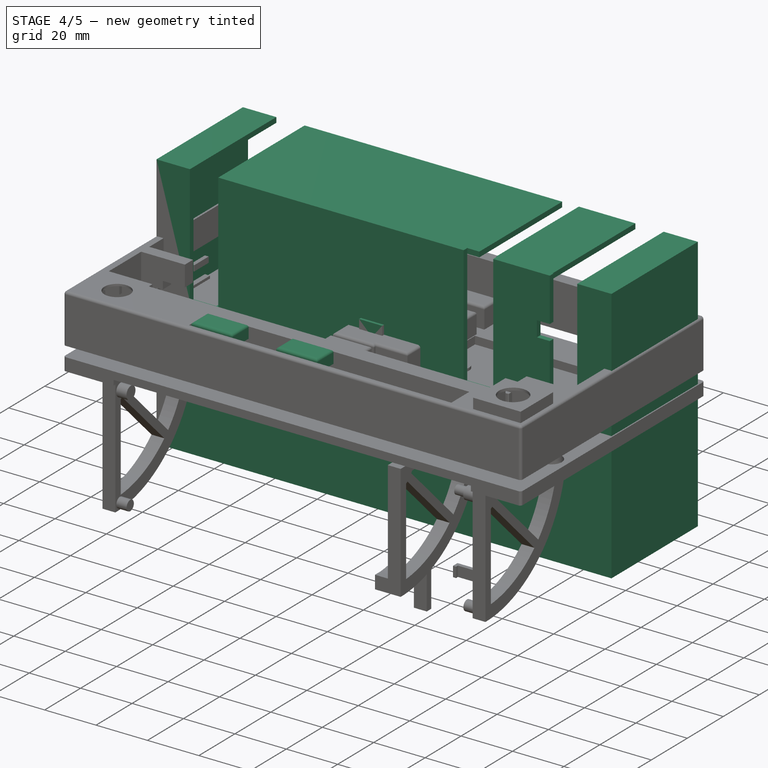
[diagram: stage 4 of 5 — iso view after this stage's code; geometry added in this stage tinted green]
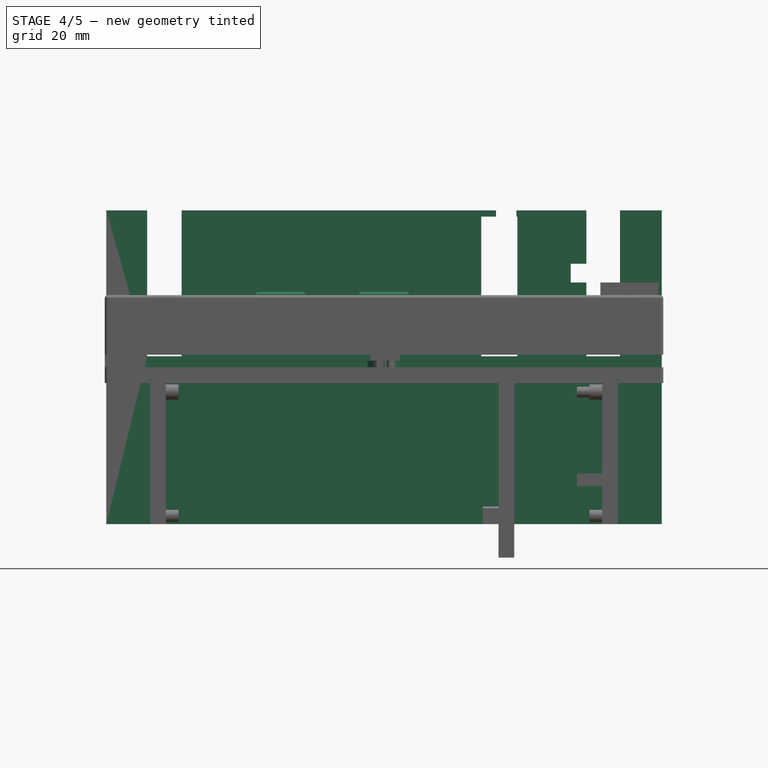
[diagram: stage 4 of 5 — front view after this stage's code; geometry added in this stage tinted green]
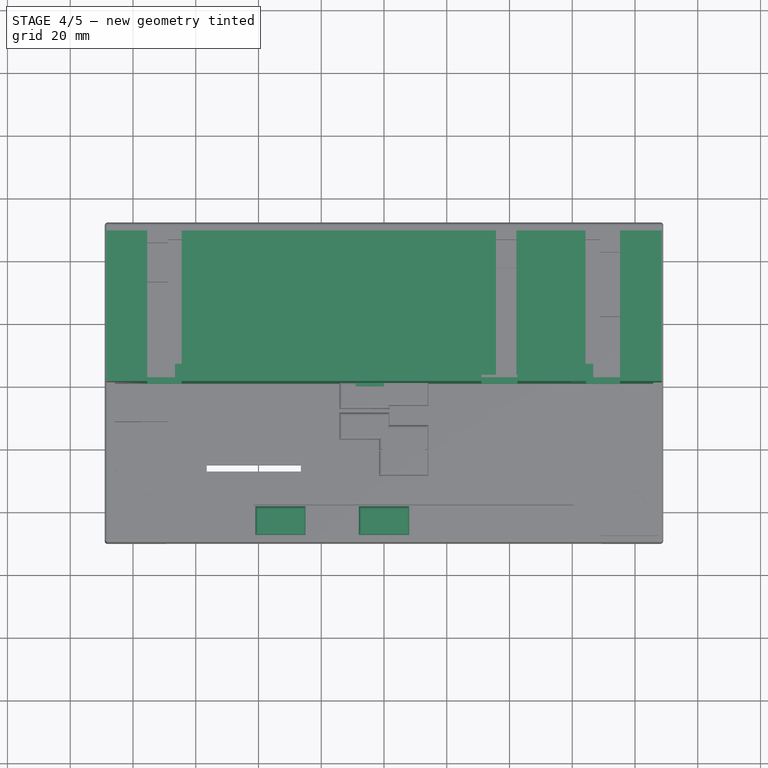
[diagram: stage 4 of 5 — top view after this stage's code; geometry added in this stage tinted green]
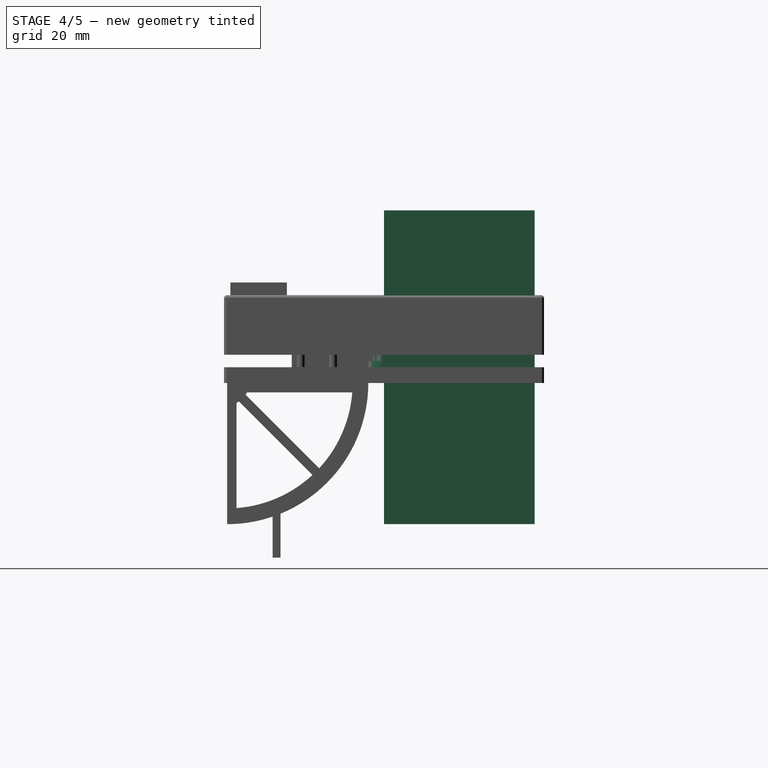
[diagram: stage 4 of 5 — right view after this stage's code; geometry added in this stage tinted green]
FEATURE [Sketcher::SketchObject] Sketch037  label="Preset Button Shell Sketch"
  ArcFitTolerance = 1e-06
  AttachmentSupport = -> [Pad021]
  ExternalGeometry = -> [Pad021]
  FullyConstrained = true
  MakeInternals = false
  MapMode = 5
  Placement = pos=(0,0,0) rot=(1,0,0;3.14159rad)
  sketch-geometry (12):
    g0: LineSegment StartX=-7.2 StartY=3.7 StartZ=0 EndX=-7.2 EndY=-3.7 EndZ=0
    g1: LineSegment StartX=-7.2 StartY=-3.7 StartZ=0 EndX=7.2 EndY=-3.7 EndZ=0
    g2: LineSegment StartX=7.2 StartY=-3.7 StartZ=0 EndX=7.2 EndY=3.7 EndZ=0
    g3: LineSegment StartX=7.2 StartY=3.7 StartZ=0 EndX=-7.2 EndY=3.7 EndZ=0
    g4: LineSegment [constr] StartX=-8 StartY=4.5 StartZ=0 EndX=-8 EndY=3.7 EndZ=0
    g5: LineSegment [constr] StartX=-8 StartY=3.7 StartZ=0 EndX=-7.2 EndY=3.7 EndZ=0
    g6: LineSegment [constr] StartX=-7.2 StartY=3.7 StartZ=0 EndX=-7.2 EndY=4.5 EndZ=0
    g7: LineSegment [constr] StartX=-7.2 StartY=4.5 StartZ=0 EndX=-8 EndY=4.5 EndZ=0
    g8: LineSegment [constr] StartX=7.2 StartY=-3.7 StartZ=0 EndX=7.2 EndY=-4.5 EndZ=0
    g9: LineSegment [constr] StartX=7.2 StartY=-4.5 StartZ=0 EndX=8 EndY=-4.5 EndZ=0
    g10: LineSegment [constr] StartX=8 StartY=-4.5 StartZ=0 EndX=8 EndY=-3.7 EndZ=0
    g11: LineSegment [constr] StartX=8 StartY=-3.7 StartZ=0 EndX=7.2 EndY=-3.7 EndZ=0
  constraints (32):
    c: Coincident(g0,g1)
    c: Coincident(g1,g2)
    c: Coincident(g2,g3)
    c: Coincident(g3,g0)
    c: Vertical(g0)
    c: Vertical(g2)
    c: Horizontal(g1)
    c: Horizontal(g3)
    c: Coincident(g4,g5)
    c: Coincident(g5,g6)
    c: Coincident(g6,g7)
    c: Coincident(g7,g4)
    c: Vertical(g4)
    c: Vertical(g6)
    c: Horizontal(g5)
    c: Horizontal(g7)
    c: Coincident(g4,g-4)
    c: Coincident(g5,g0)
    c: Coincident(g8,g9)
    c: Coincident(g9,g10)
    c: Coincident(g10,g11)
    c: Coincident(g11,g8)
    c: Vertical(g8)
    c: Vertical(g10)
    c: Horizontal(g9)
    c: Horizontal(g11)
    c: Coincident(g8,g1)
    c: Coincident(g9,g-6)
    c: Equal(g11,g5)
    c: Equal(g5,g6)
    c: Equal(g6,g8)
    c: DistanceX(g5,g5) = 0.8
FEATURE [PartDesign::Pocket] Pocket013  label="Preset Button Shell"
  BaseFeature = -> Pad021
  Direction = (0,0,1)
  Length = 4
  Length2 = 5
  Profile = -> Sketch037
  ReferenceAxis = -> Sketch037 [N_Axis]
  Refine = true
  Suppressed = false
  Type = 0
FEATURE [Sketcher::SketchObject] Sketch038  label="Preset Button Anchor Extension Sketch"
  ArcFitTolerance = 1e-06
  AttachmentSupport = -> [Pocket013]
  FullyConstrained = true
  MakeInternals = false
  MapMode = 5
  Placement = pos=(0,0,4) rot=(1,0,0;3.14159rad)
  sketch-geometry (8):
    g0: LineSegment StartX=-6.2 StartY=1.75 StartZ=0 EndX=-6.2 EndY=-1.75 EndZ=0
    g1: LineSegment StartX=-6.2 StartY=-1.75 StartZ=0 EndX=-5.2 EndY=-1.75 EndZ=0
    g2: LineSegment StartX=-5.2 StartY=-1.75 StartZ=0 EndX=-5.2 EndY=1.75 EndZ=0
    g3: LineSegment StartX=-5.2 StartY=1.75 StartZ=0 EndX=-6.2 EndY=1.75 EndZ=0
    g4: LineSegment StartX=6.2 StartY=1.75 StartZ=0 EndX=5.2 EndY=1.75 EndZ=0
    g5: LineSegment StartX=5.2 StartY=1.75 StartZ=0 EndX=5.2 EndY=-1.75 EndZ=0
    g6: LineSegment StartX=5.2 StartY=-1.75 StartZ=0 EndX=6.2 EndY=-1.75 EndZ=0
    g7: LineSegment StartX=6.2 StartY=-1.75 StartZ=0 EndX=6.2 EndY=1.75 EndZ=0
  constraints (21):
    c: Coincident(g0,g1)
    c: Coincident(g1,g2)
    c: Coincident(g2,g3)
    c: Coincident(g3,g0)
    c: Vertical(g2)
    c: Horizontal(g1)
    c: Horizontal(g3)
    c: Symmetric(g0,g0,g-1)
    c: Coincident(g4,g5)
    c: Coincident(g5,g6)
    c: Coincident(g6,g7)
    c: Coincident(g7,g4)
    c: Horizontal(g4)
    c: Horizontal(g6)
    c: Vertical(g7)
    c: Equal(g4,g3)
    c: Symmetric(g4,g5,g-1)
    c: Symmetric(g4,g0,g-2)
    c: DistanceX(g4,g4) = 1
    c: DistanceY(g0,g0) = 3.5
    c: DistanceX(g2,g4) = 10.4
FEATURE [PartDesign::Pad] Pad022  label="Preset Button Anchor Extension"
  BaseFeature = -> Pocket013
  Direction = (0,0,-1)
  Length = 9
  Length2 = 10
  Profile = -> Sketch038
  ReferenceAxis = -> Sketch038 [N_Axis]
  Refine = true
  Suppressed = false
  Type = 0
FEATURE [Sketcher::SketchObject] Sketch039  label="Preset Button Anchor Sketch"
  ArcFitTolerance = 1e-06
  AttachmentSupport = -> [Pad022]
  ExternalGeometry = -> [Pad022]
  FullyConstrained = true
  MakeInternals = false
  MapMode = 5
  Placement = pos=(0,1.75,0) rot=(0,0.707107,0.707107;3.14159rad)
  sketch-geometry (7):
    g0: LineSegment StartX=-6.2 StartY=-3.5 StartZ=0 EndX=-7 EndY=-3.5 EndZ=0
    g1: LineSegment StartX=-7 StartY=-3.5 StartZ=0 EndX=-6.2 EndY=-5 EndZ=0
    g2: LineSegment StartX=-6.2 StartY=-3.5 StartZ=0 EndX=-6.2 EndY=-5 EndZ=0
    g3: LineSegment StartX=6.2 StartY=-3.5 StartZ=0 EndX=7 EndY=-3.5 EndZ=0
    g4: LineSegment StartX=7 StartY=-3.5 StartZ=0 EndX=6.2 EndY=-5 EndZ=0
    g5: LineSegment StartX=6.2 StartY=-5 StartZ=0 EndX=6.2 EndY=-3.5 EndZ=0
    g6: LineSegment [constr] StartX=6.2 StartY=-3.5 StartZ=0 EndX=-6.2 EndY=-3.5 EndZ=0
  constraints (18):
    c: PointOnObject(g0,g-3)
    c: Horizontal(g0)
    c: Coincident(g1,g0)
    c: Coincident(g1,g-4)
    c: Coincident(g2,g0)
    c: Coincident(g2,g1)
    c: PointOnObject(g3,g-8)
    c: Horizontal(g3)
    c: Coincident(g4,g3)
    c: Coincident(g4,g-8)
    c: Coincident(g5,g4)
    c: Coincident(g5,g3)
    c: Coincident(g6,g3)
    c: Coincident(g6,g0)
    c: Horizontal(g6)
    c: DistanceY(g2,g2) = 1.5
    c: Equal(g0,g3)
    c: DistanceX(g0,g0) = 0.8
FEATURE [PartDesign::Pad] Pad023  label="Preset Button Anchor"
  BaseFeature = -> Pad022
  Direction = (0,1,-2e-16)
  Length = 3.5
  Length2 = 10
  Profile = -> Sketch039
  ReferenceAxis = -> Sketch039 [N_Axis]
  Refine = true
  Reversed = true
  Suppressed = false
  Type = 0
FEATURE [PartDesign::Body] Body014  label="Main PCB"
  AllowCompound = false
  Group = -> [Sketch040,Pad024]
  Origin = -> Origin015
  Placement = pos=(0,0,6) rot=(0,0,1;0rad)
  Tip = -> Pad024
FEATURE [Sketcher::SketchObject] Sketch041  label="Preset Button Toggler Sketch"
  ArcFitTolerance = 1e-06
  AttachmentSupport = -> [Pad023]
  FullyConstrained = true
  MakeInternals = false
  MapMode = 5
  Placement = pos=(0,0,4) rot=(1,0,0;3.14159rad)
  sketch-geometry (1):
    g0: Circle CenterX=0 CenterY=0 CenterZ=0 NormalX=0 NormalY=0 NormalZ=1 AngleXU=0 Radius=1
  constraints (2):
    c: Coincident(g0,g-1)
    c: Diameter(g0) = 2
FEATURE [PartDesign::Pad] Pad025  label="Preset Button Toggler"
  BaseFeature = -> Pad023
  Direction = (0,0,-1)
  Length = 3.4
  Length2 = 10
  Profile = -> Sketch041
  ReferenceAxis = -> Sketch041 [N_Axis]
  Refine = true
  Suppressed = false
  Type = 0
FEATURE [PartDesign::Fillet] Fillet002  label="Preset Button Fillet"
  Base = -> Pad025 [Edge7,Edge4,Edge10,Edge16]
  BaseFeature = -> Pad025
  Radius = 1
  Refine = true
  SupportTransform = false
  Suppressed = false
  UseAllEdges = false
FEATURE [Sketcher::SketchObject] Sketch066  label="Right Screen Guide Base Sketch"
  ArcFitTolerance = 1e-06
  AttachmentSupport = -> [YZ_Plane018]
  FullyConstrained = true
  MakeInternals = false
  MapMode = 5
  Placement = pos=(0,0,0) rot=(0.57735,0.57735,0.57735;2.0944rad)
  sketch-geometry (11):
    g0: LineSegment StartX=0 StartY=-13 StartZ=0 EndX=45 EndY=-13 EndZ=0
    g1: LineSegment StartX=45 StartY=-13 StartZ=0 EndX=45 EndY=33 EndZ=0
    g2: LineSegment StartX=45 StartY=33 StartZ=0 EndX=9 EndY=33 EndZ=0
    g3: LineSegment StartX=0 StartY=32 StartZ=0 EndX=0 EndY=-13 EndZ=0
    g4: ArcOfCircle CenterX=7 CenterY=33 CenterZ=0 NormalX=0 NormalY=0 NormalZ=1 AngleXU=0 Radius=2 StartAngle=0 EndAngle=1.5708
    g5: LineSegment [constr] StartX=9 StartY=33 StartZ=0 EndX=7 EndY=33 EndZ=0
    g6: LineSegment [constr] StartX=7 StartY=33 StartZ=0 EndX=7 EndY=35 EndZ=0
    g7: LineSegment StartX=7 StartY=35 StartZ=0 EndX=3 EndY=35 EndZ=0
    g8: ArcOfCircle CenterX=3 CenterY=32 CenterZ=0 NormalX=0 NormalY=0 NormalZ=1 AngleXU=0 Radius=3 StartAngle=1.5708 EndAngle=3.14159
    g9: LineSegment [constr] StartX=0 StartY=32 StartZ=0 EndX=3 EndY=32 EndZ=0
    g10: LineSegment [constr] StartX=3 StartY=32 StartZ=0 EndX=3 EndY=35 EndZ=0
  constraints (31):
    c: Coincident(g0,g1)
    c: Coincident(g1,g2)
    c: Coincident(g3,g0)
    c: Horizontal(g0)
    c: Horizontal(g2)
    c: Vertical(g1)
    c: Vertical(g3)
    c: PointOnObject(g0,g-2)
    c: Coincident(g4,g2)
    c: Coincident(g5,g2)
    c: Coincident(g5,g4)
    c: Horizontal(g5)
    c: Coincident(g6,g4)
    c: Coincident(g6,g4)
    c: Vertical(g6)
    c: Coincident(g7,g4)
    c: Horizontal(g7)
    c: DistanceX(g0,g0) = 45
    c: DistanceY(g1,g1) = 46
    c: DistanceY(g3,g3) = 45
    c: DistanceY(g0,g-1) = 13
    c: DistanceX(g2,g2) = 36
    c: Coincident(g8,g7)
    c: Coincident(g8,g3)
    c: Coincident(g9,g3)
    c: Coincident(g9,g8)
    c: Coincident(g10,g8)
    c: Coincident(g10,g7)
    c: Perpendicular(g9,g10)
    c: Perpendicular(g7,g10)
    c: DistanceX(g5,g5) = 2
FEATURE [PartDesign::Pad] Pad040  label="Right Screen Guide Base"
  Direction = (1,0,0)
  Length = 4
  Length2 = 10
  Placement = pos=(0,0,0) rot=(1,1,1;2.0944rad)
  Profile = -> Sketch066
  ReferenceAxis = -> Sketch066 [N_Axis]
  Refine = true
  Reversed = true
  Suppressed = false
  Type = 0
FEATURE [Sketcher::SketchObject] Sketch067  label="Right Screen Guide Cut Sketch"
  ArcFitTolerance = 1e-06
  AttachmentSupport = -> [Pad040]
  ExternalGeometry = -> [Pad040]
  FullyConstrained = true
  MakeInternals = false
  MapMode = 5
  Placement = pos=(-4,0,0) rot=(0.57735,0.57735,-0.57735;4.18879rad)
  sketch-geometry (25):
    g0: Circle CenterX=3.95 CenterY=-31.05 CenterZ=0 NormalX=0 NormalY=0 NormalZ=1 AngleXU=0 Radius=2.85
    g1: LineSegment [constr] StartX=3.95 StartY=-31.05 StartZ=0 EndX=3 EndY=-31.05 EndZ=0
    g2: LineSegment [constr] StartX=3 StartY=-31.05 StartZ=0 EndX=3 EndY=-35 EndZ=0
    g3: LineSegment [constr] StartX=3 StartY=-35 StartZ=0 EndX=3.95 EndY=-35 EndZ=0
    g4: LineSegment [constr] StartX=3.95 StartY=-35 StartZ=0 EndX=3.95 EndY=-31.05 EndZ=0
    g5: ArcOfCircle CenterX=3.5 CenterY=8.45 CenterZ=0 NormalX=0 NormalY=0 NormalZ=1 AngleXU=0 Radius=2.45016 StartAngle=1.5708 EndAngle=4.71239
    g6: LineSegment [constr] StartX=3.5 StartY=8.45 StartZ=0 EndX=3.5 EndY=10.9002 EndZ=0
    g7: LineSegment [constr] StartX=3.5 StartY=8.45 StartZ=0 EndX=3.5 EndY=5.99984 EndZ=0
    g8: LineSegment [constr] StartX=3.5 StartY=8.45 StartZ=0 EndX=3.5 EndY=13 EndZ=0
    g9: LineSegment [constr] StartX=3.5 StartY=13 StartZ=0 EndX=9e-16 EndY=13 EndZ=0
    g10: LineSegment [constr] StartX=9e-16 StartY=13 StartZ=0 EndX=9e-16 EndY=8.45 EndZ=0
    g11: LineSegment [constr] StartX=9e-16 StartY=8.45 StartZ=0 EndX=3.5 EndY=8.45 EndZ=0
    g12: ArcOfCircle CenterX=3.95 CenterY=-31.05 CenterZ=0 NormalX=0 NormalY=0 NormalZ=1 AngleXU=0 Radius=41.9526 StartAngle=0.720088 EndAngle=1.58152
    g13: ArcOfCircle CenterX=3.95 CenterY=-31.05 CenterZ=0 NormalX=0 NormalY=0 NormalZ=1 AngleXU=0 Radius=37.0526 StartAngle=0.720088 EndAngle=1.58294
    g14: ArcOfCircle CenterX=33.646 CenterY=-5 CenterZ=0 NormalX=0 NormalY=0 NormalZ=1 AngleXU=0 Radius=2.45 StartAngle=3.86168 EndAngle=7.00327
    g15: LineSegment [constr] StartX=35.4878 StartY=-3.38435 StartZ=0 EndX=31.8042 EndY=-6.61565 EndZ=0
    g16: LineSegment [constr] StartX=33.646 StartY=-5 StartZ=0 EndX=33.646 EndY=13 EndZ=0
    g17: LineSegment StartX=0 StartY=-0.50016 StartZ=0 EndX=0 EndY=-5.50016 EndZ=0
    g18: LineSegment StartX=0 StartY=-5.50016 StartZ=0 EndX=3.5 EndY=-5.50016 EndZ=0
    g19: LineSegment [constr] StartX=3.5 StartY=-5.50016 StartZ=0 EndX=3.5 EndY=-0.50016 EndZ=0
    g20: LineSegment StartX=3.5 StartY=-0.50016 StartZ=0 EndX=0 EndY=-0.50016 EndZ=0
    g21: LineSegment [constr] StartX=3.5 StartY=-0.50016 StartZ=0 EndX=3.5 EndY=5.99984 EndZ=0
    g22: ArcOfCircle CenterX=3.95 CenterY=-31.05 CenterZ=0 NormalX=0 NormalY=0 NormalZ=1 AngleXU=0 Radius=30.5532 StartAngle=0.54121 EndAngle=1.58553
    g23: ArcOfCircle CenterX=3.95 CenterY=-31.05 CenterZ=0 NormalX=0 NormalY=0 NormalZ=1 AngleXU=0 Radius=25.5538 StartAngle=0.54121 EndAngle=1.58841
    g24: LineSegment StartX=25.8518 StartY=-17.8854 StartZ=0 EndX=30.1367 EndY=-15.3098 EndZ=0
  constraints (68):
    c: Diameter(g0) = 5.7
    c: Coincident(g1,g2)
    c: Coincident(g2,g3)
    c: Coincident(g3,g4)
    c: Coincident(g4,g1)
    c: Horizontal(g1)
    c: Horizontal(g3)
    c: Vertical(g2)
    c: Vertical(g4)
    c: Coincident(g1,g0)
    c: Coincident(g2,g-3)
    c: DistanceY(g4,g4) = 3.95
    c: DistanceX(g1,g1) = 0.95
    c: Coincident(g6,g5)
    c: Coincident(g6,g5)
    c: Coincident(g7,g5)
    c: Coincident(g7,g5)
    c: Vertical(g7)
    c: Vertical(g6)
    c: Coincident(g8,g9)
    c: Coincident(g9,g10)
    c: Coincident(g10,g11)
    c: Coincident(g11,g8)
    c: Vertical(g8)
    c: Vertical(g10)
    c: Horizontal(g9)
    c: Horizontal(g11)
    c: Coincident(g8,g5)
    c: Coincident(g9,g-6)
    c: DistanceX(g11,g11) = 3.5
    c: DistanceY(g8,g8) = 4.55
    c: Coincident(g12,g5)
    c: Coincident(g13,g5)
    c: Coincident(g13,g12)
    c: Coincident(g14,g12)
    c: Coincident(g14,g13)
    c: Coincident(g15,g12)
    c: Coincident(g15,g13)
    c: PointOnObject(g14,g15)
    c: Perpendicular(g12,g15)
    c: Coincident(g16,g14)
    c: PointOnObject(g16,g-6)
    c: Vertical(g16)
    c: Distance(g15,g15) = 4.9
    c: Coincident(g17,g18)
    c: Coincident(g18,g19)
    c: Coincident(g19,g20)
    c: Coincident(g20,g17)
    c: Vertical(g17)
    c: Vertical(g19)
    c: Horizontal(g18)
    c: Horizontal(g20)
    c: PointOnObject(g17,g-2)
    c: Coincident(g21,g19)
    c: Coincident(g21,g5)
    c: Vertical(g21)
    c: DistanceY(g17,g17) = 5
    c: DistanceY(g21,g21) = 6.5
    c: Coincident(g22,g19)
    c: Coincident(g23,g18)
    c: Coincident(g12,g23)
    c: Coincident(g12,g22)
    c: Coincident(g24,g23)
    c: Coincident(g24,g22)
    c: Perpendicular(g22,g24)
    c: Angle(g23) = 1.0472
    c: DistanceY(g16,g16) = 18
    c: Coincident(g12,g0)
FEATURE [PartDesign::Pocket] Pocket024  label="Right Screen Guide Cut"
  BaseFeature = -> Pad040
  Direction = (1,0,0)
  Length = 5
  Length2 = 5
  Placement = pos=(0,0,0) rot=(1,1,1;2.0944rad)
  Profile = -> Sketch067
  ReferenceAxis = -> Sketch067 [N_Axis]
  Refine = true
  Suppressed = false
  Type = 0
FEATURE [Sketcher::SketchObject] Sketch068  label="Right Screen Guide Spring Peg Sketch"
  ArcFitTolerance = 1e-06
  AttachmentSupport = -> [Pocket024]
  ExternalGeometry = -> [Pocket024]
  FullyConstrained = true
  MakeInternals = false
  MapMode = 5
  Placement = pos=(-4,0,0) rot=(0.57735,0.57735,-0.57735;4.18879rad)
  sketch-geometry (4):
    g0: LineSegment StartX=2.2e-15 StartY=-10.5002 StartZ=0 EndX=2.2e-15 EndY=-15.4995 EndZ=0
    g1: LineSegment StartX=2.2e-15 StartY=-15.4995 StartZ=0 EndX=1.5 EndY=-15.4995 EndZ=0
    g2: LineSegment StartX=1.5 StartY=-15.4995 StartZ=0 EndX=1.5 EndY=-10.5002 EndZ=0
    g3: LineSegment StartX=1.5 StartY=-10.5002 StartZ=0 EndX=2.2e-15 EndY=-10.5002 EndZ=0
  constraints (12):
    c: Coincident(g0,g1)
    c: Coincident(g1,g2)
    c: Coincident(g2,g3)
    c: Coincident(g3,g0)
    c: Vertical(g0)
    c: Vertical(g2)
    c: Horizontal(g1)
    c: Horizontal(g3)
    c: PointOnObject(g0,g-4)
    c: DistanceX(g3,g3) = 1.5
    c: Equal(g2,g-5)
    c: DistanceY(g0,g-4) = 5
FEATURE [PartDesign::Pad] Pad041  label="Right Screen Guide Spring Peg"
  BaseFeature = -> Pocket024
  Direction = (-1,0,0)
  Length = 5
  Length2 = 10
  Placement = pos=(0,0,0) rot=(1,1,1;2.0944rad)
  Profile = -> Sketch068
  ReferenceAxis = -> Sketch068 [N_Axis]
  Suppressed = false
  Type = 0
FEATURE [Sketcher::SketchObject] Sketch070  label="Screen DIN Enclosure Base Sketch"
  ArcFitTolerance = 1e-06
  AttachmentSupport = -> [XZ_Plane019]
  FullyConstrained = true
  MakeInternals = false
  MapMode = 5
  Placement = pos=(0,0,0) rot=(1,0,0;1.5708rad)
  sketch-geometry (4):
    g0: LineSegment StartX=88.5 StartY=50 StartZ=0 EndX=-88.5 EndY=50 EndZ=0
    g1: LineSegment StartX=-88.5 StartY=50 StartZ=0 EndX=-88.5 EndY=-50 EndZ=0
    g2: LineSegment StartX=-88.5 StartY=-50 StartZ=0 EndX=88.5 EndY=-50 EndZ=0
    g3: LineSegment StartX=88.5 StartY=-50 StartZ=0 EndX=88.5 EndY=50 EndZ=0
  constraints (10):
    c: Coincident(g0,g1)
    c: Coincident(g1,g2)
    c: Coincident(g2,g3)
    c: Coincident(g3,g0)
    c: Horizontal(g2)
    c: Vertical(g3)
    c: Symmetric(g0,g0,g-2)
    c: DistanceX(g0,g0) = 177
    c: DistanceY(g3,g3) = 100
    c: Symmetric(g0,g1,g-1)
FEATURE [PartDesign::Pad] Pad042  label="Screen DIN Enclosure Base"
  Direction = (0,-1,2e-16)
  Length = 48
  Length2 = 10
  Placement = pos=(0,0,0) rot=(1,0,0;1.5708rad)
  Profile = -> Sketch070
  ReferenceAxis = -> Sketch070 [N_Axis]
  Refine = true
  Reversed = true
  Suppressed = false
  Type = 0
FEATURE [Sketcher::SketchObject] Sketch071  label="Screen DIN Enclosure Shell Sketch"
  ArcFitTolerance = 1e-06
  AttachmentSupport = -> [Pad042]
  ExternalGeometry = -> [Pad042]
  FullyConstrained = true
  MakeInternals = false
  MapMode = 5
  Placement = pos=(0,48,0) rot=(-1,0,0;1.5708rad)
  sketch-geometry (26):
    g0: LineSegment StartX=-86.5 StartY=48 StartZ=0 EndX=-86.5 EndY=-48 EndZ=0
    g1: LineSegment StartX=86.5 StartY=-48 StartZ=0 EndX=86.5 EndY=48 EndZ=0
    g2: LineSegment StartX=-86.5 StartY=-48 StartZ=0 EndX=-75.5 EndY=-48 EndZ=0
    g3: LineSegment StartX=-75.5 StartY=-48 StartZ=0 EndX=-75.5 EndY=-50 EndZ=0
    g4: LineSegment StartX=-75.5 StartY=-50 StartZ=0 EndX=-64.5 EndY=-50 EndZ=0
    g5: LineSegment StartX=-64.5 StartY=-50 StartZ=0 EndX=-64.5 EndY=-48 EndZ=0
    g6: LineSegment StartX=64.2 StartY=-48 StartZ=0 EndX=64.2 EndY=-50 EndZ=0
    g7: LineSegment StartX=64.2 StartY=-50 StartZ=0 EndX=75.2 EndY=-50 EndZ=0
    g8: LineSegment StartX=75.2 StartY=-50 StartZ=0 EndX=75.2 EndY=-48 EndZ=0
    g9: LineSegment StartX=75.2 StartY=-48 StartZ=0 EndX=86.5 EndY=-48 EndZ=0
    g10: LineSegment StartX=-64.5 StartY=-48 StartZ=0 EndX=35.7 EndY=-48 EndZ=0
    g11: LineSegment StartX=64.2 StartY=-48 StartZ=0 EndX=42.2 EndY=-48 EndZ=0
    g12: LineSegment StartX=35.7 StartY=-48 StartZ=0 EndX=35.7 EndY=-50 EndZ=0
    g13: LineSegment StartX=42.2 StartY=-48 StartZ=0 EndX=42.2 EndY=-50 EndZ=0
    g14: LineSegment StartX=42.2 StartY=-50 StartZ=0 EndX=35.7 EndY=-50 EndZ=0
    g15: LineSegment StartX=-86.5 StartY=48 StartZ=0 EndX=86.5 EndY=48 EndZ=0
    g16: LineSegment [constr] StartX=-86.5 StartY=48 StartZ=0 EndX=-86.5 EndY=50 EndZ=0
    g17: LineSegment [constr] StartX=-86.5 StartY=50 StartZ=0 EndX=-88.5 EndY=50 EndZ=0
    g18: LineSegment [constr] StartX=-88.5 StartY=50 StartZ=0 EndX=-88.5 EndY=48 EndZ=0
    g19: LineSegment [constr] StartX=-88.5 StartY=48 StartZ=0 EndX=-86.5 EndY=48 EndZ=0
    g20: LineSegment [constr] StartX=86.5 StartY=-48 StartZ=0 EndX=86.5 EndY=-50 EndZ=0
    g21: LineSegment [constr] StartX=86.5 StartY=-50 StartZ=0 EndX=88.5 EndY=-50 EndZ=0
    g22: LineSegment [constr] StartX=88.5 StartY=-50 StartZ=0 EndX=88.5 EndY=-48 EndZ=0
    g23: LineSegment [constr] StartX=88.5 StartY=-48 StartZ=0 EndX=86.5 EndY=-48 EndZ=0
    g24: LineSegment [constr] StartX=64.2 StartY=-48 StartZ=0 EndX=75.2 EndY=-48 EndZ=0
    g25: LineSegment [constr] StartX=42.2 StartY=-48 StartZ=0 EndX=35.7 EndY=-48 EndZ=0
  constraints (68):
    c: Vertical(g1)
    c: Symmetric(g0,g1,g-2)
    c: Symmetric(g0,g0,g-1)
    c: Coincident(g2,g0)
    c: Horizontal(g2)
    c: DistanceX(g2,g2) = 11
    c: Coincident(g3,g2)
    c: Vertical(g3)
    c: Coincident(g4,g3)
    c: DistanceX(g4,g4) = 11
    c: Coincident(g5,g4)
    c: Vertical(g5)
    c: Vertical(g6)
    c: Coincident(g7,g6)
    c: Coincident(g8,g7)
    c: Vertical(g8)
    c: Coincident(g9,g8)
    c: DistanceX(g7,g7) = 11
    c: DistanceX(g9,g9) = 11.3
    c: Coincident(g10,g5)
    c: Horizontal(g10)
    c: Coincident(g11,g6)
    c: Horizontal(g11)
    c: DistanceX(g11,g11) = 22
    c: Coincident(g12,g10)
    c: PointOnObject(g12,g-6)
    c: Vertical(g12)
    c: Coincident(g13,g11)
    c: PointOnObject(g13,g-6)
    c: Vertical(g13)
    c: Coincident(g12,g14)
    c: Coincident(g14,g13)
    c: DistanceX(g14,g14) = 6.5
    c: Horizontal(g9)
    c: Coincident(g1,g9)
    c: Tangent(g7,g-6)
    c: Tangent(g4,g-6)
    c: Coincident(g15,g0)
    c: Coincident(g15,g1)
    c: Coincident(g16,g17)
    c: Coincident(g17,g18)
    c: Coincident(g18,g19)
    c: Coincident(g19,g16)
    c: Vertical(g16)
    c: Vertical(g18)
    c: Horizontal(g17)
    c: Horizontal(g19)
    c: Coincident(g16,g0)
    c: Coincident(g17,g-4)
    c: Coincident(g20,g21)
    c: Coincident(g21,g22)
    c: Coincident(g22,g23)
    c: Coincident(g23,g20)
    c: Vertical(g20)
    c: Vertical(g22)
    c: Horizontal(g21)
    c: Horizontal(g23)
    c: Coincident(g20,g1)
    c: Coincident(g21,g-6)
    c: Equal(g23,g20)
    c: Equal(g19,g16)
    c: DistanceX(g19,g19) = 2
    c: Coincident(g24,g6)
    c: Coincident(g24,g8)
    c: Horizontal(g24)
    c: Coincident(g25,g11)
    c: Coincident(g25,g10)
    c: Horizontal(g25)
FEATURE [PartDesign::Pocket] Pocket026  label="Screen DIN Enclosure Shell"
  BaseFeature = -> Pad042
  Direction = (0,-1,-2e-16)
  Length = 46
  Length2 = 5
  Placement = pos=(0,0,0) rot=(1,0,0;1.5708rad)
  Profile = -> Sketch071
  ReferenceAxis = -> Sketch071 [N_Axis]
  Refine = true
  Suppressed = false
  Type = 0
FEATURE [Sketcher::SketchObject] Sketch072  label="Screen DIN Enclosure Channel Sketch"
  ArcFitTolerance = 1e-06
  AttachmentSupport = -> [Pocket026]
  ExternalGeometry = -> [Pocket026]
  FullyConstrained = true
  MakeInternals = false
  MapMode = 5
  Placement = pos=(0,2,5e-16) rot=(-1,0,0;1.5708rad)
  sketch-geometry (18):
    g0: LineSegment StartX=64.5 StartY=-50 StartZ=0 EndX=75.2 EndY=-50 EndZ=0
    g1: LineSegment StartX=75.2 StartY=-50 StartZ=0 EndX=75.2 EndY=-3.5 EndZ=0
    g2: LineSegment StartX=75.2 StartY=-3.5 StartZ=0 EndX=64.5 EndY=-3.5 EndZ=0
    g3: LineSegment StartX=64.5 StartY=-33 StartZ=0 EndX=64.5 EndY=-50 EndZ=0
    g4: LineSegment StartX=64.5 StartY=-33 StartZ=0 EndX=59.5 EndY=-33 EndZ=0
    g5: LineSegment StartX=59.5 StartY=-33 StartZ=0 EndX=59.5 EndY=-27 EndZ=0
    g6: LineSegment StartX=59.5 StartY=-27 StartZ=0 EndX=64.5 EndY=-27 EndZ=0
    g7: LineSegment [constr] StartX=64.5 StartY=-27 StartZ=0 EndX=64.5 EndY=-33 EndZ=0
    g8: LineSegment StartX=64.5 StartY=-27 StartZ=0 EndX=64.5 EndY=-3.5 EndZ=0
    g9: LineSegment StartX=-75.5 StartY=-50 StartZ=0 EndX=-64.5 EndY=-50 EndZ=0
    g10: LineSegment StartX=-64.5 StartY=-50 StartZ=0 EndX=-64.5 EndY=-3.5 EndZ=0
    g11: LineSegment StartX=-64.5 StartY=-3.5 StartZ=0 EndX=-75.5 EndY=-3.5 EndZ=0
    g12: LineSegment StartX=-75.5 StartY=-3.5 StartZ=0 EndX=-75.5 EndY=-50 EndZ=0
    g13: LineSegment [constr] StartX=-64.5 StartY=-3.5 StartZ=0 EndX=64.5 EndY=-3.5 EndZ=0
    g14: LineSegment StartX=31 StartY=-3.5 StartZ=0 EndX=31 EndY=-50 EndZ=0
    g15: LineSegment StartX=31 StartY=-50 StartZ=0 EndX=42.5 EndY=-50 EndZ=0
    g16: LineSegment StartX=42.5 StartY=-50 StartZ=0 EndX=42.5 EndY=-3.5 EndZ=0
    g17: LineSegment StartX=42.5 StartY=-3.5 StartZ=0 EndX=31 EndY=-3.5 EndZ=0
  constraints (48):
    c: Coincident(g0,g1)
    c: Coincident(g1,g2)
    c: Horizontal(g2)
    c: Vertical(g1)
    c: Vertical(g3)
    c: Coincident(g0,g-3)
    c: Coincident(g0,g3)
    c: PointOnObject(g0,g-3)
    c: DistanceX(g2,g2) = 10.7
    c: DistanceY(g1,g1) = 46.5
    c: Coincident(g4,g3)
    c: Horizontal(g4)
    c: Coincident(g5,g4)
    c: Vertical(g5)
    c: Coincident(g6,g5)
    c: Horizontal(g6)
    c: Coincident(g7,g6)
    c: Coincident(g7,g3)
    c: Vertical(g7)
    c: Coincident(g8,g6)
    c: Coincident(g8,g2)
    c: Vertical(g8)
    c: DistanceY(g3,g3) = 17
    c: DistanceY(g5,g5) = 6
    c: DistanceX(g6,g6) = 5
    c: Coincident(g9,g10)
    c: Coincident(g10,g11)
    c: Coincident(g11,g12)
    c: Coincident(g12,g9)
    c: Horizontal(g11)
    c: Vertical(g10)
    c: Vertical(g12)
    c: Coincident(g9,g-4)
    c: Coincident(g9,g-4)
    c: Coincident(g13,g10)
    c: Coincident(g13,g2)
    c: Horizontal(g13)
    c: Coincident(g14,g15)
    c: Coincident(g15,g16)
    c: Coincident(g16,g17)
    c: Coincident(g17,g14)
    c: Vertical(g14)
    c: Vertical(g16)
    c: Horizontal(g17)
    c: PointOnObject(g14,g13)
    c: DistanceX(g17,g17) = 11.5
    c: DistanceX(g16,g2) = 22
    c: Tangent(g15,g-5)
FEATURE [PartDesign::Pocket] Pocket027  label="Screen DIN Enclosure Channel"
  BaseFeature = -> Pocket026
  Direction = (0,-1,-2e-16)
  Length = 5
  Length2 = 5
  Placement = pos=(0,0,0) rot=(1,0,0;1.5708rad)
  Profile = -> Sketch072
  ReferenceAxis = -> Sketch072 [N_Axis]
  Refine = true
  Suppressed = false
  Type = 0
FEATURE [Sketcher::SketchObject] Sketch073  label="Right Screen Guide Channel Sketch"
  ArcFitTolerance = 1e-06
  AttachmentSupport = -> [Pad041]
  ExternalGeometry = -> [Pad041]
  FullyConstrained = true
  MakeInternals = false
  MapMode = 5
  Placement = pos=(0,0,0) rot=(0.57735,0.57735,-0.57735;2.0944rad)
  sketch-geometry (8):
    g0: LineSegment StartX=-15.4995 StartY=-4 StartZ=0 EndX=-15.4995 EndY=-9 EndZ=0
    g1: LineSegment StartX=-15.4995 StartY=-9 StartZ=0 EndX=-10.5002 EndY=-9 EndZ=0
    g2: LineSegment StartX=-10.5002 StartY=-9 StartZ=0 EndX=-10.5002 EndY=-4 EndZ=0
    g3: LineSegment [constr] StartX=-10.5002 StartY=-4 StartZ=0 EndX=-15.4995 EndY=-4 EndZ=0
    g4: LineSegment StartX=-10.5002 StartY=-4 StartZ=0 EndX=-5.50016 EndY=-4 EndZ=0
    g5: LineSegment StartX=-5.50016 StartY=-4 StartZ=0 EndX=-5.50016 EndY=0 EndZ=0
    g6: LineSegment StartX=-5.50016 StartY=0 StartZ=0 EndX=-15.4995 EndY=-1.03e-14 EndZ=0
    g7: LineSegment StartX=-15.4995 StartY=-1.03e-14 StartZ=0 EndX=-15.4995 EndY=-4 EndZ=0
  constraints (19):
    c: Coincident(g0,g1)
    c: Coincident(g1,g2)
    c: Coincident(g2,g3)
    c: Coincident(g3,g0)
    c: Vertical(g0)
    c: Vertical(g2)
    c: Horizontal(g1)
    c: Horizontal(g3)
    c: Coincident(g0,g-8)
    c: Coincident(g1,g-7)
    c: Coincident(g4,g2)
    c: Coincident(g4,g-5)
    c: Coincident(g5,g4)
    c: Coincident(g5,g-10)
    c: Coincident(g6,g5)
    c: PointOnObject(g6,g-10)
    c: Coincident(g7,g6)
    c: Coincident(g7,g0)
    c: Vertical(g7)
FEATURE [PartDesign::Pad] Pad043  label="Right Screen Guide Channel"
  BaseFeature = -> Pad041
  Direction = (0,-1,0)
  Length = 1
  Length2 = 10
  Placement = pos=(0,0,0) rot=(1,1,1;2.0944rad)
  Profile = -> Sketch073
  ReferenceAxis = -> Sketch073 [N_Axis]
  Refine = true
  Suppressed = false
  Type = 0
FEATURE [Sketcher::SketchObject] Sketch074  label="Right Screen Guide Screw Mount Sketch"
  ArcFitTolerance = 1e-06
  AttachmentSupport = -> [Pad043]
  ExternalGeometry = -> [Pad043]
  FullyConstrained = true
  MakeInternals = false
  MapMode = 5
  Placement = pos=(0,-2.9e-15,-13) rot=(0.707107,0.707107,0;3.14159rad)
  sketch-geometry (8):
    g0: LineSegment StartX=7.6 StartY=-10 StartZ=0 EndX=7.6 EndY=0 EndZ=0
    g1: LineSegment StartX=7.6 StartY=0 StartZ=0 EndX=5.6 EndY=0 EndZ=0
    g2: LineSegment StartX=1.2 StartY=0 StartZ=0 EndX=1.2 EndY=-1.8 EndZ=0
    g3: LineSegment StartX=1.2 StartY=0 StartZ=0 EndX=5.6 EndY=0 EndZ=0
    g4: LineSegment [constr] StartX=5.6 StartY=0 StartZ=0 EndX=5.6 EndY=-1.8 EndZ=0
    g5: LineSegment StartX=1.2 StartY=-1.8 StartZ=0 EndX=5.6 EndY=-1.8 EndZ=0
    g6: LineSegment StartX=5.6 StartY=-1.8 StartZ=0 EndX=5.6 EndY=-10 EndZ=0
    g7: LineSegment StartX=7.6 StartY=-10 StartZ=0 EndX=5.6 EndY=-10 EndZ=0
  constraints (23):
    c: Coincident(g0,g1)
    c: Horizontal(g1)
    c: Vertical(g0)
    c: DistanceX(g4,g0) = 2
    c: DistanceX(g-5,g4) = 5.6
    c: DistanceY(g0,g0) = 10
    c: Coincident(g3,g2)
    c: Horizontal(g3)
    c: Coincident(g4,g3)
    c: Vertical(g4)
    c: DistanceY(g4,g4) = 1.8
    c: Vertical(g2)
    c: Coincident(g5,g2)
    c: Horizontal(g5)
    c: DistanceX(g5,g5) = 4.4
    c: Coincident(g1,g3)
    c: PointOnObject(g2,g-6)
    c: Coincident(g5,g4)
    c: Coincident(g6,g4)
    c: Vertical(g6)
    c: Coincident(g7,g0)
    c: Coincident(g7,g6)
    c: Horizontal(g7)
FEATURE [PartDesign::Pad] Pad044  label="Right Screen Guide Screw Mount"
  BaseFeature = -> Pad043
  Direction = (0,0,-1)
  Length = 10
  Length2 = 10
  Placement = pos=(0,0,0) rot=(1,1,1;2.0944rad)
  Profile = -> Sketch074
  ReferenceAxis = -> Sketch074 [N_Axis]
  Refine = true
  Suppressed = false
  Type = 0
FEATURE [Sketcher::SketchObject] Sketch075  label="Screen DIN Guide Posts Sketch"
  ArcFitTolerance = 1e-06
  AttachmentSupport = -> [Pocket027]
  ExternalGeometry = -> [Pocket027]
  FullyConstrained = true
  MakeInternals = false
  MapMode = 5
  Placement = pos=(0,2,5e-16) rot=(-1,0,0;1.5708rad)
  sketch-geometry (8):
    g0: LineSegment StartX=58.6 StartY=-3.5 StartZ=0 EndX=66.7 EndY=-3.5 EndZ=0
    g1: LineSegment StartX=66.7 StartY=-3.5 StartZ=0 EndX=66.7 EndY=6 EndZ=0
    g2: LineSegment StartX=66.7 StartY=6 StartZ=0 EndX=58.6 EndY=6 EndZ=0
    g3: LineSegment StartX=58.6 StartY=6 StartZ=0 EndX=58.6 EndY=-3.5 EndZ=0
    g4: LineSegment StartX=-58.5 StartY=6 StartZ=0 EndX=-58.5 EndY=-3.5 EndZ=0
    g5: LineSegment StartX=-58.5 StartY=-3.5 StartZ=0 EndX=-66.6 EndY=-3.5 EndZ=0
    g6: LineSegment StartX=-66.6 StartY=-3.5 StartZ=0 EndX=-66.6 EndY=6 EndZ=0
    g7: LineSegment StartX=-66.6 StartY=6 StartZ=0 EndX=-58.5 EndY=6 EndZ=0
  constraints (24):
    c: Coincident(g0,g1)
    c: Coincident(g1,g2)
    c: Coincident(g2,g3)
    c: Coincident(g3,g0)
    c: Horizontal(g0)
    c: Horizontal(g2)
    c: Vertical(g1)
    c: Vertical(g3)
    c: DistanceX(g2,g2) = 8.1
    c: DistanceY(g3,g3) = 9.5
    c: Coincident(g4,g5)
    c: Coincident(g5,g6)
    c: Coincident(g6,g7)
    c: Coincident(g7,g4)
    c: Vertical(g4)
    c: Vertical(g6)
    c: Horizontal(g5)
    c: Horizontal(g7)
    c: Equal(g3,g4)
    c: Equal(g5,g2)
    c: PointOnObject(g-3,g0)
    c: DistanceX(g1,g-3) = 8.5
    c: PointOnObject(g5,g-4)
    c: DistanceX(g-4,g4) = 6
FEATURE [PartDesign::Pad] Pad045  label="Screen DIN Guide Posts"
  BaseFeature = -> Pocket027
  Direction = (0,1,2e-16)
  Length = 4.3
  Length2 = 10
  Placement = pos=(0,0,0) rot=(1,0,0;1.5708rad)
  Profile = -> Sketch075
  ReferenceAxis = -> Sketch075 [N_Axis]
  Refine = true
  Suppressed = false
  Type = 0
FEATURE [Sketcher::SketchObject] Sketch076  label="Right Screen Guide Screwhole Sketch"
  ArcFitTolerance = 1e-06
  AttachmentSupport = -> [Pad044]
  ExternalGeometry = -> [Pad044]
  FullyConstrained = true
  MakeInternals = false
  MapMode = 5
  Placement = pos=(3.3e-15,7.6,0) rot=(0.57735,0.57735,0.57735;4.18879rad)
  sketch-geometry (3):
    g0: LineSegment [constr] StartX=-23 StartY=-5 StartZ=0 EndX=-13 EndY=-5 EndZ=0
    g1: LineSegment [constr] StartX=-18 StartY=4.3e-15 StartZ=0 EndX=-18 EndY=-10 EndZ=0
    g2: Circle CenterX=-18 CenterY=-5 CenterZ=0 NormalX=0 NormalY=0 NormalZ=1 AngleXU=0 Radius=1.15
  constraints (8):
    c: Symmetric(g-4,g-4,g0)
    c: PointOnObject(g0,g-3)
    c: Horizontal(g0)
    c: Symmetric(g1,g1,g2)
    c: Diameter(g2) = 2.3
    c: PointOnObject(g1,g-6)
    c: PointOnObject(g1,g-5)
    c: Symmetric(g-6,g-6,g1)
FEATURE [PartDesign::Pocket] Pocket028  label="Right Screen Guide Screwhole"
  BaseFeature = -> Pad044
  Direction = (0,-1,0)
  Length = 5
  Length2 = 5
  Placement = pos=(0,0,0) rot=(1,1,1;2.0944rad)
  Profile = -> Sketch076
  ReferenceAxis = -> Sketch076 [N_Axis]
  Refine = true
  Suppressed = false
  Type = 0
FEATURE [PartDesign::Body] Body018  label="Screen DIN Enclosure"
  AllowCompound = false
  Group = -> [Sketch070,Pad042,Sketch071,Pocket026,Sketch072,Pocket027,Sketch075,Pad045,Sketch077,Pocket029,Sketch086,Pad052,Sketch088,Pocket032,Sketch089,Pocket033,Sketch090,Pad054,Sketch091,Pocket034,Sketch092,Pocket035,Sketch093,Pad055,Sketch094,Pad056]
  Origin = -> Origin019
  Placement = pos=(0,-52,-56) rot=(0,0,1;0rad)
  Tip = -> Pad056
FEATURE [Sketcher::SketchObject] Sketch095  label="Right Screen Guide Top Anchor Sketch"
  ArcFitTolerance = 1e-06
  AttachmentSupport = -> [Pocket028]
  ExternalGeometry = -> [Pocket028]
  FullyConstrained = true
  MakeInternals = false
  MapMode = 5
  Placement = pos=(-4,0,-3.6e-15) rot=(0.57735,0.57735,-0.57735;4.18879rad)
  sketch-geometry (4):
    g0: LineSegment StartX=45 StartY=-30.5 StartZ=0 EndX=45 EndY=-21.1 EndZ=0
    g1: LineSegment StartX=45 StartY=-21.1 StartZ=0 EndX=43.4 EndY=-21.1 EndZ=0
    g2: LineSegment StartX=43.4 StartY=-21.1 StartZ=0 EndX=43.4 EndY=-30.5 EndZ=0
    g3: LineSegment StartX=43.4 StartY=-30.5 StartZ=0 EndX=45 EndY=-30.5 EndZ=0
  constraints (12):
    c: Coincident(g0,g1)
    c: Coincident(g1,g2)
    c: Coincident(g2,g3)
    c: Coincident(g3,g0)
    c: Vertical(g0)
    c: Vertical(g2)
    c: Horizontal(g1)
    c: Horizontal(g3)
    c: PointOnObject(g0,g-3)
    c: DistanceY(g0,g0) = 9.4
    c: DistanceX(g1,g1) = 1.6
    c: DistanceY(g-3,g0) = 2.5
FEATURE [PartDesign::Pad] Pad057  label="Right Screen Guide Top Anchor"
  BaseFeature = -> Pocket028
  Direction = (-1,-1e-16,-1e-15)
  Length = 8
  Length2 = 10
  Placement = pos=(0,0,0) rot=(1,1,1;2.0944rad)
  Profile = -> Sketch095
  ReferenceAxis = -> Sketch095 [N_Axis]
  Suppressed = false
  Type = 0
FEATURE [Sketcher::SketchObject] Sketch111  label="Screen Back Guidepost Base Sketch"
  ArcFitTolerance = 1e-06
  AttachmentSupport = -> [XY_Plane023]
  FullyConstrained = true
  MakeInternals = false
  MapMode = 5
  sketch-geometry (1):
    g0: Circle CenterX=0 CenterY=0 CenterZ=0 NormalX=0 NormalY=0 NormalZ=1 AngleXU=0 Radius=5.25
  constraints (2):
    c: Coincident(g0,g-1)
    c: Diameter(g0) = 10.5
FEATURE [PartDesign::Pad] Pad063  label="Screen Back Guidepost Base"
  Direction = (0,0,1)
  Length = 2
  Length2 = 10
  Profile = -> Sketch111
  ReferenceAxis = -> Sketch111 [N_Axis]
  Refine = true
  Suppressed = false
  Type = 0
FEATURE [Sketcher::SketchObject] Sketch112  label="Screen Guidepost Extrusion Sketch"
  ArcFitTolerance = 1e-06
  AttachmentSupport = -> [Pad063]
  FullyConstrained = true
  MakeInternals = false
  MapMode = 5
  Placement = pos=(0,0,2) rot=(0,0,1;0rad)
  sketch-geometry (1):
    g0: Circle CenterX=0 CenterY=0 CenterZ=0 NormalX=0 NormalY=0 NormalZ=1 AngleXU=0 Radius=3.85
  constraints (2):
    c: Coincident(g0,g-1)
    c: Diameter(g0) = 7.7
FEATURE [PartDesign::Pad] Pad064  label="Screen Back Guidepost Extrusion"
  BaseFeature = -> Pad063
  Direction = (0,0,1)
  Length = 6.7
  Length2 = 10
  Profile = -> Sketch112
  ReferenceAxis = -> Sketch112 [N_Axis]
  Refine = true
  Suppressed = false
  Type = 0
FEATURE [Sketcher::SketchObject] Sketch113  label="Screen Back Guidepost Shell Sketch"
  ArcFitTolerance = 1e-06
  AttachmentSupport = -> [Pad064]
  FullyConstrained = true
  MakeInternals = false
  MapMode = 5
  Placement = pos=(0,0,0) rot=(1,0,0;3.14159rad)
  sketch-geometry (1):
    g0: Circle CenterX=0 CenterY=0 CenterZ=0 NormalX=0 NormalY=0 NormalZ=1 AngleXU=0 Radius=3.5
  constraints (2):
    c: Coincident(g0,g-1)
    c: Diameter(g0) = 7
FEATURE [PartDesign::Pocket] Pocket047  label="Screen Back Guidepost Shell"
  BaseFeature = -> Pad064
  Direction = (0,0,1)
  Length = 7
  Length2 = 5
  Profile = -> Sketch113
  ReferenceAxis = -> Sketch113 [N_Axis]
  Refine = true
  Suppressed = false
  Type = 0
FEATURE [Sketcher::SketchObject] Sketch114  label="Screen Back Guidepost Hole Sketch"
  ArcFitTolerance = 1e-06
  AttachmentSupport = -> [Pocket047]
  FullyConstrained = true
  MakeInternals = false
  MapMode = 5
  Placement = pos=(0,0,7) rot=(1,0,0;3.14159rad)
  sketch-geometry (1):
    g0: Circle CenterX=0 CenterY=0 CenterZ=0 NormalX=0 NormalY=0 NormalZ=1 AngleXU=0 Radius=1.1
  constraints (2):
    c: Coincident(g0,g-1)
    c: Diameter(g0) = 2.2
FEATURE [PartDesign::Pocket] Pocket048  label="Screen Back Guidepost Hole"
  BaseFeature = -> Pocket047
  Direction = (0,0,1)
  Length = 5
  Length2 = 5
  Profile = -> Sketch114
  ReferenceAxis = -> Sketch114 [N_Axis]
  Refine = true
  Suppressed = false
  Type = 0
FEATURE [PartDesign::Body] Body022  label="Screen Back Guidepost"
  AllowCompound = false
  Group = -> [Sketch111,Pad063,Sketch112,Pad064,Sketch113,Pocket047,Sketch114,Pocket048]
  Origin = -> Origin023
  Placement = pos=(82.75,45.2,-5) rot=(0,0,1;0rad)
  Tip = -> Pocket048
FEATURE [TechDraw::DrawSVGTemplate] Template002
  Height = 215.9
  Orientation = 1
  Template = <path>
  Width = 279.4
FEATURE [PartDesign::Fillet] Fillet007  label="Preset Button Toggler Fillet"
  Base = -> Fillet002 [Edge37]
  BaseFeature = -> Fillet002
  Radius = 0.7
  SupportTransform = false
  Suppressed = false
  UseAllEdges = false
FEATURE [Sketcher::SketchObject] Sketch125  label="Right Screen Guide Spring Notch Sketch"
  ArcFitTolerance = 1e-06
  AttachmentSupport = -> [Pad057]
  ExternalGeometry = -> [Pad057]
  FullyConstrained = true
  MakeInternals = false
  MapMode = 5
  Placement = pos=(0,-4.4e-15,10.5002) rot=(0.707107,0.707107,0;3.14159rad)
  sketch-geometry (4):
    g0: LineSegment StartX=1.5 StartY=-4 StartZ=0 EndX=0.5 EndY=-4 EndZ=0
    g1: LineSegment StartX=0.5 StartY=-4 StartZ=0 EndX=0.5 EndY=-5 EndZ=0
    g2: LineSegment StartX=0.5 StartY=-5 StartZ=0 EndX=1.5 EndY=-5 EndZ=0
    g3: LineSegment StartX=1.5 StartY=-5 StartZ=0 EndX=1.5 EndY=-4 EndZ=0
  constraints (11):
    c: Coincident(g0,g1)
    c: Coincident(g1,g2)
    c: Coincident(g2,g3)
    c: Coincident(g3,g0)
    c: Horizontal(g0)
    c: Horizontal(g2)
    c: Vertical(g1)
    c: Vertical(g3)
    c: DistanceY(g1,g1) = 1
    c: DistanceX(g0,g0) = 1
    c: Coincident(g0,g-3)
FEATURE [PartDesign::Pocket] Pocket057  label="Right Screen Guide Spring Notch"
  BaseFeature = -> Pad057
  Direction = (0,0,1)
  Length = 5
  Length2 = 5
  Placement = pos=(0,0,0) rot=(1,1,1;2.0944rad)
  Profile = -> Sketch125
  ReferenceAxis = -> Sketch125 [N_Axis]
  Refine = true
  Suppressed = false
  Type = 0
FEATURE [PartDesign::Fillet] Fillet011  label="Preset Clip Fillet"
  Base = -> Fillet007 [Edge13,Edge11,Edge10,Edge12,Edge6,Edge8,Edge7,Edge9]
  BaseFeature = -> Fillet007
  Radius = 0.8
  Refine = true
  SupportTransform = false
  Suppressed = false
  UseAllEdges = false
FEATURE [PartDesign::Body] Body008  label="Preset Button 1"
  AllowCompound = false
  Group = -> [Sketch036,Pad021,Sketch037,Pocket013,Sketch038,Pad022,Sketch039,Pad023,Sketch041,Pad025,Fillet002,Fillet007,Fillet011]
  Origin = -> Origin009
  Placement = pos=(-33,-44,15) rot=(0,0,1;0rad)
  Tip = -> Fillet011
FEATURE [PartDesign::FeatureBase] Clone
  BaseFeature = -> Body008
  Placement = pos=(0,-44,19) rot=(0,0,1;0rad)
  Suppressed = false
FEATURE [PartDesign::Body] Body009  label="Preset Button 2"
  AllowCompound = false
  Group = -> [Clone]
  Origin = -> Origin010
  Placement = pos=(-16,0,-4) rot=(0,0,1;0rad)
  Tip = -> Clone
FEATURE [PartDesign::FeatureBase] Clone001
  BaseFeature = -> Body008
  Placement = pos=(-33,-44,19) rot=(0,0,1;0rad)
  Suppressed = false
FEATURE [PartDesign::Body] Body010  label="Preset Button 3"
  AllowCompound = false
  Group = -> [Clone001]
  Origin = -> Origin011
  Placement = pos=(34,0,-4) rot=(0,0,1;0rad)
  Tip = -> Clone001
FEATURE [PartDesign::FeatureBase] Clone002
  BaseFeature = -> Body008
  Placement = pos=(-33,-44,19) rot=(0,0,1;0rad)
  Suppressed = false
FEATURE [PartDesign::Body] Body011  label="Preset Button 4"
  AllowCompound = false
  Group = -> [Clone002]
  Origin = -> Origin012
  Placement = pos=(51,0,-4) rot=(0,0,1;0rad)
  Tip = -> Clone002
FEATURE [PartDesign::FeatureBase] Clone003
  BaseFeature = -> Body008
  Placement = pos=(-33,-44,19) rot=(0,0,1;0rad)
  Suppressed = false
FEATURE [PartDesign::Body] Body012  label="Preset Button 5"
  AllowCompound = false
  Group = -> [Clone003]
  Origin = -> Origin013
  Placement = pos=(68,0,-4) rot=(0,0,1;0rad)
  Tip = -> Clone003
FEATURE [PartDesign::FeatureBase] Clone004
  BaseFeature = -> Body008
  Placement = pos=(-33,-44,19) rot=(0,0,1;0rad)
  Suppressed = false
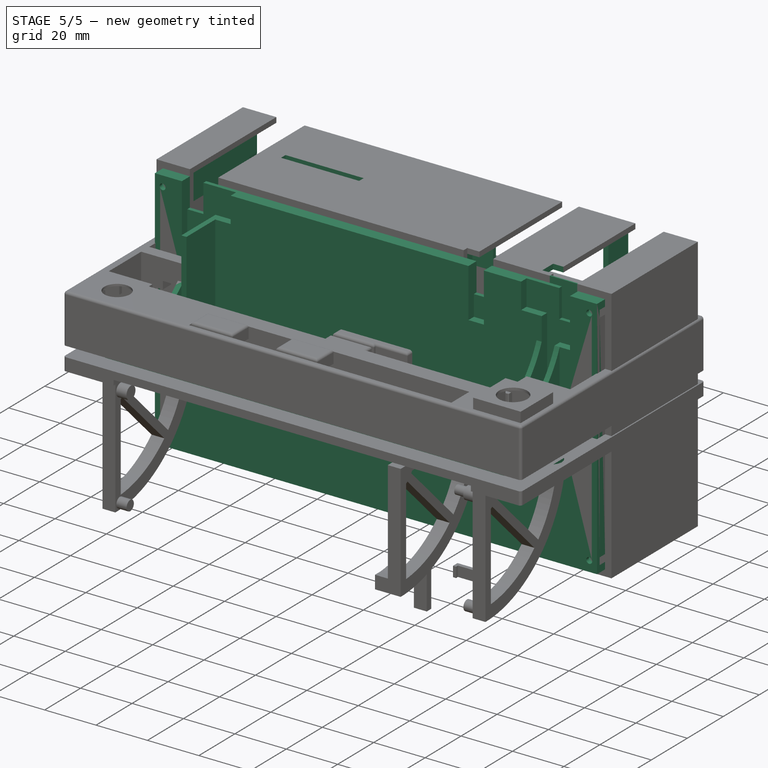
[diagram: stage 5 of 5 — iso view after this stage's code; geometry added in this stage tinted green]
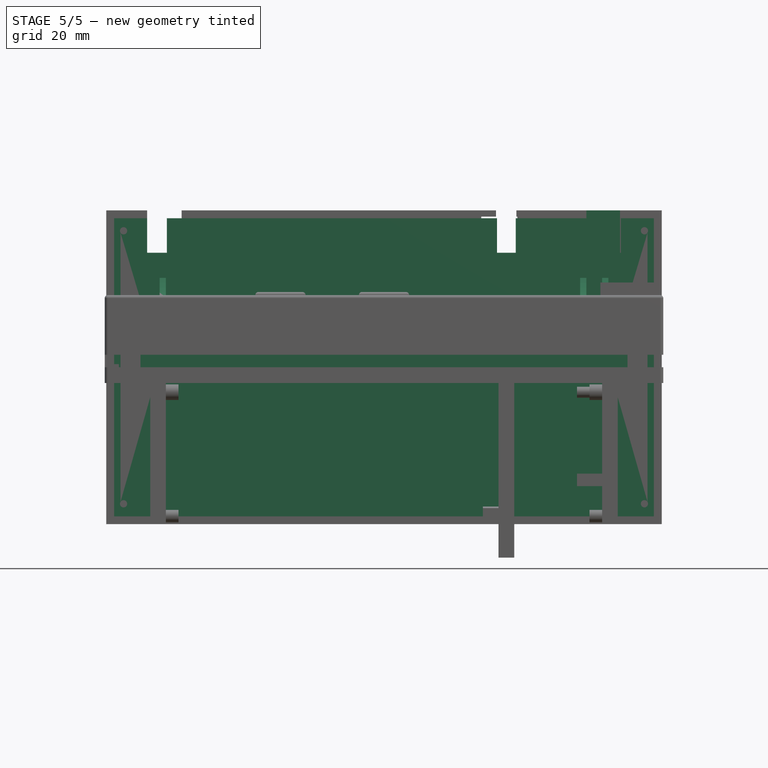
[diagram: stage 5 of 5 — front view after this stage's code; geometry added in this stage tinted green]
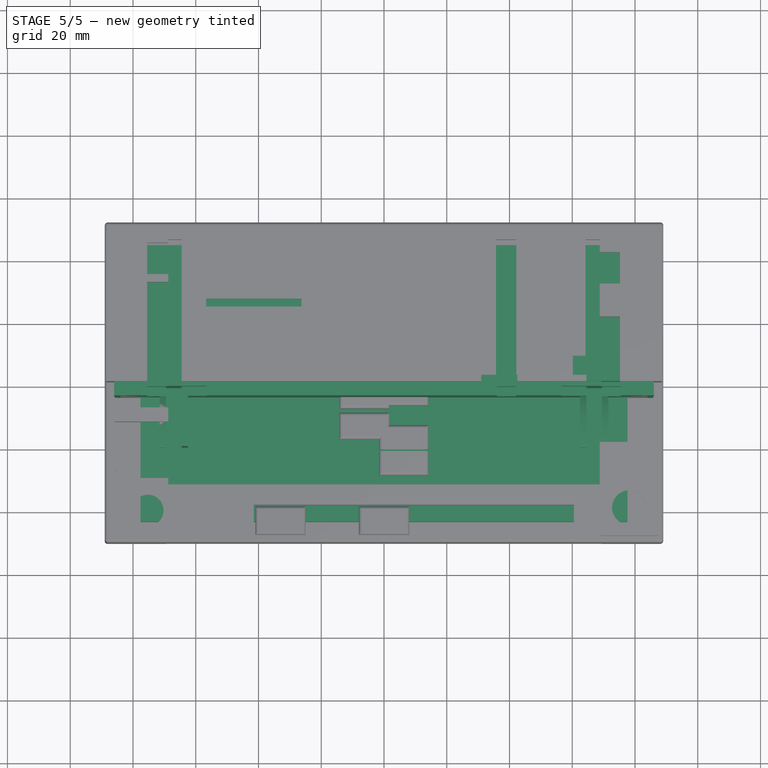
[diagram: stage 5 of 5 — top view after this stage's code; geometry added in this stage tinted green]
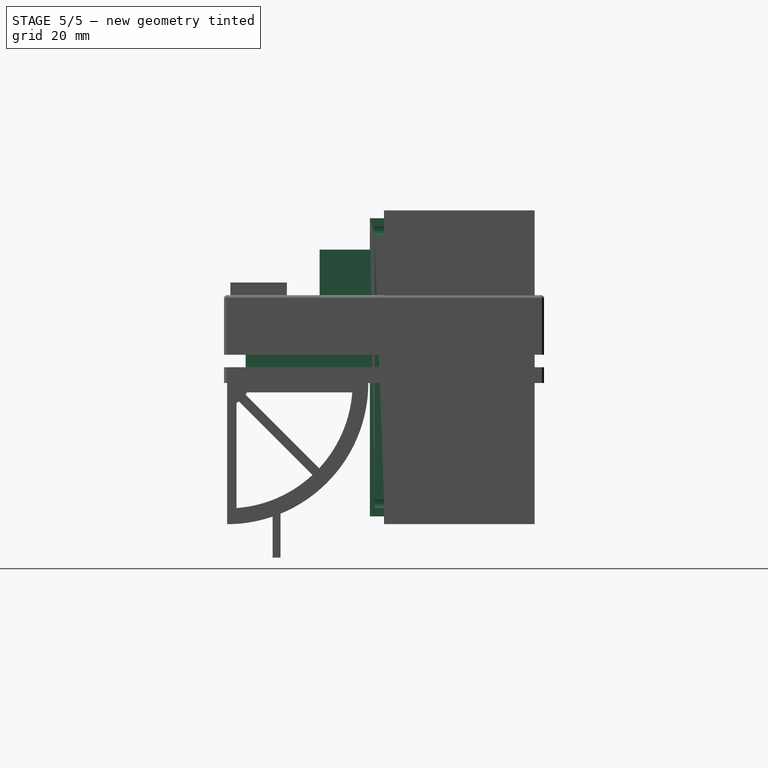
[diagram: stage 5 of 5 — right view after this stage's code; geometry added in this stage tinted green]
FEATURE [Sketcher::SketchObject] Sketch017  label="Screen Base Sketch"
  ArcFitTolerance = 1e-06
  AttachmentSupport = -> [XY_Plane004]
  FullyConstrained = true
  MakeInternals = false
  MapMode = 5
  sketch-geometry (4):
    g0: LineSegment StartX=-77.6 StartY=44.1 StartZ=0 EndX=-77.6 EndY=-44.1 EndZ=0
    g1: LineSegment StartX=-77.6 StartY=-44.1 StartZ=0 EndX=77.6 EndY=-44.1 EndZ=0
    g2: LineSegment StartX=77.6 StartY=-44.1 StartZ=0 EndX=77.6 EndY=44.1 EndZ=0
    g3: LineSegment StartX=77.6 StartY=44.1 StartZ=0 EndX=-77.6 EndY=44.1 EndZ=0
  constraints (10):
    c: Coincident(g0,g1)
    c: Coincident(g1,g2)
    c: Coincident(g2,g3)
    c: Coincident(g3,g0)
    c: Vertical(g0)
    c: Horizontal(g1)
    c: DistanceX(g3,g3) = 155.2
    c: DistanceY(g0,g0) = 88.2
    c: Symmetric(g2,g1,g-1)
    c: Symmetric(g2,g0,g-2)
FEATURE [PartDesign::Pad] Pad009  label="Screen Model Base"
  Direction = (0,0,1)
  Length = 5
  Length2 = 10
  Profile = -> Sketch017
  ReferenceAxis = -> Sketch017 [N_Axis]
  Suppressed = false
  Type = 0
FEATURE [Part::Feature] Part__Feature  label="DC11L1521538-BCC"
  Placement = pos=(-79,-42.5,13) rot=(0,0,1;1.5708rad)
  shape: bbox 18.02 x 15.02 x 15.32 mm, 773 faces, 10 solids (baked)
FEATURE [Sketcher::SketchObject] Sketch  label="Knob PCB Base Sketch"
  ArcFitTolerance = 1e-06
  AttachmentSupport = -> [XY_Plane]
  FullyConstrained = true
  MakeInternals = false
  MapMode = 5
  sketch-geometry (15):
    g0: LineSegment StartX=86.2 StartY=13.5 StartZ=0 EndX=69.7 EndY=13.5 EndZ=0
    g1: LineSegment StartX=69.7 StartY=-3.5 StartZ=0 EndX=86.2 EndY=-3.5 EndZ=0
    g2: LineSegment StartX=86.2 StartY=-3.5 StartZ=0 EndX=86.2 EndY=13.5 EndZ=0
    g3: LineSegment [constr] StartX=69.7 StartY=13.5 StartZ=0 EndX=69.7 EndY=-3.5 EndZ=0
    g4: LineSegment StartX=69.7 StartY=13.5 StartZ=0 EndX=69.7 EndY=2.5 EndZ=0
    g5: LineSegment StartX=69.7 StartY=2.5 StartZ=0 EndX=60.2 EndY=2.5 EndZ=0
    g6: LineSegment StartX=60.2 StartY=2.5 StartZ=0 EndX=60.2 EndY=5.5 EndZ=0
    g7: LineSegment StartX=60.2 StartY=5.5 StartZ=0 EndX=-40.8 EndY=5.5 EndZ=0
    g8: LineSegment StartX=-40.8 StartY=5.5 StartZ=0 EndX=-40.8 EndY=2.5 EndZ=0
    g9: LineSegment [constr] StartX=-40.8 StartY=2.5 StartZ=0 EndX=60.2 EndY=2.5 EndZ=0
    g10: LineSegment StartX=-40.8 StartY=2.5 StartZ=0 EndX=-65.8 EndY=2.5 EndZ=0
    g11: LineSegment StartX=-65.8 StartY=2.5 StartZ=0 EndX=-65.8 EndY=11.9 EndZ=0
    g12: LineSegment StartX=-65.8 StartY=11.9 StartZ=0 EndX=-84.8 EndY=11.9 EndZ=0
    g13: LineSegment StartX=-84.8 StartY=11.9 StartZ=0 EndX=-84.8 EndY=-3.5 EndZ=0
    g14: LineSegment StartX=69.7 StartY=-3.5 StartZ=0 EndX=-84.8 EndY=-3.5 EndZ=0
  constraints (43):
    c: Coincident(g1,g2)
    c: Coincident(g2,g0)
    c: Horizontal(g0)
    c: Horizontal(g1)
    c: Vertical(g2)
    c: DistanceY(g2,g2) = 17
    c: Coincident(g3,g0)
    c: Coincident(g3,g1)
    c: Vertical(g3)
    c: DistanceY(g1,g-1) = 3.5
    c: DistanceX(g0,g0) = 16.5
    c: Coincident(g4,g0)
    c: Vertical(g4)
    c: Coincident(g5,g4)
    c: Horizontal(g5)
    c: DistanceY(g4,g0) = 11
    c: DistanceX(g5,g5) = 9.5
    c: Coincident(g6,g5)
    c: Vertical(g6)
    c: DistanceY(g6,g6) = 3
    c: Coincident(g7,g6)
    c: Horizontal(g7)
    c: DistanceX(g7,g7) = 101
    c: Coincident(g8,g7)
    c: Vertical(g8)
    c: Coincident(g9,g8)
    c: Coincident(g9,g5)
    c: Horizontal(g9)
    c: Coincident(g10,g8)
    c: Horizontal(g10)
    c: DistanceX(g10,g10) = 25
    c: Coincident(g11,g10)
    c: Vertical(g11)
    c: DistanceY(g11,g11) = 9.4
    c: Coincident(g12,g11)
    c: Horizontal(g12)
    c: DistanceX(g12,g12) = 19
    c: Coincident(g13,g12)
    c: Vertical(g13)
    c: Coincident(g14,g1)
    c: Coincident(g14,g13)
    c: Horizontal(g14)
    c: DistanceX(g-1,g0) = 86.2
FEATURE [PartDesign::Pad] Pad  label="Knob PCB Base"
  Direction = (0,0,1)
  Length = 1.8
  Length2 = 10
  Profile = -> Sketch
  ReferenceAxis = -> Sketch [N_Axis]
  Refine = true
  Reversed = true
  Suppressed = false
  Type = 0
FEATURE [Sketcher::SketchObject] Sketch040  label="Main PCB Base Sketch"
  ArcFitTolerance = 1e-06
  AttachmentSupport = -> [XY_Plane015]
  FullyConstrained = true
  MakeInternals = false
  MapMode = 5
  sketch-geometry (4):
    g0: LineSegment StartX=85.5 StartY=48 StartZ=0 EndX=-85.5 EndY=48 EndZ=0
    g1: LineSegment StartX=-85.5 StartY=48 StartZ=0 EndX=-85.5 EndY=-37 EndZ=0
    g2: LineSegment StartX=-85.5 StartY=-37 StartZ=0 EndX=85.5 EndY=-37 EndZ=0
    g3: LineSegment StartX=85.5 StartY=-37 StartZ=0 EndX=85.5 EndY=48 EndZ=0
  constraints (11):
    c: Coincident(g0,g1)
    c: Coincident(g1,g2)
    c: Coincident(g2,g3)
    c: Coincident(g3,g0)
    c: Horizontal(g2)
    c: Vertical(g1)
    c: Symmetric(g0,g0,g-2)
    c: Vertical(g3)
    c: DistanceX(g0,g0) = 171
    c: DistanceY(g-1,g0) = 48
    c: DistanceY(g2,g-1) = 37
FEATURE [PartDesign::Pad] Pad024  label="Main PCB Base"
  Direction = (0,0,1)
  Length = 2
  Length2 = 10
  Profile = -> Sketch040
  ReferenceAxis = -> Sketch040 [N_Axis]
  Refine = true
  Reversed = true
  Suppressed = false
  Type = 0
FEATURE [Sketcher::SketchObject] Sketch077  label="Screen DIN Guide Holes Sketch"
  ArcFitTolerance = 1e-06
  AttachmentSupport = -> [Pad045]
  ExternalGeometry = -> [Pad045]
  FullyConstrained = true
  MakeInternals = false
  MapMode = 5
  Placement = pos=(0,6.3,0) rot=(-1,0,0;1.5708rad)
  sketch-geometry (7):
    g0: LineSegment [constr] StartX=66.7 StartY=6 StartZ=0 EndX=64 EndY=6 EndZ=0
    g1: LineSegment [constr] StartX=64 StartY=6 StartZ=0 EndX=64 EndY=1 EndZ=0
    g2: LineSegment [constr] StartX=64 StartY=1 StartZ=0 EndX=66.7 EndY=1 EndZ=0
    g3: LineSegment [constr] StartX=66.7 StartY=1 StartZ=0 EndX=66.7 EndY=6 EndZ=0
    g4: Circle CenterX=64 CenterY=1 CenterZ=0 NormalX=0 NormalY=0 NormalZ=1 AngleXU=0 Radius=1.15
    g5: Circle CenterX=-64 CenterY=1 CenterZ=0 NormalX=0 NormalY=0 NormalZ=1 AngleXU=0 Radius=1.15
    g6: LineSegment [constr] StartX=64 StartY=1 StartZ=0 EndX=-64 EndY=1 EndZ=0
  constraints (18):
    c: Coincident(g0,g1)
    c: Coincident(g1,g2)
    c: Coincident(g2,g3)
    c: Coincident(g3,g0)
    c: Horizontal(g0)
    c: Vertical(g1)
    c: Vertical(g3)
    c: Coincident(g0,g-4)
    c: Horizontal(g2)
    c: DistanceX(g2,g2) = 2.7
    c: DistanceY(g1,g1) = 5
    c: Coincident(g4,g1)
    c: Diameter(g4) = 2.3
    c: Equal(g5,g4)
    c: Coincident(g6,g1)
    c: Coincident(g6,g5)
    c: Horizontal(g6)
    c: DistanceX(g5,g-6) = 5.5
FEATURE [PartDesign::Pocket] Pocket029  label="Screen DIN Guide Holes"
  BaseFeature = -> Pad045
  Direction = (0,-1,-2e-16)
  Length = 3
  Length2 = 5
  Placement = pos=(0,0,0) rot=(1,0,0;1.5708rad)
  Profile = -> Sketch077
  ReferenceAxis = -> Sketch077 [N_Axis]
  Refine = true
  Suppressed = false
  Type = 0
FEATURE [Sketcher::SketchObject] Sketch078  label="Left Screen Guide Base Sketch"
  ArcFitTolerance = 1e-06
  AttachmentSupport = -> [YZ_Plane020]
  FullyConstrained = true
  MakeInternals = false
  MapMode = 5
  Placement = pos=(0,0,0) rot=(0.57735,0.57735,0.57735;2.0944rad)
  sketch-geometry (11):
    g0: LineSegment StartX=0 StartY=-13 StartZ=0 EndX=45 EndY=-13 EndZ=0
    g1: LineSegment StartX=45 StartY=-13 StartZ=0 EndX=45 EndY=33 EndZ=0
    g2: LineSegment StartX=45 StartY=33 StartZ=0 EndX=9 EndY=33 EndZ=0
    g3: LineSegment StartX=0 StartY=32 StartZ=0 EndX=0 EndY=-13 EndZ=0
    g4: ArcOfCircle CenterX=7 CenterY=33 CenterZ=0 NormalX=0 NormalY=0 NormalZ=1 AngleXU=0 Radius=2 StartAngle=3e-16 EndAngle=1.5708
    g5: LineSegment [constr] StartX=7 StartY=35 StartZ=0 EndX=7 EndY=33 EndZ=0
    g6: LineSegment [constr] StartX=7 StartY=33 StartZ=0 EndX=9 EndY=33 EndZ=0
    g7: LineSegment StartX=7 StartY=35 StartZ=0 EndX=3 EndY=35 EndZ=0
    g8: ArcOfCircle CenterX=3 CenterY=32 CenterZ=0 NormalX=0 NormalY=0 NormalZ=1 AngleXU=0 Radius=3 StartAngle=1.5708 EndAngle=3.14159
    g9: LineSegment [constr] StartX=3 StartY=35 StartZ=0 EndX=3 EndY=32 EndZ=0
    g10: LineSegment [constr] StartX=3 StartY=32 StartZ=0 EndX=0 EndY=32 EndZ=0
  constraints (31):
    c: Coincident(g0,g1)
    c: Coincident(g1,g2)
    c: Coincident(g3,g0)
    c: Horizontal(g0)
    c: Horizontal(g2)
    c: Vertical(g1)
    c: Vertical(g3)
    c: PointOnObject(g0,g-2)
    c: DistanceX(g0,g0) = 45
    c: DistanceY(g1,g1) = 46
    c: DistanceX(g2,g2) = 36
    c: DistanceY(g0,g-1) = 13
    c: Coincident(g4,g2)
    c: Coincident(g5,g4)
    c: Coincident(g5,g4)
    c: Vertical(g5)
    c: Coincident(g6,g4)
    c: Coincident(g6,g2)
    c: Horizontal(g6)
    c: Radius(g4) = 2
    c: Coincident(g7,g4)
    c: Horizontal(g7)
    c: Coincident(g8,g7)
    c: Coincident(g9,g7)
    c: Coincident(g9,g8)
    c: Vertical(g9)
    c: Coincident(g10,g8)
    c: Coincident(g10,g8)
    c: Horizontal(g10)
    c: Radius(g8) = 3
    c: Coincident(g3,g8)
FEATURE [PartDesign::Pad] Pad046  label="Left Screen Guide Base"
  Direction = (1,0,0)
  Length = 4
  Length2 = 10
  Placement = pos=(0,0,0) rot=(1,1,1;2.0944rad)
  Profile = -> Sketch078
  ReferenceAxis = -> Sketch078 [N_Axis]
  Refine = true
  Suppressed = false
  Type = 0
FEATURE [Sketcher::SketchObject] Sketch079  label="Left Screen Guide Cut Sketch"
  ArcFitTolerance = 1e-06
  AttachmentSupport = -> [Pad046]
  ExternalGeometry = -> [Pad046]
  FullyConstrained = true
  MakeInternals = false
  MapMode = 5
  Placement = pos=(4,0,0) rot=(0.57735,0.57735,0.57735;2.0944rad)
  sketch-geometry (18):
    g0: Circle CenterX=3.95 CenterY=31.05 CenterZ=0 NormalX=0 NormalY=0 NormalZ=1 AngleXU=0 Radius=2.85
    g1: LineSegment [constr] StartX=3 StartY=32 StartZ=0 EndX=3 EndY=31.05 EndZ=0
    g2: LineSegment [constr] StartX=3 StartY=31.05 StartZ=0 EndX=3.95 EndY=31.05 EndZ=0
    g3: LineSegment [constr] StartX=3.95 StartY=31.05 StartZ=0 EndX=3.95 EndY=32 EndZ=0
    g4: LineSegment [constr] StartX=3.95 StartY=32 StartZ=0 EndX=3 EndY=32 EndZ=0
    g5: ArcOfCircle CenterX=3.5 CenterY=-8.45 CenterZ=0 NormalX=0 NormalY=0 NormalZ=1 AngleXU=0 Radius=2.43 StartAngle=1.5708 EndAngle=4.71239
    g6: LineSegment [constr] StartX=3.5 StartY=-8.45 StartZ=0 EndX=3.5 EndY=-6.02 EndZ=0
    g7: LineSegment [constr] StartX=3.5 StartY=-8.45 StartZ=0 EndX=3.5 EndY=-10.88 EndZ=0
    g8: LineSegment [constr] StartX=3.5 StartY=-8.45 StartZ=0 EndX=3.5 EndY=0 EndZ=0
    g9: LineSegment [constr] StartX=3.5 StartY=0 StartZ=0 EndX=0 EndY=0 EndZ=0
    g10: LineSegment [constr] StartX=0 StartY=0 StartZ=0 EndX=0 EndY=-8.45 EndZ=0
    g11: LineSegment [constr] StartX=0 StartY=-8.45 StartZ=0 EndX=3.5 EndY=-8.45 EndZ=0
    g12: ArcOfCircle CenterX=3.95 CenterY=31.05 CenterZ=0 NormalX=0 NormalY=0 NormalZ=1 AngleXU=0 Radius=37.0727 StartAngle=4.70025 EndAngle=5.56458
    g13: ArcOfCircle CenterX=3.95 CenterY=31.05 CenterZ=0 NormalX=0 NormalY=0 NormalZ=1 AngleXU=0 Radius=41.9324 StartAngle=4.70166 EndAngle=5.56317
    g14: ArcOfCircle CenterX=33.6651 CenterY=5.02184 CenterZ=0 NormalX=0 NormalY=0 NormalZ=1 AngleXU=0 Radius=2.43 StartAngle=5.55244 EndAngle=8.69403
    g15: LineSegment [constr] StartX=31.8555 StartY=6.64368 StartZ=0 EndX=33.6651 EndY=5.02184 EndZ=0
    g16: LineSegment [constr] StartX=33.6651 StartY=5.02184 StartZ=0 EndX=35.4747 EndY=3.4 EndZ=0
    g17: LineSegment [constr] StartX=35.4747 StartY=3.4 StartZ=0 EndX=35.4747 EndY=-13 EndZ=0
  constraints (48):
    c: Coincident(g1,g2)
    c: Coincident(g2,g3)
    c: Coincident(g3,g4)
    c: Coincident(g4,g1)
    c: Vertical(g1)
    c: Vertical(g3)
    c: Horizontal(g2)
    c: Horizontal(g4)
    c: Coincident(g1,g-3)
    c: Coincident(g2,g0)
    c: Equal(g2,g3)
    c: DistanceX(g2,g2) = 0.95
    c: Diameter(g0) = 5.7
    c: Coincident(g6,g5)
    c: Coincident(g6,g5)
    c: Coincident(g7,g5)
    c: Coincident(g7,g5)
    c: Vertical(g6)
    c: Vertical(g7)
    c: Coincident(g8,g9)
    c: Coincident(g9,g10)
    c: Coincident(g10,g11)
    c: Coincident(g11,g8)
    c: Vertical(g8)
    c: Vertical(g10)
    c: Horizontal(g9)
    c: Horizontal(g11)
    c: Coincident(g8,g5)
    c: Coincident(g9,g-1)
    c: DistanceX(g11,g11) = 3.5
    c: DistanceY(g8,g8) = 8.45
    c: Radius(g5) = 2.43
    c: Coincident(g12,g0)
    c: Coincident(g12,g5)
    c: Coincident(g13,g0)
    c: Coincident(g13,g5)
    c: Coincident(g14,g12)
    c: Coincident(g14,g13)
    c: Coincident(g15,g12)
    c: Coincident(g15,g14)
    c: Coincident(g16,g14)
    c: Coincident(g16,g13)
    c: Equal(g14,g5)
    c: Coincident(g17,g13)
    c: PointOnObject(g17,g-8)
    c: Vertical(g17)
    c: DistanceY(g17,g17) = 16.4
    c: Parallel(g15,g16)
FEATURE [PartDesign::Pocket] Pocket030  label="Left Screen Guide Cut"
  BaseFeature = -> Pad046
  Direction = (-1,0,0)
  Length = 5
  Length2 = 5
  Placement = pos=(0,0,0) rot=(1,1,1;2.0944rad)
  Profile = -> Sketch079
  ReferenceAxis = -> Sketch079 [N_Axis]
  Refine = true
  Suppressed = false
  Type = 0
FEATURE [Sketcher::SketchObject] Sketch080  label="Left Screen Guide Screw Mount Sketch"
  ArcFitTolerance = 1e-06
  AttachmentSupport = -> [Pocket030]
  ExternalGeometry = -> [Pocket030]
  FullyConstrained = true
  MakeInternals = false
  MapMode = 5
  Placement = pos=(0,-2.9e-15,-13) rot=(0.707107,0.707107,0;3.14159rad)
  sketch-geometry (8):
    g0: LineSegment StartX=1.2 StartY=2.1 StartZ=0 EndX=5.6 EndY=2.1 EndZ=0
    g1: LineSegment StartX=1.2 StartY=2.1 StartZ=0 EndX=1.2 EndY=-1.3e-15 EndZ=0
    g2: LineSegment StartX=7.6 StartY=10 StartZ=0 EndX=7.6 EndY=-1.8e-15 EndZ=0
    g3: LineSegment StartX=7.6 StartY=-1.3e-15 StartZ=0 EndX=5.6 EndY=-1.3e-15 EndZ=0
    g4: LineSegment StartX=1.2 StartY=-1.3e-15 StartZ=0 EndX=5.6 EndY=-1.3e-15 EndZ=0
    g5: LineSegment StartX=5.6 StartY=2.1 StartZ=0 EndX=5.6 EndY=10 EndZ=0
    g6: LineSegment StartX=5.6 StartY=10 StartZ=0 EndX=7.6 EndY=10 EndZ=0
    g7: LineSegment [constr] StartX=5.6 StartY=2.1 StartZ=0 EndX=5.6 EndY=-1.3e-15 EndZ=0
  constraints (23):
    c: Vertical(g2)
    c: Coincident(g3,g2)
    c: Horizontal(g3)
    c: Coincident(g4,g1)
    c: Horizontal(g4)
    c: DistanceY(g2,g2) = 10
    c: DistanceX(g4,g4) = 4.4
    c: Coincident(g1,g0)
    c: Horizontal(g0)
    c: Vertical(g1)
    c: DistanceX(g3,g3) = 2
    c: DistanceY(g1,g1) = 2.1
    c: DistanceX(g-5,g4) = 5.6
    c: Coincident(g3,g4)
    c: PointOnObject(g3,g-4)
    c: Coincident(g5,g0)
    c: Vertical(g5)
    c: Coincident(g6,g5)
    c: Coincident(g6,g2)
    c: Horizontal(g6)
    c: Coincident(g7,g0)
    c: Coincident(g7,g3)
    c: Vertical(g7)
FEATURE [PartDesign::Pad] Pad047  label="Left Screen Guide Screw Mount"
  BaseFeature = -> Pocket030
  Direction = (0,0,-1)
  Length = 10
  Length2 = 10
  Placement = pos=(0,0,0) rot=(1,1,1;2.0944rad)
  Profile = -> Sketch080
  ReferenceAxis = -> Sketch080 [N_Axis]
  Refine = true
  Suppressed = false
  Type = 0
FEATURE [Sketcher::SketchObject] Sketch081  label="Left Screen Guide Screwhole Sketch"
  ArcFitTolerance = 1e-06
  AttachmentSupport = -> [Pad047]
  ExternalGeometry = -> [Pad047]
  FullyConstrained = true
  MakeInternals = false
  MapMode = 5
  Placement = pos=(3.3e-15,7.6,0) rot=(0.57735,0.57735,0.57735;4.18879rad)
  sketch-geometry (3):
    g0: LineSegment [constr] StartX=-18 StartY=2.8e-15 StartZ=0 EndX=-18 EndY=10 EndZ=0
    g1: LineSegment [constr] StartX=-23 StartY=5 StartZ=0 EndX=-13 EndY=5 EndZ=0
    g2: Circle CenterX=-18 CenterY=5 CenterZ=0 NormalX=0 NormalY=0 NormalZ=1 AngleXU=0 Radius=1.15
  constraints (8):
    c: PointOnObject(g1,g-4)
    c: Symmetric(g1,g1,g2)
    c: Diameter(g2) = 2.3
    c: PointOnObject(g1,g-3)
    c: PointOnObject(g0,g-6)
    c: PointOnObject(g0,g-5)
    c: Symmetric(g-5,g-5,g0)
    c: Symmetric(g-6,g-5,g1)
FEATURE [PartDesign::Pocket] Pocket031  label="Left Screen Guide Screwhole"
  BaseFeature = -> Pad047
  Direction = (0,-1,0)
  Length = 5
  Length2 = 5
  Placement = pos=(0,0,0) rot=(1,1,1;2.0944rad)
  Profile = -> Sketch081
  ReferenceAxis = -> Sketch081 [N_Axis]
  Refine = true
  Suppressed = false
  Type = 0
FEATURE [Sketcher::SketchObject] Sketch083  label="Latch Solenoid Base Sketch"
  ArcFitTolerance = 1e-06
  AttachmentSupport = -> [XZ_Plane021]
  FullyConstrained = true
  MakeInternals = false
  MapMode = 5
  Placement = pos=(0,0,0) rot=(1,0,0;1.5708rad)
  sketch-geometry (4):
    g0: LineSegment StartX=13.5 StartY=8 StartZ=0 EndX=-13.5 EndY=8 EndZ=0
    g1: LineSegment StartX=-13.5 StartY=8 StartZ=0 EndX=-13.5 EndY=-8 EndZ=0
    g2: LineSegment StartX=-13.5 StartY=-8 StartZ=0 EndX=13.5 EndY=-8 EndZ=0
    g3: LineSegment StartX=13.5 StartY=-8 StartZ=0 EndX=13.5 EndY=8 EndZ=0
  constraints (10):
    c: Coincident(g0,g1)
    c: Coincident(g1,g2)
    c: Coincident(g2,g3)
    c: Coincident(g3,g0)
    c: Horizontal(g2)
    c: Vertical(g1)
    c: Symmetric(g0,g2,g-1)
    c: Symmetric(g0,g0,g-2)
    c: DistanceY(g3,g3) = 16
    c: DistanceX(g0,g0) = 27
FEATURE [PartDesign::Pad] Pad049  label="Latch Solenoid Base"
  Direction = (0,-1,2e-16)
  Length = 17.5
  Length2 = 10
  Placement = pos=(0,0,0) rot=(1,0,0;1.5708rad)
  Profile = -> Sketch083
  ReferenceAxis = -> Sketch083 [N_Axis]
  Refine = true
  Reversed = true
  Suppressed = false
  Type = 0
FEATURE [Sketcher::SketchObject] Sketch084  label="Latch Solenoid Latch Sketch"
  ArcFitTolerance = 1e-06
  AttachmentSupport = -> [Pad049]
  ExternalGeometry = -> [Pad049]
  FullyConstrained = true
  MakeInternals = false
  MapMode = 5
  Placement = pos=(13.5,0,0) rot=(0.707107,0,0.707107;3.14159rad)
  sketch-geometry (5):
    g0: LineSegment [constr] StartX=-8 StartY=-8.75 StartZ=0 EndX=8 EndY=-8.75 EndZ=0
    g1: LineSegment StartX=-2.5 StartY=-3.75 StartZ=0 EndX=-2.5 EndY=-13.75 EndZ=0
    g2: LineSegment StartX=-2.5 StartY=-13.75 StartZ=0 EndX=2.5 EndY=-13.75 EndZ=0
    g3: LineSegment StartX=2.5 StartY=-13.75 StartZ=0 EndX=2.5 EndY=-3.75 EndZ=0
    g4: LineSegment StartX=2.5 StartY=-3.75 StartZ=0 EndX=-2.5 EndY=-3.75 EndZ=0
  constraints (12):
    c: Symmetric(g-3,g-3,g0)
    c: Symmetric(g-5,g-5,g0)
    c: Coincident(g1,g2)
    c: Coincident(g2,g3)
    c: Coincident(g3,g4)
    c: Coincident(g4,g1)
    c: Vertical(g3)
    c: Horizontal(g4)
    c: Symmetric(g2,g1,g-2)
    c: Symmetric(g1,g1,g0)
    c: DistanceY(g1,g1) = 10
    c: DistanceX(g2,g2) = 5
FEATURE [PartDesign::Pad] Pad050  label="Latch Solenoid Latch"
  BaseFeature = -> Pad049
  Direction = (1,0,-2e-16)
  Length = 6
  Length2 = 10
  Placement = pos=(0,0,0) rot=(1,0,0;1.5708rad)
  Profile = -> Sketch084
  ReferenceAxis = -> Sketch084 [N_Axis]
  Refine = true
  Suppressed = false
  Type = 0
FEATURE [PartDesign::Chamfer] Chamfer  label="Latch Chamfer"
  Angle = 45
  Base = -> Pad050 [Edge21]
  BaseFeature = -> Pad050
  ChamferType = 1
  FlipDirection = false
  Placement = pos=(0,0,0) rot=(1,0,0;1.5708rad)
  Refine = true
  Size = 5.5
  Size2 = 9.5
  SupportTransform = false
  Suppressed = false
  UseAllEdges = false
FEATURE [Sketcher::SketchObject] Sketch085  label="Latch Solenoid Bracket Sketch"
  ArcFitTolerance = 1e-06
  AttachmentSupport = -> [Chamfer]
  ExternalGeometry = -> [Chamfer]
  FullyConstrained = true
  MakeInternals = false
  MapMode = 5
  Placement = pos=(0,0,0) rot=(1,0,0;1.5708rad)
  sketch-geometry (38):
    g0: LineSegment StartX=-13.5 StartY=8 StartZ=0 EndX=13.5 EndY=8 EndZ=0
    g1: LineSegment StartX=13.5 StartY=8 StartZ=0 EndX=13.5 EndY=14 EndZ=0
    g2: LineSegment StartX=13.5 StartY=14 StartZ=0 EndX=-13.5 EndY=14 EndZ=0
    g3: LineSegment StartX=-13.5 StartY=14 StartZ=0 EndX=-13.5 EndY=8 EndZ=0
    g4: LineSegment StartX=-13.5 StartY=-8 StartZ=0 EndX=-13.5 EndY=-14 EndZ=0
    g5: LineSegment StartX=-13.5 StartY=-14 StartZ=0 EndX=13.5 EndY=-14 EndZ=0
    g6: LineSegment StartX=13.5 StartY=-14 StartZ=0 EndX=13.5 EndY=-8 EndZ=0
    g7: LineSegment StartX=13.5 StartY=-8 StartZ=0 EndX=-13.5 EndY=-8 EndZ=0
    g8: LineSegment [constr] StartX=-9.9 StartY=12.4 StartZ=0 EndX=-9.9 EndY=9.2 EndZ=0
    g9: LineSegment StartX=-9.9 StartY=9.2 StartZ=0 EndX=-8.1 EndY=9.2 EndZ=0
    g10: LineSegment [constr] StartX=-8.1 StartY=9.2 StartZ=0 EndX=-8.1 EndY=12.4 EndZ=0
    g11: LineSegment StartX=-8.1 StartY=12.4 StartZ=0 EndX=-9.9 EndY=12.4 EndZ=0
    g12: ArcOfCircle CenterX=-9.9 CenterY=10.8 CenterZ=0 NormalX=0 NormalY=0 NormalZ=1 AngleXU=0 Radius=1.6 StartAngle=1.5708 EndAngle=4.71239
    g13: ArcOfCircle CenterX=-8.1 CenterY=10.8 CenterZ=0 NormalX=0 NormalY=0 NormalZ=1 AngleXU=0 Radius=1.6 StartAngle=4.71239 EndAngle=7.85398
    g14: LineSegment [constr] StartX=-11.5 StartY=10.8 StartZ=0 EndX=-6.5 EndY=10.8 EndZ=0
    g15: LineSegment [constr] StartX=8.1 StartY=12.4 StartZ=0 EndX=8.1 EndY=9.2 EndZ=0
    g16: LineSegment StartX=8.1 StartY=9.2 StartZ=0 EndX=9.9 EndY=9.2 EndZ=0
    g17: LineSegment [constr] StartX=9.9 StartY=9.2 StartZ=0 EndX=9.9 EndY=12.4 EndZ=0
    g18: LineSegment StartX=9.9 StartY=12.4 StartZ=0 EndX=8.1 EndY=12.4 EndZ=0
    g19: ArcOfCircle CenterX=8.1 CenterY=10.8 CenterZ=0 NormalX=0 NormalY=0 NormalZ=1 AngleXU=0 Radius=1.6 StartAngle=1.5708 EndAngle=4.71239
    g20: ArcOfCircle CenterX=9.9 CenterY=10.8 CenterZ=0 NormalX=0 NormalY=0 NormalZ=1 AngleXU=0 Radius=1.6 StartAngle=4.71239 EndAngle=7.85398
    g21: LineSegment [constr] StartX=-9 StartY=12.4 StartZ=0 EndX=-9 EndY=9.2 EndZ=0
    g22: LineSegment [constr] StartX=9 StartY=12.4 StartZ=0 EndX=9 EndY=9.2 EndZ=0
    g23: LineSegment [constr] StartX=-9.9 StartY=-9.2 StartZ=0 EndX=-9.9 EndY=-12.4 EndZ=0
    g24: LineSegment StartX=-9.9 StartY=-12.4 StartZ=0 EndX=-8.1 EndY=-12.4 EndZ=0
    g25: LineSegment [constr] StartX=-8.1 StartY=-12.4 StartZ=0 EndX=-8.1 EndY=-9.2 EndZ=0
    g26: LineSegment StartX=-8.1 StartY=-9.2 StartZ=0 EndX=-9.9 EndY=-9.2 EndZ=0
    g27: ArcOfCircle CenterX=-9.9 CenterY=-10.8 CenterZ=0 NormalX=0 NormalY=0 NormalZ=1 AngleXU=0 Radius=1.6 StartAngle=1.5708 EndAngle=4.71239
    g28: ArcOfCircle CenterX=-8.1 CenterY=-10.8 CenterZ=0 NormalX=0 NormalY=0 NormalZ=1 AngleXU=0 Radius=1.6 StartAngle=4.71239 EndAngle=7.85398
    g29: LineSegment [constr] StartX=-9.9 StartY=-9.2 StartZ=0 EndX=-9.9 EndY=9.2 EndZ=0
    g30: LineSegment [constr] StartX=8.1 StartY=-9.2 StartZ=0 EndX=8.1 EndY=-12.4 EndZ=0
    g31: LineSegment StartX=8.1 StartY=-12.4 StartZ=0 EndX=9.9 EndY=-12.4 EndZ=0
    g32: LineSegment [constr] StartX=9.9 StartY=-12.4 StartZ=0 EndX=9.9 EndY=-9.2 EndZ=0
    g33: LineSegment StartX=9.9 StartY=-9.2 StartZ=0 EndX=8.1 EndY=-9.2 EndZ=0
    g34: ArcOfCircle CenterX=8.1 CenterY=-10.8 CenterZ=0 NormalX=0 NormalY=0 NormalZ=1 AngleXU=0 Radius=1.6 StartAngle=1.5708 EndAngle=4.71239
    g35: ArcOfCircle CenterX=9.9 CenterY=-10.8 CenterZ=0 NormalX=0 NormalY=0 NormalZ=1 AngleXU=0 Radius=1.6 StartAngle=4.71239 EndAngle=7.85398
    g36: LineSegment [constr] StartX=8.1 StartY=-10.8 StartZ=0 EndX=-8.1 EndY=-10.8 EndZ=0
    g37: LineSegment [constr] StartX=9.9 StartY=-9.2 StartZ=0 EndX=9.9 EndY=9.2 EndZ=0
  constraints (103):
    c: Coincident(g0,g1)
    c: Coincident(g1,g2)
    c: Coincident(g2,g3)
    c: Coincident(g3,g0)
    c: Horizontal(g2)
    c: Vertical(g1)
    c: Vertical(g3)
    c: Coincident(g0,g-6)
    c: Coincident(g0,g-4)
    c: Coincident(g4,g5)
    c: Coincident(g5,g6)
    c: Coincident(g6,g7)
    c: Coincident(g7,g4)
    c: Vertical(g4)
    c: Vertical(g6)
    c: Horizontal(g5)
    c: Coincident(g4,g-6)
    c: Coincident(g6,g-5)
    c: Equal(g4,g3)
    c: DistanceY(g4,g2) = 28
    c: Coincident(g8,g9)
    c: Coincident(g9,g10)
    c: Coincident(g10,g11)
    c: Coincident(g11,g8)
    c: Vertical(g8)
    c: Vertical(g10)
    c: Horizontal(g9)
    c: Horizontal(g11)
    c: Coincident(g12,g8)
    c: Coincident(g12,g8)
    c: PointOnObject(g12,g8)
    c: Coincident(g13,g10)
    c: Coincident(g13,g9)
    c: PointOnObject(g13,g10)
    c: PointOnObject(g14,g12)
    c: PointOnObject(g14,g13)
    c: Symmetric(g8,g8,g14)
    c: DistanceX(g14,g14) = 5
    c: DistanceY(g8,g8) = 3.2
    c: Coincident(g15,g16)
    c: Coincident(g16,g17)
    c: Coincident(g17,g18)
    c: Coincident(g18,g15)
    c: Vertical(g15)
    c: Vertical(g17)
    c: Horizontal(g16)
    c: Horizontal(g18)
    c: Coincident(g19,g15)
    c: Coincident(g19,g15)
    c: PointOnObject(g19,g15)
    c: Coincident(g20,g17)
    c: Coincident(g20,g16)
    c: PointOnObject(g20,g17)
    c: Equal(g18,g11)
    c: Equal(g19,g12)
    c: Symmetric(g13,g19,g-2)
    c: Symmetric(g11,g11,g21)
    c: Symmetric(g9,g9,g21)
    c: Symmetric(g18,g18,g22)
    c: Symmetric(g16,g16,g22)
    c: DistanceX(g21,g22) = 18
    c: Coincident(g23,g24)
    c: Coincident(g24,g25)
    c: Coincident(g25,g26)
    c: Coincident(g26,g23)
    c: Vertical(g23)
    c: Vertical(g25)
    c: Horizontal(g24)
    c: Horizontal(g26)
    c: Coincident(g27,g23)
    c: Coincident(g27,g23)
    c: PointOnObject(g27,g23)
    c: Coincident(g28,g25)
    c: Coincident(g28,g24)
    c: PointOnObject(g28,g25)
    c: Equal(g12,g27)
    c: Equal(g11,g26)
    c: Coincident(g29,g23)
    c: Coincident(g29,g8)
    c: Symmetric(g27,g12,g-1)
    c: Coincident(g30,g31)
    c: Coincident(g31,g32)
    c: Coincident(g32,g33)
    c: Coincident(g33,g30)
    c: Vertical(g30)
    c: Vertical(g32)
    c: Horizontal(g31)
    c: Horizontal(g33)
    c: Coincident(g34,g30)
    c: Coincident(g34,g30)
    c: Coincident(g35,g32)
    c: Coincident(g35,g31)
    c: PointOnObject(g35,g32)
    c: PointOnObject(g34,g30)
    c: Equal(g31,g9)
    c: Equal(g34,g12)
    c: DistanceY(g27,g12) = 21.6
    c: Coincident(g36,g34)
    c: Coincident(g36,g28)
    c: Horizontal(g36)
    c: Coincident(g37,g32)
    c: Coincident(g37,g16)
    c: Vertical(g37)
FEATURE [PartDesign::Pad] Pad051  label="Latch Solenoid Bracket"
  BaseFeature = -> Chamfer
  Direction = (0,-1,2e-16)
  Length = 1
  Length2 = 10
  Placement = pos=(0,0,0) rot=(1,0,0;1.5708rad)
  Profile = -> Sketch085
  ReferenceAxis = -> Sketch085 [N_Axis]
  Refine = true
  Reversed = true
  Suppressed = false
  Type = 0
FEATURE [PartDesign::Body] Body020  label="Latch Solenoid"
  AllowCompound = false
  Group = -> [Sketch083,Pad049,Sketch084,Pad050,Chamfer,Sketch085,Pad051]
  Origin = -> Origin021
  Placement = pos=(16,-46,-47.5) rot=(0,0,1;0rad)
  Tip = -> Pad051
FEATURE [Sketcher::SketchObject] Sketch086  label="Screen DIN Screwholes Sketch"
  ArcFitTolerance = 1e-06
  AttachmentSupport = -> [Pocket029]
  ExternalGeometry = -> [Pocket029]
  FullyConstrained = true
  MakeInternals = false
  MapMode = 5
  Placement = pos=(0,2,5e-16) rot=(-1,0,0;1.5708rad)
  sketch-geometry (41):
    g0: Circle CenterX=7 CenterY=2.3 CenterZ=0 NormalX=0 NormalY=0 NormalZ=1 AngleXU=0 Radius=3.3
    g1: LineSegment [constr] StartX=7 StartY=2.3 StartZ=0 EndX=7 EndY=0 EndZ=0
    g2: LineSegment [constr] StartX=7 StartY=0 StartZ=0 EndX=0 EndY=0 EndZ=0
    g3: LineSegment [constr] StartX=0 StartY=0 StartZ=0 EndX=0 EndY=2.3 EndZ=0
    g4: LineSegment [constr] StartX=0 StartY=2.3 StartZ=0 EndX=7 EndY=2.3 EndZ=0
    g5: Circle CenterX=7 CenterY=2.3 CenterZ=0 NormalX=0 NormalY=0 NormalZ=1 AngleXU=0 Radius=1.15
    g6: Circle CenterX=25 CenterY=2.3 CenterZ=0 NormalX=0 NormalY=0 NormalZ=1 AngleXU=0 Radius=3.3
    g7: Circle CenterX=25 CenterY=2.3 CenterZ=0 NormalX=0 NormalY=0 NormalZ=1 AngleXU=0 Radius=1.15
    g8: LineSegment [constr] StartX=7 StartY=2.3 StartZ=0 EndX=25 EndY=2.3 EndZ=0
    g9: Circle CenterX=7 CenterY=-19.2 CenterZ=0 NormalX=0 NormalY=0 NormalZ=1 AngleXU=0 Radius=3.3
    g10: Circle CenterX=7 CenterY=-19.2 CenterZ=0 NormalX=0 NormalY=0 NormalZ=1 AngleXU=0 Radius=1.15
    g11: LineSegment [constr] StartX=7 StartY=2.3 StartZ=0 EndX=7 EndY=-19.2 EndZ=0
    g12: Circle CenterX=25 CenterY=-19.2 CenterZ=0 NormalX=0 NormalY=0 NormalZ=1 AngleXU=0 Radius=3.3
    g13: Circle CenterX=25 CenterY=-19.2 CenterZ=0 NormalX=0 NormalY=0 NormalZ=1 AngleXU=0 Radius=1.15
    g14: LineSegment [constr] StartX=25 StartY=-19.2 StartZ=0 EndX=7 EndY=-19.2 EndZ=0
    g15: LineSegment [constr] StartX=25 StartY=-19.2 StartZ=0 EndX=25 EndY=2.3 EndZ=0
    g16: Circle CenterX=-77.5 CenterY=39 CenterZ=0 NormalX=0 NormalY=0 NormalZ=1 AngleXU=0 Radius=3.3
    g17: Circle CenterX=-77.5 CenterY=39 CenterZ=0 NormalX=0 NormalY=0 NormalZ=1 AngleXU=0 Radius=1.15
    g18: Circle CenterX=77.5 CenterY=39 CenterZ=0 NormalX=0 NormalY=0 NormalZ=1 AngleXU=0 Radius=3.3
    g19: Circle CenterX=77.5 CenterY=39 CenterZ=0 NormalX=0 NormalY=0 NormalZ=1 AngleXU=0 Radius=1.15
    g20: LineSegment [constr] StartX=86.5 StartY=48 StartZ=0 EndX=77.5 EndY=48 EndZ=0
    g21: LineSegment [constr] StartX=77.5 StartY=48 StartZ=0 EndX=77.5 EndY=39 EndZ=0
    g22: LineSegment [constr] StartX=77.5 StartY=39 StartZ=0 EndX=86.5 EndY=39 EndZ=0
    g23: LineSegment [constr] StartX=86.5 StartY=39 StartZ=0 EndX=86.5 EndY=48 EndZ=0
    g24: Circle CenterX=77.5 CenterY=14 CenterZ=0 NormalX=0 NormalY=0 NormalZ=1 AngleXU=0 Radius=3.3
    g25: Circle CenterX=77.5 CenterY=14 CenterZ=0 NormalX=0 NormalY=0 NormalZ=1 AngleXU=0 Radius=1.15
    g26: LineSegment [constr] StartX=77.5 StartY=14 StartZ=0 EndX=77.5 EndY=39 EndZ=0
    g27: Circle CenterX=-77.5 CenterY=14 CenterZ=0 NormalX=0 NormalY=0 NormalZ=1 AngleXU=0 Radius=3.3
    g28: Circle CenterX=-77.5 CenterY=14 CenterZ=0 NormalX=0 NormalY=0 NormalZ=1 AngleXU=0 Radius=1.15
    g29: LineSegment [constr] StartX=-77.5 StartY=39 StartZ=0 EndX=-77.5 EndY=14 EndZ=0
    g30: LineSegment [constr] StartX=-77.5 StartY=14 StartZ=0 EndX=77.5 EndY=14 EndZ=0
    g31: Circle CenterX=-57.5 CenterY=-33 CenterZ=0 NormalX=0 NormalY=0 NormalZ=1 AngleXU=0 Radius=3.3
    g32: Circle CenterX=-57.5 CenterY=-33 CenterZ=0 NormalX=0 NormalY=0 NormalZ=1 AngleXU=0 Radius=1.15
    g33: LineSegment [constr] StartX=-57.5 StartY=-33 StartZ=0 EndX=-64.5 EndY=-33 EndZ=0
    g34: LineSegment [constr] StartX=-64.5 StartY=-33 StartZ=0 EndX=-64.5 EndY=-48 EndZ=0
    g35: LineSegment [constr] StartX=-64.5 StartY=-48 StartZ=0 EndX=-57.5 EndY=-48 EndZ=0
    g36: LineSegment [constr] StartX=-57.5 StartY=-48 StartZ=0 EndX=-57.5 EndY=-33 EndZ=0
    g37: Circle CenterX=-7 CenterY=-33 CenterZ=0 NormalX=0 NormalY=0 NormalZ=1 AngleXU=0 Radius=3.3
    g38: Circle CenterX=-7 CenterY=-33 CenterZ=0 NormalX=0 NormalY=0 NormalZ=1 AngleXU=0 Radius=1.15
    g39: LineSegment [constr] StartX=-57.5 StartY=-33 StartZ=0 EndX=-7 EndY=-33 EndZ=0
    g40: LineSegment [constr] StartX=-7 StartY=-33 StartZ=0 EndX=0 EndY=-33 EndZ=0
  constraints (98):
    c: Diameter(g0) = 6.6
    c: Coincident(g1,g2)
    c: Coincident(g2,g3)
    c: Coincident(g3,g4)
    c: Coincident(g4,g1)
    c: Vertical(g1)
    c: Vertical(g3)
    c: Horizontal(g2)
    c: Horizontal(g4)
    c: Coincident(g1,g0)
    c: Coincident(g2,g-1)
    c: DistanceX(g4,g4) = 7
    c: Coincident(g5,g0)
    c: Diameter(g5) = 2.3
    c: Coincident(g7,g6)
    c: Equal(g7,g5)
    c: Equal(g6,g0)
    c: Coincident(g8,g0)
    c: Coincident(g8,g6)
    c: Horizontal(g8)
    c: DistanceX(g8,g8) = 18
    c: Coincident(g10,g9)
    c: Equal(g10,g5)
    c: Equal(g9,g0)
    c: Coincident(g11,g0)
    c: Coincident(g11,g9)
    c: Vertical(g11)
    c: DistanceY(g11,g11) = 21.5
    c: Coincident(g13,g12)
    c: Equal(g13,g5)
    c: Equal(g0,g12)
    c: Coincident(g14,g12)
    c: Coincident(g14,g9)
    c: Horizontal(g14)
    c: Coincident(g15,g12)
    c: Coincident(g15,g6)
    c: Vertical(g15)
    c: Coincident(g17,g16)
    c: Coincident(g19,g18)
    c: Equal(g7,g19)
    c: Equal(g19,g17)
    c: Equal(g16,g18)
    c: Equal(g18,g6)
    c: Symmetric(g18,g16,g-2)
    c: Coincident(g20,g21)
    c: Coincident(g21,g22)
    c: Coincident(g22,g23)
    c: Coincident(g23,g20)
    c: Horizontal(g20)
    c: Horizontal(g22)
    c: Vertical(g21)
    c: Vertical(g23)
    c: Coincident(g20,g-5)
    c: Coincident(g21,g18)
    c: DistanceX(g22,g22) = 9
    c: DistanceY(g21,g21) = 9
    c: Coincident(g25,g24)
    c: Equal(g25,g19)
    c: Equal(g24,g18)
    c: Coincident(g26,g24)
    c: Coincident(g26,g18)
    c: Vertical(g26)
    c: Coincident(g28,g27)
    c: Equal(g28,g17)
    c: Equal(g27,g16)
    c: Coincident(g29,g16)
    c: Coincident(g29,g27)
    c: Vertical(g29)
    c: Coincident(g30,g27)
    c: Coincident(g30,g24)
    c: Horizontal(g30)
    c: Coincident(g32,g31)
    c: Equal(g32,g28)
    c: Equal(g31,g27)
    c: Coincident(g33,g34)
    c: Coincident(g34,g35)
    c: Coincident(g35,g36)
    c: Coincident(g36,g33)
    c: Horizontal(g33)
    c: Horizontal(g35)
    c: Vertical(g34)
    c: Vertical(g36)
    c: Coincident(g33,g31)
    c: Coincident(g34,g-7)
    c: DistanceX(g33,g33) = 7
    c: Coincident(g38,g37)
    c: Equal(g38,g32)
    c: Equal(g37,g31)
    c: Coincident(g39,g31)
    c: Coincident(g39,g37)
    c: Horizontal(g39)
    c: Coincident(g40,g37)
    c: PointOnObject(g40,g-2)
    c: Horizontal(g40)
    c: Equal(g40,g33)
    c: DistanceY(g36,g36) = 15
    c: DistanceY(g26,g26) = 25
    c: DistanceY(g3,g3) = 2.3
FEATURE [PartDesign::Pad] Pad052  label="Screen DIN Screwholes"
  BaseFeature = -> Pocket029
  Direction = (0,1,2e-16)
  Length = 4
  Length2 = 10
  Placement = pos=(0,0,0) rot=(1,0,0;1.5708rad)
  Profile = -> Sketch086
  ReferenceAxis = -> Sketch086 [N_Axis]
  Refine = true
  Suppressed = false
  Type = 0
FEATURE [Sketcher::SketchObject] Sketch055  label="Screen Back Screwhole Sketch"
  ArcFitTolerance = 1e-06
  AttachmentSupport = -> [Pad053]
  ExternalGeometry = -> [Pad053]
  FullyConstrained = true
  MakeInternals = false
  MapMode = 5
  Placement = pos=(0,0,-5) rot=(1,0,0;3.14159rad)
  sketch-geometry (7):
    g0: Circle CenterX=82.7 CenterY=25.08 CenterZ=0 NormalX=0 NormalY=0 NormalZ=1 AngleXU=0 Radius=4.06
    g1: Circle CenterX=82.7 CenterY=-45.12 CenterZ=0 NormalX=0 NormalY=0 NormalZ=1 AngleXU=0 Radius=4.06
    g2: LineSegment [constr] StartX=82.7 StartY=-45.12 StartZ=0 EndX=82.7 EndY=-51 EndZ=0
    g3: LineSegment [constr] StartX=82.7 StartY=-51 StartZ=0 EndX=89 EndY=-51 EndZ=0
    g4: LineSegment [constr] StartX=89 StartY=-51 StartZ=0 EndX=89 EndY=-45.12 EndZ=0
    g5: LineSegment [constr] StartX=89 StartY=-45.12 StartZ=0 EndX=82.7 EndY=-45.12 EndZ=0
    g6: LineSegment [constr] StartX=82.7 StartY=-45.12 StartZ=0 EndX=82.7 EndY=25.08 EndZ=0
  constraints (19):
    c: Equal(g1,g0)
    c: Diameter(g0) = 8.12
    c: Coincident(g2,g3)
    c: Coincident(g3,g4)
    c: Coincident(g4,g5)
    c: Coincident(g5,g2)
    c: Vertical(g2)
    c: Vertical(g4)
    c: Horizontal(g3)
    c: Horizontal(g5)
    c: Coincident(g2,g1)
    c: PointOnObject(g-3,g4)
    c: PointOnObject(g-4,g3)
    c: DistanceX(g5,g5) = 6.3
    c: DistanceY(g2,g2) = 5.88
    c: Coincident(g6,g1)
    c: Coincident(g6,g0)
    c: Vertical(g6)
    c: DistanceY(g6,g6) = 70.2
FEATURE [Sketcher::SketchObject] Sketch088  label="Screen DIN Enclosure Front Cut Sketch"
  ArcFitTolerance = 1e-06
  AttachmentSupport = -> [Pad052]
  ExternalGeometry = -> [Pad052]
  FullyConstrained = true
  MakeInternals = false
  MapMode = 5
  Placement = pos=(0,0,48) rot=(1,0,0;3.14159rad)
  sketch-geometry (12):
    g0: LineSegment StartX=64.2 StartY=-8 StartZ=0 EndX=64.2 EndY=-2 EndZ=0
    g1: LineSegment StartX=64.2 StartY=-2 StartZ=0 EndX=60.2 EndY=-2 EndZ=0
    g2: LineSegment StartX=60.2 StartY=-2 StartZ=0 EndX=60.2 EndY=-8 EndZ=0
    g3: LineSegment StartX=60.2 StartY=-8 StartZ=0 EndX=64.2 EndY=-8 EndZ=0
    g4: LineSegment StartX=-26.28 StartY=-26.23 StartZ=0 EndX=-26.28 EndY=-23.73 EndZ=0
    g5: LineSegment StartX=-26.28 StartY=-23.73 StartZ=0 EndX=-56.68 EndY=-23.73 EndZ=0
    g6: LineSegment StartX=-56.68 StartY=-23.73 StartZ=0 EndX=-56.68 EndY=-26.23 EndZ=0
    g7: LineSegment StartX=-56.68 StartY=-26.23 StartZ=0 EndX=-26.28 EndY=-26.23 EndZ=0
    g8: LineSegment [constr] StartX=0 StartY=0 StartZ=0 EndX=-26.28 EndY=0 EndZ=0
    g9: LineSegment [constr] StartX=-26.28 StartY=0 StartZ=0 EndX=-26.28 EndY=-23.73 EndZ=0
    g10: LineSegment [constr] StartX=-26.28 StartY=-23.73 StartZ=0 EndX=0 EndY=-23.73 EndZ=0
    g11: LineSegment [constr] StartX=0 StartY=-23.73 StartZ=0 EndX=0 EndY=0 EndZ=0
  constraints (34):
    c: Coincident(g0,g1)
    c: Coincident(g1,g2)
    c: Coincident(g2,g3)
    c: Coincident(g3,g0)
    c: Vertical(g0)
    c: Vertical(g2)
    c: Horizontal(g1)
    c: Horizontal(g3)
    c: PointOnObject(g0,g-4)
    c: PointOnObject(g1,g-5)
    c: DistanceX(g3,g3) = 4
    c: DistanceY(g2,g2) = 6
    c: Coincident(g4,g5)
    c: Coincident(g5,g6)
    c: Coincident(g6,g7)
    c: Coincident(g7,g4)
    c: Vertical(g4)
    c: Vertical(g6)
    c: Horizontal(g5)
    c: Horizontal(g7)
    c: DistanceX(g7,g7) = 30.4
    c: DistanceY(g4,g4) = 2.5
    c: Coincident(g8,g9)
    c: Coincident(g9,g10)
    c: Coincident(g10,g11)
    c: Coincident(g11,g8)
    c: Horizontal(g8)
    c: Horizontal(g10)
    c: Vertical(g9)
    c: Vertical(g11)
    c: Coincident(g8,g-1)
    c: Coincident(g9,g4)
    c: DistanceX(g10,g10) = 26.28
    c: DistanceY(g9,g9) = 23.73
FEATURE [PartDesign::Pocket] Pocket032  label="Screen DIN Enclosure Front Cut"
  BaseFeature = -> Pad052
  Direction = (0,0,1)
  Length = 5
  Length2 = 5
  Placement = pos=(0,0,0) rot=(1,0,0;1.5708rad)
  Profile = -> Sketch088
  ReferenceAxis = -> Sketch088 [N_Axis]
  Refine = true
  Suppressed = false
  Type = 0
FEATURE [Sketcher::SketchObject] Sketch089  label="Screen DIN Enclosure Back Cut Sketch"
  ArcFitTolerance = 1e-06
  AttachmentSupport = -> [Pocket032]
  ExternalGeometry = -> [Pocket032]
  FullyConstrained = true
  MakeInternals = false
  MapMode = 5
  Placement = pos=(0,-2.2e-14,-50) rot=(1,0,0;3.14159rad)
  sketch-geometry (21):
    g0: LineSegment StartX=59.5 StartY=-8 StartZ=0 EndX=46 EndY=-8 EndZ=0
    g1: LineSegment StartX=46 StartY=-8 StartZ=0 EndX=46 EndY=-18 EndZ=0
    g2: LineSegment StartX=46 StartY=-18 StartZ=0 EndX=59.5 EndY=-18 EndZ=0
    g3: LineSegment StartX=59.5 StartY=-18 StartZ=0 EndX=59.5 EndY=-8 EndZ=0
    g4: LineSegment [constr] StartX=80.8 StartY=-6 StartZ=0 EndX=-80.8 EndY=-6 EndZ=0
    g5: LineSegment [constr] StartX=-80.8 StartY=-6 StartZ=0 EndX=-80.8 EndY=-8 EndZ=0
    g6: LineSegment [constr] StartX=-80.8 StartY=-8 StartZ=0 EndX=80.8 EndY=-8 EndZ=0
    g7: LineSegment [constr] StartX=80.8 StartY=-8 StartZ=0 EndX=80.8 EndY=-6 EndZ=0
    g8: LineSegment StartX=-13.2 StartY=-16 StartZ=0 EndX=-13.2 EndY=-8 EndZ=0
    g9: LineSegment StartX=-13.2 StartY=-8 StartZ=0 EndX=-29.2 EndY=-8 EndZ=0
    g10: LineSegment StartX=-29.2 StartY=-8 StartZ=0 EndX=-29.2 EndY=-16 EndZ=0
    g11: LineSegment StartX=-29.2 StartY=-16 StartZ=0 EndX=-13.2 EndY=-16 EndZ=0
    g12: LineSegment StartX=28.7 StartY=-8 StartZ=0 EndX=21.7 EndY=-8 EndZ=0
    g13: LineSegment StartX=21.7 StartY=-8 StartZ=0 EndX=21.7 EndY=-14 EndZ=0
    g14: LineSegment StartX=21.7 StartY=-14 StartZ=0 EndX=28.7 EndY=-14 EndZ=0
    g15: LineSegment StartX=28.7 StartY=-14 StartZ=0 EndX=28.7 EndY=-8 EndZ=0
    g16: LineSegment StartX=16 StartY=-8 StartZ=0 EndX=7 EndY=-8 EndZ=0
    g17: LineSegment StartX=7 StartY=-8 StartZ=0 EndX=7 EndY=-14 EndZ=0
    g18: LineSegment StartX=7 StartY=-14 StartZ=0 EndX=16 EndY=-14 EndZ=0
    g19: LineSegment StartX=16 StartY=-14 StartZ=0 EndX=16 EndY=-8 EndZ=0
    g20: LineSegment [constr] StartX=16 StartY=-14 StartZ=0 EndX=21.7 EndY=-14 EndZ=0
  constraints (60):
    c: Coincident(g0,g1)
    c: Coincident(g1,g2)
    c: Coincident(g2,g3)
    c: Coincident(g3,g0)
    c: Horizontal(g0)
    c: Horizontal(g2)
    c: Vertical(g1)
    c: Vertical(g3)
    c: DistanceX(g0,g0) = 13.5
    c: DistanceY(g1,g1) = 10
    c: Coincident(g4,g5)
    c: Coincident(g5,g6)
    c: Coincident(g6,g7)
    c: Coincident(g7,g4)
    c: Horizontal(g6)
    c: Vertical(g5)
    c: Vertical(g7)
    c: Coincident(g4,g-7)
    c: Coincident(g4,g-8)
    c: DistanceY(g5,g5) = 2
    c: PointOnObject(g0,g6)
    c: Coincident(g8,g9)
    c: Coincident(g9,g10)
    c: Coincident(g10,g11)
    c: Coincident(g11,g8)
    c: Vertical(g8)
    c: Vertical(g10)
    c: Horizontal(g9)
    c: Horizontal(g11)
    c: PointOnObject(g9,g6)
    c: DistanceY(g8,g8) = 8
    c: DistanceX(g11,g11) = 16
    c: DistanceX(g-8,g9) = 45
    c: DistanceX(g0,g-9) = 27
    c: Coincident(g12,g13)
    c: Coincident(g13,g14)
    c: Coincident(g14,g15)
    c: Coincident(g15,g12)
    c: Horizontal(g12)
    c: Horizontal(g14)
    c: Vertical(g13)
    c: Vertical(g15)
    c: PointOnObject(g12,g6)
    c: DistanceX(g14,g14) = 7
    c: DistanceY(g13,g13) = 6
    c: DistanceX(g12,g-9) = 57.8
    c: Coincident(g16,g17)
    c: Coincident(g17,g18)
    c: Coincident(g18,g19)
    c: Coincident(g19,g16)
    c: Horizontal(g16)
    c: Horizontal(g18)
    c: Vertical(g17)
    c: Vertical(g19)
    c: PointOnObject(g16,g6)
    c: DistanceX(g18,g18) = 9
    c: DistanceX(g16,g-9) = 70.5
    c: Coincident(g20,g18)
    c: Coincident(g20,g13)
    c: Horizontal(g20)
FEATURE [PartDesign::Pocket] Pocket033  label="Screen DIN Enclosure Back Cut"
  BaseFeature = -> Pocket032
  Direction = (0,0,1)
  Length = 5
  Length2 = 5
  Placement = pos=(0,0,0) rot=(1,0,0;1.5708rad)
  Profile = -> Sketch089
  ReferenceAxis = -> Sketch089 [N_Axis]
  Refine = true
  Suppressed = false
  Type = 0
FEATURE [Sketcher::SketchObject] Sketch090  label="Screen DIN Enclosure Top Screwpost Sketch"
  ArcFitTolerance = 1e-06
  AttachmentSupport = -> [Pocket033]
  ExternalGeometry = -> [Pocket033]
  FullyConstrained = true
  MakeInternals = false
  MapMode = 5
  Placement = pos=(0,48,0) rot=(-1,0,0;1.5708rad)
  sketch-geometry (24):
    g0: LineSegment StartX=-86.5 StartY=-48 StartZ=0 EndX=-79.5 EndY=-48 EndZ=0
    g1: LineSegment StartX=-79.5 StartY=-48 StartZ=0 EndX=-79.5 EndY=-39 EndZ=0
    g2: LineSegment [constr] StartX=-79.5 StartY=-39 StartZ=0 EndX=-86.5 EndY=-39 EndZ=0
    g3: LineSegment StartX=-86.5 StartY=-39 StartZ=0 EndX=-86.5 EndY=-48 EndZ=0
    g4: ArcOfCircle CenterX=-86.5 CenterY=-39 CenterZ=0 NormalX=0 NormalY=0 NormalZ=1 AngleXU=0 Radius=7 StartAngle=0 EndAngle=1.5708
    g5: LineSegment StartX=-86.5 StartY=-32 StartZ=0 EndX=-86.5 EndY=-39 EndZ=0
    g6: LineSegment StartX=86.5 StartY=-48 StartZ=0 EndX=86.5 EndY=-39 EndZ=0
    g7: LineSegment [constr] StartX=86.5 StartY=-39 StartZ=0 EndX=79.5 EndY=-39 EndZ=0
    g8: LineSegment StartX=79.5 StartY=-39 StartZ=0 EndX=79.5 EndY=-48 EndZ=0
    g9: LineSegment StartX=79.5 StartY=-48 StartZ=0 EndX=86.5 EndY=-48 EndZ=0
    g10: ArcOfCircle CenterX=86.5 CenterY=-39 CenterZ=0 NormalX=0 NormalY=0 NormalZ=1 AngleXU=0 Radius=7 StartAngle=1.5708 EndAngle=3.14159
    g11: LineSegment StartX=86.5 StartY=-32 StartZ=0 EndX=86.5 EndY=-39 EndZ=0
    g12: LineSegment StartX=-86.5 StartY=48 StartZ=0 EndX=-86.5 EndY=39 EndZ=0
    g13: LineSegment [constr] StartX=-86.5 StartY=39 StartZ=0 EndX=-79.5 EndY=39 EndZ=0
    g14: LineSegment StartX=-79.5 StartY=39 StartZ=0 EndX=-79.5 EndY=48 EndZ=0
    g15: LineSegment StartX=-79.5 StartY=48 StartZ=0 EndX=-86.5 EndY=48 EndZ=0
    g16: ArcOfCircle CenterX=-86.5 CenterY=39 CenterZ=0 NormalX=0 NormalY=0 NormalZ=1 AngleXU=0 Radius=7 StartAngle=4.71239 EndAngle=6.28319
    g17: LineSegment StartX=-86.5 StartY=39 StartZ=0 EndX=-86.5 EndY=32 EndZ=0
    g18: LineSegment StartX=86.5 StartY=48 StartZ=0 EndX=79.5 EndY=48 EndZ=0
    g19: LineSegment StartX=79.5 StartY=48 StartZ=0 EndX=79.5 EndY=39 EndZ=0
    g20: LineSegment [constr] StartX=79.5 StartY=39 StartZ=0 EndX=86.5 EndY=39 EndZ=0
    g21: LineSegment StartX=86.5 StartY=39 StartZ=0 EndX=86.5 EndY=48 EndZ=0
    g22: ArcOfCircle CenterX=86.5 CenterY=39 CenterZ=0 NormalX=0 NormalY=0 NormalZ=1 AngleXU=0 Radius=7 StartAngle=3.14159 EndAngle=4.71239
    g23: LineSegment StartX=86.5 StartY=39 StartZ=0 EndX=86.5 EndY=32 EndZ=0
  constraints (64):
    c: Horizontal(g0)
    c: Horizontal(g2)
    c: Vertical(g1)
    c: Vertical(g3)
    c: PointOnObject(g4,g-3)
    c: DistanceX(g2,g2) = 7
    c: DistanceY(g1,g1) = 9
    c: Vertical(g6)
    c: Vertical(g8)
    c: Horizontal(g7)
    c: Horizontal(g9)
    c: PointOnObject(g10,g-8)
    c: Equal(g7,g2)
    c: Equal(g8,g1)
    c: Vertical(g12)
    c: Vertical(g14)
    c: Horizontal(g13)
    c: Horizontal(g15)
    c: PointOnObject(g16,g-3)
    c: Equal(g13,g2)
    c: Equal(g14,g1)
    c: Horizontal(g18)
    c: Horizontal(g20)
    c: Vertical(g19)
    c: Vertical(g21)
    c: PointOnObject(g22,g-8)
    c: Equal(g20,g13)
    c: Equal(g19,g14)
    c: Coincident(g0,g3)
    c: Coincident(g0,g1)
    c: Coincident(g2,g3)
    c: Coincident(g2,g4)
    c: Coincident(g2,g5)
    c: Coincident(g1,g2)
    c: Coincident(g1,g4)
    c: Coincident(g4,g5)
    c: Coincident(g-4,g0)
    c: Coincident(g8,g9)
    c: Coincident(g6,g9)
    c: Coincident(g7,g8)
    c: Coincident(g7,g10)
    c: Coincident(g6,g7)
    c: Coincident(g6,g10)
    c: Coincident(g6,g11)
    c: Coincident(g10,g11)
    c: Coincident(g-8,g6)
    c: Coincident(g14,g15)
    c: Coincident(g12,g15)
    c: Coincident(g12,g13)
    c: Coincident(g12,g16)
    c: Coincident(g12,g17)
    c: Coincident(g13,g14)
    c: Coincident(g13,g16)
    c: Coincident(g16,g17)
    c: Coincident(g12,g-9)
    c: Coincident(g18,g19)
    c: Coincident(g18,g21)
    c: Coincident(g19,g20)
    c: Coincident(g19,g22)
    c: Coincident(g20,g21)
    c: Coincident(g20,g22)
    c: Coincident(g20,g23)
    c: Coincident(g22,g23)
    c: Coincident(g18,g-9)
FEATURE [PartDesign::Pad] Pad054  label="Screen DIN Enclosure Top Screwposts"
  BaseFeature = -> Pocket033
  Direction = (0,1,2e-16)
  Length = 15
  Length2 = 10
  Placement = pos=(0,0,0) rot=(1,0,0;1.5708rad)
  Profile = -> Sketch090
  ReferenceAxis = -> Sketch090 [N_Axis]
  Refine = true
  Reversed = true
  Suppressed = false
  Type = 0
FEATURE [Sketcher::SketchObject] Sketch091  label="Screen DIN Enclosure Top Screwpost Cut Sketch"
  ArcFitTolerance = 1e-06
  AttachmentSupport = -> [Pad054]
  ExternalGeometry = -> [Pad054]
  FullyConstrained = true
  MakeInternals = false
  MapMode = 5
  Placement = pos=(0,48,0) rot=(-1,0,0;1.5708rad)
  sketch-geometry (16):
    g0: LineSegment StartX=-86.5 StartY=32 StartZ=0 EndX=-86.5 EndY=48 EndZ=0
    g1: LineSegment StartX=-86.5 StartY=48 StartZ=0 EndX=-79.5 EndY=48 EndZ=0
    g2: LineSegment StartX=-79.5 StartY=48 StartZ=0 EndX=-79.5 EndY=39 EndZ=0
    g3: ArcOfCircle CenterX=-86.5 CenterY=39 CenterZ=0 NormalX=0 NormalY=0 NormalZ=1 AngleXU=0 Radius=7 StartAngle=4.71239 EndAngle=6.28319
    g4: LineSegment StartX=79.5 StartY=48 StartZ=0 EndX=86.5 EndY=48 EndZ=0
    g5: LineSegment StartX=86.5 StartY=48 StartZ=0 EndX=86.5 EndY=32 EndZ=0
    g6: LineSegment StartX=79.5 StartY=48 StartZ=0 EndX=79.5 EndY=39 EndZ=0
    g7: ArcOfCircle CenterX=86.5 CenterY=39 CenterZ=0 NormalX=0 NormalY=0 NormalZ=1 AngleXU=0 Radius=7 StartAngle=3.14159 EndAngle=4.71239
    g8: ArcOfCircle CenterX=-86.5 CenterY=-39 CenterZ=0 NormalX=0 NormalY=0 NormalZ=1 AngleXU=0 Radius=7 StartAngle=0 EndAngle=1.5708
    g9: LineSegment StartX=-79.5 StartY=-39 StartZ=0 EndX=-79.5 EndY=-48 EndZ=0
    g10: LineSegment StartX=-79.5 StartY=-48 StartZ=0 EndX=-86.5 EndY=-48 EndZ=0
    g11: LineSegment StartX=-86.5 StartY=-48 StartZ=0 EndX=-86.5 EndY=-32 EndZ=0
    g12: LineSegment StartX=79.5 StartY=-48 StartZ=0 EndX=86.5 EndY=-48 EndZ=0
    g13: LineSegment StartX=86.5 StartY=-48 StartZ=0 EndX=86.5 EndY=-32 EndZ=0
    g14: LineSegment StartX=79.5 StartY=-48 StartZ=0 EndX=79.5 EndY=-39 EndZ=0
    g15: ArcOfCircle CenterX=86.5 CenterY=-39 CenterZ=0 NormalX=0 NormalY=0 NormalZ=1 AngleXU=0 Radius=7 StartAngle=1.5708 EndAngle=3.14159
  constraints (40):
    c: Vertical(g0)
    c: Coincident(g1,g0)
    c: Coincident(g1,g-6)
    c: Horizontal(g1)
    c: Coincident(g2,g1)
    c: Coincident(g2,g-6)
    c: Coincident(g3,g2)
    c: Coincident(g3,g-5)
    c: Coincident(g3,g0)
    c: PointOnObject(g3,g0)
    c: Coincident(g4,g-7)
    c: Horizontal(g4)
    c: Coincident(g5,g4)
    c: Vertical(g5)
    c: Coincident(g6,g4)
    c: Coincident(g6,g-8)
    c: Coincident(g7,g6)
    c: Coincident(g7,g-8)
    c: Coincident(g7,g5)
    c: PointOnObject(g7,g5)
    c: Coincident(g8,g-3)
    c: Coincident(g8,g-4)
    c: Tangent(g9,g8) = 1.5708
    c: Coincident(g9,g-4)
    c: Coincident(g10,g9)
    c: Coincident(g11,g10)
    c: Vertical(g11)
    c: Horizontal(g10)
    c: PointOnObject(g8,g11)
    c: Coincident(g11,g8)
    c: Coincident(g12,g-9)
    c: Horizontal(g12)
    c: Coincident(g13,g12)
    c: Vertical(g13)
    c: Coincident(g14,g12)
    c: Coincident(g14,g-10)
    c: Coincident(g15,g14)
    c: Coincident(g15,g-10)
    c: PointOnObject(g15,g13)
    c: Coincident(g15,g13)
FEATURE [PartDesign::Pocket] Pocket034  label="Screen DIN Enclosure Top Screwpost Cut"
  BaseFeature = -> Pad054
  Direction = (0,-1,-2e-16)
  Length = 5
  Length2 = 5
  Placement = pos=(0,0,0) rot=(1,0,0;1.5708rad)
  Profile = -> Sketch091
  ReferenceAxis = -> Sketch091 [N_Axis]
  Refine = true
  Suppressed = false
  Type = 0
FEATURE [Sketcher::SketchObject] Sketch092  label="Screen DIN Enclosure Top Screwhole Sketch"
  ArcFitTolerance = 1e-06
  AttachmentSupport = -> [Pocket034]
  ExternalGeometry = -> [Pocket034]
  FullyConstrained = true
  MakeInternals = false
  MapMode = 5
  Placement = pos=(0,43,1.03e-14) rot=(-1,0,0;1.5708rad)
  sketch-geometry (28):
    g0: Circle CenterX=83 CenterY=-43.5 CenterZ=0 NormalX=0 NormalY=0 NormalZ=1 AngleXU=0 Radius=1.15
    g1: LineSegment [constr] StartX=79.5 StartY=-39 StartZ=0 EndX=79.5 EndY=-48 EndZ=0
    g2: LineSegment [constr] StartX=79.5 StartY=-48 StartZ=0 EndX=86.5 EndY=-48 EndZ=0
    g3: LineSegment [constr] StartX=86.5 StartY=-48 StartZ=0 EndX=86.5 EndY=-39 EndZ=0
    g4: LineSegment [constr] StartX=86.5 StartY=-39 StartZ=0 EndX=79.5 EndY=-39 EndZ=0
    g5: LineSegment [constr] StartX=83 StartY=-43.5 StartZ=0 EndX=83 EndY=-39 EndZ=0
    g6: LineSegment [constr] StartX=83 StartY=-43.5 StartZ=0 EndX=79.5 EndY=-43.5 EndZ=0
    g7: LineSegment [constr] StartX=-79.5 StartY=-39 StartZ=0 EndX=-86.5 EndY=-39 EndZ=0
    g8: LineSegment [constr] StartX=-86.5 StartY=-39 StartZ=0 EndX=-86.5 EndY=-48 EndZ=0
    g9: LineSegment [constr] StartX=-86.5 StartY=-48 StartZ=0 EndX=-79.5 EndY=-48 EndZ=0
    g10: LineSegment [constr] StartX=-79.5 StartY=-48 StartZ=0 EndX=-79.5 EndY=-39 EndZ=0
    g11: LineSegment [constr] StartX=-83 StartY=-39 StartZ=0 EndX=-83 EndY=-43.5 EndZ=0
    g12: LineSegment [constr] StartX=-79.5 StartY=-43.5 StartZ=0 EndX=-83 EndY=-43.5 EndZ=0
    g13: Circle CenterX=-83 CenterY=-43.5 CenterZ=0 NormalX=0 NormalY=0 NormalZ=1 AngleXU=0 Radius=1.15
    g14: LineSegment [constr] StartX=-79.5 StartY=39 StartZ=0 EndX=-79.5 EndY=48 EndZ=0
    g15: LineSegment [constr] StartX=-79.5 StartY=48 StartZ=0 EndX=-86.5 EndY=48 EndZ=0
    g16: LineSegment [constr] StartX=-86.5 StartY=48 StartZ=0 EndX=-86.5 EndY=39 EndZ=0
    g17: LineSegment [constr] StartX=-86.5 StartY=39 StartZ=0 EndX=-79.5 EndY=39 EndZ=0
    g18: LineSegment [constr] StartX=79.5 StartY=39 StartZ=0 EndX=86.5 EndY=39 EndZ=0
    g19: LineSegment [constr] StartX=86.5 StartY=39 StartZ=0 EndX=86.5 EndY=48 EndZ=0
    g20: LineSegment [constr] StartX=86.5 StartY=48 StartZ=0 EndX=79.5 EndY=48 EndZ=0
    g21: LineSegment [constr] StartX=79.5 StartY=48 StartZ=0 EndX=79.5 EndY=39 EndZ=0
    g22: LineSegment [constr] StartX=-83 StartY=39 StartZ=0 EndX=-83 EndY=43.5 EndZ=0
    g23: LineSegment [constr] StartX=-79.5 StartY=43.5 StartZ=0 EndX=-83 EndY=43.5 EndZ=0
    g24: LineSegment [constr] StartX=83 StartY=39 StartZ=0 EndX=83 EndY=43.5 EndZ=0
    g25: LineSegment [constr] StartX=83 StartY=43.5 StartZ=0 EndX=79.5 EndY=43.5 EndZ=0
    g26: Circle CenterX=-83 CenterY=43.5 CenterZ=0 NormalX=0 NormalY=0 NormalZ=1 AngleXU=0 Radius=1.15
    g27: Circle CenterX=83 CenterY=43.5 CenterZ=0 NormalX=0 NormalY=0 NormalZ=1 AngleXU=0 Radius=1.15
  constraints (68):
    c: Diameter(g0) = 2.3
    c: Coincident(g1,g2)
    c: Coincident(g2,g3)
    c: Coincident(g3,g4)
    c: Coincident(g4,g1)
    c: Vertical(g1)
    c: Vertical(g3)
    c: Horizontal(g2)
    c: Horizontal(g4)
    c: Coincident(g1,g-4)
    c: Coincident(g2,g-5)
    c: Coincident(g5,g0)
    c: Symmetric(g4,g4,g5)
    c: Vertical(g5)
    c: Coincident(g6,g0)
    c: PointOnObject(g6,g1)
    c: Symmetric(g1,g1,g6)
    c: Coincident(g7,g8)
    c: Coincident(g8,g9)
    c: Coincident(g9,g10)
    c: Coincident(g10,g7)
    c: Horizontal(g7)
    c: Horizontal(g9)
    c: Vertical(g8)
    c: Vertical(g10)
    c: Coincident(g7,g-8)
    c: Coincident(g8,g-7)
    c: Symmetric(g7,g7,g11)
    c: Vertical(g11)
    c: Symmetric(g10,g10,g12)
    c: Coincident(g12,g11)
    c: Horizontal(g12)
    c: Coincident(g13,g11)
    c: Equal(g13,g0)
    c: Coincident(g14,g15)
    c: Coincident(g15,g16)
    c: Coincident(g16,g17)
    c: Coincident(g17,g14)
    c: Vertical(g14)
    c: Vertical(g16)
    c: Horizontal(g15)
    c: Horizontal(g17)
    c: Coincident(g14,g-9)
    c: Coincident(g15,g-10)
    c: Coincident(g18,g19)
    c: Coincident(g19,g20)
    c: Coincident(g20,g21)
    c: Coincident(g21,g18)
    c: Horizontal(g18)
    c: Horizontal(g20)
    c: Vertical(g19)
    c: Vertical(g21)
    c: Coincident(g18,g-11)
    c: Coincident(g19,g-12)
    c: Symmetric(g17,g17,g22)
    c: Vertical(g22)
    c: Symmetric(g14,g14,g23)
    c: Coincident(g23,g22)
    c: Horizontal(g23)
    c: Symmetric(g18,g18,g24)
    c: Vertical(g24)
    c: Coincident(g25,g24)
    c: Symmetric(g21,g21,g25)
    c: Horizontal(g25)
    c: Coincident(g26,g22)
    c: Coincident(g27,g24)
    c: Equal(g27,g26)
    c: Equal(g26,g13)
FEATURE [PartDesign::Pocket] Pocket035  label="Screen DIN Enclosure Top Screwholes"
  BaseFeature = -> Pocket034
  Direction = (0,-1,-2e-16)
  Length = 5
  Length2 = 5
  Placement = pos=(0,0,0) rot=(1,0,0;1.5708rad)
  Profile = -> Sketch092
  ReferenceAxis = -> Sketch092 [N_Axis]
  Refine = true
  Suppressed = false
  Type = 0
FEATURE [Sketcher::SketchObject] Sketch093  label="Screen DIN Enclosure Bottom Guide Cover Sketch"
  ArcFitTolerance = 1e-06
  AttachmentSupport = -> [Pocket035]
  ExternalGeometry = -> [Pocket035]
  FullyConstrained = true
  MakeInternals = false
  MapMode = 5
  Placement = pos=(0,0,0) rot=(1,0,0;1.5708rad)
  sketch-geometry (12):
    g0: LineSegment StartX=31 StartY=50 StartZ=0 EndX=31 EndY=3.5 EndZ=0
    g1: LineSegment StartX=31 StartY=3.5 StartZ=0 EndX=-64.5 EndY=3.5 EndZ=0
    g2: LineSegment StartX=-64.5 StartY=3.5 StartZ=0 EndX=-64.5 EndY=50 EndZ=0
    g3: LineSegment StartX=-64.5 StartY=50 StartZ=0 EndX=31 EndY=50 EndZ=0
    g4: LineSegment StartX=64.5 StartY=50 StartZ=0 EndX=75.2 EndY=50 EndZ=0
    g5: LineSegment StartX=75.2 StartY=3.5 StartZ=0 EndX=64.5 EndY=3.5 EndZ=0
    g6: LineSegment StartX=64.5 StartY=33 StartZ=0 EndX=64.5 EndY=50 EndZ=0
    g7: LineSegment StartX=64.5 StartY=3.5 StartZ=0 EndX=64.5 EndY=22 EndZ=0
    g8: LineSegment StartX=64.5 StartY=22 StartZ=0 EndX=69.5 EndY=22 EndZ=0
    g9: LineSegment StartX=69.5 StartY=22 StartZ=0 EndX=69.5 EndY=33 EndZ=0
    g10: LineSegment StartX=69.5 StartY=33 StartZ=0 EndX=64.5 EndY=33 EndZ=0
    g11: LineSegment StartX=75.2 StartY=50 StartZ=0 EndX=75.2 EndY=3.5 EndZ=0
  constraints (29):
    c: Coincident(g0,g1)
    c: Coincident(g1,g2)
    c: Coincident(g2,g3)
    c: Coincident(g3,g0)
    c: Vertical(g0)
    c: Vertical(g2)
    c: Horizontal(g1)
    c: Horizontal(g3)
    c: Coincident(g0,g-13)
    c: Coincident(g1,g-5)
    c: Coincident(g4,g-14)
    c: Coincident(g4,g-15)
    c: Coincident(g5,g-12)
    c: Coincident(g6,g4)
    c: Coincident(g7,g5)
    c: PointOnObject(g7,g-10)
    c: DistanceY(g7,g7) = 18.5
    c: Coincident(g8,g7)
    c: Horizontal(g8)
    c: Coincident(g9,g8)
    c: Vertical(g9)
    c: Coincident(g10,g9)
    c: Coincident(g10,g6)
    c: Horizontal(g10)
    c: Coincident(g6,g-7)
    c: DistanceX(g10,g10) = 5
    c: Coincident(g11,g4)
    c: Coincident(g11,g5)
    c: Coincident(g5,g-12)
FEATURE [PartDesign::Pad] Pad055  label="Screen DIN Enclosure Bottom Guide Cover"
  BaseFeature = -> Pocket035
  Direction = (0,-1,2e-16)
  Length = 0.5
  Length2 = 10
  Placement = pos=(0,0,0) rot=(1,0,0;1.5708rad)
  Profile = -> Sketch093
  ReferenceAxis = -> Sketch093 [N_Axis]
  Reversed = true
  Suppressed = false
  Type = 0
FEATURE [Sketcher::SketchObject] Sketch094  label="Screen DIN Enclosure Front Anchoring Sketch"
  ArcFitTolerance = 1e-06
  AttachmentSupport = -> [Pad055]
  ExternalGeometry = -> [Pad055]
  FullyConstrained = true
  MakeInternals = false
  MapMode = 5
  Placement = pos=(0,0,48) rot=(1,0,0;3.14159rad)
  sketch-geometry (22):
    g0: LineSegment StartX=-64.5 StartY=-44 StartZ=0 EndX=-57.5 EndY=-44 EndZ=0
    g1: LineSegment StartX=-57.5 StartY=-44 StartZ=0 EndX=-57.5 EndY=-42 EndZ=0
    g2: LineSegment StartX=-57.5 StartY=-42 StartZ=0 EndX=-62.5 EndY=-42 EndZ=0
    g3: LineSegment StartX=-62.5 StartY=-42 StartZ=0 EndX=-62.5 EndY=-17 EndZ=0
    g4: LineSegment StartX=-62.5 StartY=-17 StartZ=0 EndX=-64.5 EndY=-17 EndZ=0
    g5: LineSegment StartX=-64.5 StartY=-17 StartZ=0 EndX=-64.5 EndY=-44 EndZ=0
    g6: LineSegment StartX=64.2 StartY=-44 StartZ=0 EndX=57.2 EndY=-44 EndZ=0
    g7: LineSegment StartX=57.2 StartY=-44 StartZ=0 EndX=57.2 EndY=-42 EndZ=0
    g8: LineSegment StartX=57.2 StartY=-42 StartZ=0 EndX=62.2 EndY=-42 EndZ=0
    g9: LineSegment StartX=62.2 StartY=-42 StartZ=0 EndX=62.2 EndY=-33 EndZ=0
    g10: LineSegment StartX=62.2 StartY=-33 StartZ=0 EndX=64.2 EndY=-33 EndZ=0
    g11: LineSegment StartX=64.2 StartY=-33 StartZ=0 EndX=64.2 EndY=-44 EndZ=0
    g12: LineSegment [constr] StartX=57.2 StartY=-44 StartZ=0 EndX=-57.5 EndY=-44 EndZ=0
    g13: LineSegment [constr] StartX=57.2 StartY=-42 StartZ=0 EndX=-57.5 EndY=-42 EndZ=0
    g14: LineSegment StartX=-75.5 StartY=-2 StartZ=0 EndX=-86.5 EndY=-2 EndZ=0
    g15: LineSegment StartX=-86.5 StartY=-2 StartZ=0 EndX=-86.5 EndY=-33 EndZ=0
    g16: LineSegment StartX=-86.5 StartY=-33 StartZ=0 EndX=-75.5 EndY=-33 EndZ=0
    g17: LineSegment StartX=-75.5 StartY=-33 StartZ=0 EndX=-75.5 EndY=-2 EndZ=0
    g18: LineSegment StartX=75.2 StartY=-2 StartZ=0 EndX=75.2 EndY=-33 EndZ=0
    g19: LineSegment StartX=75.2 StartY=-33 StartZ=0 EndX=79.5 EndY=-33 EndZ=0
    g20: LineSegment StartX=79.5 StartY=-33 StartZ=0 EndX=79.5 EndY=-2 EndZ=0
    g21: LineSegment StartX=79.5 StartY=-2 StartZ=0 EndX=75.2 EndY=-2 EndZ=0
  constraints (60):
    c: PointOnObject(g0,g-8)
    c: Horizontal(g0)
    c: Coincident(g1,g0)
    c: Vertical(g1)
    c: Coincident(g2,g1)
    c: Horizontal(g2)
    c: Coincident(g3,g2)
    c: Vertical(g3)
    c: Coincident(g4,g3)
    c: Horizontal(g4)
    c: Coincident(g5,g4)
    c: Coincident(g5,g0)
    c: Vertical(g5)
    c: Equal(g4,g1)
    c: DistanceY(g1,g1) = 2
    c: DistanceX(g0,g0) = 7
    c: DistanceY(g3,g3) = 25
    c: DistanceY(g-8,g0) = 4
    c: PointOnObject(g6,g-3)
    c: Horizontal(g6)
    c: Coincident(g7,g6)
    c: Vertical(g7)
    c: Coincident(g8,g7)
    c: Horizontal(g8)
    c: Coincident(g9,g8)
    c: Vertical(g9)
    c: Coincident(g10,g9)
    c: PointOnObject(g10,g-3)
    c: Horizontal(g10)
    c: Coincident(g11,g10)
    c: Coincident(g11,g6)
    c: Coincident(g12,g6)
    c: Coincident(g12,g0)
    c: Horizontal(g12)
    c: Coincident(g13,g7)
    c: Coincident(g13,g1)
    c: Horizontal(g13)
    c: Equal(g10,g7)
    c: Equal(g6,g0)
    c: DistanceY(g9,g9) = 9
    c: Coincident(g14,g15)
    c: Coincident(g15,g16)
    c: Coincident(g16,g17)
    c: Coincident(g17,g14)
    c: Horizontal(g14)
    c: Horizontal(g16)
    c: Vertical(g15)
    c: Vertical(g17)
    c: Coincident(g14,g-9)
    c: Coincident(g15,g-11)
    c: Coincident(g18,g19)
    c: Coincident(g19,g20)
    c: Coincident(g20,g21)
    c: Coincident(g21,g18)
    c: Vertical(g18)
    c: Vertical(g20)
    c: Horizontal(g19)
    c: Horizontal(g21)
    c: Coincident(g18,g-12)
    c: Coincident(g19,g-14)
FEATURE [PartDesign::Pad] Pad056  label="Screen DIN Enclosure Front Anchoring"
  BaseFeature = -> Pad055
  Direction = (0,0,-1)
  Length = 10
  Length2 = 10
  Placement = pos=(0,0,0) rot=(1,0,0;1.5708rad)
  Profile = -> Sketch094
  ReferenceAxis = -> Sketch094 [N_Axis]
  Suppressed = false
  Type = 0
FEATURE [Sketcher::SketchObject] Sketch096  label="Left Screen Guide Top Anchor Sketch"
  ArcFitTolerance = 1e-06
  AttachmentSupport = -> [Pocket031]
  ExternalGeometry = -> [Pocket031]
  FullyConstrained = true
  MakeInternals = false
  MapMode = 5
  Placement = pos=(4,0,0) rot=(0.57735,0.57735,0.57735;2.0944rad)
  sketch-geometry (4):
    g0: LineSegment StartX=45 StartY=30.5 StartZ=0 EndX=43.4 EndY=30.5 EndZ=0
    g1: LineSegment StartX=43.4 StartY=30.5 StartZ=0 EndX=43.4 EndY=21.1 EndZ=0
    g2: LineSegment StartX=43.4 StartY=21.1 StartZ=0 EndX=45 EndY=21.1 EndZ=0
    g3: LineSegment StartX=45 StartY=21.1 StartZ=0 EndX=45 EndY=30.5 EndZ=0
  constraints (12):
    c: Coincident(g0,g1)
    c: Coincident(g1,g2)
    c: Coincident(g2,g3)
    c: Coincident(g3,g0)
    c: Horizontal(g0)
    c: Horizontal(g2)
    c: Vertical(g1)
    c: Vertical(g3)
    c: PointOnObject(g0,g-3)
    c: DistanceX(g0,g0) = 1.6
    c: DistanceY(g0,g-3) = 2.5
    c: DistanceY(g3,g3) = 9.4
FEATURE [PartDesign::Pad] Pad058  label="Left Screen Guide Top Anchor"
  BaseFeature = -> Pocket031
  Direction = (1,0,0)
  Length = 8
  Length2 = 10
  Placement = pos=(0,0,0) rot=(1,1,1;2.0944rad)
  Profile = -> Sketch096
  ReferenceAxis = -> Sketch096 [N_Axis]
  Suppressed = false
  Type = 0
FEATURE [PartDesign::Body] Body019  label="Left Screen Guide"
  AllowCompound = false
  Group = -> [Sketch078,Pad046,Sketch079,Pocket030,Sketch080,Pad047,Sketch081,Pocket031,Sketch096,Pad058]
  Origin = -> Origin020
  Placement = pos=(-69,-51,-39) rot=(0,0,1;0rad)
  Tip = -> Pad058
FEATURE [Sketcher::SketchObject] Sketch097  label="DIN Top Cover Base Sketch"
  ArcFitTolerance = 1e-06
  AttachmentSupport = -> [XZ_Plane022]
  FullyConstrained = true
  MakeInternals = false
  MapMode = 5
  Placement = pos=(0,0,0) rot=(1,0,0;1.5708rad)
  sketch-geometry (4):
    g0: LineSegment StartX=-86 StartY=-47.5 StartZ=0 EndX=86 EndY=-47.5 EndZ=0
    g1: LineSegment StartX=86 StartY=-47.5 StartZ=0 EndX=86 EndY=47.5 EndZ=0
    g2: LineSegment StartX=86 StartY=47.5 StartZ=0 EndX=-86 EndY=47.5 EndZ=0
    g3: LineSegment StartX=-86 StartY=47.5 StartZ=0 EndX=-86 EndY=-47.5 EndZ=0
  constraints (10):
    c: Coincident(g0,g1)
    c: Coincident(g1,g2)
    c: Coincident(g2,g3)
    c: Coincident(g3,g0)
    c: Horizontal(g2)
    c: Vertical(g1)
    c: Symmetric(g0,g0,g-2)
    c: DistanceX(g0,g0) = 172
    c: Symmetric(g2,g0,g-1)
    c: DistanceY(g3,g3) = 95
FEATURE [PartDesign::Pad] Pad059  label="DIN Top Cover Base"
  Direction = (0,-1,2e-16)
  Length = 4.5
  Length2 = 10
  Placement = pos=(0,0,0) rot=(1,0,0;1.5708rad)
  Profile = -> Sketch097
  ReferenceAxis = -> Sketch097 [N_Axis]
  Refine = true
  Suppressed = false
  Type = 0
FEATURE [Sketcher::SketchObject] Sketch098  label="DIN Top Cover Anchor Cut Sketch"
  ArcFitTolerance = 1e-06
  AttachmentSupport = -> [Pad059]
  ExternalGeometry = -> [Pad059]
  FullyConstrained = true
  MakeInternals = false
  MapMode = 5
  Placement = pos=(0,-4.5,0) rot=(1,0,0;1.5708rad)
  sketch-geometry (23):
    g0: LineSegment StartX=64.5 StartY=3 StartZ=0 EndX=69.5 EndY=3 EndZ=0
    g1: LineSegment StartX=75.5 StartY=47.5 StartZ=0 EndX=56.5 EndY=47.5 EndZ=0
    g2: LineSegment StartX=69.5 StartY=3 StartZ=0 EndX=69.5 EndY=28.5 EndZ=0
    g3: LineSegment StartX=69.5 StartY=28.5 StartZ=0 EndX=75.5 EndY=28.5 EndZ=0
    g4: LineSegment StartX=75.5 StartY=47.5 StartZ=0 EndX=75.5 EndY=28.5 EndZ=0
    g5: LineSegment [constr] StartX=69.5 StartY=3 StartZ=0 EndX=86 EndY=3 EndZ=0
    g6: LineSegment StartX=42 StartY=47.5 StartZ=0 EndX=36 EndY=47.5 EndZ=0
    g7: LineSegment StartX=36 StartY=28.5 StartZ=0 EndX=42 EndY=28.5 EndZ=0
    g8: LineSegment StartX=42 StartY=28.5 StartZ=0 EndX=42 EndY=47.5 EndZ=0
    g9: LineSegment StartX=36 StartY=47.5 StartZ=0 EndX=36 EndY=28.5 EndZ=0
    g10: LineSegment [constr] StartX=69.5 StartY=28.5 StartZ=0 EndX=42 EndY=28.5 EndZ=0
    g11: LineSegment StartX=-64.5 StartY=3 StartZ=0 EndX=-69.5 EndY=3 EndZ=0
    g12: LineSegment StartX=-69.5 StartY=3 StartZ=0 EndX=-69.5 EndY=28.5 EndZ=0
    g13: LineSegment StartX=-69.5 StartY=28.5 StartZ=0 EndX=-75.5 EndY=28.5 EndZ=0
    g14: LineSegment StartX=-75.5 StartY=28.5 StartZ=0 EndX=-75.5 EndY=47.5 EndZ=0
    g15: LineSegment StartX=-75.5 StartY=47.5 StartZ=0 EndX=-56.5 EndY=47.5 EndZ=0
    g16: LineSegment [constr] StartX=-69.5 StartY=3 StartZ=0 EndX=-86 EndY=3 EndZ=0
    g17: LineSegment StartX=-56.5 StartY=47.5 StartZ=0 EndX=-56.5 EndY=37.5 EndZ=0
    g18: LineSegment StartX=-64.5 StartY=3 StartZ=0 EndX=-64.5 EndY=37.5 EndZ=0
    g19: LineSegment StartX=-64.5 StartY=37.5 StartZ=0 EndX=-56.5 EndY=37.5 EndZ=0
    g20: LineSegment StartX=56.5 StartY=47.5 StartZ=0 EndX=56.5 EndY=37.5 EndZ=0
    g21: LineSegment StartX=56.5 StartY=37.5 StartZ=0 EndX=64.5 EndY=37.5 EndZ=0
    g22: LineSegment StartX=64.5 StartY=37.5 StartZ=0 EndX=64.5 EndY=3 EndZ=0
  constraints (68):
    c: Horizontal(g0)
    c: Horizontal(g1)
    c: PointOnObject(g1,g-3)
    c: DistanceX(g0,g0) = 5
    c: Coincident(g2,g0)
    c: Vertical(g2)
    c: Coincident(g3,g2)
    c: Horizontal(g3)
    c: DistanceX(g3,g3) = 6
    c: Coincident(g4,g1)
    c: Coincident(g4,g3)
    c: Vertical(g4)
    c: Coincident(g5,g0)
    c: Horizontal(g5)
    c: DistanceX(g5,g5) = 16.5
    c: PointOnObject(g5,g-4)
    c: DistanceY(g0,g1) = 44.5
    c: DistanceY(g4,g4) = 19
    c: Coincident(g7,g8)
    c: Coincident(g8,g6)
    c: Horizontal(g6)
    c: Horizontal(g7)
    c: Vertical(g8)
    c: PointOnObject(g6,g-3)
    c: Equal(g7,g3)
    c: Coincident(g9,g6)
    c: Coincident(g9,g7)
    c: Vertical(g9)
    c: Coincident(g10,g2)
    c: Coincident(g10,g7)
    c: Horizontal(g10)
    c: DistanceX(g10,g10) = 27.5
    c: PointOnObject(g15,g-3)
    c: Horizontal(g11)
    c: Coincident(g12,g11)
    c: Vertical(g12)
    c: Coincident(g13,g12)
    c: Horizontal(g13)
    c: Coincident(g14,g13)
    c: PointOnObject(g14,g-3)
    c: Vertical(g14)
    c: Coincident(g15,g14)
    c: Equal(g11,g0)
    c: Equal(g13,g3)
    c: Equal(g14,g4)
    c: Equal(g12,g2)
    c: Coincident(g16,g11)
    c: PointOnObject(g16,g-6)
    c: Horizontal(g16)
    c: Equal(g16,g5)
    c: Coincident(g17,g15)
    c: Vertical(g17)
    c: Coincident(g18,g11)
    c: Vertical(g18)
    c: Coincident(g19,g18)
    c: Coincident(g19,g17)
    c: Horizontal(g19)
    c: DistanceX(g19,g19) = 8
    c: DistanceY(g17,g17) = 10
    c: Coincident(g20,g1)
    c: Vertical(g20)
    c: Coincident(g21,g20)
    c: Horizontal(g21)
    c: Coincident(g22,g21)
    c: Coincident(g22,g0)
    c: Vertical(g22)
    c: Equal(g21,g19)
    c: Equal(g20,g17)
FEATURE [PartDesign::Pocket] Pocket036  label="DIN Top Cover Anchor Cut"
  BaseFeature = -> Pad059
  Direction = (0,1,-2e-16)
  Length = 3
  Length2 = 5
  Placement = pos=(0,0,0) rot=(1,0,0;1.5708rad)
  Profile = -> Sketch098
  ReferenceAxis = -> Sketch098 [N_Axis]
  Refine = true
  Suppressed = false
  Type = 0
FEATURE [Sketcher::SketchObject] Sketch099  label="DIN Top Cover Arm Cut Sketch"
  ArcFitTolerance = 1e-06
  AttachmentSupport = -> [Pocket036]
  ExternalGeometry = -> [Pocket036]
  FullyConstrained = true
  MakeInternals = false
  MapMode = 5
  Placement = pos=(0,-1.5,0) rot=(1,0,0;1.5708rad)
  sketch-geometry (12):
    g0: LineSegment StartX=75.5 StartY=47.5 StartZ=0 EndX=69.2 EndY=47.5 EndZ=0
    g1: LineSegment StartX=69.2 StartY=47.5 StartZ=0 EndX=69.2 EndY=36.5 EndZ=0
    g2: LineSegment StartX=69.2 StartY=36.5 StartZ=0 EndX=75.5 EndY=36.5 EndZ=0
    g3: LineSegment StartX=75.5 StartY=36.5 StartZ=0 EndX=75.5 EndY=47.5 EndZ=0
    g4: LineSegment StartX=36 StartY=47.5 StartZ=0 EndX=36 EndY=36.5 EndZ=0
    g5: LineSegment StartX=36 StartY=36.5 StartZ=0 EndX=42 EndY=36.5 EndZ=0
    g6: LineSegment StartX=42 StartY=36.5 StartZ=0 EndX=42 EndY=47.5 EndZ=0
    g7: LineSegment StartX=42 StartY=47.5 StartZ=0 EndX=36 EndY=47.5 EndZ=0
    g8: LineSegment StartX=-75.5 StartY=47.5 StartZ=0 EndX=-75.5 EndY=36.5 EndZ=0
    g9: LineSegment StartX=-75.5 StartY=36.5 StartZ=0 EndX=-69.2 EndY=36.5 EndZ=0
    g10: LineSegment StartX=-69.2 StartY=36.5 StartZ=0 EndX=-69.2 EndY=47.5 EndZ=0
    g11: LineSegment StartX=-69.2 StartY=47.5 StartZ=0 EndX=-75.5 EndY=47.5 EndZ=0
  constraints (33):
    c: Coincident(g0,g1)
    c: Coincident(g1,g2)
    c: Coincident(g2,g3)
    c: Coincident(g3,g0)
    c: Horizontal(g0)
    c: Horizontal(g2)
    c: Vertical(g1)
    c: Vertical(g3)
    c: Coincident(g0,g-4)
    c: DistanceX(g2,g2) = 6.3
    c: DistanceY(g1,g1) = 11
    c: Coincident(g4,g5)
    c: Coincident(g5,g6)
    c: Coincident(g6,g7)
    c: Coincident(g7,g4)
    c: Vertical(g4)
    c: Vertical(g6)
    c: Horizontal(g5)
    c: Horizontal(g7)
    c: Coincident(g4,g-8)
    c: PointOnObject(g5,g-6)
    c: Equal(g4,g1)
    c: Coincident(g8,g9)
    c: Coincident(g9,g10)
    c: Coincident(g10,g11)
    c: Coincident(g11,g8)
    c: Vertical(g8)
    c: Vertical(g10)
    c: Horizontal(g9)
    c: Horizontal(g11)
    c: Coincident(g8,g-11)
    c: Equal(g9,g2)
    c: Equal(g10,g1)
FEATURE [PartDesign::Pocket] Pocket037  label="DIN Top Cover Arm Cut"
  BaseFeature = -> Pocket036
  Direction = (0,1,-2e-16)
  Length = 5
  Length2 = 5
  Placement = pos=(0,0,0) rot=(1,0,0;1.5708rad)
  Profile = -> Sketch099
  ReferenceAxis = -> Sketch099 [N_Axis]
  Refine = true
  Suppressed = false
  Type = 0
FEATURE [Sketcher::SketchObject] Sketch100  label="DIN Top Cover Outer Anchor Sketch"
  ArcFitTolerance = 1e-06
  AttachmentSupport = -> [Pocket037]
  ExternalGeometry = -> [Pocket037]
  FullyConstrained = true
  MakeInternals = false
  MapMode = 5
  Placement = pos=(0,-4.5,0) rot=(1,0,0;1.5708rad)
  sketch-geometry (22):
    g0: LineSegment StartX=-69.5 StartY=28.5 StartZ=0 EndX=-71.5 EndY=28.5 EndZ=0
    g1: LineSegment StartX=-71.5 StartY=28.5 StartZ=0 EndX=-71.5 EndY=1 EndZ=0
    g2: LineSegment StartX=-71.5 StartY=1 StartZ=0 EndX=-62.5 EndY=1 EndZ=0
    g3: LineSegment StartX=-62.5 StartY=1 StartZ=0 EndX=-62.5 EndY=37.5 EndZ=0
    g4: LineSegment StartX=-64.5 StartY=37.5 StartZ=0 EndX=-62.5 EndY=37.5 EndZ=0
    g5: LineSegment StartX=-69.5 StartY=28.5 StartZ=0 EndX=-69.5 EndY=3 EndZ=0
    g6: LineSegment StartX=-64.5 StartY=3 StartZ=0 EndX=-64.5 EndY=37.5 EndZ=0
    g7: LineSegment [constr] StartX=-69.5 StartY=3 StartZ=0 EndX=-69.5 EndY=1 EndZ=0
    g8: LineSegment StartX=64.5 StartY=37.5 StartZ=0 EndX=64.5 EndY=3 EndZ=0
    g9: LineSegment StartX=64.5 StartY=3 StartZ=0 EndX=69.5 EndY=3 EndZ=0
    g10: LineSegment StartX=69.5 StartY=3 StartZ=0 EndX=69.5 EndY=28.5 EndZ=0
    g11: LineSegment StartX=69.5 StartY=28.5 StartZ=0 EndX=71.5 EndY=28.5 EndZ=0
    g12: LineSegment StartX=71.5 StartY=28.5 StartZ=0 EndX=71.5 EndY=1 EndZ=0
    g13: LineSegment StartX=71.5 StartY=1 StartZ=0 EndX=62.5 EndY=1 EndZ=0
    g14: LineSegment StartX=62.5 StartY=1 StartZ=0 EndX=62.5 EndY=37.5 EndZ=0
    g15: LineSegment StartX=62.5 StartY=37.5 StartZ=0 EndX=64.5 EndY=37.5 EndZ=0
    g16: LineSegment [constr] StartX=-69.5 StartY=3 StartZ=0 EndX=-71.5 EndY=3 EndZ=0
    g17: LineSegment [constr] StartX=64.5 StartY=3 StartZ=0 EndX=62.5 EndY=3 EndZ=0
    g18: LineSegment [constr] StartX=64.5 StartY=3 StartZ=0 EndX=64.5 EndY=1 EndZ=0
    g19: LineSegment [constr] StartX=69.5 StartY=3 StartZ=0 EndX=71.5 EndY=3 EndZ=0
    g20: LineSegment [constr] StartX=-64.5 StartY=3 StartZ=0 EndX=-62.5 EndY=3 EndZ=0
    g21: LineSegment StartX=-69.5 StartY=3 StartZ=0 EndX=-64.5 EndY=3 EndZ=0
  constraints (59):
    c: Coincident(g0,g-5)
    c: Horizontal(g0)
    c: Coincident(g1,g0)
    c: Vertical(g1)
    c: Coincident(g2,g1)
    c: Horizontal(g2)
    c: Coincident(g3,g2)
    c: Vertical(g3)
    c: Coincident(g4,g-4)
    c: Coincident(g4,g3)
    c: Horizontal(g4)
    c: Coincident(g5,g0)
    c: Coincident(g5,g-5)
    c: Coincident(g6,g4)
    c: Coincident(g7,g5)
    c: PointOnObject(g7,g2)
    c: Vertical(g7)
    c: DistanceY(g7,g7) = 2
    c: Coincident(g8,g-6)
    c: Coincident(g8,g-7)
    c: Coincident(g9,g8)
    c: Coincident(g9,g-8)
    c: Coincident(g10,g9)
    c: Coincident(g10,g-8)
    c: Coincident(g11,g10)
    c: Coincident(g12,g11)
    c: Vertical(g12)
    c: Horizontal(g11)
    c: Coincident(g13,g12)
    c: Horizontal(g13)
    c: Coincident(g14,g13)
    c: Vertical(g14)
    c: Coincident(g15,g14)
    c: Coincident(g15,g8)
    c: Horizontal(g15)
    c: Coincident(g16,g5)
    c: PointOnObject(g16,g1)
    c: Horizontal(g16)
    c: Coincident(g17,g8)
    c: PointOnObject(g17,g14)
    c: Horizontal(g17)
    c: Coincident(g18,g8)
    c: PointOnObject(g18,g13)
    c: Vertical(g18)
    c: Equal(g18,g17)
    c: Equal(g17,g7)
    c: Equal(g16,g7)
    c: Coincident(g19,g9)
    c: PointOnObject(g19,g12)
    c: Horizontal(g19)
    c: PointOnObject(g20,g3)
    c: Horizontal(g20)
    c: Equal(g20,g16)
    c: Equal(g17,g19)
    c: Coincident(g21,g5)
    c: Coincident(g21,g6)
    c: Horizontal(g21)
    c: Coincident(g6,g20)
    c: Vertical(g6)
FEATURE [PartDesign::Pad] Pad060  label="DIN Top Cover Outer Anchor"
  BaseFeature = -> Pocket037
  Direction = (0,-1,2e-16)
  Length = 16
  Length2 = 10
  Placement = pos=(0,0,0) rot=(1,0,0;1.5708rad)
  Profile = -> Sketch100
  ReferenceAxis = -> Sketch100 [N_Axis]
  Refine = true
  Suppressed = false
  Type = 0
FEATURE [Sketcher::SketchObject] Sketch101  label="DIN Top Cover Left Outer Anchor Cut Sketch"
  ArcFitTolerance = 1e-06
  AttachmentSupport = -> [Pad060]
  ExternalGeometry = -> [Pad060]
  FullyConstrained = true
  MakeInternals = false
  MapMode = 5
  Placement = pos=(-71.5,0,0) rot=(0.707107,0,-0.707107;3.14159rad)
  sketch-geometry (3):
    g0: ArcOfCircle CenterX=-42.7432 CenterY=38.6486 CenterZ=0 NormalX=0 NormalY=0 NormalZ=1 AngleXU=0 Radius=37 StartAngle=5.10755 EndAngle=5.77052
    g1: LineSegment StartX=-28.5 StartY=20.5 StartZ=0 EndX=-10.5 EndY=20.5 EndZ=0
    g2: LineSegment StartX=-28.5 StartY=4.5 StartZ=0 EndX=-28.5 EndY=20.5 EndZ=0
  constraints (8):
    c: Radius(g0) = 37
    c: DistanceX(g1,g1) = 18
    c: Coincident(g2,g-5)
    c: Coincident(g2,g0)
    c: Coincident(g1,g0)
    c: Coincident(g1,g2)
    c: Coincident(g0,g-5)
    c: PointOnObject(g0,g-3)
FEATURE [PartDesign::Pocket] Pocket038  label="DIN Top Cover Left Outer Anchor Cut"
  BaseFeature = -> Pad060
  Direction = (1,0,2e-16)
  Length = 5
  Length2 = 5
  Placement = pos=(0,0,0) rot=(1,0,0;1.5708rad)
  Profile = -> Sketch101
  ReferenceAxis = -> Sketch101 [N_Axis]
  Refine = true
  Suppressed = false
  Type = 0
FEATURE [Sketcher::SketchObject] Sketch102  label="DIN Top Cover Right Outer Anchor Cut Sketch"
  ArcFitTolerance = 1e-06
  AttachmentSupport = -> [Pocket038]
  ExternalGeometry = -> [Pocket038]
  FullyConstrained = true
  MakeInternals = false
  MapMode = 5
  Placement = pos=(62.5,0,0) rot=(0.707107,0,-0.707107;3.14159rad)
  sketch-geometry (4):
    g0: LineSegment StartX=-37.5 StartY=20.5 StartZ=0 EndX=-10.5 EndY=20.5 EndZ=0
    g1: LineSegment StartX=-37.5 StartY=20.5 StartZ=0 EndX=-37.5 EndY=4.5 EndZ=0
    g2: LineSegment StartX=-37.5 StartY=4.5 StartZ=0 EndX=-28.5 EndY=4.5 EndZ=0
    g3: ArcOfCircle CenterX=-42.7432 CenterY=38.6486 CenterZ=0 NormalX=0 NormalY=0 NormalZ=1 AngleXU=0 Radius=37 StartAngle=5.10755 EndAngle=5.77052
  constraints (9):
    c: Coincident(g0,g-4)
    c: Coincident(g0,g-6)
    c: Coincident(g1,g0)
    c: Coincident(g1,g-4)
    c: Coincident(g2,g1)
    c: Coincident(g2,g-6)
    c: Coincident(g3,g0)
    c: Coincident(g3,g2)
    c: Tangent(g3,g-6)
FEATURE [PartDesign::Pocket] Pocket039  label="DIN Top Cover Right Outer Anchor Cut"
  BaseFeature = -> Pocket038
  Direction = (1,0,2e-16)
  Length = 9
  Length2 = 5
  Placement = pos=(0,0,0) rot=(1,0,0;1.5708rad)
  Profile = -> Sketch102
  ReferenceAxis = -> Sketch102 [N_Axis]
  Refine = true
  Suppressed = false
  Type = 0
FEATURE [Sketcher::SketchObject] Sketch103  label="DIN Top Cover Screwhole Sketch"
  ArcFitTolerance = 1e-06
  AttachmentSupport = -> [Pocket039]
  FullyConstrained = true
  MakeInternals = false
  MapMode = 5
  Placement = pos=(0,0,0) rot=(-1,0,0;1.5708rad)
  sketch-geometry (8):
    g0: Circle CenterX=-83 CenterY=43.5 CenterZ=0 NormalX=0 NormalY=0 NormalZ=1 AngleXU=0 Radius=1.15
    g1: Circle CenterX=83 CenterY=43.5 CenterZ=0 NormalX=0 NormalY=0 NormalZ=1 AngleXU=0 Radius=1.15
    g2: Circle CenterX=83 CenterY=-43.5 CenterZ=0 NormalX=0 NormalY=0 NormalZ=1 AngleXU=0 Radius=1.15
    g3: Circle CenterX=-83 CenterY=-43.5 CenterZ=0 NormalX=0 NormalY=0 NormalZ=1 AngleXU=0 Radius=1.15
    g4: LineSegment [constr] StartX=-83 StartY=43.5 StartZ=0 EndX=-83 EndY=-43.5 EndZ=0
    g5: LineSegment [constr] StartX=-83 StartY=-43.5 StartZ=0 EndX=83 EndY=-43.5 EndZ=0
    g6: LineSegment [constr] StartX=83 StartY=-43.5 StartZ=0 EndX=83 EndY=43.5 EndZ=0
    g7: LineSegment [constr] StartX=83 StartY=43.5 StartZ=0 EndX=-83 EndY=43.5 EndZ=0
  constraints (18):
    c: Equal(g3,g2)
    c: Equal(g2,g1)
    c: Equal(g1,g0)
    c: Coincident(g4,g5)
    c: Coincident(g5,g6)
    c: Coincident(g6,g7)
    c: Coincident(g7,g4)
    c: Vertical(g4)
    c: Horizontal(g7)
    c: Coincident(g4,g0)
    c: Coincident(g5,g2)
    c: Coincident(g3,g4)
    c: Coincident(g1,g6)
    c: Symmetric(g1,g2,g-1)
    c: Symmetric(g2,g3,g-2)
    c: DistanceY(g4,g4) = 87
    c: DistanceX(g5,g5) = 166
    c: Diameter(g3) = 2.3
FEATURE [PartDesign::Pocket] Pocket040  label="DIN Top Cover Screwholes"
  BaseFeature = -> Pocket039
  Direction = (0,-1,-2e-16)
  Length = 5
  Length2 = 5
  Placement = pos=(0,0,0) rot=(1,0,0;1.5708rad)
  Profile = -> Sketch103
  ReferenceAxis = -> Sketch103 [N_Axis]
  Refine = true
  Suppressed = false
  Type = 0
FEATURE [Sketcher::SketchObject] Sketch104  label="DIN Top Cover Screwhole Shell Sketch"
  ArcFitTolerance = 1e-06
  AttachmentSupport = -> [Pocket040]
  ExternalGeometry = -> [Pocket040]
  FullyConstrained = true
  MakeInternals = false
  MapMode = 5
  Placement = pos=(0,0,0) rot=(-1,0,0;1.5708rad)
  sketch-geometry (4):
    g0: Circle CenterX=83 CenterY=43.5 CenterZ=0 NormalX=0 NormalY=0 NormalZ=1 AngleXU=0 Radius=3.3
    g1: Circle CenterX=83 CenterY=-43.5 CenterZ=0 NormalX=0 NormalY=0 NormalZ=1 AngleXU=0 Radius=3.3
    g2: Circle CenterX=-83 CenterY=-43.5 CenterZ=0 NormalX=0 NormalY=0 NormalZ=1 AngleXU=0 Radius=3.3
    g3: Circle CenterX=-83 CenterY=43.5 CenterZ=0 NormalX=0 NormalY=0 NormalZ=1 AngleXU=0 Radius=3.3
  constraints (8):
    c: Coincident(g0,g-6)
    c: Diameter(g0) = 6.6
    c: Coincident(g1,g-5)
    c: Coincident(g2,g-4)
    c: Coincident(g3,g-3)
    c: Equal(g3,g0)
    c: Equal(g0,g1)
    c: Equal(g1,g2)
FEATURE [PartDesign::Pocket] Pocket041  label="DIN Top Cover Screwhole Shells"
  BaseFeature = -> Pocket040
  Direction = (0,-1,-2e-16)
  Length = 3
  Length2 = 5
  Placement = pos=(0,0,0) rot=(1,0,0;1.5708rad)
  Profile = -> Sketch104
  ReferenceAxis = -> Sketch104 [N_Axis]
  Refine = true
  Suppressed = false
  Type = 0
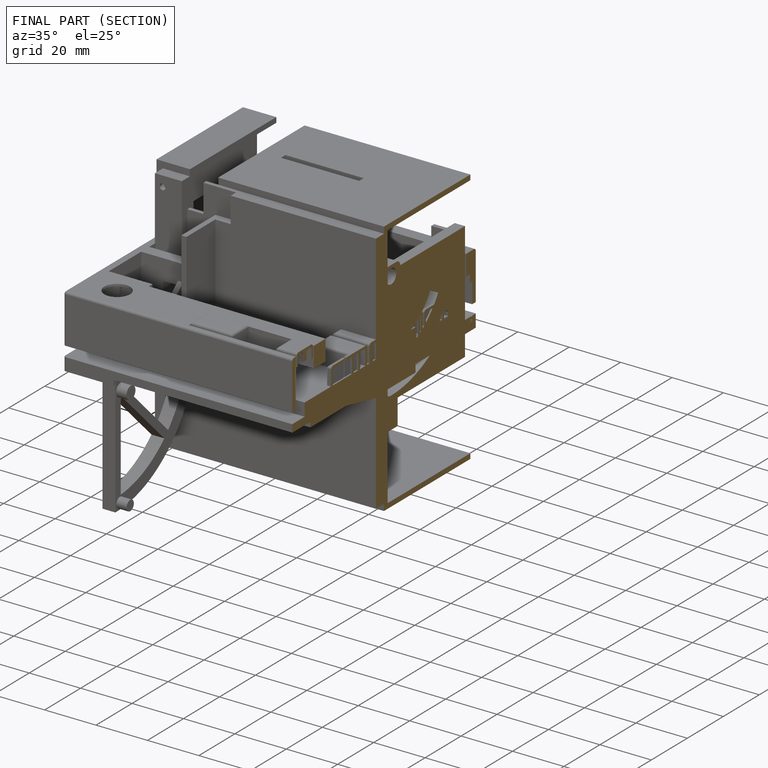
[diagram: finished part — half-section view (interior)]
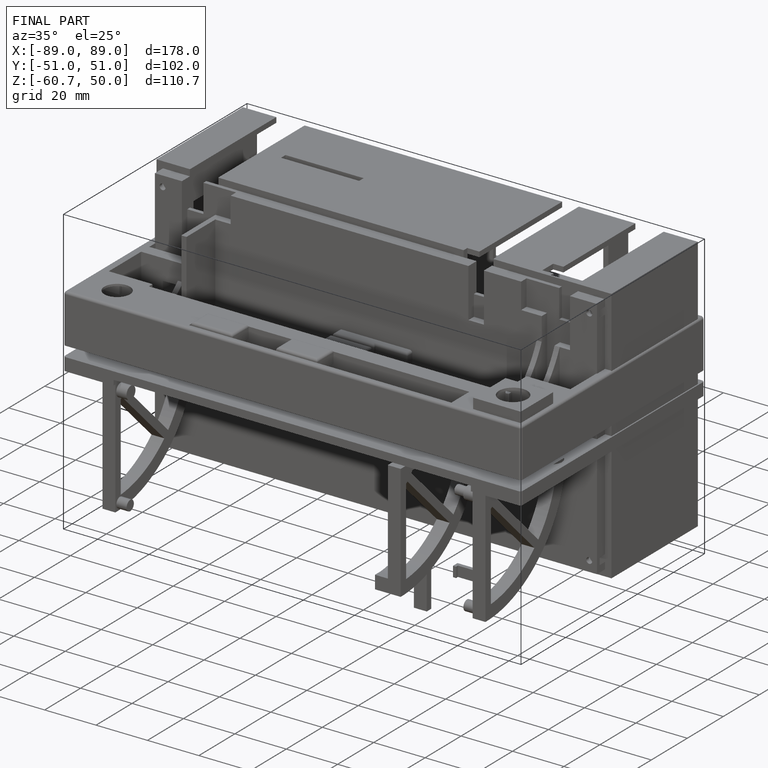
[diagram: finished part — iso view with bounding-box wireframe]
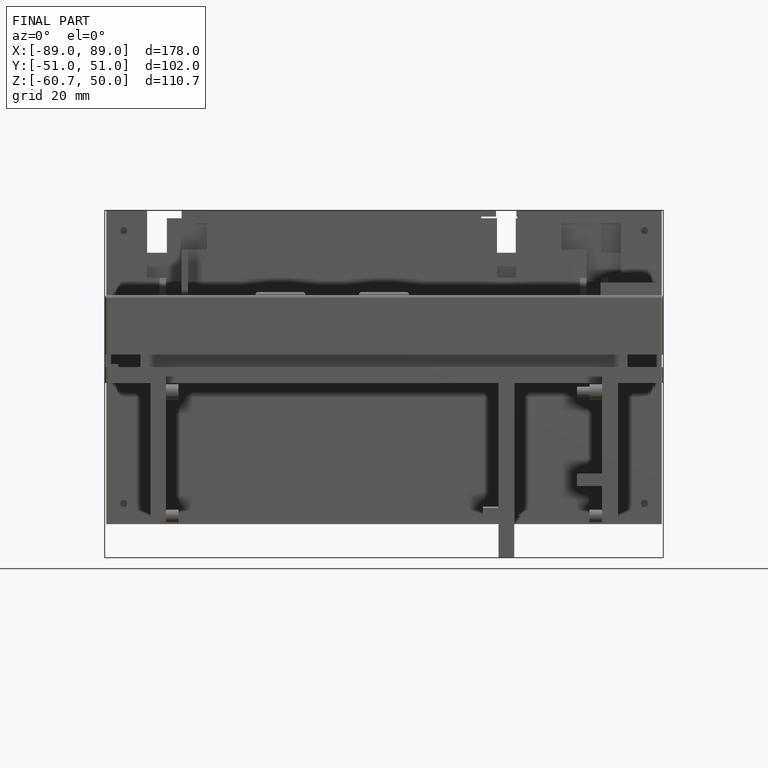
[diagram: finished part — front view with bounding-box wireframe]
